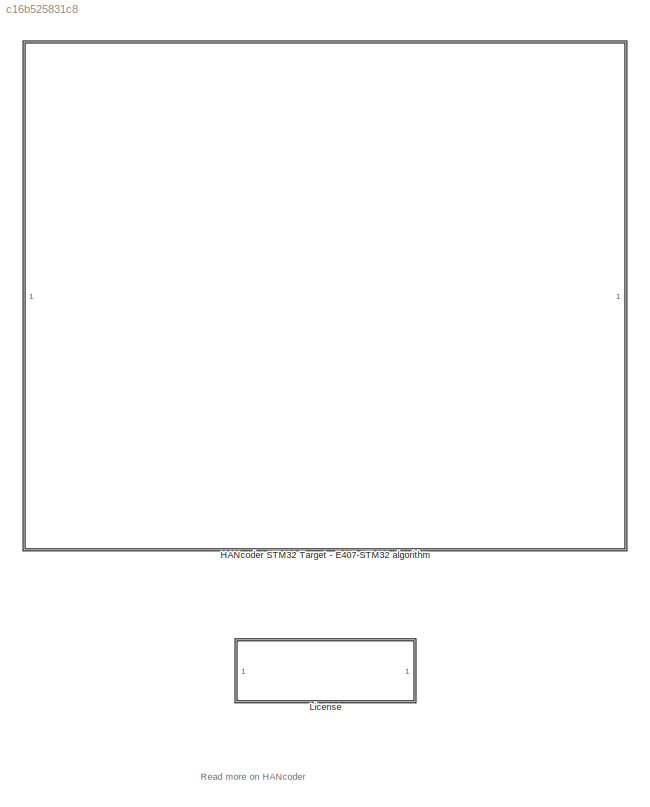
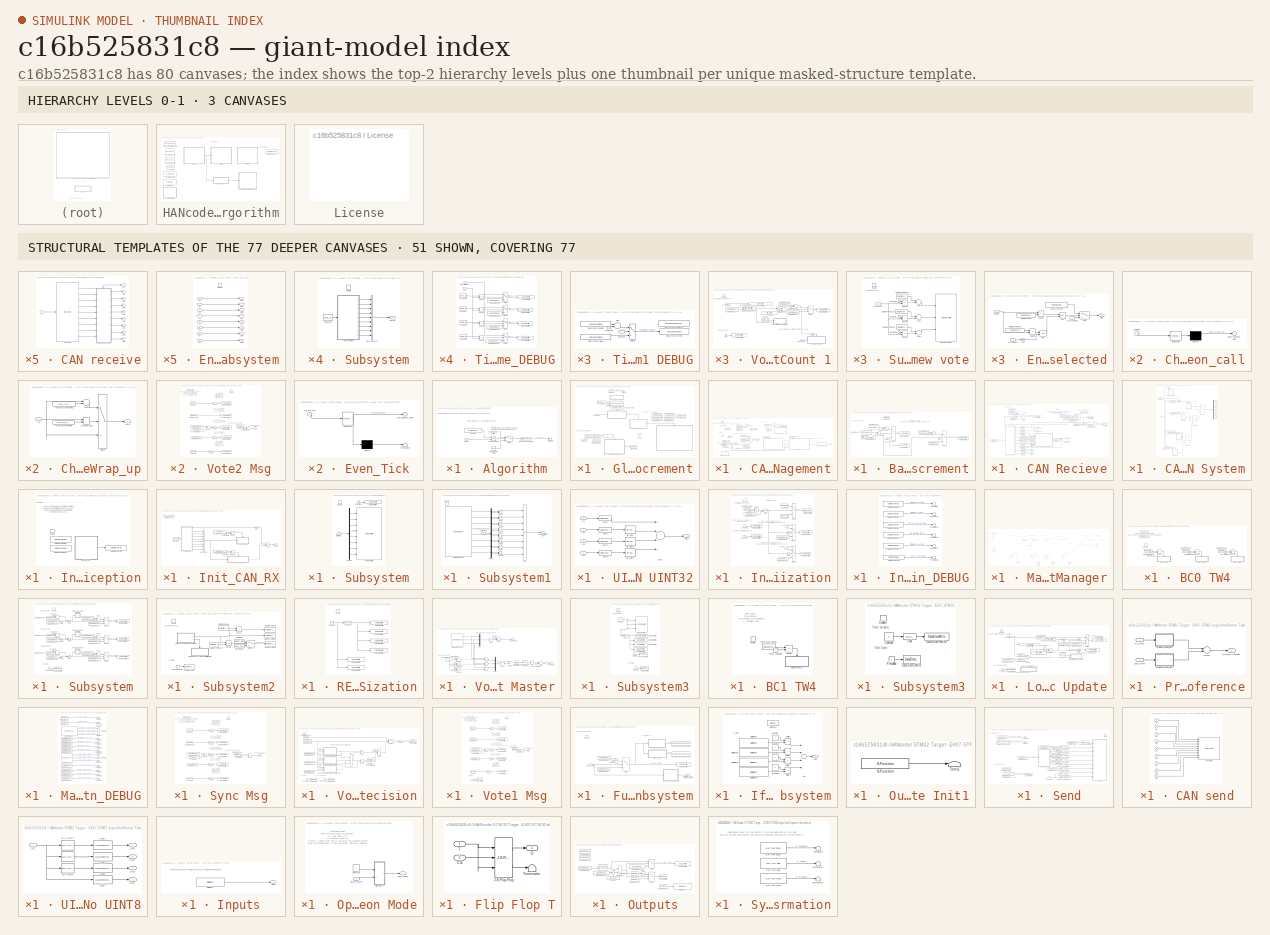
[diagram: thumbnail index - top-2 hierarchy levels (3 canvases) + 51 structural-template representatives of the remaining 77 canvases]
MODEL slx_c16b525831c8
KIND model
CONFIG AbsTol = auto
CONFIG EnableMultiTasking = off
CONFIG FixedStep = 0.01
CONFIG MaxStep = auto
CONFIG MinStep = auto
CONFIG PreLoadFcn = librarySetup\neval([bdroot,'_startup']) %Calling [modelName]_startup.m
CONFIG RelTol = 1e-3
CONFIG SampleTimeConstraint = Unconstrained
CONFIG Solver = FixedStepDiscrete
CONFIG SolverName = FixedStepDiscrete
CONFIG StartTime = 0.0
CONFIG StopTime = 1
BLOCK [SubSystem] HANcoder STM32 Target - E407-STM32 algorithm
  CopyFcn = HANcoderChecks('Copy');
  MoveFcn = HANcoderChecks('MoveE407');
  NameChangeFcn = HANcoderChecks('NameChangeE407');
  Ports = []
  RequestExecContextInheritance = off
BLOCK [SubSystem] HANcoder STM32 Target - E407-STM32 algorithm/Algorithm
  Ports = [1]
  RequestExecContextInheritance = off
BLOCK [Reference] HANcoder STM32 Target - E407-STM32 algorithm/Algorithm/10Hz Counter Limiter  REF=simulink/Sources/Counter
Limited
  Ports = [0, 1]
  SourceBlock = simulink/Sources/Counter\nLimited
  SourceProductBaseCode = SL
  SourceProductName = Simulink
  SourceType = Counter Limited
BLOCK [Reference] HANcoder STM32 Target - E407-STM32 algorithm/Algorithm/5Hz Counter Limited  REF=simulink/Sources/Counter
Limited
  Ports = [0, 1]
  SourceBlock = simulink/Sources/Counter\nLimited
  SourceProductBaseCode = SL
  SourceProductName = Simulink
  SourceType = Counter Limited
BLOCK [Inport] HANcoder STM32 Target - E407-STM32 algorithm/Algorithm/Button
  IconDisplay = Port number
BLOCK [Constant] HANcoder STM32 Target - E407-STM32 algorithm/Algorithm/Constant
  OutDataTypeStr = boolean
  Value = HANtuneOverride
BLOCK [DataTypeConversion] HANcoder STM32 Target - E407-STM32 algorithm/Algorithm/Data Type Conversion
  OutDataTypeStr = boolean
  RndMeth = Floor
  SaturateOnIntegerOverflow = off
BLOCK [Logic] HANcoder STM32 Target - E407-STM32 algorithm/Algorithm/Logical Operator
  AllPortsSameDT = off
  Operator = OR
  OutDataTypeStr = boolean
  Ports = [2, 1]
BLOCK [Switch] HANcoder STM32 Target - E407-STM32 algorithm/Algorithm/Switch
  Criteria = u2 > Threshold
  InputSameDT = off
  SaturateOnIntegerOverflow = off
BLOCK [Terminator] HANcoder STM32 Target - E407-STM32 algorithm/Algorithm/Terminator
BLOCK [Reference] HANcoder STM32 Target - E407-STM32 algorithm/Base Sample Time config  REF=HANcoder_STM32_Target/STM32-E407/System Config/Base Sample Time config
  Description = HANcoder Target STM32-E407 blockset version 0.5
  Ports = []
  SourceBlock = HANcoder_STM32_Target/STM32-E407/System Config/Base Sample Time config
  SourceProductName = HANcoder STM32 Target
  SourceType = Base Sample Time config
  Tag = HANcoder_TARGET_STM32_E407
  UserDataPersistent = on
BLOCK [Reference] HANcoder STM32 Target - E407-STM32 algorithm/Build settings  REF=HANcoder_STM32_Target/STM32-E407/System Config/Build settings
  Ports = []
  SourceBlock = HANcoder_STM32_Target/STM32-E407/System Config/Build settings
  SourceProductName = HANcoder STM32 Target
  SourceType = Build Settings
  Tag = HANcoder_TARGET_STM32_E407
  UserDataPersistent = on
BLOCK [Reference] HANcoder STM32 Target - E407-STM32 algorithm/CAN config  REF=HANcoder_STM32_Target/STM32-E407/System Config/CAN config
  Ports = []
  SourceBlock = HANcoder_STM32_Target/STM32-E407/System Config/CAN config
  SourceProductName = HANcoder STM32 Target
  SourceType = CAN config
  Tag = HANcoder_TARGET_STM32_E407
  UserDataPersistent = on
BLOCK [Reference] HANcoder STM32 Target - E407-STM32 algorithm/Custom ID config  REF=HANcoder_STM32_Target/STM32-E407/System Config/Custom ID config
  Ports = []
  SourceBlock = HANcoder_STM32_Target/STM32-E407/System Config/Custom ID config
  SourceProductName = HANcoder STM32 Target
  SourceType = Custom ID config
  Tag = HANcoder_TARGET_STM32_E407
  UserDataPersistent = on
BLOCK [DataStoreMemory] HANcoder STM32 Target - E407-STM32 algorithm/Data Store Memory2
  DataStoreName = local_ticks_mem_IRQ
  OutDataTypeStr = uint32
  ReadBeforeWriteMsg = warning
  ShowAdditionalParam = off
  WriteAfterReadMsg = warning
  WriteAfterWriteMsg = warning
BLOCK [SubSystem] HANcoder STM32 Target - E407-STM32 algorithm/Global Ticks Increment
  Ports = [1]
  RequestExecContextInheritance = off
BLOCK [SubSystem] HANcoder STM32 Target - E407-STM32 algorithm/Global Ticks Increment/CAN Management
  Ports = [0, 1, 0, 1]
  RequestExecContextInheritance = off
BLOCK [Logic] HANcoder STM32 Target - E407-STM32 algorithm/Global Ticks Increment/CAN Management/AND
  AllPortsSameDT = off
  IconShape = distinctive
  OutDataTypeStr = boolean
  Ports = [2, 1]
BLOCK [Logic] HANcoder STM32 Target - E407-STM32 algorithm/Global Ticks Increment/CAN Management/AND1
  AllPortsSameDT = off
  IconShape = distinctive
  OutDataTypeStr = boolean
  Ports = [2, 1]
BLOCK [SubSystem] HANcoder STM32 Target - E407-STM32 algorithm/Global Ticks Increment/CAN Management/Basic Cycle Increment
  Ports = [0, 0, 0, 0, 0, 0, 0, 1]
  RequestExecContextInheritance = off
  TreatAsAtomicUnit = on
BLOCK [ActionPort] HANcoder STM32 Target - E407-STM32 algorithm/Global Ticks Increment/CAN Management/Basic Cycle Increment/Action Port
  ActionType = then
BLOCK [Sum] HANcoder STM32 Target - E407-STM32 algorithm/Global Ticks Increment/CAN Management/Basic Cycle Increment/Add
  InputSameDT = off
  OutDataTypeStr = Inherit: Inherit via internal rule
  Ports = [2, 1]
  SaturateOnIntegerOverflow = off
BLOCK [Sum] HANcoder STM32 Target - E407-STM32 algorithm/Global Ticks Increment/CAN Management/Basic Cycle Increment/Add1
  InputSameDT = off
  Inputs = +-
  OutDataTypeStr = Inherit: Inherit via internal rule
  Ports = [2, 1]
  SaturateOnIntegerOverflow = off
BLOCK [Sum] HANcoder STM32 Target - E407-STM32 algorithm/Global Ticks Increment/CAN Management/Basic Cycle Increment/Add2
  InputSameDT = off
  OutDataTypeStr = Inherit: Inherit via internal rule
  Ports = [2, 1]
  SaturateOnIntegerOverflow = off
BLOCK [Constant] HANcoder STM32 Target - E407-STM32 algorithm/Global Ticks Increment/CAN Management/Basic Cycle Increment/Constant
  Value = matrix_rows
BLOCK [DataStoreRead] HANcoder STM32 Target - E407-STM32 algorithm/Global Ticks Increment/CAN Management/Basic Cycle Increment/Data Store Read
  DataStoreName = Initialization_Counter
  Ports = [0, 1]
BLOCK [DataStoreRead] HANcoder STM32 Target - E407-STM32 algorithm/Global Ticks Increment/CAN Management/Basic Cycle Increment/Data Store Read1
  DataStoreName = Initialization_Counter
  Ports = [0, 1]
BLOCK [DataStoreRead] HANcoder STM32 Target - E407-STM32 algorithm/Global Ticks Increment/CAN Management/Basic Cycle Increment/Data Store Read4
  DataStoreName = basic_cycle_count
  Ports = [0, 1]
BLOCK [DataStoreRead] HANcoder STM32 Target - E407-STM32 algorithm/Global Ticks Increment/CAN Management/Basic Cycle Increment/Data Store Read5
  DataStoreName = basic_cycle_count
  Ports = [0, 1]
BLOCK [DataStoreWrite] HANcoder STM32 Target - E407-STM32 algorithm/Global Ticks Increment/CAN Management/Basic Cycle Increment/Data Store Write
  DataStoreName = local_ticks_mem_IRQ
  Ports = [1]
BLOCK [DataStoreWrite] HANcoder STM32 Target - E407-STM32 algorithm/Global Ticks Increment/CAN Management/Basic Cycle Increment/Data Store Write1
  DataStoreName = Initialization_Counter
  Ports = [1]
BLOCK [DataStoreWrite] HANcoder STM32 Target - E407-STM32 algorithm/Global Ticks Increment/CAN Management/Basic Cycle Increment/Data Store Write3
  DataStoreName = basic_cycle_count
  Ports = [1]
BLOCK [Constant] HANcoder STM32 Target - E407-STM32 algorithm/Global Ticks Increment/CAN Management/Basic Cycle Increment/Decrement
  OutDataTypeStr = uint8
BLOCK [Constant] HANcoder STM32 Target - E407-STM32 algorithm/Global Ticks Increment/CAN Management/Basic Cycle Increment/Increment
  OutDataTypeStr = uint8
BLOCK [Constant] HANcoder STM32 Target - E407-STM32 algorithm/Global Ticks Increment/CAN Management/Basic Cycle Increment/Increment1
  OutDataTypeStr = uint8
BLOCK [RelationalOperator] HANcoder STM32 Target - E407-STM32 algorithm/Global Ticks Increment/CAN Management/Basic Cycle Increment/LessThanOrEqual
  InputSameDT = off
  Operator = <
  OutDataTypeStr = boolean
  Ports = [2, 1]
  RndMeth = Simplest
BLOCK [Logic] HANcoder STM32 Target - E407-STM32 algorithm/Global Ticks Increment/CAN Management/Basic Cycle Increment/NOT
  AllPortsSameDT = off
  IconShape = distinctive
  Operator = NOT
  OutDataTypeStr = boolean
  Ports = [1, 1]
BLOCK [Constant] HANcoder STM32 Target - E407-STM32 algorithm/Global Ticks Increment/CAN Management/Basic Cycle Increment/Reset
  OutDataTypeStr = uint32
  Value = 0
BLOCK [Switch] HANcoder STM32 Target - E407-STM32 algorithm/Global Ticks Increment/CAN Management/Basic Cycle Increment/Switch
  Criteria = u2 > Threshold
  InputSameDT = off
  SaturateOnIntegerOverflow = off
BLOCK [Switch] HANcoder STM32 Target - E407-STM32 algorithm/Global Ticks Increment/CAN Management/Basic Cycle Increment/Switch1
  Criteria = u2 > Threshold
  InputSameDT = off
  SaturateOnIntegerOverflow = off
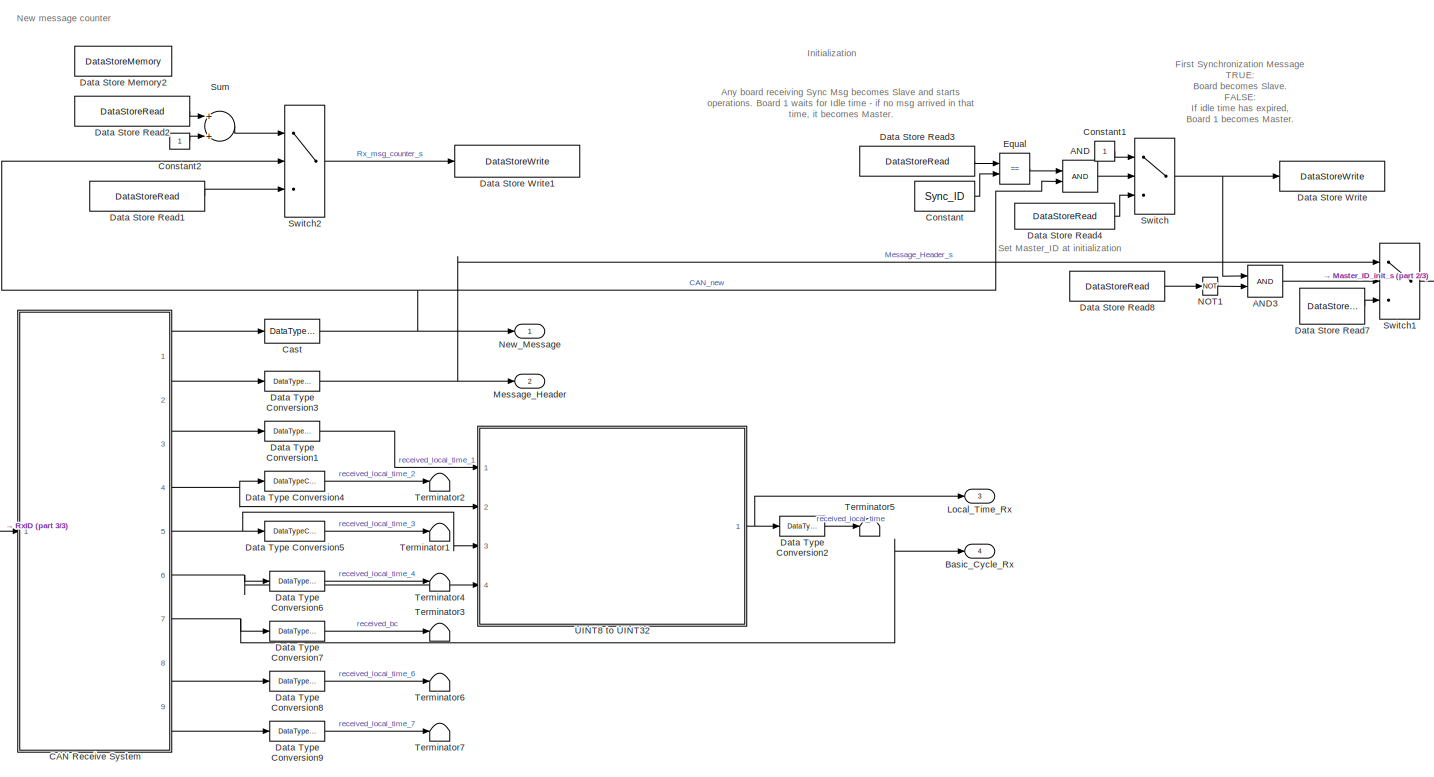
[diagram: HANcoder STM32 Target - E407-STM32 algorithm/Global Ticks Increment/CAN Management/CAN Recieve - part 1/3, most of the canvas]
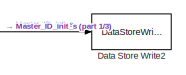
[diagram: HANcoder STM32 Target - E407-STM32 algorithm/Global Ticks Increment/CAN Management/CAN Recieve - part 2/3, middle right region]
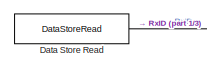
[diagram: HANcoder STM32 Target - E407-STM32 algorithm/Global Ticks Increment/CAN Management/CAN Recieve - part 3/3, bottom left region]
BLOCK [SubSystem] HANcoder STM32 Target - E407-STM32 algorithm/Global Ticks Increment/CAN Management/CAN Recieve
  Ports = [0, 4]
  RequestExecContextInheritance = off
BLOCK [Logic] HANcoder STM32 Target - E407-STM32 algorithm/Global Ticks Increment/CAN Management/CAN Recieve/AND
  AllPortsSameDT = off
  IconShape = distinctive
  OutDataTypeStr = boolean
  Ports = [2, 1]
BLOCK [Logic] HANcoder STM32 Target - E407-STM32 algorithm/Global Ticks Increment/CAN Management/CAN Recieve/AND3
  AllPortsSameDT = off
  IconShape = distinctive
  OutDataTypeStr = boolean
  Ports = [2, 1]
BLOCK [Outport] HANcoder STM32 Target - E407-STM32 algorithm/Global Ticks Increment/CAN Management/CAN Recieve/Basic_Cycle_Rx
  IconDisplay = Port number
  Port = 4
BLOCK [SubSystem] HANcoder STM32 Target - E407-STM32 algorithm/Global Ticks Increment/CAN Management/CAN Recieve/CAN Receive System
  Ports = [1, 9]
  RequestExecContextInheritance = off
BLOCK [Logic] HANcoder STM32 Target - E407-STM32 algorithm/Global Ticks Increment/CAN Management/CAN Recieve/CAN Receive System/AND
  AllPortsSameDT = off
  IconShape = distinctive
  OutDataTypeStr = boolean
  Ports = [2, 1]
BLOCK [Logic] HANcoder STM32 Target - E407-STM32 algorithm/Global Ticks Increment/CAN Management/CAN Recieve/CAN Receive System/AND1
  AllPortsSameDT = off
  IconShape = distinctive
  OutDataTypeStr = boolean
  Ports = [2, 1]
BLOCK [Logic] HANcoder STM32 Target - E407-STM32 algorithm/Global Ticks Increment/CAN Management/CAN Recieve/CAN Receive System/AND2
  AllPortsSameDT = off
  IconShape = distinctive
  OutDataTypeStr = boolean
  Ports = [2, 1]
BLOCK [Logic] HANcoder STM32 Target - E407-STM32 algorithm/Global Ticks Increment/CAN Management/CAN Recieve/CAN Receive System/AND3
  AllPortsSameDT = off
  IconShape = distinctive
  OutDataTypeStr = boolean
  Ports = [2, 1]
BLOCK [Constant] HANcoder STM32 Target - E407-STM32 algorithm/Global Ticks Increment/CAN Management/CAN Recieve/CAN Receive System/Constant
  OutDataTypeStr = uint32
  Value = Sync_ID
BLOCK [Constant] HANcoder STM32 Target - E407-STM32 algorithm/Global Ticks Increment/CAN Management/CAN Recieve/CAN Receive System/Constant1
  OutDataTypeStr = uint32
  Value = Vote1_ID
BLOCK [Constant] HANcoder STM32 Target - E407-STM32 algorithm/Global Ticks Increment/CAN Management/CAN Recieve/CAN Receive System/Constant3
  OutDataTypeStr = uint32
  Value = Vote2_ID
BLOCK [Constant] HANcoder STM32 Target - E407-STM32 algorithm/Global Ticks Increment/CAN Management/CAN Recieve/CAN Receive System/Constant4
  OutDataTypeStr = uint32
  Value = Vote3_ID
BLOCK [DataStoreRead] HANcoder STM32 Target - E407-STM32 algorithm/Global Ticks Increment/CAN Management/CAN Recieve/CAN Receive System/Data Store Read
  DataStoreName = Initialization_CAN_flag
  Ports = [0, 1]
BLOCK [Demux] HANcoder STM32 Target - E407-STM32 algorithm/Global Ticks Increment/CAN Management/CAN Recieve/CAN Receive System/Demux
  DisplayOption = bar
  Outputs = 9
  Ports = [1, 9]
BLOCK [RelationalOperator] HANcoder STM32 Target - E407-STM32 algorithm/Global Ticks Increment/CAN Management/CAN Recieve/CAN Receive System/Equal
  InputSameDT = off
  Operator = ==
  OutDataTypeStr = boolean
  Ports = [2, 1]
  RndMeth = Simplest
BLOCK [RelationalOperator] HANcoder STM32 Target - E407-STM32 algorithm/Global Ticks Increment/CAN Management/CAN Recieve/CAN Receive System/Equal1
  InputSameDT = off
  Operator = ==
  OutDataTypeStr = boolean
  Ports = [2, 1]
  RndMeth = Simplest
BLOCK [RelationalOperator] HANcoder STM32 Target - E407-STM32 algorithm/Global Ticks Increment/CAN Management/CAN Recieve/CAN Receive System/Equal2
  InputSameDT = off
  Operator = ==
  OutDataTypeStr = boolean
  Ports = [2, 1]
  RndMeth = Simplest
BLOCK [RelationalOperator] HANcoder STM32 Target - E407-STM32 algorithm/Global Ticks Increment/CAN Management/CAN Recieve/CAN Receive System/Equal3
  InputSameDT = off
  Operator = ==
  OutDataTypeStr = boolean
  Ports = [2, 1]
  RndMeth = Simplest
BLOCK [Inport] HANcoder STM32 Target - E407-STM32 algorithm/Global Ticks Increment/CAN Management/CAN Recieve/CAN Receive System/In1
  IconDisplay = Port number
BLOCK [SubSystem] HANcoder STM32 Target - E407-STM32 algorithm/Global Ticks Increment/CAN Management/CAN Recieve/CAN Receive System/Initialize message reception
  Ports = [0, 0, 1]
  RequestExecContextInheritance = off
BLOCK [DataStoreMemory] HANcoder STM32 Target - E407-STM32 algorithm/Global Ticks Increment/CAN Management/CAN Recieve/CAN Receive System/Initialize message reception/Data Store Memory
  DataStoreName = Init_CAN_RX_State
  InitialValue = 1
  ReadBeforeWriteMsg = warning
  ShowAdditionalParam = off
  WriteAfterReadMsg = warning
  WriteAfterWriteMsg = warning
BLOCK [DataStoreMemory] HANcoder STM32 Target - E407-STM32 algorithm/Global Ticks Increment/CAN Management/CAN Recieve/CAN Receive System/Initialize message reception/Data Store Memory1
  DataStoreName = Local_Msg_Buffer
  OutDataTypeStr = Bus: msg_buffer_type
  ReadBeforeWriteMsg = warning
  ShowAdditionalParam = off
  WriteAfterReadMsg = warning
  WriteAfterWriteMsg = warning
BLOCK [DataStoreWrite] HANcoder STM32 Target - E407-STM32 algorithm/Global Ticks Increment/CAN Management/CAN Recieve/CAN Receive System/Initialize message reception/Data Store Write
  DataStoreName = Initialization_CAN_flag
  Ports = [1]
BLOCK [EnablePort] HANcoder STM32 Target - E407-STM32 algorithm/Global Ticks Increment/CAN Management/CAN Recieve/CAN Receive System/Initialize message reception/Enable
  Ports = []
BLOCK [SubSystem] HANcoder STM32 Target - E407-STM32 algorithm/Global Ticks Increment/CAN Management/CAN Recieve/CAN Receive System/Initialize message reception/Init_CAN_RX
  Ports = [0, 1]
  RequestExecContextInheritance = off
BLOCK [BusCreator] HANcoder STM32 Target - E407-STM32 algorithm/Global Ticks Increment/CAN Management/CAN Recieve/CAN Receive System/Initialize message reception/Init_CAN_RX/Bus Creator
  DisplayOption = bar
  InheritFromInputs = on
  Inputs = 8
  OutDataTypeStr = Bus: msg_buffer_type
  Ports = [8, 1]
BLOCK [SubSystem] HANcoder STM32 Target - E407-STM32 algorithm/Global Ticks Increment/CAN Management/CAN Recieve/CAN Receive System/Initialize message reception/Init_CAN_RX/CAN receive
  AncestorBlock = HANcoder_STM32_Target/STM32-E407/CAN/CAN/CAN receive
  MoveFcn = drawLogos
  Ports = [1, 9]
  RequestExecContextInheritance = off
  Tag = HANcoder_TARGET_STM32_E407
  UserDataPersistent = on
BLOCK [SubSystem] HANcoder STM32 Target - E407-STM32 algorithm/Global Ticks Increment/CAN Management/CAN Recieve/CAN Receive System/Initialize message reception/Init_CAN_RX/CAN receive/Enabled Subsystem
  Ports = [8, 8, 1]
  RequestExecContextInheritance = off
  TreatAsAtomicUnit = on
BLOCK [EnablePort] HANcoder STM32 Target - E407-STM32 algorithm/Global Ticks Increment/CAN Management/CAN Recieve/CAN Receive System/Initialize message reception/Init_CAN_RX/CAN receive/Enabled Subsystem/Enable
  Ports = []
BLOCK [Inport] HANcoder STM32 Target - E407-STM32 algorithm/Global Ticks Increment/CAN Management/CAN Recieve/CAN Receive System/Initialize message reception/Init_CAN_RX/CAN receive/Enabled Subsystem/In1
  IconDisplay = Port number
BLOCK [Inport] HANcoder STM32 Target - E407-STM32 algorithm/Global Ticks Increment/CAN Management/CAN Recieve/CAN Receive System/Initialize message reception/Init_CAN_RX/CAN receive/Enabled Subsystem/In2
  IconDisplay = Port number
  Port = 2
BLOCK [Inport] HANcoder STM32 Target - E407-STM32 algorithm/Global Ticks Increment/CAN Management/CAN Recieve/CAN Receive System/Initialize message reception/Init_CAN_RX/CAN receive/Enabled Subsystem/In3
  IconDisplay = Port number
  Port = 3
BLOCK [Inport] HANcoder STM32 Target - E407-STM32 algorithm/Global Ticks Increment/CAN Management/CAN Recieve/CAN Receive System/Initialize message reception/Init_CAN_RX/CAN receive/Enabled Subsystem/In4
  IconDisplay = Port number
  Port = 4
BLOCK [Inport] HANcoder STM32 Target - E407-STM32 algorithm/Global Ticks Increment/CAN Management/CAN Recieve/CAN Receive System/Initialize message reception/Init_CAN_RX/CAN receive/Enabled Subsystem/In5
  IconDisplay = Port number
  Port = 5
BLOCK [Inport] HANcoder STM32 Target - E407-STM32 algorithm/Global Ticks Increment/CAN Management/CAN Recieve/CAN Receive System/Initialize message reception/Init_CAN_RX/CAN receive/Enabled Subsystem/In6
  IconDisplay = Port number
  Port = 6
BLOCK [Inport] HANcoder STM32 Target - E407-STM32 algorithm/Global Ticks Increment/CAN Management/CAN Recieve/CAN Receive System/Initialize message reception/Init_CAN_RX/CAN receive/Enabled Subsystem/In7
  IconDisplay = Port number
  Port = 7
BLOCK [Inport] HANcoder STM32 Target - E407-STM32 algorithm/Global Ticks Increment/CAN Management/CAN Recieve/CAN Receive System/Initialize message reception/Init_CAN_RX/CAN receive/Enabled Subsystem/In8
  IconDisplay = Port number
  Port = 8
BLOCK [Outport] HANcoder STM32 Target - E407-STM32 algorithm/Global Ticks Increment/CAN Management/CAN Recieve/CAN Receive System/Initialize message reception/Init_CAN_RX/CAN receive/Enabled Subsystem/Out1
  IconDisplay = Port number
BLOCK [Outport] HANcoder STM32 Target - E407-STM32 algorithm/Global Ticks Increment/CAN Management/CAN Recieve/CAN Receive System/Initialize message reception/Init_CAN_RX/CAN receive/Enabled Subsystem/Out2
  IconDisplay = Port number
  Port = 2
BLOCK [Outport] HANcoder STM32 Target - E407-STM32 algorithm/Global Ticks Increment/CAN Management/CAN Recieve/CAN Receive System/Initialize message reception/Init_CAN_RX/CAN receive/Enabled Subsystem/Out3
  IconDisplay = Port number
  Port = 3
BLOCK [Outport] HANcoder STM32 Target - E407-STM32 algorithm/Global Ticks Increment/CAN Management/CAN Recieve/CAN Receive System/Initialize message reception/Init_CAN_RX/CAN receive/Enabled Subsystem/Out4
  IconDisplay = Port number
  Port = 4
BLOCK [Outport] HANcoder STM32 Target - E407-STM32 algorithm/Global Ticks Increment/CAN Management/CAN Recieve/CAN Receive System/Initialize message reception/Init_CAN_RX/CAN receive/Enabled Subsystem/Out5
  IconDisplay = Port number
  Port = 5
BLOCK [Outport] HANcoder STM32 Target - E407-STM32 algorithm/Global Ticks Increment/CAN Management/CAN Recieve/CAN Receive System/Initialize message reception/Init_CAN_RX/CAN receive/Enabled Subsystem/Out6
  IconDisplay = Port number
  Port = 6
BLOCK [Outport] HANcoder STM32 Target - E407-STM32 algorithm/Global Ticks Increment/CAN Management/CAN Recieve/CAN Receive System/Initialize message reception/Init_CAN_RX/CAN receive/Enabled Subsystem/Out7
  IconDisplay = Port number
  Port = 7
BLOCK [Outport] HANcoder STM32 Target - E407-STM32 algorithm/Global Ticks Increment/CAN Management/CAN Recieve/CAN Receive System/Initialize message reception/Init_CAN_RX/CAN receive/Enabled Subsystem/Out8
  IconDisplay = Port number
  Port = 8
BLOCK [Inport] HANcoder STM32 Target - E407-STM32 algorithm/Global Ticks Increment/CAN Management/CAN Recieve/CAN Receive System/Initialize message reception/Init_CAN_RX/CAN receive/In1
  IconDisplay = Port number
BLOCK [Outport] HANcoder STM32 Target - E407-STM32 algorithm/Global Ticks Increment/CAN Management/CAN Recieve/CAN Receive System/Initialize message reception/Init_CAN_RX/CAN receive/Out1
  IconDisplay = Port number
BLOCK [Outport] HANcoder STM32 Target - E407-STM32 algorithm/Global Ticks Increment/CAN Management/CAN Recieve/CAN Receive System/Initialize message reception/Init_CAN_RX/CAN receive/Out2
  IconDisplay = Port number
  Port = 2
BLOCK [Outport] HANcoder STM32 Target - E407-STM32 algorithm/Global Ticks Increment/CAN Management/CAN Recieve/CAN Receive System/Initialize message reception/Init_CAN_RX/CAN receive/Out3
  IconDisplay = Port number
  Port = 3
BLOCK [Outport] HANcoder STM32 Target - E407-STM32 algorithm/Global Ticks Increment/CAN Management/CAN Recieve/CAN Receive System/Initialize message reception/Init_CAN_RX/CAN receive/Out4
  IconDisplay = Port number
  Port = 4
BLOCK [Outport] HANcoder STM32 Target - E407-STM32 algorithm/Global Ticks Increment/CAN Management/CAN Recieve/CAN Receive System/Initialize message reception/Init_CAN_RX/CAN receive/Out5
  IconDisplay = Port number
  Port = 5
BLOCK [Outport] HANcoder STM32 Target - E407-STM32 algorithm/Global Ticks Increment/CAN Management/CAN Recieve/CAN Receive System/Initialize message reception/Init_CAN_RX/CAN receive/Out6
  IconDisplay = Port number
  Port = 6
BLOCK [Outport] HANcoder STM32 Target - E407-STM32 algorithm/Global Ticks Increment/CAN Management/CAN Recieve/CAN Receive System/Initialize message reception/Init_CAN_RX/CAN receive/Out7
  IconDisplay = Port number
  Port = 7
BLOCK [Outport] HANcoder STM32 Target - E407-STM32 algorithm/Global Ticks Increment/CAN Management/CAN Recieve/CAN Receive System/Initialize message reception/Init_CAN_RX/CAN receive/Out8
  IconDisplay = Port number
  Port = 8
BLOCK [Outport] HANcoder STM32 Target - E407-STM32 algorithm/Global Ticks Increment/CAN Management/CAN Recieve/CAN Receive System/Initialize message reception/Init_CAN_RX/CAN receive/Out9
  IconDisplay = Port number
  Port = 9
BLOCK [M-S-Function] HANcoder STM32 Target - E407-STM32 algorithm/Global Ticks Increment/CAN Management/CAN Recieve/CAN Receive System/Initialize message reception/Init_CAN_RX/CAN receive/S-Function
  FunctionName = sfcn_can_receive
  Parameters = tsamp, canBus, outputNumber, dataType, byteOrder
  Ports = [1, 9]
BLOCK [Constant] HANcoder STM32 Target - E407-STM32 algorithm/Global Ticks Increment/CAN Management/CAN Recieve/CAN Receive System/Initialize message reception/Init_CAN_RX/Constant
  OutDataTypeStr = uint32
  Value = Sync_ID
BLOCK [Constant] HANcoder STM32 Target - E407-STM32 algorithm/Global Ticks Increment/CAN Management/CAN Recieve/CAN Receive System/Initialize message reception/Init_CAN_RX/Constant1
BLOCK [Constant] HANcoder STM32 Target - E407-STM32 algorithm/Global Ticks Increment/CAN Management/CAN Recieve/CAN Receive System/Initialize message reception/Init_CAN_RX/Constant2
  Value = 2
BLOCK [DataStoreRead] HANcoder STM32 Target - E407-STM32 algorithm/Global Ticks Increment/CAN Management/CAN Recieve/CAN Receive System/Initialize message reception/Init_CAN_RX/Data Store Read1
  DataStoreName = Init_CAN_RX_State
  Ports = [0, 1]
BLOCK [DataStoreRead] HANcoder STM32 Target - E407-STM32 algorithm/Global Ticks Increment/CAN Management/CAN Recieve/CAN Receive System/Initialize message reception/Init_CAN_RX/Data Store Read2
  DataStoreName = Init_CAN_RX_State
  Ports = [0, 1]
BLOCK [RelationalOperator] HANcoder STM32 Target - E407-STM32 algorithm/Global Ticks Increment/CAN Management/CAN Recieve/CAN Receive System/Initialize message reception/Init_CAN_RX/Equal
  InputSameDT = off
  Operator = ==
  OutDataTypeStr = boolean
  Ports = [2, 1]
  RndMeth = Simplest
BLOCK [RelationalOperator] HANcoder STM32 Target - E407-STM32 algorithm/Global Ticks Increment/CAN Management/CAN Recieve/CAN Receive System/Initialize message reception/Init_CAN_RX/Equal1
  InputSameDT = off
  Operator = ==
  OutDataTypeStr = boolean
  Ports = [2, 1]
  RndMeth = Simplest
BLOCK [Outport] HANcoder STM32 Target - E407-STM32 algorithm/Global Ticks Increment/CAN Management/CAN Recieve/CAN Receive System/Initialize message reception/Init_CAN_RX/Init CAN
  IconDisplay = Port number
BLOCK [Logic] HANcoder STM32 Target - E407-STM32 algorithm/Global Ticks Increment/CAN Management/CAN Recieve/CAN Receive System/Initialize message reception/Init_CAN_RX/NOT
  AllPortsSameDT = off
  IconShape = distinctive
  Operator = NOT
  OutDataTypeStr = boolean
  Ports = [1, 1]
BLOCK [Logic] HANcoder STM32 Target - E407-STM32 algorithm/Global Ticks Increment/CAN Management/CAN Recieve/CAN Receive System/Initialize message reception/Init_CAN_RX/OR
  AllPortsSameDT = off
  IconShape = distinctive
  Operator = OR
  OutDataTypeStr = boolean
  Ports = [2, 1]
BLOCK [SubSystem] HANcoder STM32 Target - E407-STM32 algorithm/Global Ticks Increment/CAN Management/CAN Recieve/CAN Receive System/Initialize message reception/Init_CAN_RX/Subsystem
  Ports = [1, 0, 1]
  RequestExecContextInheritance = off
BLOCK [Constant] HANcoder STM32 Target - E407-STM32 algorithm/Global Ticks Increment/CAN Management/CAN Recieve/CAN Receive System/Initialize message reception/Init_CAN_RX/Subsystem/Constant
  Value = 2
BLOCK [DataStoreWrite] HANcoder STM32 Target - E407-STM32 algorithm/Global Ticks Increment/CAN Management/CAN Recieve/CAN Receive System/Initialize message reception/Init_CAN_RX/Subsystem/Data Store Write
  DataStoreElements = Local_Msg_Buffer.Buffer_1#Local_Msg_Buffer.Buffer_2#Local_Msg_Buffer.Buffer_3#Local_Msg_Buffer.Buffer_4#Local_Msg_Buffer.Buffer_5#Local_Msg_Buffer.Buffer_6#Local_Msg_Buffer.Buffer_7#Local_Msg_Buffer.Buffer_8
  DataStoreName = Local_Msg_Buffer
  Ports = [8]
BLOCK [DataStoreWrite] HANcoder STM32 Target - E407-STM32 algorithm/Global Ticks Increment/CAN Management/CAN Recieve/CAN Receive System/Initialize message reception/Init_CAN_RX/Subsystem/Data Store Write1
  DataStoreName = Init_CAN_RX_State
  Ports = [1]
BLOCK [Demux] HANcoder STM32 Target - E407-STM32 algorithm/Global Ticks Increment/CAN Management/CAN Recieve/CAN Receive System/Initialize message reception/Init_CAN_RX/Subsystem/Demux
  DisplayOption = bar
  Outputs = 8
  Ports = [1, 8]
BLOCK [EnablePort] HANcoder STM32 Target - E407-STM32 algorithm/Global Ticks Increment/CAN Management/CAN Recieve/CAN Receive System/Initialize message reception/Init_CAN_RX/Subsystem/Enable
  Ports = []
BLOCK [Inport] HANcoder STM32 Target - E407-STM32 algorithm/Global Ticks Increment/CAN Management/CAN Recieve/CAN Receive System/Initialize message reception/Init_CAN_RX/Subsystem/Initial Msg
  IconDisplay = Port number
BLOCK [SubSystem] HANcoder STM32 Target - E407-STM32 algorithm/Global Ticks Increment/CAN Management/CAN Recieve/CAN Receive System/Initialize message reception/Init_CAN_RX/Subsystem1
  Ports = [1, 1, 1]
  RequestExecContextInheritance = off
BLOCK [Inport] HANcoder STM32 Target - E407-STM32 algorithm/Global Ticks Increment/CAN Management/CAN Recieve/CAN Receive System/Initialize message reception/Init_CAN_RX/Subsystem1/Current Msg
  IconDisplay = Port number
BLOCK [DataStoreRead] HANcoder STM32 Target - E407-STM32 algorithm/Global Ticks Increment/CAN Management/CAN Recieve/CAN Receive System/Initialize message reception/Init_CAN_RX/Subsystem1/Data Store Read2
  DataStoreElements = Local_Msg_Buffer.Buffer_1#Local_Msg_Buffer.Buffer_2#Local_Msg_Buffer.Buffer_3#Local_Msg_Buffer.Buffer_4#Local_Msg_Buffer.Buffer_5#Local_Msg_Buffer.Buffer_6#Local_Msg_Buffer.Buffer_7#Local_Msg_Buffer.Buffer_8
  DataStoreName = Local_Msg_Buffer
  Ports = [0, 8]
BLOCK [Demux] HANcoder STM32 Target - E407-STM32 algorithm/Global Ticks Increment/CAN Management/CAN Recieve/CAN Receive System/Initialize message reception/Init_CAN_RX/Subsystem1/Demux
  DisplayOption = bar
  Outputs = 8
  Ports = [1, 8]
BLOCK [EnablePort] HANcoder STM32 Target - E407-STM32 algorithm/Global Ticks Increment/CAN Management/CAN Recieve/CAN Receive System/Initialize message reception/Init_CAN_RX/Subsystem1/Enable
  Ports = []
BLOCK [RelationalOperator] HANcoder STM32 Target - E407-STM32 algorithm/Global Ticks Increment/CAN Management/CAN Recieve/CAN Receive System/Initialize message reception/Init_CAN_RX/Subsystem1/Equal1
  InputSameDT = off
  Operator = ~=
  OutDataTypeStr = boolean
  Ports = [2, 1]
  RndMeth = Simplest
BLOCK [RelationalOperator] HANcoder STM32 Target - E407-STM32 algorithm/Global Ticks Increment/CAN Management/CAN Recieve/CAN Receive System/Initialize message reception/Init_CAN_RX/Subsystem1/Equal2
  InputSameDT = off
  Operator = ~=
  OutDataTypeStr = boolean
  Ports = [2, 1]
  RndMeth = Simplest
BLOCK [RelationalOperator] HANcoder STM32 Target - E407-STM32 algorithm/Global Ticks Increment/CAN Management/CAN Recieve/CAN Receive System/Initialize message reception/Init_CAN_RX/Subsystem1/Equal3
  InputSameDT = off
  Operator = ~=
  OutDataTypeStr = boolean
  Ports = [2, 1]
  RndMeth = Simplest
BLOCK [RelationalOperator] HANcoder STM32 Target - E407-STM32 algorithm/Global Ticks Increment/CAN Management/CAN Recieve/CAN Receive System/Initialize message reception/Init_CAN_RX/Subsystem1/Equal4
  InputSameDT = off
  Operator = ~=
  OutDataTypeStr = boolean
  Ports = [2, 1]
  RndMeth = Simplest
BLOCK [RelationalOperator] HANcoder STM32 Target - E407-STM32 algorithm/Global Ticks Increment/CAN Management/CAN Recieve/CAN Receive System/Initialize message reception/Init_CAN_RX/Subsystem1/Equal5
  InputSameDT = off
  Operator = ~=
  OutDataTypeStr = boolean
  Ports = [2, 1]
  RndMeth = Simplest
BLOCK [RelationalOperator] HANcoder STM32 Target - E407-STM32 algorithm/Global Ticks Increment/CAN Management/CAN Recieve/CAN Receive System/Initialize message reception/Init_CAN_RX/Subsystem1/Equal6
  InputSameDT = off
  Operator = ~=
  OutDataTypeStr = boolean
  Ports = [2, 1]
  RndMeth = Simplest
BLOCK [RelationalOperator] HANcoder STM32 Target - E407-STM32 algorithm/Global Ticks Increment/CAN Management/CAN Recieve/CAN Receive System/Initialize message reception/Init_CAN_RX/Subsystem1/Equal7
  InputSameDT = off
  Operator = ~=
  OutDataTypeStr = boolean
  Ports = [2, 1]
  RndMeth = Simplest
BLOCK [RelationalOperator] HANcoder STM32 Target - E407-STM32 algorithm/Global Ticks Increment/CAN Management/CAN Recieve/CAN Receive System/Initialize message reception/Init_CAN_RX/Subsystem1/Equal8
  InputSameDT = off
  Operator = ~=
  OutDataTypeStr = boolean
  Ports = [2, 1]
  RndMeth = Simplest
BLOCK [Outport] HANcoder STM32 Target - E407-STM32 algorithm/Global Ticks Increment/CAN Management/CAN Recieve/CAN Receive System/Initialize message reception/Init_CAN_RX/Subsystem1/New and Different Msg
  IconDisplay = Port number
BLOCK [Logic] HANcoder STM32 Target - E407-STM32 algorithm/Global Ticks Increment/CAN Management/CAN Recieve/CAN Receive System/Initialize message reception/Init_CAN_RX/Subsystem1/OR
  AllPortsSameDT = off
  IconShape = distinctive
  Inputs = 8
  Operator = OR
  OutDataTypeStr = boolean
  Ports = [8, 1]
BLOCK [Logic] HANcoder STM32 Target - E407-STM32 algorithm/Global Ticks Increment/CAN Management/CAN Recieve/CAN Receive System/NOT
  AllPortsSameDT = off
  IconShape = distinctive
  Operator = NOT
  OutDataTypeStr = boolean
  Ports = [1, 1]
BLOCK [Outport] HANcoder STM32 Target - E407-STM32 algorithm/Global Ticks Increment/CAN Management/CAN Recieve/CAN Receive System/Out1
  IconDisplay = Port number
BLOCK [Outport] HANcoder STM32 Target - E407-STM32 algorithm/Global Ticks Increment/CAN Management/CAN Recieve/CAN Receive System/Out2
  IconDisplay = Port number
  Port = 2
BLOCK [Outport] HANcoder STM32 Target - E407-STM32 algorithm/Global Ticks Increment/CAN Management/CAN Recieve/CAN Receive System/Out3
  IconDisplay = Port number
  Port = 3
BLOCK [Outport] HANcoder STM32 Target - E407-STM32 algorithm/Global Ticks Increment/CAN Management/CAN Recieve/CAN Receive System/Out4
  IconDisplay = Port number
  Port = 4
BLOCK [Outport] HANcoder STM32 Target - E407-STM32 algorithm/Global Ticks Increment/CAN Management/CAN Recieve/CAN Receive System/Out5
  IconDisplay = Port number
  Port = 5
BLOCK [Outport] HANcoder STM32 Target - E407-STM32 algorithm/Global Ticks Increment/CAN Management/CAN Recieve/CAN Receive System/Out6
  IconDisplay = Port number
  Port = 6
BLOCK [Outport] HANcoder STM32 Target - E407-STM32 algorithm/Global Ticks Increment/CAN Management/CAN Recieve/CAN Receive System/Out7
  IconDisplay = Port number
  Port = 7
BLOCK [Outport] HANcoder STM32 Target - E407-STM32 algorithm/Global Ticks Increment/CAN Management/CAN Recieve/CAN Receive System/Out8
  IconDisplay = Port number
  Port = 8
BLOCK [Outport] HANcoder STM32 Target - E407-STM32 algorithm/Global Ticks Increment/CAN Management/CAN Recieve/CAN Receive System/Out9
  IconDisplay = Port number
  Port = 9
BLOCK [SubSystem] HANcoder STM32 Target - E407-STM32 algorithm/Global Ticks Increment/CAN Management/CAN Recieve/CAN Receive System/Subsystem
  Ports = [0, 1, 1]
  RequestExecContextInheritance = off
BLOCK [BusCreator] HANcoder STM32 Target - E407-STM32 algorithm/Global Ticks Increment/CAN Management/CAN Recieve/CAN Receive System/Subsystem/Bus Creator
  DisplayOption = bar
  InheritFromInputs = on
  Inputs = 9
  Ports = [9, 1]
BLOCK [SubSystem] HANcoder STM32 Target - E407-STM32 algorithm/Global Ticks Increment/CAN Management/CAN Recieve/CAN Receive System/Subsystem/CAN receive
  AncestorBlock = HANcoder_STM32_Target/STM32-E407/CAN/CAN/CAN receive
  MoveFcn = drawLogos
  Ports = [1, 9]
  RequestExecContextInheritance = off
  Tag = HANcoder_TARGET_STM32_E407
  UserDataPersistent = on
BLOCK [SubSystem] HANcoder STM32 Target - E407-STM32 algorithm/Global Ticks Increment/CAN Management/CAN Recieve/CAN Receive System/Subsystem/CAN receive/Enabled Subsystem
  Ports = [8, 8, 1]
  RequestExecContextInheritance = off
  TreatAsAtomicUnit = on
BLOCK [EnablePort] HANcoder STM32 Target - E407-STM32 algorithm/Global Ticks Increment/CAN Management/CAN Recieve/CAN Receive System/Subsystem/CAN receive/Enabled Subsystem/Enable
  Ports = []
BLOCK [Inport] HANcoder STM32 Target - E407-STM32 algorithm/Global Ticks Increment/CAN Management/CAN Recieve/CAN Receive System/Subsystem/CAN receive/Enabled Subsystem/In1
  IconDisplay = Port number
BLOCK [Inport] HANcoder STM32 Target - E407-STM32 algorithm/Global Ticks Increment/CAN Management/CAN Recieve/CAN Receive System/Subsystem/CAN receive/Enabled Subsystem/In2
  IconDisplay = Port number
  Port = 2
BLOCK [Inport] HANcoder STM32 Target - E407-STM32 algorithm/Global Ticks Increment/CAN Management/CAN Recieve/CAN Receive System/Subsystem/CAN receive/Enabled Subsystem/In3
  IconDisplay = Port number
  Port = 3
BLOCK [Inport] HANcoder STM32 Target - E407-STM32 algorithm/Global Ticks Increment/CAN Management/CAN Recieve/CAN Receive System/Subsystem/CAN receive/Enabled Subsystem/In4
  IconDisplay = Port number
  Port = 4
BLOCK [Inport] HANcoder STM32 Target - E407-STM32 algorithm/Global Ticks Increment/CAN Management/CAN Recieve/CAN Receive System/Subsystem/CAN receive/Enabled Subsystem/In5
  IconDisplay = Port number
  Port = 5
BLOCK [Inport] HANcoder STM32 Target - E407-STM32 algorithm/Global Ticks Increment/CAN Management/CAN Recieve/CAN Receive System/Subsystem/CAN receive/Enabled Subsystem/In6
  IconDisplay = Port number
  Port = 6
BLOCK [Inport] HANcoder STM32 Target - E407-STM32 algorithm/Global Ticks Increment/CAN Management/CAN Recieve/CAN Receive System/Subsystem/CAN receive/Enabled Subsystem/In7
  IconDisplay = Port number
  Port = 7
BLOCK [Inport] HANcoder STM32 Target - E407-STM32 algorithm/Global Ticks Increment/CAN Management/CAN Recieve/CAN Receive System/Subsystem/CAN receive/Enabled Subsystem/In8
  IconDisplay = Port number
  Port = 8
BLOCK [Outport] HANcoder STM32 Target - E407-STM32 algorithm/Global Ticks Increment/CAN Management/CAN Recieve/CAN Receive System/Subsystem/CAN receive/Enabled Subsystem/Out1
  IconDisplay = Port number
BLOCK [Outport] HANcoder STM32 Target - E407-STM32 algorithm/Global Ticks Increment/CAN Management/CAN Recieve/CAN Receive System/Subsystem/CAN receive/Enabled Subsystem/Out2
  IconDisplay = Port number
  Port = 2
BLOCK [Outport] HANcoder STM32 Target - E407-STM32 algorithm/Global Ticks Increment/CAN Management/CAN Recieve/CAN Receive System/Subsystem/CAN receive/Enabled Subsystem/Out3
  IconDisplay = Port number
  Port = 3
BLOCK [Outport] HANcoder STM32 Target - E407-STM32 algorithm/Global Ticks Increment/CAN Management/CAN Recieve/CAN Receive System/Subsystem/CAN receive/Enabled Subsystem/Out4
  IconDisplay = Port number
  Port = 4
BLOCK [Outport] HANcoder STM32 Target - E407-STM32 algorithm/Global Ticks Increment/CAN Management/CAN Recieve/CAN Receive System/Subsystem/CAN receive/Enabled Subsystem/Out5
  IconDisplay = Port number
  Port = 5
BLOCK [Outport] HANcoder STM32 Target - E407-STM32 algorithm/Global Ticks Increment/CAN Management/CAN Recieve/CAN Receive System/Subsystem/CAN receive/Enabled Subsystem/Out6
  IconDisplay = Port number
  Port = 6
BLOCK [Outport] HANcoder STM32 Target - E407-STM32 algorithm/Global Ticks Increment/CAN Management/CAN Recieve/CAN Receive System/Subsystem/CAN receive/Enabled Subsystem/Out7
  IconDisplay = Port number
  Port = 7
BLOCK [Outport] HANcoder STM32 Target - E407-STM32 algorithm/Global Ticks Increment/CAN Management/CAN Recieve/CAN Receive System/Subsystem/CAN receive/Enabled Subsystem/Out8
  IconDisplay = Port number
  Port = 8
BLOCK [Inport] HANcoder STM32 Target - E407-STM32 algorithm/Global Ticks Increment/CAN Management/CAN Recieve/CAN Receive System/Subsystem/CAN receive/In1
  IconDisplay = Port number
BLOCK [Outport] HANcoder STM32 Target - E407-STM32 algorithm/Global Ticks Increment/CAN Management/CAN Recieve/CAN Receive System/Subsystem/CAN receive/Out1
  IconDisplay = Port number
BLOCK [Outport] HANcoder STM32 Target - E407-STM32 algorithm/Global Ticks Increment/CAN Management/CAN Recieve/CAN Receive System/Subsystem/CAN receive/Out2
  IconDisplay = Port number
  Port = 2
BLOCK [Outport] HANcoder STM32 Target - E407-STM32 algorithm/Global Ticks Increment/CAN Management/CAN Recieve/CAN Receive System/Subsystem/CAN receive/Out3
  IconDisplay = Port number
  Port = 3
BLOCK [Outport] HANcoder STM32 Target - E407-STM32 algorithm/Global Ticks Increment/CAN Management/CAN Recieve/CAN Receive System/Subsystem/CAN receive/Out4
  IconDisplay = Port number
  Port = 4
BLOCK [Outport] HANcoder STM32 Target - E407-STM32 algorithm/Global Ticks Increment/CAN Management/CAN Recieve/CAN Receive System/Subsystem/CAN receive/Out5
  IconDisplay = Port number
  Port = 5
BLOCK [Outport] HANcoder STM32 Target - E407-STM32 algorithm/Global Ticks Increment/CAN Management/CAN Recieve/CAN Receive System/Subsystem/CAN receive/Out6
  IconDisplay = Port number
  Port = 6
BLOCK [Outport] HANcoder STM32 Target - E407-STM32 algorithm/Global Ticks Increment/CAN Management/CAN Recieve/CAN Receive System/Subsystem/CAN receive/Out7
  IconDisplay = Port number
  Port = 7
BLOCK [Outport] HANcoder STM32 Target - E407-STM32 algorithm/Global Ticks Increment/CAN Management/CAN Recieve/CAN Receive System/Subsystem/CAN receive/Out8
  IconDisplay = Port number
  Port = 8
BLOCK [Outport] HANcoder STM32 Target - E407-STM32 algorithm/Global Ticks Increment/CAN Management/CAN Recieve/CAN Receive System/Subsystem/CAN receive/Out9
  IconDisplay = Port number
  Port = 9
BLOCK [M-S-Function] HANcoder STM32 Target - E407-STM32 algorithm/Global Ticks Increment/CAN Management/CAN Recieve/CAN Receive System/Subsystem/CAN receive/S-Function
  FunctionName = sfcn_can_receive
  Parameters = tsamp, canBus, outputNumber, dataType, byteOrder
  Ports = [1, 9]
BLOCK [Constant] HANcoder STM32 Target - E407-STM32 algorithm/Global Ticks Increment/CAN Management/CAN Recieve/CAN Receive System/Subsystem/Constant
  OutDataTypeStr = uint32
  Value = Sync_ID
BLOCK [EnablePort] HANcoder STM32 Target - E407-STM32 algorithm/Global Ticks Increment/CAN Management/CAN Recieve/CAN Receive System/Subsystem/Enable
  Ports = []
BLOCK [Outport] HANcoder STM32 Target - E407-STM32 algorithm/Global Ticks Increment/CAN Management/CAN Recieve/CAN Receive System/Subsystem/Output
  IconDisplay = Port number
BLOCK [SubSystem] HANcoder STM32 Target - E407-STM32 algorithm/Global Ticks Increment/CAN Management/CAN Recieve/CAN Receive System/Subsystem1
  Ports = [0, 1, 1]
  RequestExecContextInheritance = off
BLOCK [BusCreator] HANcoder STM32 Target - E407-STM32 algorithm/Global Ticks Increment/CAN Management/CAN Recieve/CAN Receive System/Subsystem1/Bus Creator
  DisplayOption = bar
  InheritFromInputs = on
  Inputs = 9
  Ports = [9, 1]
BLOCK [SubSystem] HANcoder STM32 Target - E407-STM32 algorithm/Global Ticks Increment/CAN Management/CAN Recieve/CAN Receive System/Subsystem1/CAN receive
  AncestorBlock = HANcoder_STM32_Target/STM32-E407/CAN/CAN/CAN receive
  MoveFcn = drawLogos
  Ports = [1, 9]
  RequestExecContextInheritance = off
  Tag = HANcoder_TARGET_STM32_E407
  UserDataPersistent = on
BLOCK [SubSystem] HANcoder STM32 Target - E407-STM32 algorithm/Global Ticks Increment/CAN Management/CAN Recieve/CAN Receive System/Subsystem1/CAN receive/Enabled Subsystem
  Ports = [8, 8, 1]
  RequestExecContextInheritance = off
  TreatAsAtomicUnit = on
BLOCK [EnablePort] HANcoder STM32 Target - E407-STM32 algorithm/Global Ticks Increment/CAN Management/CAN Recieve/CAN Receive System/Subsystem1/CAN receive/Enabled Subsystem/Enable
  Ports = []
BLOCK [Inport] HANcoder STM32 Target - E407-STM32 algorithm/Global Ticks Increment/CAN Management/CAN Recieve/CAN Receive System/Subsystem1/CAN receive/Enabled Subsystem/In1
  IconDisplay = Port number
BLOCK [Inport] HANcoder STM32 Target - E407-STM32 algorithm/Global Ticks Increment/CAN Management/CAN Recieve/CAN Receive System/Subsystem1/CAN receive/Enabled Subsystem/In2
  IconDisplay = Port number
  Port = 2
BLOCK [Inport] HANcoder STM32 Target - E407-STM32 algorithm/Global Ticks Increment/CAN Management/CAN Recieve/CAN Receive System/Subsystem1/CAN receive/Enabled Subsystem/In3
  IconDisplay = Port number
  Port = 3
BLOCK [Inport] HANcoder STM32 Target - E407-STM32 algorithm/Global Ticks Increment/CAN Management/CAN Recieve/CAN Receive System/Subsystem1/CAN receive/Enabled Subsystem/In4
  IconDisplay = Port number
  Port = 4
BLOCK [Inport] HANcoder STM32 Target - E407-STM32 algorithm/Global Ticks Increment/CAN Management/CAN Recieve/CAN Receive System/Subsystem1/CAN receive/Enabled Subsystem/In5
  IconDisplay = Port number
  Port = 5
BLOCK [Inport] HANcoder STM32 Target - E407-STM32 algorithm/Global Ticks Increment/CAN Management/CAN Recieve/CAN Receive System/Subsystem1/CAN receive/Enabled Subsystem/In6
  IconDisplay = Port number
  Port = 6
BLOCK [Inport] HANcoder STM32 Target - E407-STM32 algorithm/Global Ticks Increment/CAN Management/CAN Recieve/CAN Receive System/Subsystem1/CAN receive/Enabled Subsystem/In7
  IconDisplay = Port number
  Port = 7
BLOCK [Inport] HANcoder STM32 Target - E407-STM32 algorithm/Global Ticks Increment/CAN Management/CAN Recieve/CAN Receive System/Subsystem1/CAN receive/Enabled Subsystem/In8
  IconDisplay = Port number
  Port = 8
BLOCK [Outport] HANcoder STM32 Target - E407-STM32 algorithm/Global Ticks Increment/CAN Management/CAN Recieve/CAN Receive System/Subsystem1/CAN receive/Enabled Subsystem/Out1
  IconDisplay = Port number
BLOCK [Outport] HANcoder STM32 Target - E407-STM32 algorithm/Global Ticks Increment/CAN Management/CAN Recieve/CAN Receive System/Subsystem1/CAN receive/Enabled Subsystem/Out2
  IconDisplay = Port number
  Port = 2
BLOCK [Outport] HANcoder STM32 Target - E407-STM32 algorithm/Global Ticks Increment/CAN Management/CAN Recieve/CAN Receive System/Subsystem1/CAN receive/Enabled Subsystem/Out3
  IconDisplay = Port number
  Port = 3
BLOCK [Outport] HANcoder STM32 Target - E407-STM32 algorithm/Global Ticks Increment/CAN Management/CAN Recieve/CAN Receive System/Subsystem1/CAN receive/Enabled Subsystem/Out4
  IconDisplay = Port number
  Port = 4
BLOCK [Outport] HANcoder STM32 Target - E407-STM32 algorithm/Global Ticks Increment/CAN Management/CAN Recieve/CAN Receive System/Subsystem1/CAN receive/Enabled Subsystem/Out5
  IconDisplay = Port number
  Port = 5
BLOCK [Outport] HANcoder STM32 Target - E407-STM32 algorithm/Global Ticks Increment/CAN Management/CAN Recieve/CAN Receive System/Subsystem1/CAN receive/Enabled Subsystem/Out6
  IconDisplay = Port number
  Port = 6
BLOCK [Outport] HANcoder STM32 Target - E407-STM32 algorithm/Global Ticks Increment/CAN Management/CAN Recieve/CAN Receive System/Subsystem1/CAN receive/Enabled Subsystem/Out7
  IconDisplay = Port number
  Port = 7
BLOCK [Outport] HANcoder STM32 Target - E407-STM32 algorithm/Global Ticks Increment/CAN Management/CAN Recieve/CAN Receive System/Subsystem1/CAN receive/Enabled Subsystem/Out8
  IconDisplay = Port number
  Port = 8
BLOCK [Inport] HANcoder STM32 Target - E407-STM32 algorithm/Global Ticks Increment/CAN Management/CAN Recieve/CAN Receive System/Subsystem1/CAN receive/In1
  IconDisplay = Port number
BLOCK [Outport] HANcoder STM32 Target - E407-STM32 algorithm/Global Ticks Increment/CAN Management/CAN Recieve/CAN Receive System/Subsystem1/CAN receive/Out1
  IconDisplay = Port number
BLOCK [Outport] HANcoder STM32 Target - E407-STM32 algorithm/Global Ticks Increment/CAN Management/CAN Recieve/CAN Receive System/Subsystem1/CAN receive/Out2
  IconDisplay = Port number
  Port = 2
BLOCK [Outport] HANcoder STM32 Target - E407-STM32 algorithm/Global Ticks Increment/CAN Management/CAN Recieve/CAN Receive System/Subsystem1/CAN receive/Out3
  IconDisplay = Port number
  Port = 3
BLOCK [Outport] HANcoder STM32 Target - E407-STM32 algorithm/Global Ticks Increment/CAN Management/CAN Recieve/CAN Receive System/Subsystem1/CAN receive/Out4
  IconDisplay = Port number
  Port = 4
BLOCK [Outport] HANcoder STM32 Target - E407-STM32 algorithm/Global Ticks Increment/CAN Management/CAN Recieve/CAN Receive System/Subsystem1/CAN receive/Out5
  IconDisplay = Port number
  Port = 5
BLOCK [Outport] HANcoder STM32 Target - E407-STM32 algorithm/Global Ticks Increment/CAN Management/CAN Recieve/CAN Receive System/Subsystem1/CAN receive/Out6
  IconDisplay = Port number
  Port = 6
BLOCK [Outport] HANcoder STM32 Target - E407-STM32 algorithm/Global Ticks Increment/CAN Management/CAN Recieve/CAN Receive System/Subsystem1/CAN receive/Out7
  IconDisplay = Port number
  Port = 7
BLOCK [Outport] HANcoder STM32 Target - E407-STM32 algorithm/Global Ticks Increment/CAN Management/CAN Recieve/CAN Receive System/Subsystem1/CAN receive/Out8
  IconDisplay = Port number
  Port = 8
BLOCK [Outport] HANcoder STM32 Target - E407-STM32 algorithm/Global Ticks Increment/CAN Management/CAN Recieve/CAN Receive System/Subsystem1/CAN receive/Out9
  IconDisplay = Port number
  Port = 9
BLOCK [M-S-Function] HANcoder STM32 Target - E407-STM32 algorithm/Global Ticks Increment/CAN Management/CAN Recieve/CAN Receive System/Subsystem1/CAN receive/S-Function
  FunctionName = sfcn_can_receive
  Parameters = tsamp, canBus, outputNumber, dataType, byteOrder
  Ports = [1, 9]
BLOCK [Constant] HANcoder STM32 Target - E407-STM32 algorithm/Global Ticks Increment/CAN Management/CAN Recieve/CAN Receive System/Subsystem1/Constant1
  OutDataTypeStr = uint32
  Value = Vote1_ID
BLOCK [EnablePort] HANcoder STM32 Target - E407-STM32 algorithm/Global Ticks Increment/CAN Management/CAN Recieve/CAN Receive System/Subsystem1/Enable
  Ports = []
BLOCK [Outport] HANcoder STM32 Target - E407-STM32 algorithm/Global Ticks Increment/CAN Management/CAN Recieve/CAN Receive System/Subsystem1/Output
  IconDisplay = Port number
BLOCK [SubSystem] HANcoder STM32 Target - E407-STM32 algorithm/Global Ticks Increment/CAN Management/CAN Recieve/CAN Receive System/Subsystem2
  Ports = [0, 1, 1]
  RequestExecContextInheritance = off
BLOCK [BusCreator] HANcoder STM32 Target - E407-STM32 algorithm/Global Ticks Increment/CAN Management/CAN Recieve/CAN Receive System/Subsystem2/Bus Creator
  DisplayOption = bar
  InheritFromInputs = on
  Inputs = 9
  Ports = [9, 1]
BLOCK [SubSystem] HANcoder STM32 Target - E407-STM32 algorithm/Global Ticks Increment/CAN Management/CAN Recieve/CAN Receive System/Subsystem2/CAN receive
  AncestorBlock = HANcoder_STM32_Target/STM32-E407/CAN/CAN/CAN receive
  MoveFcn = drawLogos
  Ports = [1, 9]
  RequestExecContextInheritance = off
  Tag = HANcoder_TARGET_STM32_E407
  UserDataPersistent = on
BLOCK [SubSystem] HANcoder STM32 Target - E407-STM32 algorithm/Global Ticks Increment/CAN Management/CAN Recieve/CAN Receive System/Subsystem2/CAN receive/Enabled Subsystem
  Ports = [8, 8, 1]
  RequestExecContextInheritance = off
  TreatAsAtomicUnit = on
BLOCK [EnablePort] HANcoder STM32 Target - E407-STM32 algorithm/Global Ticks Increment/CAN Management/CAN Recieve/CAN Receive System/Subsystem2/CAN receive/Enabled Subsystem/Enable
  Ports = []
BLOCK [Inport] HANcoder STM32 Target - E407-STM32 algorithm/Global Ticks Increment/CAN Management/CAN Recieve/CAN Receive System/Subsystem2/CAN receive/Enabled Subsystem/In1
  IconDisplay = Port number
BLOCK [Inport] HANcoder STM32 Target - E407-STM32 algorithm/Global Ticks Increment/CAN Management/CAN Recieve/CAN Receive System/Subsystem2/CAN receive/Enabled Subsystem/In2
  IconDisplay = Port number
  Port = 2
BLOCK [Inport] HANcoder STM32 Target - E407-STM32 algorithm/Global Ticks Increment/CAN Management/CAN Recieve/CAN Receive System/Subsystem2/CAN receive/Enabled Subsystem/In3
  IconDisplay = Port number
  Port = 3
BLOCK [Inport] HANcoder STM32 Target - E407-STM32 algorithm/Global Ticks Increment/CAN Management/CAN Recieve/CAN Receive System/Subsystem2/CAN receive/Enabled Subsystem/In4
  IconDisplay = Port number
  Port = 4
BLOCK [Inport] HANcoder STM32 Target - E407-STM32 algorithm/Global Ticks Increment/CAN Management/CAN Recieve/CAN Receive System/Subsystem2/CAN receive/Enabled Subsystem/In5
  IconDisplay = Port number
  Port = 5
BLOCK [Inport] HANcoder STM32 Target - E407-STM32 algorithm/Global Ticks Increment/CAN Management/CAN Recieve/CAN Receive System/Subsystem2/CAN receive/Enabled Subsystem/In6
  IconDisplay = Port number
  Port = 6
BLOCK [Inport] HANcoder STM32 Target - E407-STM32 algorithm/Global Ticks Increment/CAN Management/CAN Recieve/CAN Receive System/Subsystem2/CAN receive/Enabled Subsystem/In7
  IconDisplay = Port number
  Port = 7
BLOCK [Inport] HANcoder STM32 Target - E407-STM32 algorithm/Global Ticks Increment/CAN Management/CAN Recieve/CAN Receive System/Subsystem2/CAN receive/Enabled Subsystem/In8
  IconDisplay = Port number
  Port = 8
BLOCK [Outport] HANcoder STM32 Target - E407-STM32 algorithm/Global Ticks Increment/CAN Management/CAN Recieve/CAN Receive System/Subsystem2/CAN receive/Enabled Subsystem/Out1
  IconDisplay = Port number
BLOCK [Outport] HANcoder STM32 Target - E407-STM32 algorithm/Global Ticks Increment/CAN Management/CAN Recieve/CAN Receive System/Subsystem2/CAN receive/Enabled Subsystem/Out2
  IconDisplay = Port number
  Port = 2
BLOCK [Outport] HANcoder STM32 Target - E407-STM32 algorithm/Global Ticks Increment/CAN Management/CAN Recieve/CAN Receive System/Subsystem2/CAN receive/Enabled Subsystem/Out3
  IconDisplay = Port number
  Port = 3
BLOCK [Outport] HANcoder STM32 Target - E407-STM32 algorithm/Global Ticks Increment/CAN Management/CAN Recieve/CAN Receive System/Subsystem2/CAN receive/Enabled Subsystem/Out4
  IconDisplay = Port number
  Port = 4
BLOCK [Outport] HANcoder STM32 Target - E407-STM32 algorithm/Global Ticks Increment/CAN Management/CAN Recieve/CAN Receive System/Subsystem2/CAN receive/Enabled Subsystem/Out5
  IconDisplay = Port number
  Port = 5
BLOCK [Outport] HANcoder STM32 Target - E407-STM32 algorithm/Global Ticks Increment/CAN Management/CAN Recieve/CAN Receive System/Subsystem2/CAN receive/Enabled Subsystem/Out6
  IconDisplay = Port number
  Port = 6
BLOCK [Outport] HANcoder STM32 Target - E407-STM32 algorithm/Global Ticks Increment/CAN Management/CAN Recieve/CAN Receive System/Subsystem2/CAN receive/Enabled Subsystem/Out7
  IconDisplay = Port number
  Port = 7
BLOCK [Outport] HANcoder STM32 Target - E407-STM32 algorithm/Global Ticks Increment/CAN Management/CAN Recieve/CAN Receive System/Subsystem2/CAN receive/Enabled Subsystem/Out8
  IconDisplay = Port number
  Port = 8
BLOCK [Inport] HANcoder STM32 Target - E407-STM32 algorithm/Global Ticks Increment/CAN Management/CAN Recieve/CAN Receive System/Subsystem2/CAN receive/In1
  IconDisplay = Port number
BLOCK [Outport] HANcoder STM32 Target - E407-STM32 algorithm/Global Ticks Increment/CAN Management/CAN Recieve/CAN Receive System/Subsystem2/CAN receive/Out1
  IconDisplay = Port number
BLOCK [Outport] HANcoder STM32 Target - E407-STM32 algorithm/Global Ticks Increment/CAN Management/CAN Recieve/CAN Receive System/Subsystem2/CAN receive/Out2
  IconDisplay = Port number
  Port = 2
BLOCK [Outport] HANcoder STM32 Target - E407-STM32 algorithm/Global Ticks Increment/CAN Management/CAN Recieve/CAN Receive System/Subsystem2/CAN receive/Out3
  IconDisplay = Port number
  Port = 3
BLOCK [Outport] HANcoder STM32 Target - E407-STM32 algorithm/Global Ticks Increment/CAN Management/CAN Recieve/CAN Receive System/Subsystem2/CAN receive/Out4
  IconDisplay = Port number
  Port = 4
BLOCK [Outport] HANcoder STM32 Target - E407-STM32 algorithm/Global Ticks Increment/CAN Management/CAN Recieve/CAN Receive System/Subsystem2/CAN receive/Out5
  IconDisplay = Port number
  Port = 5
BLOCK [Outport] HANcoder STM32 Target - E407-STM32 algorithm/Global Ticks Increment/CAN Management/CAN Recieve/CAN Receive System/Subsystem2/CAN receive/Out6
  IconDisplay = Port number
  Port = 6
BLOCK [Outport] HANcoder STM32 Target - E407-STM32 algorithm/Global Ticks Increment/CAN Management/CAN Recieve/CAN Receive System/Subsystem2/CAN receive/Out7
  IconDisplay = Port number
  Port = 7
BLOCK [Outport] HANcoder STM32 Target - E407-STM32 algorithm/Global Ticks Increment/CAN Management/CAN Recieve/CAN Receive System/Subsystem2/CAN receive/Out8
  IconDisplay = Port number
  Port = 8
BLOCK [Outport] HANcoder STM32 Target - E407-STM32 algorithm/Global Ticks Increment/CAN Management/CAN Recieve/CAN Receive System/Subsystem2/CAN receive/Out9
  IconDisplay = Port number
  Port = 9
BLOCK [M-S-Function] HANcoder STM32 Target - E407-STM32 algorithm/Global Ticks Increment/CAN Management/CAN Recieve/CAN Receive System/Subsystem2/CAN receive/S-Function
  FunctionName = sfcn_can_receive
  Parameters = tsamp, canBus, outputNumber, dataType, byteOrder
  Ports = [1, 9]
BLOCK [Constant] HANcoder STM32 Target - E407-STM32 algorithm/Global Ticks Increment/CAN Management/CAN Recieve/CAN Receive System/Subsystem2/Constant3
  OutDataTypeStr = uint32
  Value = Vote2_ID
BLOCK [EnablePort] HANcoder STM32 Target - E407-STM32 algorithm/Global Ticks Increment/CAN Management/CAN Recieve/CAN Receive System/Subsystem2/Enable
  Ports = []
BLOCK [Outport] HANcoder STM32 Target - E407-STM32 algorithm/Global Ticks Increment/CAN Management/CAN Recieve/CAN Receive System/Subsystem2/Output
  IconDisplay = Port number
BLOCK [SubSystem] HANcoder STM32 Target - E407-STM32 algorithm/Global Ticks Increment/CAN Management/CAN Recieve/CAN Receive System/Subsystem3
  Ports = [0, 1, 1]
  RequestExecContextInheritance = off
BLOCK [BusCreator] HANcoder STM32 Target - E407-STM32 algorithm/Global Ticks Increment/CAN Management/CAN Recieve/CAN Receive System/Subsystem3/Bus Creator
  DisplayOption = bar
  InheritFromInputs = on
  Inputs = 9
  Ports = [9, 1]
BLOCK [SubSystem] HANcoder STM32 Target - E407-STM32 algorithm/Global Ticks Increment/CAN Management/CAN Recieve/CAN Receive System/Subsystem3/CAN receive
  AncestorBlock = HANcoder_STM32_Target/STM32-E407/CAN/CAN/CAN receive
  MoveFcn = drawLogos
  Ports = [1, 9]
  RequestExecContextInheritance = off
  Tag = HANcoder_TARGET_STM32_E407
  UserDataPersistent = on
BLOCK [SubSystem] HANcoder STM32 Target - E407-STM32 algorithm/Global Ticks Increment/CAN Management/CAN Recieve/CAN Receive System/Subsystem3/CAN receive/Enabled Subsystem
  Ports = [8, 8, 1]
  RequestExecContextInheritance = off
  TreatAsAtomicUnit = on
BLOCK [EnablePort] HANcoder STM32 Target - E407-STM32 algorithm/Global Ticks Increment/CAN Management/CAN Recieve/CAN Receive System/Subsystem3/CAN receive/Enabled Subsystem/Enable
  Ports = []
BLOCK [Inport] HANcoder STM32 Target - E407-STM32 algorithm/Global Ticks Increment/CAN Management/CAN Recieve/CAN Receive System/Subsystem3/CAN receive/Enabled Subsystem/In1
  IconDisplay = Port number
BLOCK [Inport] HANcoder STM32 Target - E407-STM32 algorithm/Global Ticks Increment/CAN Management/CAN Recieve/CAN Receive System/Subsystem3/CAN receive/Enabled Subsystem/In2
  IconDisplay = Port number
  Port = 2
BLOCK [Inport] HANcoder STM32 Target - E407-STM32 algorithm/Global Ticks Increment/CAN Management/CAN Recieve/CAN Receive System/Subsystem3/CAN receive/Enabled Subsystem/In3
  IconDisplay = Port number
  Port = 3
BLOCK [Inport] HANcoder STM32 Target - E407-STM32 algorithm/Global Ticks Increment/CAN Management/CAN Recieve/CAN Receive System/Subsystem3/CAN receive/Enabled Subsystem/In4
  IconDisplay = Port number
  Port = 4
BLOCK [Inport] HANcoder STM32 Target - E407-STM32 algorithm/Global Ticks Increment/CAN Management/CAN Recieve/CAN Receive System/Subsystem3/CAN receive/Enabled Subsystem/In5
  IconDisplay = Port number
  Port = 5
BLOCK [Inport] HANcoder STM32 Target - E407-STM32 algorithm/Global Ticks Increment/CAN Management/CAN Recieve/CAN Receive System/Subsystem3/CAN receive/Enabled Subsystem/In6
  IconDisplay = Port number
  Port = 6
BLOCK [Inport] HANcoder STM32 Target - E407-STM32 algorithm/Global Ticks Increment/CAN Management/CAN Recieve/CAN Receive System/Subsystem3/CAN receive/Enabled Subsystem/In7
  IconDisplay = Port number
  Port = 7
BLOCK [Inport] HANcoder STM32 Target - E407-STM32 algorithm/Global Ticks Increment/CAN Management/CAN Recieve/CAN Receive System/Subsystem3/CAN receive/Enabled Subsystem/In8
  IconDisplay = Port number
  Port = 8
BLOCK [Outport] HANcoder STM32 Target - E407-STM32 algorithm/Global Ticks Increment/CAN Management/CAN Recieve/CAN Receive System/Subsystem3/CAN receive/Enabled Subsystem/Out1
  IconDisplay = Port number
BLOCK [Outport] HANcoder STM32 Target - E407-STM32 algorithm/Global Ticks Increment/CAN Management/CAN Recieve/CAN Receive System/Subsystem3/CAN receive/Enabled Subsystem/Out2
  IconDisplay = Port number
  Port = 2
BLOCK [Outport] HANcoder STM32 Target - E407-STM32 algorithm/Global Ticks Increment/CAN Management/CAN Recieve/CAN Receive System/Subsystem3/CAN receive/Enabled Subsystem/Out3
  IconDisplay = Port number
  Port = 3
BLOCK [Outport] HANcoder STM32 Target - E407-STM32 algorithm/Global Ticks Increment/CAN Management/CAN Recieve/CAN Receive System/Subsystem3/CAN receive/Enabled Subsystem/Out4
  IconDisplay = Port number
  Port = 4
BLOCK [Outport] HANcoder STM32 Target - E407-STM32 algorithm/Global Ticks Increment/CAN Management/CAN Recieve/CAN Receive System/Subsystem3/CAN receive/Enabled Subsystem/Out5
  IconDisplay = Port number
  Port = 5
BLOCK [Outport] HANcoder STM32 Target - E407-STM32 algorithm/Global Ticks Increment/CAN Management/CAN Recieve/CAN Receive System/Subsystem3/CAN receive/Enabled Subsystem/Out6
  IconDisplay = Port number
  Port = 6
BLOCK [Outport] HANcoder STM32 Target - E407-STM32 algorithm/Global Ticks Increment/CAN Management/CAN Recieve/CAN Receive System/Subsystem3/CAN receive/Enabled Subsystem/Out7
  IconDisplay = Port number
  Port = 7
BLOCK [Outport] HANcoder STM32 Target - E407-STM32 algorithm/Global Ticks Increment/CAN Management/CAN Recieve/CAN Receive System/Subsystem3/CAN receive/Enabled Subsystem/Out8
  IconDisplay = Port number
  Port = 8
BLOCK [Inport] HANcoder STM32 Target - E407-STM32 algorithm/Global Ticks Increment/CAN Management/CAN Recieve/CAN Receive System/Subsystem3/CAN receive/In1
  IconDisplay = Port number
BLOCK [Outport] HANcoder STM32 Target - E407-STM32 algorithm/Global Ticks Increment/CAN Management/CAN Recieve/CAN Receive System/Subsystem3/CAN receive/Out1
  IconDisplay = Port number
BLOCK [Outport] HANcoder STM32 Target - E407-STM32 algorithm/Global Ticks Increment/CAN Management/CAN Recieve/CAN Receive System/Subsystem3/CAN receive/Out2
  IconDisplay = Port number
  Port = 2
BLOCK [Outport] HANcoder STM32 Target - E407-STM32 algorithm/Global Ticks Increment/CAN Management/CAN Recieve/CAN Receive System/Subsystem3/CAN receive/Out3
  IconDisplay = Port number
  Port = 3
BLOCK [Outport] HANcoder STM32 Target - E407-STM32 algorithm/Global Ticks Increment/CAN Management/CAN Recieve/CAN Receive System/Subsystem3/CAN receive/Out4
  IconDisplay = Port number
  Port = 4
BLOCK [Outport] HANcoder STM32 Target - E407-STM32 algorithm/Global Ticks Increment/CAN Management/CAN Recieve/CAN Receive System/Subsystem3/CAN receive/Out5
  IconDisplay = Port number
  Port = 5
BLOCK [Outport] HANcoder STM32 Target - E407-STM32 algorithm/Global Ticks Increment/CAN Management/CAN Recieve/CAN Receive System/Subsystem3/CAN receive/Out6
  IconDisplay = Port number
  Port = 6
BLOCK [Outport] HANcoder STM32 Target - E407-STM32 algorithm/Global Ticks Increment/CAN Management/CAN Recieve/CAN Receive System/Subsystem3/CAN receive/Out7
  IconDisplay = Port number
  Port = 7
BLOCK [Outport] HANcoder STM32 Target - E407-STM32 algorithm/Global Ticks Increment/CAN Management/CAN Recieve/CAN Receive System/Subsystem3/CAN receive/Out8
  IconDisplay = Port number
  Port = 8
BLOCK [Outport] HANcoder STM32 Target - E407-STM32 algorithm/Global Ticks Increment/CAN Management/CAN Recieve/CAN Receive System/Subsystem3/CAN receive/Out9
  IconDisplay = Port number
  Port = 9
BLOCK [M-S-Function] HANcoder STM32 Target - E407-STM32 algorithm/Global Ticks Increment/CAN Management/CAN Recieve/CAN Receive System/Subsystem3/CAN receive/S-Function
  FunctionName = sfcn_can_receive
  Parameters = tsamp, canBus, outputNumber, dataType, byteOrder
  Ports = [1, 9]
BLOCK [Constant] HANcoder STM32 Target - E407-STM32 algorithm/Global Ticks Increment/CAN Management/CAN Recieve/CAN Receive System/Subsystem3/Constant4
  OutDataTypeStr = uint32
  Value = Vote3_ID
BLOCK [EnablePort] HANcoder STM32 Target - E407-STM32 algorithm/Global Ticks Increment/CAN Management/CAN Recieve/CAN Receive System/Subsystem3/Enable
  Ports = []
BLOCK [Outport] HANcoder STM32 Target - E407-STM32 algorithm/Global Ticks Increment/CAN Management/CAN Recieve/CAN Receive System/Subsystem3/Output
  IconDisplay = Port number
BLOCK [Switch] HANcoder STM32 Target - E407-STM32 algorithm/Global Ticks Increment/CAN Management/CAN Recieve/CAN Receive System/Switch
  Criteria = u2 > Threshold
  InputSameDT = off
  SaturateOnIntegerOverflow = off
BLOCK [Switch] HANcoder STM32 Target - E407-STM32 algorithm/Global Ticks Increment/CAN Management/CAN Recieve/CAN Receive System/Switch1
  Criteria = u2 > Threshold
  InputSameDT = off
  SaturateOnIntegerOverflow = off
BLOCK [Switch] HANcoder STM32 Target - E407-STM32 algorithm/Global Ticks Increment/CAN Management/CAN Recieve/CAN Receive System/Switch2
  Criteria = u2 > Threshold
  InputSameDT = off
  SaturateOnIntegerOverflow = off
BLOCK [DataTypeConversion] HANcoder STM32 Target - E407-STM32 algorithm/Global Ticks Increment/CAN Management/CAN Recieve/Cast
  OutDataTypeStr = boolean
  RndMeth = Floor
  SaturateOnIntegerOverflow = off
BLOCK [Constant] HANcoder STM32 Target - E407-STM32 algorithm/Global Ticks Increment/CAN Management/CAN Recieve/Constant
  Value = Sync_ID
BLOCK [Constant] HANcoder STM32 Target - E407-STM32 algorithm/Global Ticks Increment/CAN Management/CAN Recieve/Constant1
  OutDataTypeStr = boolean
BLOCK [Constant] HANcoder STM32 Target - E407-STM32 algorithm/Global Ticks Increment/CAN Management/CAN Recieve/Constant2
  OutDataTypeStr = uint32
BLOCK [DataStoreMemory] HANcoder STM32 Target - E407-STM32 algorithm/Global Ticks Increment/CAN Management/CAN Recieve/Data Store Memory2
  DataStoreName = new_msg_counter
  OutDataTypeStr = uint32
  ReadBeforeWriteMsg = warning
  ShowAdditionalParam = off
  WriteAfterReadMsg = warning
  WriteAfterWriteMsg = warning
BLOCK [DataStoreRead] HANcoder STM32 Target - E407-STM32 algorithm/Global Ticks Increment/CAN Management/CAN Recieve/Data Store Read
  DataStoreName = RxID_message_buffer
  Ports = [0, 1]
BLOCK [DataStoreRead] HANcoder STM32 Target - E407-STM32 algorithm/Global Ticks Increment/CAN Management/CAN Recieve/Data Store Read1
  DataStoreName = new_msg_counter
  Ports = [0, 1]
BLOCK [DataStoreRead] HANcoder STM32 Target - E407-STM32 algorithm/Global Ticks Increment/CAN Management/CAN Recieve/Data Store Read2
  DataStoreName = new_msg_counter
  Ports = [0, 1]
BLOCK [DataStoreRead] HANcoder STM32 Target - E407-STM32 algorithm/Global Ticks Increment/CAN Management/CAN Recieve/Data Store Read3
  DataStoreName = RxID_message_buffer
  Ports = [0, 1]
BLOCK [DataStoreRead] HANcoder STM32 Target - E407-STM32 algorithm/Global Ticks Increment/CAN Management/CAN Recieve/Data Store Read4
  DataStoreName = first_sync_msg_flag
  Ports = [0, 1]
BLOCK [DataStoreRead] HANcoder STM32 Target - E407-STM32 algorithm/Global Ticks Increment/CAN Management/CAN Recieve/Data Store Read7
  DataStoreName = Master_ID
  Ports = [0, 1]
BLOCK [DataStoreRead] HANcoder STM32 Target - E407-STM32 algorithm/Global Ticks Increment/CAN Management/CAN Recieve/Data Store Read8
  DataStoreName = Initialization_flag
  Ports = [0, 1]
BLOCK [DataStoreWrite] HANcoder STM32 Target - E407-STM32 algorithm/Global Ticks Increment/CAN Management/CAN Recieve/Data Store Write
  DataStoreName = first_sync_msg_flag
  Ports = [1]
BLOCK [DataStoreWrite] HANcoder STM32 Target - E407-STM32 algorithm/Global Ticks Increment/CAN Management/CAN Recieve/Data Store Write1
  DataStoreName = new_msg_counter
  Ports = [1]
BLOCK [DataStoreWrite] HANcoder STM32 Target - E407-STM32 algorithm/Global Ticks Increment/CAN Management/CAN Recieve/Data Store Write2
  DataStoreName = Master_ID
  Ports = [1]
BLOCK [DataTypeConversion] HANcoder STM32 Target - E407-STM32 algorithm/Global Ticks Increment/CAN Management/CAN Recieve/Data Type Conversion1
  OutDataTypeStr = double
  RndMeth = Floor
  SaturateOnIntegerOverflow = off
BLOCK [DataTypeConversion] HANcoder STM32 Target - E407-STM32 algorithm/Global Ticks Increment/CAN Management/CAN Recieve/Data Type Conversion2
  OutDataTypeStr = double
  RndMeth = Floor
  SaturateOnIntegerOverflow = off
BLOCK [DataTypeConversion] HANcoder STM32 Target - E407-STM32 algorithm/Global Ticks Increment/CAN Management/CAN Recieve/Data Type Conversion3
  OutDataTypeStr = double
  RndMeth = Floor
  SaturateOnIntegerOverflow = off
BLOCK [DataTypeConversion] HANcoder STM32 Target - E407-STM32 algorithm/Global Ticks Increment/CAN Management/CAN Recieve/Data Type Conversion4
  OutDataTypeStr = double
  RndMeth = Floor
  SaturateOnIntegerOverflow = off
BLOCK [DataTypeConversion] HANcoder STM32 Target - E407-STM32 algorithm/Global Ticks Increment/CAN Management/CAN Recieve/Data Type Conversion5
  OutDataTypeStr = double
  RndMeth = Floor
  SaturateOnIntegerOverflow = off
BLOCK [DataTypeConversion] HANcoder STM32 Target - E407-STM32 algorithm/Global Ticks Increment/CAN Management/CAN Recieve/Data Type Conversion6
  OutDataTypeStr = double
  RndMeth = Floor
  SaturateOnIntegerOverflow = off
BLOCK [DataTypeConversion] HANcoder STM32 Target - E407-STM32 algorithm/Global Ticks Increment/CAN Management/CAN Recieve/Data Type Conversion7
  OutDataTypeStr = double
  RndMeth = Floor
  SaturateOnIntegerOverflow = off
BLOCK [DataTypeConversion] HANcoder STM32 Target - E407-STM32 algorithm/Global Ticks Increment/CAN Management/CAN Recieve/Data Type Conversion8
  OutDataTypeStr = double
  RndMeth = Floor
  SaturateOnIntegerOverflow = off
BLOCK [DataTypeConversion] HANcoder STM32 Target - E407-STM32 algorithm/Global Ticks Increment/CAN Management/CAN Recieve/Data Type Conversion9
  OutDataTypeStr = double
  RndMeth = Floor
  SaturateOnIntegerOverflow = off
BLOCK [RelationalOperator] HANcoder STM32 Target - E407-STM32 algorithm/Global Ticks Increment/CAN Management/CAN Recieve/Equal
  InputSameDT = off
  Operator = ==
  OutDataTypeStr = boolean
  Ports = [2, 1]
  RndMeth = Simplest
BLOCK [Outport] HANcoder STM32 Target - E407-STM32 algorithm/Global Ticks Increment/CAN Management/CAN Recieve/Local_Time_Rx
  IconDisplay = Port number
  Port = 3
BLOCK [Outport] HANcoder STM32 Target - E407-STM32 algorithm/Global Ticks Increment/CAN Management/CAN Recieve/Message_Header
  IconDisplay = Port number
  Port = 2
BLOCK [Logic] HANcoder STM32 Target - E407-STM32 algorithm/Global Ticks Increment/CAN Management/CAN Recieve/NOT1
  AllPortsSameDT = off
  IconShape = distinctive
  Operator = NOT
  OutDataTypeStr = boolean
  Ports = [1, 1]
BLOCK [Outport] HANcoder STM32 Target - E407-STM32 algorithm/Global Ticks Increment/CAN Management/CAN Recieve/New_Message
  IconDisplay = Port number
BLOCK [Sum] HANcoder STM32 Target - E407-STM32 algorithm/Global Ticks Increment/CAN Management/CAN Recieve/Sum
  InputSameDT = off
  OutDataTypeStr = Inherit: Inherit via internal rule
  Ports = [2, 1]
  SaturateOnIntegerOverflow = off
BLOCK [Switch] HANcoder STM32 Target - E407-STM32 algorithm/Global Ticks Increment/CAN Management/CAN Recieve/Switch
  Criteria = u2 > Threshold
  InputSameDT = off
  SaturateOnIntegerOverflow = off
BLOCK [Switch] HANcoder STM32 Target - E407-STM32 algorithm/Global Ticks Increment/CAN Management/CAN Recieve/Switch1
  Criteria = u2 > Threshold
  InputSameDT = off
  SaturateOnIntegerOverflow = off
BLOCK [Switch] HANcoder STM32 Target - E407-STM32 algorithm/Global Ticks Increment/CAN Management/CAN Recieve/Switch2
  Criteria = u2 > Threshold
  InputSameDT = off
  SaturateOnIntegerOverflow = off
BLOCK [Terminator] HANcoder STM32 Target - E407-STM32 algorithm/Global Ticks Increment/CAN Management/CAN Recieve/Terminator1
BLOCK [Terminator] HANcoder STM32 Target - E407-STM32 algorithm/Global Ticks Increment/CAN Management/CAN Recieve/Terminator2
BLOCK [Terminator] HANcoder STM32 Target - E407-STM32 algorithm/Global Ticks Increment/CAN Management/CAN Recieve/Terminator3
BLOCK [Terminator] HANcoder STM32 Target - E407-STM32 algorithm/Global Ticks Increment/CAN Management/CAN Recieve/Terminator4
BLOCK [Terminator] HANcoder STM32 Target - E407-STM32 algorithm/Global Ticks Increment/CAN Management/CAN Recieve/Terminator5
BLOCK [Terminator] HANcoder STM32 Target - E407-STM32 algorithm/Global Ticks Increment/CAN Management/CAN Recieve/Terminator6
BLOCK [Terminator] HANcoder STM32 Target - E407-STM32 algorithm/Global Ticks Increment/CAN Management/CAN Recieve/Terminator7
BLOCK [SubSystem] HANcoder STM32 Target - E407-STM32 algorithm/Global Ticks Increment/CAN Management/CAN Recieve/UINT8 to UINT32
  Ports = [4, 1]
  RequestExecContextInheritance = off
BLOCK [Reference] HANcoder STM32 Target - E407-STM32 algorithm/Global Ticks Increment/CAN Management/CAN Recieve/UINT8 to UINT32/Bit Shift  REF=hdlsllib/Logic and Bit
Operations/Bit Shift
  Ports = [1, 1]
  SourceBlock = hdlsllib/Logic and Bit\nOperations/Bit Shift
  SourceProductBaseCode = HD
  SourceProductName = HDL Coder
  SourceType = Bit Shift
BLOCK [Reference] HANcoder STM32 Target - E407-STM32 algorithm/Global Ticks Increment/CAN Management/CAN Recieve/UINT8 to UINT32/Bit Shift1  REF=hdlsllib/Logic and Bit
Operations/Bit Shift
  Ports = [1, 1]
  SourceBlock = hdlsllib/Logic and Bit\nOperations/Bit Shift
  SourceProductBaseCode = HD
  SourceProductName = HDL Coder
  SourceType = Bit Shift
BLOCK [Reference] HANcoder STM32 Target - E407-STM32 algorithm/Global Ticks Increment/CAN Management/CAN Recieve/UINT8 to UINT32/Bit Shift2  REF=hdlsllib/Logic and Bit
Operations/Bit Shift
  Ports = [1, 1]
  SourceBlock = hdlsllib/Logic and Bit\nOperations/Bit Shift
  SourceProductBaseCode = HD
  SourceProductName = HDL Coder
  SourceType = Bit Shift
BLOCK [DataTypeConversion] HANcoder STM32 Target - E407-STM32 algorithm/Global Ticks Increment/CAN Management/CAN Recieve/UINT8 to UINT32/Cast1
  OutDataTypeStr = uint32
  RndMeth = Floor
  SaturateOnIntegerOverflow = off
BLOCK [DataTypeConversion] HANcoder STM32 Target - E407-STM32 algorithm/Global Ticks Increment/CAN Management/CAN Recieve/UINT8 to UINT32/Cast2
  OutDataTypeStr = uint32
  RndMeth = Floor
  SaturateOnIntegerOverflow = off
BLOCK [DataTypeConversion] HANcoder STM32 Target - E407-STM32 algorithm/Global Ticks Increment/CAN Management/CAN Recieve/UINT8 to UINT32/Cast3
  OutDataTypeStr = uint32
  RndMeth = Floor
  SaturateOnIntegerOverflow = off
BLOCK [DataTypeConversion] HANcoder STM32 Target - E407-STM32 algorithm/Global Ticks Increment/CAN Management/CAN Recieve/UINT8 to UINT32/Cast4
  OutDataTypeStr = uint32
  RndMeth = Floor
  SaturateOnIntegerOverflow = off
BLOCK [Inport] HANcoder STM32 Target - E407-STM32 algorithm/Global Ticks Increment/CAN Management/CAN Recieve/UINT8 to UINT32/In1
  IconDisplay = Port number
BLOCK [Inport] HANcoder STM32 Target - E407-STM32 algorithm/Global Ticks Increment/CAN Management/CAN Recieve/UINT8 to UINT32/In2
  IconDisplay = Port number
  Port = 2
BLOCK [Inport] HANcoder STM32 Target - E407-STM32 algorithm/Global Ticks Increment/CAN Management/CAN Recieve/UINT8 to UINT32/In3
  IconDisplay = Port number
  Port = 3
BLOCK [Inport] HANcoder STM32 Target - E407-STM32 algorithm/Global Ticks Increment/CAN Management/CAN Recieve/UINT8 to UINT32/In4
  IconDisplay = Port number
  Port = 4
BLOCK [Outport] HANcoder STM32 Target - E407-STM32 algorithm/Global Ticks Increment/CAN Management/CAN Recieve/UINT8 to UINT32/Out1
  IconDisplay = Port number
BLOCK [Sum] HANcoder STM32 Target - E407-STM32 algorithm/Global Ticks Increment/CAN Management/CAN Recieve/UINT8 to UINT32/Sum1
  InputSameDT = off
  Inputs = ++++
  OutDataTypeStr = Inherit: Inherit via internal rule
  Ports = [4, 1]
  SaturateOnIntegerOverflow = off
BLOCK [SubSystem] HANcoder STM32 Target - E407-STM32 algorithm/Global Ticks Increment/CAN Management/Check_condition_for_function_call
  ErrorFcn = Stateflow.Translate.translate
  PermitHierarchicalResolution = ExplicitOnly
  Ports = [1, 1]
  RequestExecContextInheritance = off
  SFBlockType = Chart
  TreatAsAtomicUnit = on
BLOCK [Demux] HANcoder STM32 Target - E407-STM32 algorithm/Global Ticks Increment/CAN Management/Check_condition_for_function_call/ Demux 
  Outputs = 1
  Ports = [1, 1]
BLOCK [S-Function] HANcoder STM32 Target - E407-STM32 algorithm/Global Ticks Increment/CAN Management/Check_condition_for_function_call/ SFunction 
  EnableBusSupport = on
  FunctionName = sf_sfun
  PortCounts = [1 1]
  Ports = [1, 1]
  SFcnIsStateOwnerBlock = off
  SFunctionDeploymentMode = off
  Tag = Stateflow S-Function HANcoder_E407_GTSync_v3_clean 5
BLOCK [Inport] HANcoder STM32 Target - E407-STM32 algorithm/Global Ticks Increment/CAN Management/Check_condition_for_function_call/condition
  IconDisplay = Port number
BLOCK [Outport] HANcoder STM32 Target - E407-STM32 algorithm/Global Ticks Increment/CAN Management/Check_condition_for_function_call/send_function_call()
  IconDisplay = Port number
BLOCK [Constant] HANcoder STM32 Target - E407-STM32 algorithm/Global Ticks Increment/CAN Management/Constant1
  OutDataTypeStr = boolean
BLOCK [Constant] HANcoder STM32 Target - E407-STM32 algorithm/Global Ticks Increment/CAN Management/Constant2
BLOCK [Constant] HANcoder STM32 Target - E407-STM32 algorithm/Global Ticks Increment/CAN Management/Constant3
BLOCK [DataStoreMemory] HANcoder STM32 Target - E407-STM32 algorithm/Global Ticks Increment/CAN Management/Data Store Memory
  DataStoreName = first_sync_msg_flag
  OutDataTypeStr = boolean
  ReadBeforeWriteMsg = warning
  ShowAdditionalParam = off
  WriteAfterReadMsg = warning
  WriteAfterWriteMsg = warning
BLOCK [DataStoreMemory] HANcoder STM32 Target - E407-STM32 algorithm/Global Ticks Increment/CAN Management/Data Store Memory1
  DataStoreName = Idle_Time_Finish_Flag
  OutDataTypeStr = boolean
  ReadBeforeWriteMsg = warning
  ShowAdditionalParam = off
  WriteAfterReadMsg = warning
  WriteAfterWriteMsg = warning
BLOCK [DataStoreMemory] HANcoder STM32 Target - E407-STM32 algorithm/Global Ticks Increment/CAN Management/Data Store Memory10
  DataStoreName = sync_processed
  OutDataTypeStr = boolean
  ReadBeforeWriteMsg = warning
  ShowAdditionalParam = off
  WriteAfterReadMsg = warning
  WriteAfterWriteMsg = warning
BLOCK [DataStoreMemory] HANcoder STM32 Target - E407-STM32 algorithm/Global Ticks Increment/CAN Management/Data Store Memory11
  DataStoreName = basic_cycle_count
  ReadBeforeWriteMsg = warning
  ShowAdditionalParam = off
  WriteAfterReadMsg = warning
  WriteAfterWriteMsg = warning
BLOCK [DataStoreMemory] HANcoder STM32 Target - E407-STM32 algorithm/Global Ticks Increment/CAN Management/Data Store Memory12
  DataStoreName = Vote
  OutDataTypeStr = uint8
  ReadBeforeWriteMsg = warning
  ShowAdditionalParam = off
  WriteAfterReadMsg = warning
  WriteAfterWriteMsg = warning
BLOCK [DataStoreMemory] HANcoder STM32 Target - E407-STM32 algorithm/Global Ticks Increment/CAN Management/Data Store Memory13
  DataStoreName = Initialization_flag
  OutDataTypeStr = boolean
  ReadBeforeWriteMsg = warning
  ShowAdditionalParam = off
  WriteAfterReadMsg = warning
  WriteAfterWriteMsg = warning
BLOCK [DataStoreMemory] HANcoder STM32 Target - E407-STM32 algorithm/Global Ticks Increment/CAN Management/Data Store Memory14
  DataStoreName = Initialization_Counter
  ReadBeforeWriteMsg = warning
  ShowAdditionalParam = off
  WriteAfterReadMsg = warning
  WriteAfterWriteMsg = warning
BLOCK [DataStoreMemory] HANcoder STM32 Target - E407-STM32 algorithm/Global Ticks Increment/CAN Management/Data Store Memory2
  DataStoreName = Role_ID
  ReadBeforeWriteMsg = warning
  ShowAdditionalParam = off
  WriteAfterReadMsg = warning
  WriteAfterWriteMsg = warning
BLOCK [DataStoreMemory] HANcoder STM32 Target - E407-STM32 algorithm/Global Ticks Increment/CAN Management/Data Store Memory3
  DataStoreName = Initialization_CAN_flag
  OutDataTypeStr = boolean
  ReadBeforeWriteMsg = warning
  ShowAdditionalParam = off
  WriteAfterReadMsg = warning
  WriteAfterWriteMsg = warning
BLOCK [DataStoreMemory] HANcoder STM32 Target - E407-STM32 algorithm/Global Ticks Increment/CAN Management/Data Store Memory6
  DataStoreName = BC0_TM1_processed
  OutDataTypeStr = boolean
  ReadBeforeWriteMsg = warning
  ShowAdditionalParam = off
  WriteAfterReadMsg = warning
  WriteAfterWriteMsg = warning
BLOCK [DataStoreMemory] HANcoder STM32 Target - E407-STM32 algorithm/Global Ticks Increment/CAN Management/Data Store Memory7
  DataStoreName = BC0_TM2_processed
  OutDataTypeStr = boolean
  ReadBeforeWriteMsg = warning
  ShowAdditionalParam = off
  WriteAfterReadMsg = warning
  WriteAfterWriteMsg = warning
BLOCK [DataStoreMemory] HANcoder STM32 Target - E407-STM32 algorithm/Global Ticks Increment/CAN Management/Data Store Memory8
  DataStoreName = BC0_TM3_processed
  OutDataTypeStr = boolean
  ReadBeforeWriteMsg = warning
  ShowAdditionalParam = off
  WriteAfterReadMsg = warning
  WriteAfterWriteMsg = warning
BLOCK [DataStoreMemory] HANcoder STM32 Target - E407-STM32 algorithm/Global Ticks Increment/CAN Management/Data Store Memory9
  DataStoreName = votes
  OutDataTypeStr = Bus: vote_array
  ReadBeforeWriteMsg = warning
  ShowAdditionalParam = off
  WriteAfterReadMsg = warning
  WriteAfterWriteMsg = warning
BLOCK [DataStoreRead] HANcoder STM32 Target - E407-STM32 algorithm/Global Ticks Increment/CAN Management/Data Store Read
  DataStoreName = first_sync_msg_flag
  Ports = [0, 1]
BLOCK [DataStoreRead] HANcoder STM32 Target - E407-STM32 algorithm/Global Ticks Increment/CAN Management/Data Store Read1
  DataStoreName = Idle_Time_Finish_Flag
  Ports = [0, 1]
BLOCK [DataStoreRead] HANcoder STM32 Target - E407-STM32 algorithm/Global Ticks Increment/CAN Management/Data Store Read2
  DataStoreName = Initialization_Counter
  Ports = [0, 1]
BLOCK [DataStoreRead] HANcoder STM32 Target - E407-STM32 algorithm/Global Ticks Increment/CAN Management/Data Store Read3
  DataStoreName = Idle_Time_Finish_Flag
  Ports = [0, 1]
BLOCK [DataStoreRead] HANcoder STM32 Target - E407-STM32 algorithm/Global Ticks Increment/CAN Management/Data Store Read4
  DataStoreName = local_ticks_mem_IRQ
  Ports = [0, 1]
BLOCK [DataStoreRead] HANcoder STM32 Target - E407-STM32 algorithm/Global Ticks Increment/CAN Management/Data Store Read5
  DataStoreName = Initialization_flag
  Ports = [0, 1]
BLOCK [DataStoreRead] HANcoder STM32 Target - E407-STM32 algorithm/Global Ticks Increment/CAN Management/Data Store Read6
  DataStoreName = first_sync_msg_flag
  Ports = [0, 1]
BLOCK [DataStoreRead] HANcoder STM32 Target - E407-STM32 algorithm/Global Ticks Increment/CAN Management/Data Store Read7
  DataStoreName = Board_ID
  Ports = [0, 1]
BLOCK [DataStoreWrite] HANcoder STM32 Target - E407-STM32 algorithm/Global Ticks Increment/CAN Management/Data Store Write
  DataStoreName = Idle_Time_Finish_Flag
  Ports = [1]
BLOCK [RelationalOperator] HANcoder STM32 Target - E407-STM32 algorithm/Global Ticks Increment/CAN Management/Equal
  InputSameDT = off
  Operator = ==
  OutDataTypeStr = boolean
  Ports = [2, 1]
  RndMeth = Simplest
BLOCK [RelationalOperator] HANcoder STM32 Target - E407-STM32 algorithm/Global Ticks Increment/CAN Management/GreaterThan
  InputSameDT = off
  OutDataTypeStr = boolean
  Ports = [2, 1]
  RndMeth = Simplest
BLOCK [SubSystem] HANcoder STM32 Target - E407-STM32 algorithm/Global Ticks Increment/CAN Management/Initialization
  Ports = [2, 0, 1]
  RequestExecContextInheritance = off
BLOCK [Logic] HANcoder STM32 Target - E407-STM32 algorithm/Global Ticks Increment/CAN Management/Initialization/AND
  AllPortsSameDT = off
  IconShape = distinctive
  OutDataTypeStr = boolean
  Ports = [2, 1]
BLOCK [Inport] HANcoder STM32 Target - E407-STM32 algorithm/Global Ticks Increment/CAN Management/Initialization/Basic_Cycle_Rx
  IconDisplay = Port number
  Port = 2
BLOCK [Constant] HANcoder STM32 Target - E407-STM32 algorithm/Global Ticks Increment/CAN Management/Initialization/Constant
BLOCK [Constant] HANcoder STM32 Target - E407-STM32 algorithm/Global Ticks Increment/CAN Management/Initialization/Constant1
  OutDataTypeStr = boolean
BLOCK [Constant] HANcoder STM32 Target - E407-STM32 algorithm/Global Ticks Increment/CAN Management/Initialization/Constant2
  OutDataTypeStr = boolean
BLOCK [Constant] HANcoder STM32 Target - E407-STM32 algorithm/Global Ticks Increment/CAN Management/Initialization/Constant3
  Value = Master_Role
BLOCK [Constant] HANcoder STM32 Target - E407-STM32 algorithm/Global Ticks Increment/CAN Management/Initialization/Constant4
  Value = Slave_Role
BLOCK [DataStoreRead] HANcoder STM32 Target - E407-STM32 algorithm/Global Ticks Increment/CAN Management/Initialization/Data Store Read
  DataStoreName = local_ticks_mem_IRQ
  Ports = [0, 1]
BLOCK [DataStoreRead] HANcoder STM32 Target - E407-STM32 algorithm/Global Ticks Increment/CAN Management/Initialization/Data Store Read1
  DataStoreName = basic_cycle_count
  Ports = [0, 1]
BLOCK [DataStoreRead] HANcoder STM32 Target - E407-STM32 algorithm/Global Ticks Increment/CAN Management/Initialization/Data Store Read2
  DataStoreName = Idle_Time_Finish_Flag
  Ports = [0, 1]
BLOCK [DataStoreRead] HANcoder STM32 Target - E407-STM32 algorithm/Global Ticks Increment/CAN Management/Initialization/Data Store Read5
  DataStoreName = Board_ID
  Ports = [0, 1]
BLOCK [DataStoreWrite] HANcoder STM32 Target - E407-STM32 algorithm/Global Ticks Increment/CAN Management/Initialization/Data Store Write
  DataStoreName = local_ticks_mem_IRQ
  Ports = [1]
BLOCK [DataStoreWrite] HANcoder STM32 Target - E407-STM32 algorithm/Global Ticks Increment/CAN Management/Initialization/Data Store Write1
  DataStoreName = Role_ID
  Ports = [1]
BLOCK [DataStoreWrite] HANcoder STM32 Target - E407-STM32 algorithm/Global Ticks Increment/CAN Management/Initialization/Data Store Write2
  DataStoreName = Initialization_flag
  Ports = [1]
BLOCK [DataStoreWrite] HANcoder STM32 Target - E407-STM32 algorithm/Global Ticks Increment/CAN Management/Initialization/Data Store Write3
  DataStoreName = basic_cycle_count
  Ports = [1]
BLOCK [DataStoreWrite] HANcoder STM32 Target - E407-STM32 algorithm/Global Ticks Increment/CAN Management/Initialization/Data Store Write4
  DataStoreName = first_sync_msg_flag
  Ports = [1]
BLOCK [EnablePort] HANcoder STM32 Target - E407-STM32 algorithm/Global Ticks Increment/CAN Management/Initialization/Enable
  Ports = []
BLOCK [RelationalOperator] HANcoder STM32 Target - E407-STM32 algorithm/Global Ticks Increment/CAN Management/Initialization/Equal
  InputSameDT = off
  Operator = ==
  OutDataTypeStr = boolean
  Ports = [2, 1]
  RndMeth = Simplest
BLOCK [Inport] HANcoder STM32 Target - E407-STM32 algorithm/Global Ticks Increment/CAN Management/Initialization/Local_Time_Rx
  IconDisplay = Port number
BLOCK [Logic] HANcoder STM32 Target - E407-STM32 algorithm/Global Ticks Increment/CAN Management/Initialization/NOT1
  AllPortsSameDT = off
  IconShape = distinctive
  Operator = NOT
  OutDataTypeStr = boolean
  Ports = [1, 1]
BLOCK [Logic] HANcoder STM32 Target - E407-STM32 algorithm/Global Ticks Increment/CAN Management/Initialization/NOT2
  AllPortsSameDT = off
  IconShape = distinctive
  Operator = NOT
  OutDataTypeStr = boolean
  Ports = [1, 1]
BLOCK [Switch] HANcoder STM32 Target - E407-STM32 algorithm/Global Ticks Increment/CAN Management/Initialization/Switch
  Criteria = u2 > Threshold
  InputSameDT = off
  SaturateOnIntegerOverflow = off
BLOCK [Switch] HANcoder STM32 Target - E407-STM32 algorithm/Global Ticks Increment/CAN Management/Initialization/Switch1
  Criteria = u2 > Threshold
  InputSameDT = off
  SaturateOnIntegerOverflow = off
BLOCK [Switch] HANcoder STM32 Target - E407-STM32 algorithm/Global Ticks Increment/CAN Management/Initialization/Switch2
  Criteria = u2 > Threshold
  InputSameDT = off
  SaturateOnIntegerOverflow = off
BLOCK [SubSystem] HANcoder STM32 Target - E407-STM32 algorithm/Global Ticks Increment/CAN Management/Initializaton_Observation_DEBUG
  Ports = []
  RequestExecContextInheritance = off
BLOCK [DataStoreRead] HANcoder STM32 Target - E407-STM32 algorithm/Global Ticks Increment/CAN Management/Initializaton_Observation_DEBUG/Data Store Read
  DataStoreName = Initialization_flag
  Ports = [0, 1]
BLOCK [DataStoreRead] HANcoder STM32 Target - E407-STM32 algorithm/Global Ticks Increment/CAN Management/Initializaton_Observation_DEBUG/Data Store Read1
  DataStoreName = Initialization_Counter
  Ports = [0, 1]
BLOCK [DataStoreRead] HANcoder STM32 Target - E407-STM32 algorithm/Global Ticks Increment/CAN Management/Initializaton_Observation_DEBUG/Data Store Read2
  DataStoreName = first_sync_msg_flag
  Ports = [0, 1]
BLOCK [DataStoreRead] HANcoder STM32 Target - E407-STM32 algorithm/Global Ticks Increment/CAN Management/Initializaton_Observation_DEBUG/Data Store Read3
  DataStoreName = Idle_Time_Finish_Flag
  Ports = [0, 1]
BLOCK [DataStoreRead] HANcoder STM32 Target - E407-STM32 algorithm/Global Ticks Increment/CAN Management/Initializaton_Observation_DEBUG/Data Store Read4
  DataStoreName = Initialization_CAN_flag
  Ports = [0, 1]
BLOCK [DataStoreRead] HANcoder STM32 Target - E407-STM32 algorithm/Global Ticks Increment/CAN Management/Initializaton_Observation_DEBUG/Data Store Read5
  DataStoreName = basic_cycle_count
  Ports = [0, 1]
BLOCK [Terminator] HANcoder STM32 Target - E407-STM32 algorithm/Global Ticks Increment/CAN Management/Initializaton_Observation_DEBUG/Terminator
BLOCK [Terminator] HANcoder STM32 Target - E407-STM32 algorithm/Global Ticks Increment/CAN Management/Initializaton_Observation_DEBUG/Terminator1
BLOCK [Terminator] HANcoder STM32 Target - E407-STM32 algorithm/Global Ticks Increment/CAN Management/Initializaton_Observation_DEBUG/Terminator2
BLOCK [Terminator] HANcoder STM32 Target - E407-STM32 algorithm/Global Ticks Increment/CAN Management/Initializaton_Observation_DEBUG/Terminator3
BLOCK [Terminator] HANcoder STM32 Target - E407-STM32 algorithm/Global Ticks Increment/CAN Management/Initializaton_Observation_DEBUG/Terminator4
BLOCK [Terminator] HANcoder STM32 Target - E407-STM32 algorithm/Global Ticks Increment/CAN Management/Initializaton_Observation_DEBUG/Terminator5
BLOCK [If] HANcoder STM32 Target - E407-STM32 algorithm/Global Ticks Increment/CAN Management/Local_Ticks > Basic_Cycle_Duration
  IfExpression = u1 > basic_cycle_duration
  Ports = [1, 1]
  ShowElse = off
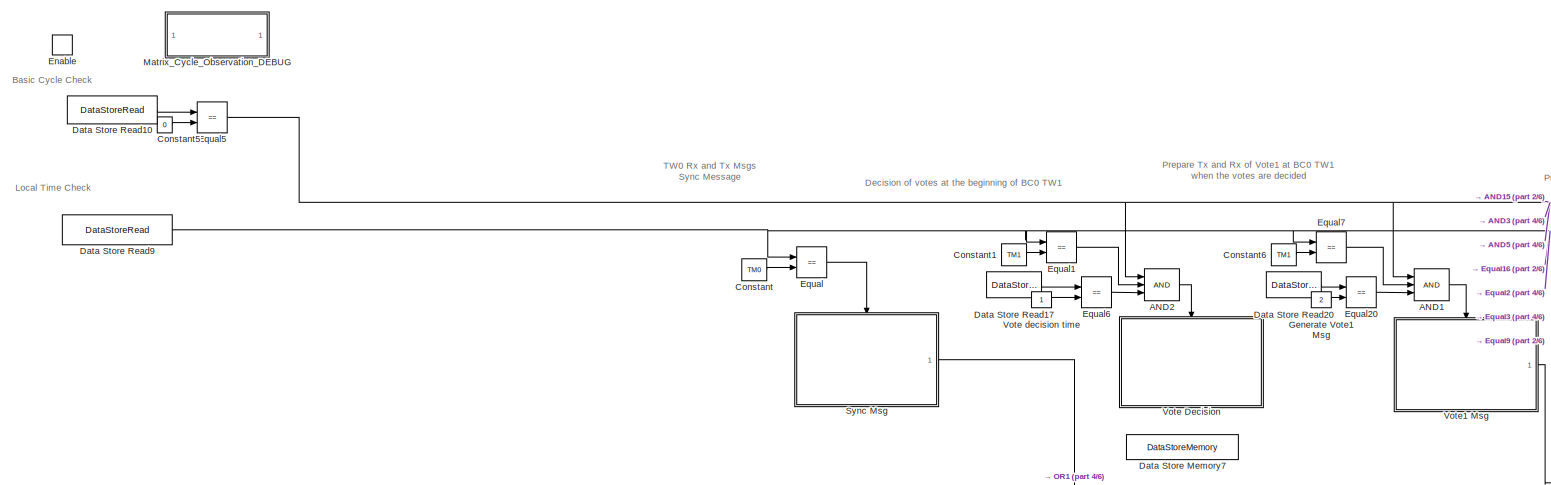
[diagram: HANcoder STM32 Target - E407-STM32 algorithm/Global Ticks Increment/CAN Management/Matrix Cycle Manager - part 1/6, top left region]
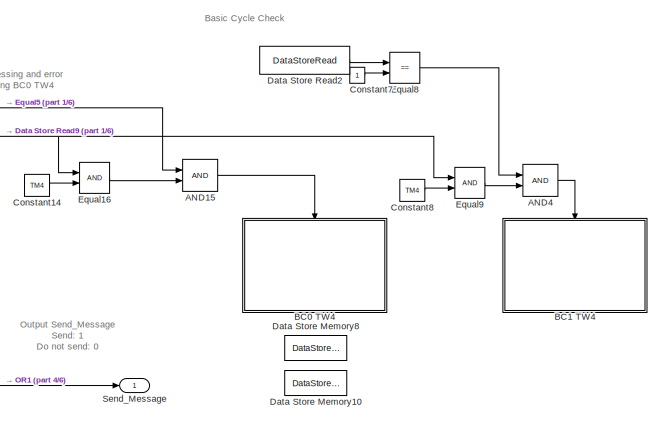
[diagram: HANcoder STM32 Target - E407-STM32 algorithm/Global Ticks Increment/CAN Management/Matrix Cycle Manager - part 2/6, top right region]
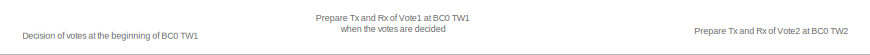
[diagram: HANcoder STM32 Target - E407-STM32 algorithm/Global Ticks Increment/CAN Management/Matrix Cycle Manager - part 3/6, top center region]
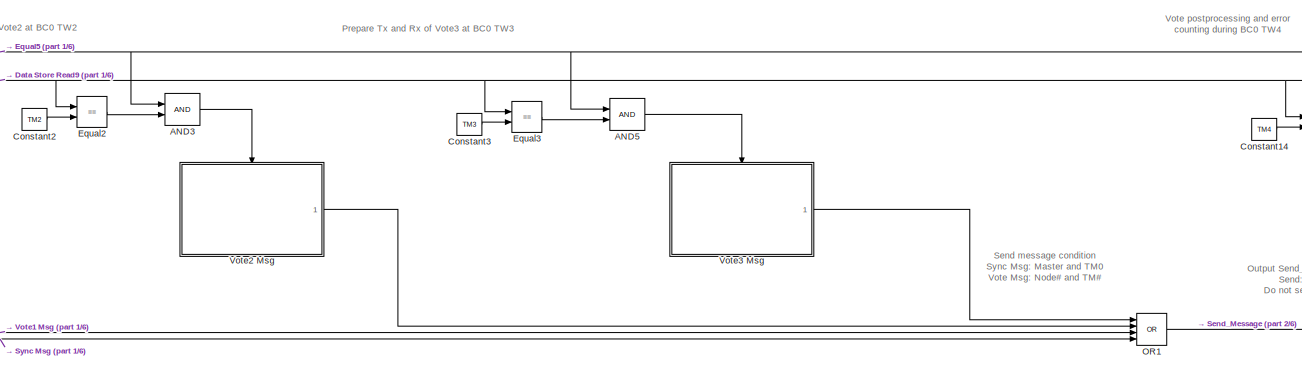
[diagram: HANcoder STM32 Target - E407-STM32 algorithm/Global Ticks Increment/CAN Management/Matrix Cycle Manager - part 4/6, top center region]
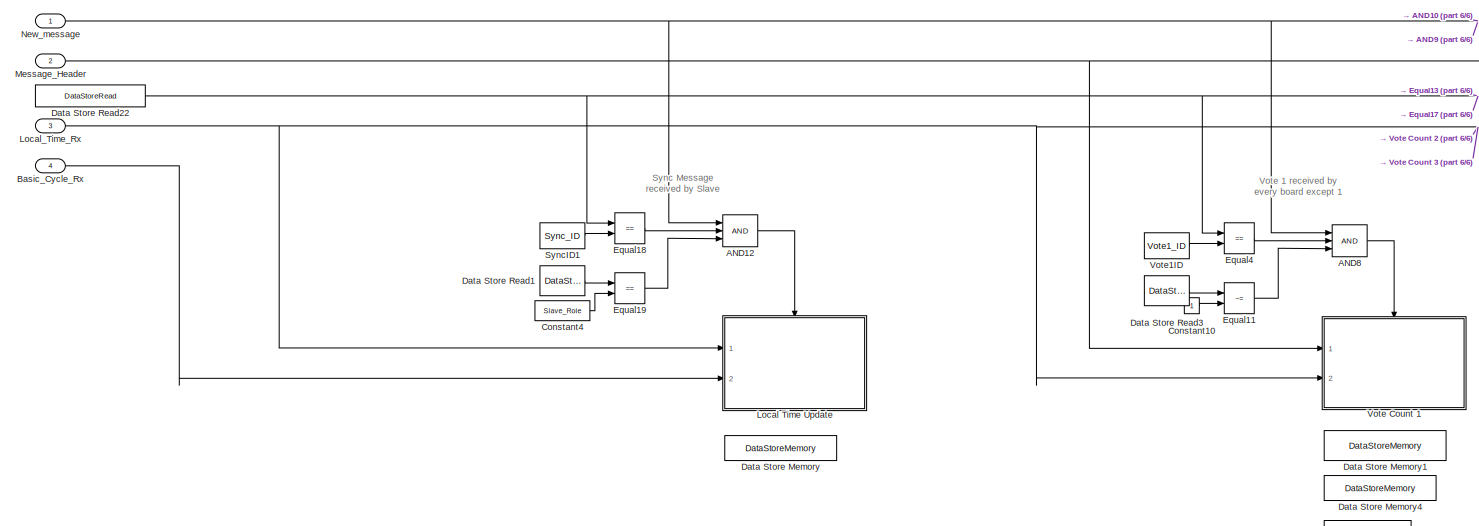
[diagram: HANcoder STM32 Target - E407-STM32 algorithm/Global Ticks Increment/CAN Management/Matrix Cycle Manager - part 5/6, bottom left region]
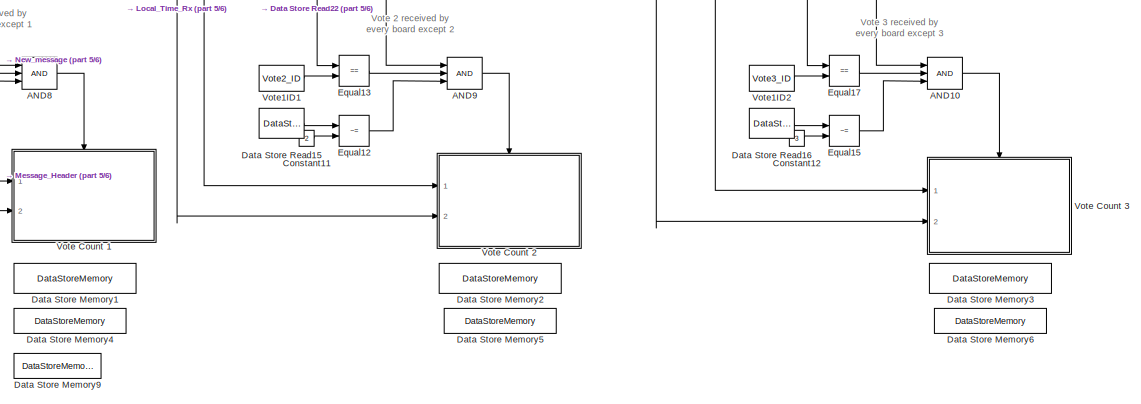
[diagram: HANcoder STM32 Target - E407-STM32 algorithm/Global Ticks Increment/CAN Management/Matrix Cycle Manager - part 6/6, bottom center region]
BLOCK [SubSystem] HANcoder STM32 Target - E407-STM32 algorithm/Global Ticks Increment/CAN Management/Matrix Cycle Manager
  Ports = [4, 1, 1]
  RequestExecContextInheritance = off
BLOCK [Logic] HANcoder STM32 Target - E407-STM32 algorithm/Global Ticks Increment/CAN Management/Matrix Cycle Manager/AND1
  AllPortsSameDT = off
  IconShape = distinctive
  Inputs = 3
  OutDataTypeStr = boolean
  Ports = [3, 1]
BLOCK [Logic] HANcoder STM32 Target - E407-STM32 algorithm/Global Ticks Increment/CAN Management/Matrix Cycle Manager/AND10
  AllPortsSameDT = off
  IconShape = distinctive
  Inputs = 3
  OutDataTypeStr = boolean
  Ports = [3, 1]
BLOCK [Logic] HANcoder STM32 Target - E407-STM32 algorithm/Global Ticks Increment/CAN Management/Matrix Cycle Manager/AND12
  AllPortsSameDT = off
  IconShape = distinctive
  Inputs = 3
  OutDataTypeStr = boolean
  Ports = [3, 1]
BLOCK [Logic] HANcoder STM32 Target - E407-STM32 algorithm/Global Ticks Increment/CAN Management/Matrix Cycle Manager/AND15
  AllPortsSameDT = off
  IconShape = distinctive
  OutDataTypeStr = boolean
  Ports = [2, 1]
BLOCK [Logic] HANcoder STM32 Target - E407-STM32 algorithm/Global Ticks Increment/CAN Management/Matrix Cycle Manager/AND2
  AllPortsSameDT = off
  IconShape = distinctive
  Inputs = 3
  OutDataTypeStr = boolean
  Ports = [3, 1]
BLOCK [Logic] HANcoder STM32 Target - E407-STM32 algorithm/Global Ticks Increment/CAN Management/Matrix Cycle Manager/AND3
  AllPortsSameDT = off
  IconShape = distinctive
  OutDataTypeStr = boolean
  Ports = [2, 1]
BLOCK [Logic] HANcoder STM32 Target - E407-STM32 algorithm/Global Ticks Increment/CAN Management/Matrix Cycle Manager/AND4
  AllPortsSameDT = off
  IconShape = distinctive
  OutDataTypeStr = boolean
  Ports = [2, 1]
BLOCK [Logic] HANcoder STM32 Target - E407-STM32 algorithm/Global Ticks Increment/CAN Management/Matrix Cycle Manager/AND5
  AllPortsSameDT = off
  IconShape = distinctive
  OutDataTypeStr = boolean
  Ports = [2, 1]
BLOCK [Logic] HANcoder STM32 Target - E407-STM32 algorithm/Global Ticks Increment/CAN Management/Matrix Cycle Manager/AND8
  AllPortsSameDT = off
  IconShape = distinctive
  Inputs = 3
  OutDataTypeStr = boolean
  Ports = [3, 1]
BLOCK [Logic] HANcoder STM32 Target - E407-STM32 algorithm/Global Ticks Increment/CAN Management/Matrix Cycle Manager/AND9
  AllPortsSameDT = off
  IconShape = distinctive
  Inputs = 3
  OutDataTypeStr = boolean
  Ports = [3, 1]
BLOCK [SubSystem] HANcoder STM32 Target - E407-STM32 algorithm/Global Ticks Increment/CAN Management/Matrix Cycle Manager/BC0 TW4
  Ports = [0, 0, 1]
  RequestExecContextInheritance = off
BLOCK [DataStoreRead] HANcoder STM32 Target - E407-STM32 algorithm/Global Ticks Increment/CAN Management/Matrix Cycle Manager/BC0 TW4/Data Store Read
  DataStoreName = TW4_State
  Ports = [0, 1]
BLOCK [DataStoreRead] HANcoder STM32 Target - E407-STM32 algorithm/Global Ticks Increment/CAN Management/Matrix Cycle Manager/BC0 TW4/Data Store Read2
  DataStoreName = TW4_State
  Ports = [0, 1]
BLOCK [DataStoreRead] HANcoder STM32 Target - E407-STM32 algorithm/Global Ticks Increment/CAN Management/Matrix Cycle Manager/BC0 TW4/Data Store Read3
  DataStoreName = TW4_State
  Ports = [0, 1]
BLOCK [EnablePort] HANcoder STM32 Target - E407-STM32 algorithm/Global Ticks Increment/CAN Management/Matrix Cycle Manager/BC0 TW4/Enable
  Ports = []
  PropagateVarSize = During execution
BLOCK [RelationalOperator] HANcoder STM32 Target - E407-STM32 algorithm/Global Ticks Increment/CAN Management/Matrix Cycle Manager/BC0 TW4/Equal
  InputSameDT = off
  Operator = ==
  OutDataTypeStr = boolean
  Ports = [2, 1]
  RndMeth = Simplest
BLOCK [RelationalOperator] HANcoder STM32 Target - E407-STM32 algorithm/Global Ticks Increment/CAN Management/Matrix Cycle Manager/BC0 TW4/Equal2
  InputSameDT = off
  Operator = ==
  OutDataTypeStr = boolean
  Ports = [2, 1]
  RndMeth = Simplest
BLOCK [RelationalOperator] HANcoder STM32 Target - E407-STM32 algorithm/Global Ticks Increment/CAN Management/Matrix Cycle Manager/BC0 TW4/Equal3
  InputSameDT = off
  Operator = ==
  OutDataTypeStr = boolean
  Ports = [2, 1]
  RndMeth = Simplest
BLOCK [Constant] HANcoder STM32 Target - E407-STM32 algorithm/Global Ticks Increment/CAN Management/Matrix Cycle Manager/BC0 TW4/Master ID decision
  Value = 2
BLOCK [Constant] HANcoder STM32 Target - E407-STM32 algorithm/Global Ticks Increment/CAN Management/Matrix Cycle Manager/BC0 TW4/Reset variables
  Value = 3
BLOCK [SubSystem] HANcoder STM32 Target - E407-STM32 algorithm/Global Ticks Increment/CAN Management/Matrix Cycle Manager/BC0 TW4/Subsystem
  Ports = [0, 0, 1]
  RequestExecContextInheritance = off
BLOCK [Logic] HANcoder STM32 Target - E407-STM32 algorithm/Global Ticks Increment/CAN Management/Matrix Cycle Manager/BC0 TW4/Subsystem/AND
  AllPortsSameDT = off
  IconShape = distinctive
  OutDataTypeStr = boolean
  Ports = [2, 1]
BLOCK [Logic] HANcoder STM32 Target - E407-STM32 algorithm/Global Ticks Increment/CAN Management/Matrix Cycle Manager/BC0 TW4/Subsystem/AND1
  AllPortsSameDT = off
  IconShape = distinctive
  OutDataTypeStr = boolean
  Ports = [2, 1]
BLOCK [Logic] HANcoder STM32 Target - E407-STM32 algorithm/Global Ticks Increment/CAN Management/Matrix Cycle Manager/BC0 TW4/Subsystem/AND2
  AllPortsSameDT = off
  IconShape = distinctive
  OutDataTypeStr = boolean
  Ports = [2, 1]
BLOCK [Constant] HANcoder STM32 Target - E407-STM32 algorithm/Global Ticks Increment/CAN Management/Matrix Cycle Manager/BC0 TW4/Subsystem/Constant
BLOCK [Constant] HANcoder STM32 Target - E407-STM32 algorithm/Global Ticks Increment/CAN Management/Matrix Cycle Manager/BC0 TW4/Subsystem/Constant1
BLOCK [Constant] HANcoder STM32 Target - E407-STM32 algorithm/Global Ticks Increment/CAN Management/Matrix Cycle Manager/BC0 TW4/Subsystem/Constant2
BLOCK [Constant] HANcoder STM32 Target - E407-STM32 algorithm/Global Ticks Increment/CAN Management/Matrix Cycle Manager/BC0 TW4/Subsystem/Constant3
  Value = 2
BLOCK [Constant] HANcoder STM32 Target - E407-STM32 algorithm/Global Ticks Increment/CAN Management/Matrix Cycle Manager/BC0 TW4/Subsystem/Constant4
  Value = 3
BLOCK [Constant] HANcoder STM32 Target - E407-STM32 algorithm/Global Ticks Increment/CAN Management/Matrix Cycle Manager/BC0 TW4/Subsystem/Constant6
BLOCK [DataStoreRead] HANcoder STM32 Target - E407-STM32 algorithm/Global Ticks Increment/CAN Management/Matrix Cycle Manager/BC0 TW4/Subsystem/Data Store Read
  DataStoreName = Board1_error_counter
  Ports = [0, 1]
BLOCK [DataStoreRead] HANcoder STM32 Target - E407-STM32 algorithm/Global Ticks Increment/CAN Management/Matrix Cycle Manager/BC0 TW4/Subsystem/Data Store Read1
  DataStoreName = BC0_TM1_processed
  Ports = [0, 1]
BLOCK [DataStoreRead] HANcoder STM32 Target - E407-STM32 algorithm/Global Ticks Increment/CAN Management/Matrix Cycle Manager/BC0 TW4/Subsystem/Data Store Read10
  DataStoreName = Board_ID
  Ports = [0, 1]
BLOCK [DataStoreRead] HANcoder STM32 Target - E407-STM32 algorithm/Global Ticks Increment/CAN Management/Matrix Cycle Manager/BC0 TW4/Subsystem/Data Store Read11
  DataStoreName = Board_ID
  Ports = [0, 1]
BLOCK [DataStoreRead] HANcoder STM32 Target - E407-STM32 algorithm/Global Ticks Increment/CAN Management/Matrix Cycle Manager/BC0 TW4/Subsystem/Data Store Read2
  DataStoreName = BC0_TM2_processed
  Ports = [0, 1]
BLOCK [DataStoreRead] HANcoder STM32 Target - E407-STM32 algorithm/Global Ticks Increment/CAN Management/Matrix Cycle Manager/BC0 TW4/Subsystem/Data Store Read3
  DataStoreName = BC0_TM3_processed
  Ports = [0, 1]
BLOCK [DataStoreRead] HANcoder STM32 Target - E407-STM32 algorithm/Global Ticks Increment/CAN Management/Matrix Cycle Manager/BC0 TW4/Subsystem/Data Store Read4
  DataStoreName = Board2_error_counter
  Ports = [0, 1]
BLOCK [DataStoreRead] HANcoder STM32 Target - E407-STM32 algorithm/Global Ticks Increment/CAN Management/Matrix Cycle Manager/BC0 TW4/Subsystem/Data Store Read5
  DataStoreName = Board1_error_counter
  Ports = [0, 1]
BLOCK [DataStoreRead] HANcoder STM32 Target - E407-STM32 algorithm/Global Ticks Increment/CAN Management/Matrix Cycle Manager/BC0 TW4/Subsystem/Data Store Read6
  DataStoreName = Board2_error_counter
  Ports = [0, 1]
BLOCK [DataStoreRead] HANcoder STM32 Target - E407-STM32 algorithm/Global Ticks Increment/CAN Management/Matrix Cycle Manager/BC0 TW4/Subsystem/Data Store Read7
  DataStoreName = Board3_error_counter
  Ports = [0, 1]
BLOCK [DataStoreRead] HANcoder STM32 Target - E407-STM32 algorithm/Global Ticks Increment/CAN Management/Matrix Cycle Manager/BC0 TW4/Subsystem/Data Store Read8
  DataStoreName = Board3_error_counter
  Ports = [0, 1]
BLOCK [DataStoreRead] HANcoder STM32 Target - E407-STM32 algorithm/Global Ticks Increment/CAN Management/Matrix Cycle Manager/BC0 TW4/Subsystem/Data Store Read9
  DataStoreName = Board_ID
  Ports = [0, 1]
BLOCK [DataStoreWrite] HANcoder STM32 Target - E407-STM32 algorithm/Global Ticks Increment/CAN Management/Matrix Cycle Manager/BC0 TW4/Subsystem/Data Store Write
  DataStoreName = TW4_State
  Ports = [1]
BLOCK [DataStoreWrite] HANcoder STM32 Target - E407-STM32 algorithm/Global Ticks Increment/CAN Management/Matrix Cycle Manager/BC0 TW4/Subsystem/Data Store Write1
  DataStoreName = Board1_error_counter
  Ports = [1]
BLOCK [DataStoreWrite] HANcoder STM32 Target - E407-STM32 algorithm/Global Ticks Increment/CAN Management/Matrix Cycle Manager/BC0 TW4/Subsystem/Data Store Write2
  DataStoreName = Board2_error_counter
  Ports = [1]
BLOCK [DataStoreWrite] HANcoder STM32 Target - E407-STM32 algorithm/Global Ticks Increment/CAN Management/Matrix Cycle Manager/BC0 TW4/Subsystem/Data Store Write3
  DataStoreName = Board3_error_counter
  Ports = [1]
BLOCK [EnablePort] HANcoder STM32 Target - E407-STM32 algorithm/Global Ticks Increment/CAN Management/Matrix Cycle Manager/BC0 TW4/Subsystem/Enable
  Ports = []
BLOCK [RelationalOperator] HANcoder STM32 Target - E407-STM32 algorithm/Global Ticks Increment/CAN Management/Matrix Cycle Manager/BC0 TW4/Subsystem/Equal
  InputSameDT = off
  Operator = ~=
  OutDataTypeStr = boolean
  Ports = [2, 1]
  RndMeth = Simplest
BLOCK [RelationalOperator] HANcoder STM32 Target - E407-STM32 algorithm/Global Ticks Increment/CAN Management/Matrix Cycle Manager/BC0 TW4/Subsystem/Equal1
  InputSameDT = off
  Operator = ~=
  OutDataTypeStr = boolean
  Ports = [2, 1]
  RndMeth = Simplest
BLOCK [RelationalOperator] HANcoder STM32 Target - E407-STM32 algorithm/Global Ticks Increment/CAN Management/Matrix Cycle Manager/BC0 TW4/Subsystem/Equal2
  InputSameDT = off
  Operator = ~=
  OutDataTypeStr = boolean
  Ports = [2, 1]
  RndMeth = Simplest
BLOCK [Logic] HANcoder STM32 Target - E407-STM32 algorithm/Global Ticks Increment/CAN Management/Matrix Cycle Manager/BC0 TW4/Subsystem/NOT
  AllPortsSameDT = off
  IconShape = distinctive
  Operator = NOT
  OutDataTypeStr = boolean
  Ports = [1, 1]
BLOCK [Logic] HANcoder STM32 Target - E407-STM32 algorithm/Global Ticks Increment/CAN Management/Matrix Cycle Manager/BC0 TW4/Subsystem/NOT1
  AllPortsSameDT = off
  IconShape = distinctive
  Operator = NOT
  OutDataTypeStr = boolean
  Ports = [1, 1]
BLOCK [Logic] HANcoder STM32 Target - E407-STM32 algorithm/Global Ticks Increment/CAN Management/Matrix Cycle Manager/BC0 TW4/Subsystem/NOT2
  AllPortsSameDT = off
  IconShape = distinctive
  Operator = NOT
  OutDataTypeStr = boolean
  Ports = [1, 1]
BLOCK [Sum] HANcoder STM32 Target - E407-STM32 algorithm/Global Ticks Increment/CAN Management/Matrix Cycle Manager/BC0 TW4/Subsystem/Plus
  InputSameDT = off
  OutDataTypeStr = Inherit: Inherit via internal rule
  Ports = [2, 1]
  SaturateOnIntegerOverflow = off
BLOCK [Sum] HANcoder STM32 Target - E407-STM32 algorithm/Global Ticks Increment/CAN Management/Matrix Cycle Manager/BC0 TW4/Subsystem/Plus1
  InputSameDT = off
  OutDataTypeStr = Inherit: Inherit via internal rule
  Ports = [2, 1]
  SaturateOnIntegerOverflow = off
BLOCK [Sum] HANcoder STM32 Target - E407-STM32 algorithm/Global Ticks Increment/CAN Management/Matrix Cycle Manager/BC0 TW4/Subsystem/Plus2
  InputSameDT = off
  OutDataTypeStr = Inherit: Inherit via internal rule
  Ports = [2, 1]
  SaturateOnIntegerOverflow = off
BLOCK [Switch] HANcoder STM32 Target - E407-STM32 algorithm/Global Ticks Increment/CAN Management/Matrix Cycle Manager/BC0 TW4/Subsystem/Switch1
  Criteria = u2 > Threshold
  InputSameDT = off
  SaturateOnIntegerOverflow = off
BLOCK [Switch] HANcoder STM32 Target - E407-STM32 algorithm/Global Ticks Increment/CAN Management/Matrix Cycle Manager/BC0 TW4/Subsystem/Switch2
  Criteria = u2 > Threshold
  InputSameDT = off
  SaturateOnIntegerOverflow = off
BLOCK [Switch] HANcoder STM32 Target - E407-STM32 algorithm/Global Ticks Increment/CAN Management/Matrix Cycle Manager/BC0 TW4/Subsystem/Switch3
  Criteria = u2 > Threshold
  InputSameDT = off
  SaturateOnIntegerOverflow = off
BLOCK [SubSystem] HANcoder STM32 Target - E407-STM32 algorithm/Global Ticks Increment/CAN Management/Matrix Cycle Manager/BC0 TW4/Subsystem/Timeout Counter 1 DEBUG
  Ports = [1]
  RequestExecContextInheritance = off
BLOCK [Constant] HANcoder STM32 Target - E407-STM32 algorithm/Global Ticks Increment/CAN Management/Matrix Cycle Manager/BC0 TW4/Subsystem/Timeout Counter 1 DEBUG/Constant
BLOCK [DataStoreMemory] HANcoder STM32 Target - E407-STM32 algorithm/Global Ticks Increment/CAN Management/Matrix Cycle Manager/BC0 TW4/Subsystem/Timeout Counter 1 DEBUG/Data Store Memory
  DataStoreName = BC0_TM1_timeout_counter
  ReadBeforeWriteMsg = warning
  ShowAdditionalParam = off
  WriteAfterReadMsg = warning
  WriteAfterWriteMsg = warning
BLOCK [DataStoreRead] HANcoder STM32 Target - E407-STM32 algorithm/Global Ticks Increment/CAN Management/Matrix Cycle Manager/BC0 TW4/Subsystem/Timeout Counter 1 DEBUG/Data Store Read
  DataStoreName = BC0_TM1_timeout_counter
  Ports = [0, 1]
BLOCK [DataStoreRead] HANcoder STM32 Target - E407-STM32 algorithm/Global Ticks Increment/CAN Management/Matrix Cycle Manager/BC0 TW4/Subsystem/Timeout Counter 1 DEBUG/Data Store Read1
  DataStoreName = BC0_TM1_timeout_counter
  Ports = [0, 1]
BLOCK [DataStoreWrite] HANcoder STM32 Target - E407-STM32 algorithm/Global Ticks Increment/CAN Management/Matrix Cycle Manager/BC0 TW4/Subsystem/Timeout Counter 1 DEBUG/Data Store Write
  DataStoreName = BC0_TM1_timeout_counter
  Ports = [1]
BLOCK [Sum] HANcoder STM32 Target - E407-STM32 algorithm/Global Ticks Increment/CAN Management/Matrix Cycle Manager/BC0 TW4/Subsystem/Timeout Counter 1 DEBUG/Plus
  InputSameDT = off
  OutDataTypeStr = Inherit: Inherit via internal rule
  Ports = [2, 1]
  SaturateOnIntegerOverflow = off
BLOCK [Switch] HANcoder STM32 Target - E407-STM32 algorithm/Global Ticks Increment/CAN Management/Matrix Cycle Manager/BC0 TW4/Subsystem/Timeout Counter 1 DEBUG/Switch
  Criteria = u2 > Threshold
  InputSameDT = off
  SaturateOnIntegerOverflow = off
BLOCK [Inport] HANcoder STM32 Target - E407-STM32 algorithm/Global Ticks Increment/CAN Management/Matrix Cycle Manager/BC0 TW4/Subsystem/Timeout Counter 1 DEBUG/Timeout
  IconDisplay = Port number
BLOCK [SubSystem] HANcoder STM32 Target - E407-STM32 algorithm/Global Ticks Increment/CAN Management/Matrix Cycle Manager/BC0 TW4/Subsystem/Timeout Counter 2 DEBUG
  Ports = [1]
  RequestExecContextInheritance = off
BLOCK [Constant] HANcoder STM32 Target - E407-STM32 algorithm/Global Ticks Increment/CAN Management/Matrix Cycle Manager/BC0 TW4/Subsystem/Timeout Counter 2 DEBUG/Constant
BLOCK [DataStoreMemory] HANcoder STM32 Target - E407-STM32 algorithm/Global Ticks Increment/CAN Management/Matrix Cycle Manager/BC0 TW4/Subsystem/Timeout Counter 2 DEBUG/Data Store Memory
  DataStoreName = BC0_TM2_timeout_counter
  ReadBeforeWriteMsg = warning
  ShowAdditionalParam = off
  WriteAfterReadMsg = warning
  WriteAfterWriteMsg = warning
BLOCK [DataStoreRead] HANcoder STM32 Target - E407-STM32 algorithm/Global Ticks Increment/CAN Management/Matrix Cycle Manager/BC0 TW4/Subsystem/Timeout Counter 2 DEBUG/Data Store Read
  DataStoreName = BC0_TM2_timeout_counter
  Ports = [0, 1]
BLOCK [DataStoreRead] HANcoder STM32 Target - E407-STM32 algorithm/Global Ticks Increment/CAN Management/Matrix Cycle Manager/BC0 TW4/Subsystem/Timeout Counter 2 DEBUG/Data Store Read1
  DataStoreName = BC0_TM2_timeout_counter
  Ports = [0, 1]
BLOCK [DataStoreWrite] HANcoder STM32 Target - E407-STM32 algorithm/Global Ticks Increment/CAN Management/Matrix Cycle Manager/BC0 TW4/Subsystem/Timeout Counter 2 DEBUG/Data Store Write
  DataStoreName = BC0_TM2_timeout_counter
  Ports = [1]
BLOCK [Sum] HANcoder STM32 Target - E407-STM32 algorithm/Global Ticks Increment/CAN Management/Matrix Cycle Manager/BC0 TW4/Subsystem/Timeout Counter 2 DEBUG/Plus
  InputSameDT = off
  OutDataTypeStr = Inherit: Inherit via internal rule
  Ports = [2, 1]
  SaturateOnIntegerOverflow = off
BLOCK [Switch] HANcoder STM32 Target - E407-STM32 algorithm/Global Ticks Increment/CAN Management/Matrix Cycle Manager/BC0 TW4/Subsystem/Timeout Counter 2 DEBUG/Switch
  Criteria = u2 > Threshold
  InputSameDT = off
  SaturateOnIntegerOverflow = off
BLOCK [Inport] HANcoder STM32 Target - E407-STM32 algorithm/Global Ticks Increment/CAN Management/Matrix Cycle Manager/BC0 TW4/Subsystem/Timeout Counter 2 DEBUG/Timeout
  IconDisplay = Port number
BLOCK [SubSystem] HANcoder STM32 Target - E407-STM32 algorithm/Global Ticks Increment/CAN Management/Matrix Cycle Manager/BC0 TW4/Subsystem/Timeout Counter 3 DEBUG
  Ports = [1]
  RequestExecContextInheritance = off
BLOCK [Constant] HANcoder STM32 Target - E407-STM32 algorithm/Global Ticks Increment/CAN Management/Matrix Cycle Manager/BC0 TW4/Subsystem/Timeout Counter 3 DEBUG/Constant
BLOCK [DataStoreMemory] HANcoder STM32 Target - E407-STM32 algorithm/Global Ticks Increment/CAN Management/Matrix Cycle Manager/BC0 TW4/Subsystem/Timeout Counter 3 DEBUG/Data Store Memory
  DataStoreName = BC0_TM3_timeout_counter
  ReadBeforeWriteMsg = warning
  ShowAdditionalParam = off
  WriteAfterReadMsg = warning
  WriteAfterWriteMsg = warning
BLOCK [DataStoreRead] HANcoder STM32 Target - E407-STM32 algorithm/Global Ticks Increment/CAN Management/Matrix Cycle Manager/BC0 TW4/Subsystem/Timeout Counter 3 DEBUG/Data Store Read
  DataStoreName = BC0_TM3_timeout_counter
  Ports = [0, 1]
BLOCK [DataStoreRead] HANcoder STM32 Target - E407-STM32 algorithm/Global Ticks Increment/CAN Management/Matrix Cycle Manager/BC0 TW4/Subsystem/Timeout Counter 3 DEBUG/Data Store Read1
  DataStoreName = BC0_TM3_timeout_counter
  Ports = [0, 1]
BLOCK [DataStoreWrite] HANcoder STM32 Target - E407-STM32 algorithm/Global Ticks Increment/CAN Management/Matrix Cycle Manager/BC0 TW4/Subsystem/Timeout Counter 3 DEBUG/Data Store Write
  DataStoreName = BC0_TM3_timeout_counter
  Ports = [1]
BLOCK [Sum] HANcoder STM32 Target - E407-STM32 algorithm/Global Ticks Increment/CAN Management/Matrix Cycle Manager/BC0 TW4/Subsystem/Timeout Counter 3 DEBUG/Plus
  InputSameDT = off
  OutDataTypeStr = Inherit: Inherit via internal rule
  Ports = [2, 1]
  SaturateOnIntegerOverflow = off
BLOCK [Switch] HANcoder STM32 Target - E407-STM32 algorithm/Global Ticks Increment/CAN Management/Matrix Cycle Manager/BC0 TW4/Subsystem/Timeout Counter 3 DEBUG/Switch
  Criteria = u2 > Threshold
  InputSameDT = off
  SaturateOnIntegerOverflow = off
BLOCK [Inport] HANcoder STM32 Target - E407-STM32 algorithm/Global Ticks Increment/CAN Management/Matrix Cycle Manager/BC0 TW4/Subsystem/Timeout Counter 3 DEBUG/Timeout
  IconDisplay = Port number
BLOCK [Constant] HANcoder STM32 Target - E407-STM32 algorithm/Global Ticks Increment/CAN Management/Matrix Cycle Manager/BC0 TW4/Subsystem/Vote Counting
  Value = 2
BLOCK [SubSystem] HANcoder STM32 Target - E407-STM32 algorithm/Global Ticks Increment/CAN Management/Matrix Cycle Manager/BC0 TW4/Subsystem2
  Ports = [0, 0, 1]
  RequestExecContextInheritance = off
BLOCK [Constant] HANcoder STM32 Target - E407-STM32 algorithm/Global Ticks Increment/CAN Management/Matrix Cycle Manager/BC0 TW4/Subsystem2/Constant10
  Value = Slave_Role
BLOCK [Constant] HANcoder STM32 Target - E407-STM32 algorithm/Global Ticks Increment/CAN Management/Matrix Cycle Manager/BC0 TW4/Subsystem2/Constant9
  Value = Master_Role
BLOCK [DataStoreRead] HANcoder STM32 Target - E407-STM32 algorithm/Global Ticks Increment/CAN Management/Matrix Cycle Manager/BC0 TW4/Subsystem2/Data Store Read
  DataStoreName = Master_ID
  Ports = [0, 1]
BLOCK [DataStoreRead] HANcoder STM32 Target - E407-STM32 algorithm/Global Ticks Increment/CAN Management/Matrix Cycle Manager/BC0 TW4/Subsystem2/Data Store Read27
  DataStoreName = Board_ID
  Ports = [0, 1]
BLOCK [DataStoreWrite] HANcoder STM32 Target - E407-STM32 algorithm/Global Ticks Increment/CAN Management/Matrix Cycle Manager/BC0 TW4/Subsystem2/Data Store Write
  DataStoreName = TW4_State
  Ports = [1]
BLOCK [DataStoreWrite] HANcoder STM32 Target - E407-STM32 algorithm/Global Ticks Increment/CAN Management/Matrix Cycle Manager/BC0 TW4/Subsystem2/Data Store Write1
  DataStoreName = New_Master
  Ports = [1]
BLOCK [DataStoreWrite] HANcoder STM32 Target - E407-STM32 algorithm/Global Ticks Increment/CAN Management/Matrix Cycle Manager/BC0 TW4/Subsystem2/Data Store Write13
  DataStoreName = Master_ID
  Ports = [1]
BLOCK [DataStoreWrite] HANcoder STM32 Target - E407-STM32 algorithm/Global Ticks Increment/CAN Management/Matrix Cycle Manager/BC0 TW4/Subsystem2/Data Store Write15
  DataStoreName = Role_ID
  Ports = [1]
BLOCK [EnablePort] HANcoder STM32 Target - E407-STM32 algorithm/Global Ticks Increment/CAN Management/Matrix Cycle Manager/BC0 TW4/Subsystem2/Enable
  Ports = []
  PropagateVarSize = During execution
BLOCK [RelationalOperator] HANcoder STM32 Target - E407-STM32 algorithm/Global Ticks Increment/CAN Management/Matrix Cycle Manager/BC0 TW4/Subsystem2/Equal
  InputSameDT = off
  Operator = ~=
  OutDataTypeStr = boolean
  Ports = [2, 1]
  RndMeth = Simplest
BLOCK [RelationalOperator] HANcoder STM32 Target - E407-STM32 algorithm/Global Ticks Increment/CAN Management/Matrix Cycle Manager/BC0 TW4/Subsystem2/Equal6
  InputSameDT = off
  Operator = ==
  OutDataTypeStr = boolean
  Ports = [2, 1]
  RndMeth = Simplest
BLOCK [SubSystem] HANcoder STM32 Target - E407-STM32 algorithm/Global Ticks Increment/CAN Management/Matrix Cycle Manager/BC0 TW4/Subsystem2/RESET Board - Return to initialization
  Ports = [0, 0, 1]
  RequestExecContextInheritance = off
  TreatAsAtomicUnit = on
BLOCK [DataTypeConversion] HANcoder STM32 Target - E407-STM32 algorithm/Global Ticks Increment/CAN Management/Matrix Cycle Manager/BC0 TW4/Subsystem2/RESET Board - Return to initialization/Cast
  OutDataTypeStr = boolean
  RndMeth = Floor
  SaturateOnIntegerOverflow = off
BLOCK [Constant] HANcoder STM32 Target - E407-STM32 algorithm/Global Ticks Increment/CAN Management/Matrix Cycle Manager/BC0 TW4/Subsystem2/RESET Board - Return to initialization/Constant
  Value = 0
BLOCK [DataStoreWrite] HANcoder STM32 Target - E407-STM32 algorithm/Global Ticks Increment/CAN Management/Matrix Cycle Manager/BC0 TW4/Subsystem2/RESET Board - Return to initialization/Data Store Write
  DataStoreName = first_sync_msg_flag
  Ports = [1]
BLOCK [DataStoreWrite] HANcoder STM32 Target - E407-STM32 algorithm/Global Ticks Increment/CAN Management/Matrix Cycle Manager/BC0 TW4/Subsystem2/RESET Board - Return to initialization/Data Store Write1
  DataStoreName = Initialization_CAN_flag
  Ports = [1]
BLOCK [DataStoreWrite] HANcoder STM32 Target - E407-STM32 algorithm/Global Ticks Increment/CAN Management/Matrix Cycle Manager/BC0 TW4/Subsystem2/RESET Board - Return to initialization/Data Store Write2
  DataStoreName = Initialization_flag
  Ports = [1]
BLOCK [DataStoreWrite] HANcoder STM32 Target - E407-STM32 algorithm/Global Ticks Increment/CAN Management/Matrix Cycle Manager/BC0 TW4/Subsystem2/RESET Board - Return to initialization/Data Store Write3
  DataStoreName = Initialization_Counter
  Ports = [1]
BLOCK [DataStoreWrite] HANcoder STM32 Target - E407-STM32 algorithm/Global Ticks Increment/CAN Management/Matrix Cycle Manager/BC0 TW4/Subsystem2/RESET Board - Return to initialization/Data Store Write4
  DataStoreName = Role_ID
  Ports = [1]
BLOCK [DataStoreWrite] HANcoder STM32 Target - E407-STM32 algorithm/Global Ticks Increment/CAN Management/Matrix Cycle Manager/BC0 TW4/Subsystem2/RESET Board - Return to initialization/Data Store Write5
  DataStoreName = Idle_Time_Finish_Flag
  Ports = [1]
BLOCK [EnablePort] HANcoder STM32 Target - E407-STM32 algorithm/Global Ticks Increment/CAN Management/Matrix Cycle Manager/BC0 TW4/Subsystem2/RESET Board - Return to initialization/Enable
  Ports = []
BLOCK [Constant] HANcoder STM32 Target - E407-STM32 algorithm/Global Ticks Increment/CAN Management/Matrix Cycle Manager/BC0 TW4/Subsystem2/Reset Variables
  Value = 3
BLOCK [Switch] HANcoder STM32 Target - E407-STM32 algorithm/Global Ticks Increment/CAN Management/Matrix Cycle Manager/BC0 TW4/Subsystem2/Switch16
  Criteria = u2 > Threshold
  InputSameDT = off
  SaturateOnIntegerOverflow = off
BLOCK [SubSystem] HANcoder STM32 Target - E407-STM32 algorithm/Global Ticks Increment/CAN Management/Matrix Cycle Manager/BC0 TW4/Subsystem2/Votes recount to choose Master
  Ports = [0, 2]
  RequestExecContextInheritance = off
BLOCK [Reference] HANcoder STM32 Target - E407-STM32 algorithm/Global Ticks Increment/CAN Management/Matrix Cycle Manager/BC0 TW4/Subsystem2/Votes recount to choose Master/Compare To Constant  REF=simulink/Logic and Bit
Operations/Compare
To Constant
  Ports = [1, 1]
  SourceBlock = simulink/Logic and Bit\nOperations/Compare\nTo Constant
  SourceProductBaseCode = SL
  SourceProductName = Simulink
  SourceType = Compare To Constant
BLOCK [Constant] HANcoder STM32 Target - E407-STM32 algorithm/Global Ticks Increment/CAN Management/Matrix Cycle Manager/BC0 TW4/Subsystem2/Votes recount to choose Master/Constant
  Value = 0
BLOCK [Constant] HANcoder STM32 Target - E407-STM32 algorithm/Global Ticks Increment/CAN Management/Matrix Cycle Manager/BC0 TW4/Subsystem2/Votes recount to choose Master/Constant15
BLOCK [Constant] HANcoder STM32 Target - E407-STM32 algorithm/Global Ticks Increment/CAN Management/Matrix Cycle Manager/BC0 TW4/Subsystem2/Votes recount to choose Master/Constant16
  Value = 2
BLOCK [Constant] HANcoder STM32 Target - E407-STM32 algorithm/Global Ticks Increment/CAN Management/Matrix Cycle Manager/BC0 TW4/Subsystem2/Votes recount to choose Master/Constant17
  Value = 3
BLOCK [DataStoreRead] HANcoder STM32 Target - E407-STM32 algorithm/Global Ticks Increment/CAN Management/Matrix Cycle Manager/BC0 TW4/Subsystem2/Votes recount to choose Master/Data Store Read25
  DataStoreElements = votes.First_Board#votes.Second_Board#votes.Third_Board
  DataStoreName = votes
  Ports = [0, 3]
BLOCK [DataStoreRead] HANcoder STM32 Target - E407-STM32 algorithm/Global Ticks Increment/CAN Management/Matrix Cycle Manager/BC0 TW4/Subsystem2/Votes recount to choose Master/Data Store Read29
  DataStoreName = Vote
  Ports = [0, 1]
BLOCK [RelationalOperator] HANcoder STM32 Target - E407-STM32 algorithm/Global Ticks Increment/CAN Management/Matrix Cycle Manager/BC0 TW4/Subsystem2/Votes recount to choose Master/Equal
  InputSameDT = off
  Operator = ==
  OutDataTypeStr = boolean
  Ports = [2, 1]
  RndMeth = Simplest
BLOCK [RelationalOperator] HANcoder STM32 Target - E407-STM32 algorithm/Global Ticks Increment/CAN Management/Matrix Cycle Manager/BC0 TW4/Subsystem2/Votes recount to choose Master/Equal17
  InputSameDT = off
  Operator = ==
  OutDataTypeStr = boolean
  Ports = [2, 1]
  RndMeth = Simplest
BLOCK [RelationalOperator] HANcoder STM32 Target - E407-STM32 algorithm/Global Ticks Increment/CAN Management/Matrix Cycle Manager/BC0 TW4/Subsystem2/Votes recount to choose Master/Equal18
  InputSameDT = off
  Operator = ==
  OutDataTypeStr = boolean
  Ports = [2, 1]
  RndMeth = Simplest
BLOCK [RelationalOperator] HANcoder STM32 Target - E407-STM32 algorithm/Global Ticks Increment/CAN Management/Matrix Cycle Manager/BC0 TW4/Subsystem2/Votes recount to choose Master/Equal19
  InputSameDT = off
  Operator = ==
  OutDataTypeStr = boolean
  Ports = [2, 1]
  RndMeth = Simplest
BLOCK [Find] HANcoder STM32 Target - E407-STM32 algorithm/Global Ticks Increment/CAN Management/Matrix Cycle Manager/BC0 TW4/Subsystem2/Votes recount to choose Master/Find Nonzero Elements
  IndexMode = Zero-based
  NumberOfInputDimensions = 3
  Ports = [1, 1]
BLOCK [Constant] HANcoder STM32 Target - E407-STM32 algorithm/Global Ticks Increment/CAN Management/Matrix Cycle Manager/BC0 TW4/Subsystem2/Votes recount to choose Master/Index Corrector
BLOCK [Outport] HANcoder STM32 Target - E407-STM32 algorithm/Global Ticks Increment/CAN Management/Matrix Cycle Manager/BC0 TW4/Subsystem2/Votes recount to choose Master/Master_ID_s
  IconDisplay = Port number
BLOCK [MinMax] HANcoder STM32 Target - E407-STM32 algorithm/Global Ticks Increment/CAN Management/Matrix Cycle Manager/BC0 TW4/Subsystem2/Votes recount to choose Master/Max
  Function = max
  InputSameDT = off
  Ports = [1, 1]
  SaturateOnIntegerOverflow = off
BLOCK [MinMax] HANcoder STM32 Target - E407-STM32 algorithm/Global Ticks Increment/CAN Management/Matrix Cycle Manager/BC0 TW4/Subsystem2/Votes recount to choose Master/Max1
  Function = max
  InputSameDT = off
  Ports = [1, 1]
  SaturateOnIntegerOverflow = off
BLOCK [MinMax] HANcoder STM32 Target - E407-STM32 algorithm/Global Ticks Increment/CAN Management/Matrix Cycle Manager/BC0 TW4/Subsystem2/Votes recount to choose Master/Min
  InputSameDT = off
  Ports = [1, 1]
  SaturateOnIntegerOverflow = off
BLOCK [Sum] HANcoder STM32 Target - E407-STM32 algorithm/Global Ticks Increment/CAN Management/Matrix Cycle Manager/BC0 TW4/Subsystem2/Votes recount to choose Master/Minus
  InputSameDT = off
  OutDataTypeStr = Inherit: Inherit via internal rule
  Ports = [2, 1]
  SaturateOnIntegerOverflow = off
BLOCK [Mux] HANcoder STM32 Target - E407-STM32 algorithm/Global Ticks Increment/CAN Management/Matrix Cycle Manager/BC0 TW4/Subsystem2/Votes recount to choose Master/Mux
  DisplayOption = bar
  Inputs = 3
  Ports = [3, 1]
BLOCK [Mux] HANcoder STM32 Target - E407-STM32 algorithm/Global Ticks Increment/CAN Management/Matrix Cycle Manager/BC0 TW4/Subsystem2/Votes recount to choose Master/Mux1
  DisplayOption = bar
  Inputs = 3
  Ports = [3, 1]
BLOCK [Sum] HANcoder STM32 Target - E407-STM32 algorithm/Global Ticks Increment/CAN Management/Matrix Cycle Manager/BC0 TW4/Subsystem2/Votes recount to choose Master/Plus
  InputSameDT = off
  OutDataTypeStr = Inherit: Inherit via internal rule
  Ports = [2, 1]
  SaturateOnIntegerOverflow = off
BLOCK [Sum] HANcoder STM32 Target - E407-STM32 algorithm/Global Ticks Increment/CAN Management/Matrix Cycle Manager/BC0 TW4/Subsystem2/Votes recount to choose Master/Plus1
  InputSameDT = off
  OutDataTypeStr = Inherit: Inherit via internal rule
  Ports = [2, 1]
  SaturateOnIntegerOverflow = off
BLOCK [Sum] HANcoder STM32 Target - E407-STM32 algorithm/Global Ticks Increment/CAN Management/Matrix Cycle Manager/BC0 TW4/Subsystem2/Votes recount to choose Master/Plus2
  InputSameDT = off
  OutDataTypeStr = Inherit: Inherit via internal rule
  Ports = [2, 1]
  SaturateOnIntegerOverflow = off
BLOCK [Outport] HANcoder STM32 Target - E407-STM32 algorithm/Global Ticks Increment/CAN Management/Matrix Cycle Manager/BC0 TW4/Subsystem2/Votes recount to choose Master/Reset Board
  IconDisplay = Port number
  Port = 2
BLOCK [Sum] HANcoder STM32 Target - E407-STM32 algorithm/Global Ticks Increment/CAN Management/Matrix Cycle Manager/BC0 TW4/Subsystem2/Votes recount to choose Master/Subtract
  InputSameDT = off
  Inputs = +-
  OutDataTypeStr = Inherit: Inherit via internal rule
  Ports = [2, 1]
  SaturateOnIntegerOverflow = off
BLOCK [SubSystem] HANcoder STM32 Target - E407-STM32 algorithm/Global Ticks Increment/CAN Management/Matrix Cycle Manager/BC0 TW4/Subsystem3
  Ports = [0, 0, 1]
  RequestExecContextInheritance = off
BLOCK [DataTypeConversion] HANcoder STM32 Target - E407-STM32 algorithm/Global Ticks Increment/CAN Management/Matrix Cycle Manager/BC0 TW4/Subsystem3/Cast
  OutDataTypeStr = boolean
  RndMeth = Floor
  SaturateOnIntegerOverflow = off
BLOCK [Constant] HANcoder STM32 Target - E407-STM32 algorithm/Global Ticks Increment/CAN Management/Matrix Cycle Manager/BC0 TW4/Subsystem3/Constant
  Value = 0
BLOCK [DataStoreWrite] HANcoder STM32 Target - E407-STM32 algorithm/Global Ticks Increment/CAN Management/Matrix Cycle Manager/BC0 TW4/Subsystem3/Data Store Write
  DataStoreName = TW4_State
  Ports = [1]
BLOCK [DataStoreWrite] HANcoder STM32 Target - E407-STM32 algorithm/Global Ticks Increment/CAN Management/Matrix Cycle Manager/BC0 TW4/Subsystem3/Data Store Write1
  DataStoreName = sync_processed
  Ports = [1]
BLOCK [DataStoreWrite] HANcoder STM32 Target - E407-STM32 algorithm/Global Ticks Increment/CAN Management/Matrix Cycle Manager/BC0 TW4/Subsystem3/Data Store Write16
  DataStoreElements = votes.First_Board#votes.Second_Board#votes.Third_Board
  DataStoreName = votes
  Ports = [3]
BLOCK [DataStoreWrite] HANcoder STM32 Target - E407-STM32 algorithm/Global Ticks Increment/CAN Management/Matrix Cycle Manager/BC0 TW4/Subsystem3/Data Store Write2
  DataStoreName = BC0_TM1_processed
  Ports = [1]
BLOCK [DataStoreWrite] HANcoder STM32 Target - E407-STM32 algorithm/Global Ticks Increment/CAN Management/Matrix Cycle Manager/BC0 TW4/Subsystem3/Data Store Write3
  DataStoreName = BC0_TM2_processed
  Ports = [1]
BLOCK [DataStoreWrite] HANcoder STM32 Target - E407-STM32 algorithm/Global Ticks Increment/CAN Management/Matrix Cycle Manager/BC0 TW4/Subsystem3/Data Store Write4
  DataStoreName = BC0_TM3_processed
  Ports = [1]
BLOCK [EnablePort] HANcoder STM32 Target - E407-STM32 algorithm/Global Ticks Increment/CAN Management/Matrix Cycle Manager/BC0 TW4/Subsystem3/Enable
  Ports = []
BLOCK [Constant] HANcoder STM32 Target - E407-STM32 algorithm/Global Ticks Increment/CAN Management/Matrix Cycle Manager/BC0 TW4/Subsystem3/Finished
  Value = 4
BLOCK [DataStoreWrite] HANcoder STM32 Target - E407-STM32 algorithm/Global Ticks Increment/CAN Management/Matrix Cycle Manager/BC0 TW4/Subsystem3/Reset TW1 State
  DataStoreName = TW1_State
  Ports = [1]
BLOCK [Constant] HANcoder STM32 Target - E407-STM32 algorithm/Global Ticks Increment/CAN Management/Matrix Cycle Manager/BC0 TW4/Subsystem3/Vote time
BLOCK [Constant] HANcoder STM32 Target - E407-STM32 algorithm/Global Ticks Increment/CAN Management/Matrix Cycle Manager/BC0 TW4/Timeouts Check
BLOCK [SubSystem] HANcoder STM32 Target - E407-STM32 algorithm/Global Ticks Increment/CAN Management/Matrix Cycle Manager/BC1 TW4
  Ports = [0, 0, 1]
  RequestExecContextInheritance = off
BLOCK [DataStoreRead] HANcoder STM32 Target - E407-STM32 algorithm/Global Ticks Increment/CAN Management/Matrix Cycle Manager/BC1 TW4/Data Store Read3
  DataStoreName = TW4_State
  Ports = [0, 1]
BLOCK [EnablePort] HANcoder STM32 Target - E407-STM32 algorithm/Global Ticks Increment/CAN Management/Matrix Cycle Manager/BC1 TW4/Enable
  Ports = []
  PropagateVarSize = During execution
BLOCK [RelationalOperator] HANcoder STM32 Target - E407-STM32 algorithm/Global Ticks Increment/CAN Management/Matrix Cycle Manager/BC1 TW4/Equal3
  InputSameDT = off
  Operator = ==
  OutDataTypeStr = boolean
  Ports = [2, 1]
  RndMeth = Simplest
BLOCK [Constant] HANcoder STM32 Target - E407-STM32 algorithm/Global Ticks Increment/CAN Management/Matrix Cycle Manager/BC1 TW4/Reset variables
  Value = 4
BLOCK [SubSystem] HANcoder STM32 Target - E407-STM32 algorithm/Global Ticks Increment/CAN Management/Matrix Cycle Manager/BC1 TW4/Subsystem3
  Ports = [0, 0, 1]
  RequestExecContextInheritance = off
BLOCK [DataTypeConversion] HANcoder STM32 Target - E407-STM32 algorithm/Global Ticks Increment/CAN Management/Matrix Cycle Manager/BC1 TW4/Subsystem3/Cast
  OutDataTypeStr = boolean
  RndMeth = Floor
  SaturateOnIntegerOverflow = off
BLOCK [Constant] HANcoder STM32 Target - E407-STM32 algorithm/Global Ticks Increment/CAN Management/Matrix Cycle Manager/BC1 TW4/Subsystem3/Constant
  Value = 0
BLOCK [DataStoreWrite] HANcoder STM32 Target - E407-STM32 algorithm/Global Ticks Increment/CAN Management/Matrix Cycle Manager/BC1 TW4/Subsystem3/Data Store Write
  DataStoreName = TW4_State
  Ports = [1]
BLOCK [DataStoreWrite] HANcoder STM32 Target - E407-STM32 algorithm/Global Ticks Increment/CAN Management/Matrix Cycle Manager/BC1 TW4/Subsystem3/Data Store Write1
  DataStoreName = sync_processed
  Ports = [1]
BLOCK [EnablePort] HANcoder STM32 Target - E407-STM32 algorithm/Global Ticks Increment/CAN Management/Matrix Cycle Manager/BC1 TW4/Subsystem3/Enable
  Ports = []
BLOCK [Constant] HANcoder STM32 Target - E407-STM32 algorithm/Global Ticks Increment/CAN Management/Matrix Cycle Manager/BC1 TW4/Subsystem3/Finished
BLOCK [Inport] HANcoder STM32 Target - E407-STM32 algorithm/Global Ticks Increment/CAN Management/Matrix Cycle Manager/Basic_Cycle_Rx
  IconDisplay = Port number
  Port = 4
BLOCK [Constant] HANcoder STM32 Target - E407-STM32 algorithm/Global Ticks Increment/CAN Management/Matrix Cycle Manager/Constant
  Value = TM0
BLOCK [Constant] HANcoder STM32 Target - E407-STM32 algorithm/Global Ticks Increment/CAN Management/Matrix Cycle Manager/Constant1
  Value = TM1
BLOCK [Constant] HANcoder STM32 Target - E407-STM32 algorithm/Global Ticks Increment/CAN Management/Matrix Cycle Manager/Constant10
BLOCK [Constant] HANcoder STM32 Target - E407-STM32 algorithm/Global Ticks Increment/CAN Management/Matrix Cycle Manager/Constant11
  Value = 2
BLOCK [Constant] HANcoder STM32 Target - E407-STM32 algorithm/Global Ticks Increment/CAN Management/Matrix Cycle Manager/Constant12
  Value = 3
BLOCK [Constant] HANcoder STM32 Target - E407-STM32 algorithm/Global Ticks Increment/CAN Management/Matrix Cycle Manager/Constant14
  Value = TM4
BLOCK [Constant] HANcoder STM32 Target - E407-STM32 algorithm/Global Ticks Increment/CAN Management/Matrix Cycle Manager/Constant2
  Value = TM2
BLOCK [Constant] HANcoder STM32 Target - E407-STM32 algorithm/Global Ticks Increment/CAN Management/Matrix Cycle Manager/Constant3
  Value = TM3
BLOCK [Constant] HANcoder STM32 Target - E407-STM32 algorithm/Global Ticks Increment/CAN Management/Matrix Cycle Manager/Constant4
  Value = Slave_Role
BLOCK [Constant] HANcoder STM32 Target - E407-STM32 algorithm/Global Ticks Increment/CAN Management/Matrix Cycle Manager/Constant5
  Value = 0
BLOCK [Constant] HANcoder STM32 Target - E407-STM32 algorithm/Global Ticks Increment/CAN Management/Matrix Cycle Manager/Constant6
  Value = TM1
BLOCK [Constant] HANcoder STM32 Target - E407-STM32 algorithm/Global Ticks Increment/CAN Management/Matrix Cycle Manager/Constant7
BLOCK [Constant] HANcoder STM32 Target - E407-STM32 algorithm/Global Ticks Increment/CAN Management/Matrix Cycle Manager/Constant8
  Value = TM4
BLOCK [DataStoreMemory] HANcoder STM32 Target - E407-STM32 algorithm/Global Ticks Increment/CAN Management/Matrix Cycle Manager/Data Store Memory
  DataStoreName = time_difference_sync
  ReadBeforeWriteMsg = warning
  ShowAdditionalParam = off
  WriteAfterReadMsg = warning
  WriteAfterWriteMsg = warning
BLOCK [DataStoreMemory] HANcoder STM32 Target - E407-STM32 algorithm/Global Ticks Increment/CAN Management/Matrix Cycle Manager/Data Store Memory1
  DataStoreName = Board1_error_counter
  OutDataTypeStr = double
  OutMax = 4294967294
  OutMin = 0
  ReadBeforeWriteMsg = warning
  ShowAdditionalParam = off
  WriteAfterReadMsg = warning
  WriteAfterWriteMsg = warning
BLOCK [DataStoreMemory] HANcoder STM32 Target - E407-STM32 algorithm/Global Ticks Increment/CAN Management/Matrix Cycle Manager/Data Store Memory10
  DataStoreName = New_Master
  OutDataTypeStr = boolean
  ReadBeforeWriteMsg = warning
  ShowAdditionalParam = off
  WriteAfterReadMsg = warning
  WriteAfterWriteMsg = warning
BLOCK [DataStoreMemory] HANcoder STM32 Target - E407-STM32 algorithm/Global Ticks Increment/CAN Management/Matrix Cycle Manager/Data Store Memory2
  DataStoreName = Board2_error_counter
  OutDataTypeStr = double
  OutMax = 4294967294
  OutMin = 0
  ReadBeforeWriteMsg = warning
  ShowAdditionalParam = off
  WriteAfterReadMsg = warning
  WriteAfterWriteMsg = warning
BLOCK [DataStoreMemory] HANcoder STM32 Target - E407-STM32 algorithm/Global Ticks Increment/CAN Management/Matrix Cycle Manager/Data Store Memory3
  DataStoreName = Board3_error_counter
  OutDataTypeStr = double
  OutMax = 4294967294
  OutMin = 0
  ReadBeforeWriteMsg = warning
  ShowAdditionalParam = off
  WriteAfterReadMsg = warning
  WriteAfterWriteMsg = warning
BLOCK [DataStoreMemory] HANcoder STM32 Target - E407-STM32 algorithm/Global Ticks Increment/CAN Management/Matrix Cycle Manager/Data Store Memory4
  DataStoreName = time_difference_vote1
  ReadBeforeWriteMsg = warning
  ShowAdditionalParam = off
  WriteAfterReadMsg = warning
  WriteAfterWriteMsg = warning
BLOCK [DataStoreMemory] HANcoder STM32 Target - E407-STM32 algorithm/Global Ticks Increment/CAN Management/Matrix Cycle Manager/Data Store Memory5
  DataStoreName = time_difference_vote2
  ReadBeforeWriteMsg = warning
  ShowAdditionalParam = off
  WriteAfterReadMsg = warning
  WriteAfterWriteMsg = warning
BLOCK [DataStoreMemory] HANcoder STM32 Target - E407-STM32 algorithm/Global Ticks Increment/CAN Management/Matrix Cycle Manager/Data Store Memory6
  DataStoreName = time_difference_vote3
  ReadBeforeWriteMsg = warning
  ShowAdditionalParam = off
  WriteAfterReadMsg = warning
  WriteAfterWriteMsg = warning
BLOCK [DataStoreMemory] HANcoder STM32 Target - E407-STM32 algorithm/Global Ticks Increment/CAN Management/Matrix Cycle Manager/Data Store Memory7
  DataStoreName = TW1_State
  InitialValue = 1
  ReadBeforeWriteMsg = warning
  ShowAdditionalParam = off
  WriteAfterReadMsg = warning
  WriteAfterWriteMsg = warning
BLOCK [DataStoreMemory] HANcoder STM32 Target - E407-STM32 algorithm/Global Ticks Increment/CAN Management/Matrix Cycle Manager/Data Store Memory8
  DataStoreName = TW4_State
  InitialValue = 1
  ReadBeforeWriteMsg = warning
  ShowAdditionalParam = off
  WriteAfterReadMsg = warning
  WriteAfterWriteMsg = warning
BLOCK [DataStoreMemory] HANcoder STM32 Target - E407-STM32 algorithm/Global Ticks Increment/CAN Management/Matrix Cycle Manager/Data Store Memory9
  DataStoreName = received_LT
  OutDataTypeStr = Bus: received_vote_local_time
  ReadBeforeWriteMsg = warning
  ShowAdditionalParam = off
  WriteAfterReadMsg = warning
  WriteAfterWriteMsg = warning
BLOCK [DataStoreRead] HANcoder STM32 Target - E407-STM32 algorithm/Global Ticks Increment/CAN Management/Matrix Cycle Manager/Data Store Read1
  DataStoreName = Role_ID
  Ports = [0, 1]
BLOCK [DataStoreRead] HANcoder STM32 Target - E407-STM32 algorithm/Global Ticks Increment/CAN Management/Matrix Cycle Manager/Data Store Read10
  DataStoreName = basic_cycle_count
  Ports = [0, 1]
BLOCK [DataStoreRead] HANcoder STM32 Target - E407-STM32 algorithm/Global Ticks Increment/CAN Management/Matrix Cycle Manager/Data Store Read15
  DataStoreName = Board_ID
  Ports = [0, 1]
BLOCK [DataStoreRead] HANcoder STM32 Target - E407-STM32 algorithm/Global Ticks Increment/CAN Management/Matrix Cycle Manager/Data Store Read16
  DataStoreName = Board_ID
  Ports = [0, 1]
BLOCK [DataStoreRead] HANcoder STM32 Target - E407-STM32 algorithm/Global Ticks Increment/CAN Management/Matrix Cycle Manager/Data Store Read17
  DataStoreName = TW1_State
  Ports = [0, 1]
BLOCK [DataStoreRead] HANcoder STM32 Target - E407-STM32 algorithm/Global Ticks Increment/CAN Management/Matrix Cycle Manager/Data Store Read2
  DataStoreName = basic_cycle_count
  Ports = [0, 1]
BLOCK [DataStoreRead] HANcoder STM32 Target - E407-STM32 algorithm/Global Ticks Increment/CAN Management/Matrix Cycle Manager/Data Store Read20
  DataStoreName = TW1_State
  Ports = [0, 1]
BLOCK [DataStoreRead] HANcoder STM32 Target - E407-STM32 algorithm/Global Ticks Increment/CAN Management/Matrix Cycle Manager/Data Store Read22
  DataStoreName = RxID_message_buffer
  Ports = [0, 1]
BLOCK [DataStoreRead] HANcoder STM32 Target - E407-STM32 algorithm/Global Ticks Increment/CAN Management/Matrix Cycle Manager/Data Store Read3
  DataStoreName = Board_ID
  Ports = [0, 1]
BLOCK [DataStoreRead] HANcoder STM32 Target - E407-STM32 algorithm/Global Ticks Increment/CAN Management/Matrix Cycle Manager/Data Store Read9
  DataStoreName = local_ticks_mem_IRQ
  Ports = [0, 1]
BLOCK [EnablePort] HANcoder STM32 Target - E407-STM32 algorithm/Global Ticks Increment/CAN Management/Matrix Cycle Manager/Enable
  Ports = []
  PropagateVarSize = During execution
BLOCK [RelationalOperator] HANcoder STM32 Target - E407-STM32 algorithm/Global Ticks Increment/CAN Management/Matrix Cycle Manager/Equal
  InputSameDT = off
  Operator = ==
  OutDataTypeStr = boolean
  Ports = [2, 1]
  RndMeth = Simplest
BLOCK [RelationalOperator] HANcoder STM32 Target - E407-STM32 algorithm/Global Ticks Increment/CAN Management/Matrix Cycle Manager/Equal1
  InputSameDT = off
  Operator = ==
  OutDataTypeStr = boolean
  Ports = [2, 1]
  RndMeth = Simplest
BLOCK [RelationalOperator] HANcoder STM32 Target - E407-STM32 algorithm/Global Ticks Increment/CAN Management/Matrix Cycle Manager/Equal11
  InputSameDT = off
  Operator = ~=
  OutDataTypeStr = boolean
  Ports = [2, 1]
  RndMeth = Simplest
BLOCK [RelationalOperator] HANcoder STM32 Target - E407-STM32 algorithm/Global Ticks Increment/CAN Management/Matrix Cycle Manager/Equal12
  InputSameDT = off
  Operator = ~=
  OutDataTypeStr = boolean
  Ports = [2, 1]
  RndMeth = Simplest
BLOCK [RelationalOperator] HANcoder STM32 Target - E407-STM32 algorithm/Global Ticks Increment/CAN Management/Matrix Cycle Manager/Equal13
  InputSameDT = off
  Operator = ==
  OutDataTypeStr = boolean
  Ports = [2, 1]
  RndMeth = Simplest
BLOCK [RelationalOperator] HANcoder STM32 Target - E407-STM32 algorithm/Global Ticks Increment/CAN Management/Matrix Cycle Manager/Equal15
  InputSameDT = off
  Operator = ~=
  OutDataTypeStr = boolean
  Ports = [2, 1]
  RndMeth = Simplest
BLOCK [RelationalOperator] HANcoder STM32 Target - E407-STM32 algorithm/Global Ticks Increment/CAN Management/Matrix Cycle Manager/Equal16
  InputSameDT = off
  OutDataTypeStr = boolean
  Ports = [2, 1]
  RndMeth = Simplest
BLOCK [RelationalOperator] HANcoder STM32 Target - E407-STM32 algorithm/Global Ticks Increment/CAN Management/Matrix Cycle Manager/Equal17
  InputSameDT = off
  Operator = ==
  OutDataTypeStr = boolean
  Ports = [2, 1]
  RndMeth = Simplest
BLOCK [RelationalOperator] HANcoder STM32 Target - E407-STM32 algorithm/Global Ticks Increment/CAN Management/Matrix Cycle Manager/Equal18
  InputSameDT = off
  Operator = ==
  OutDataTypeStr = boolean
  Ports = [2, 1]
  RndMeth = Simplest
BLOCK [RelationalOperator] HANcoder STM32 Target - E407-STM32 algorithm/Global Ticks Increment/CAN Management/Matrix Cycle Manager/Equal19
  InputSameDT = off
  Operator = ==
  OutDataTypeStr = boolean
  Ports = [2, 1]
  RndMeth = Simplest
BLOCK [RelationalOperator] HANcoder STM32 Target - E407-STM32 algorithm/Global Ticks Increment/CAN Management/Matrix Cycle Manager/Equal2
  InputSameDT = off
  Operator = ==
  OutDataTypeStr = boolean
  Ports = [2, 1]
  RndMeth = Simplest
BLOCK [RelationalOperator] HANcoder STM32 Target - E407-STM32 algorithm/Global Ticks Increment/CAN Management/Matrix Cycle Manager/Equal20
  InputSameDT = off
  Operator = ==
  OutDataTypeStr = boolean
  Ports = [2, 1]
  RndMeth = Simplest
BLOCK [RelationalOperator] HANcoder STM32 Target - E407-STM32 algorithm/Global Ticks Increment/CAN Management/Matrix Cycle Manager/Equal3
  InputSameDT = off
  Operator = ==
  OutDataTypeStr = boolean
  Ports = [2, 1]
  RndMeth = Simplest
BLOCK [RelationalOperator] HANcoder STM32 Target - E407-STM32 algorithm/Global Ticks Increment/CAN Management/Matrix Cycle Manager/Equal4
  InputSameDT = off
  Operator = ==
  OutDataTypeStr = boolean
  Ports = [2, 1]
  RndMeth = Simplest
BLOCK [RelationalOperator] HANcoder STM32 Target - E407-STM32 algorithm/Global Ticks Increment/CAN Management/Matrix Cycle Manager/Equal5
  InputSameDT = off
  Operator = ==
  OutDataTypeStr = boolean
  Ports = [2, 1]
  RndMeth = Simplest
BLOCK [RelationalOperator] HANcoder STM32 Target - E407-STM32 algorithm/Global Ticks Increment/CAN Management/Matrix Cycle Manager/Equal6
  InputSameDT = off
  Operator = ==
  OutDataTypeStr = boolean
  Ports = [2, 1]
  RndMeth = Simplest
BLOCK [RelationalOperator] HANcoder STM32 Target - E407-STM32 algorithm/Global Ticks Increment/CAN Management/Matrix Cycle Manager/Equal7
  InputSameDT = off
  Operator = ==
  OutDataTypeStr = boolean
  Ports = [2, 1]
  RndMeth = Simplest
BLOCK [RelationalOperator] HANcoder STM32 Target - E407-STM32 algorithm/Global Ticks Increment/CAN Management/Matrix Cycle Manager/Equal8
  InputSameDT = off
  Operator = ==
  OutDataTypeStr = boolean
  Ports = [2, 1]
  RndMeth = Simplest
BLOCK [RelationalOperator] HANcoder STM32 Target - E407-STM32 algorithm/Global Ticks Increment/CAN Management/Matrix Cycle Manager/Equal9
  InputSameDT = off
  OutDataTypeStr = boolean
  Ports = [2, 1]
  RndMeth = Simplest
BLOCK [Constant] HANcoder STM32 Target - E407-STM32 algorithm/Global Ticks Increment/CAN Management/Matrix Cycle Manager/Generate Vote1 Msg
  Value = 2
BLOCK [SubSystem] HANcoder STM32 Target - E407-STM32 algorithm/Global Ticks Increment/CAN Management/Matrix Cycle Manager/Local Time Update
  Ports = [2, 0, 1]
  RequestExecContextInheritance = off
BLOCK [Logic] HANcoder STM32 Target - E407-STM32 algorithm/Global Ticks Increment/CAN Management/Matrix Cycle Manager/Local Time Update/AND
  AllPortsSameDT = off
  IconShape = distinctive
  OutDataTypeStr = boolean
  Ports = [2, 1]
BLOCK [Abs] HANcoder STM32 Target - E407-STM32 algorithm/Global Ticks Increment/CAN Management/Matrix Cycle Manager/Local Time Update/Abs
  SaturateOnIntegerOverflow = off
BLOCK [Inport] HANcoder STM32 Target - E407-STM32 algorithm/Global Ticks Increment/CAN Management/Matrix Cycle Manager/Local Time Update/Basic_Cycle_Rx
  IconDisplay = Port number
  Port = 2
BLOCK [DataTypeConversion] HANcoder STM32 Target - E407-STM32 algorithm/Global Ticks Increment/CAN Management/Matrix Cycle Manager/Local Time Update/Cast To Double
  OutDataTypeStr = double
  RndMeth = Floor
  SaturateOnIntegerOverflow = off
BLOCK [DataTypeConversion] HANcoder STM32 Target - E407-STM32 algorithm/Global Ticks Increment/CAN Management/Matrix Cycle Manager/Local Time Update/Cast To Double1
  OutDataTypeStr = double
  RndMeth = Floor
  SaturateOnIntegerOverflow = off
BLOCK [Constant] HANcoder STM32 Target - E407-STM32 algorithm/Global Ticks Increment/CAN Management/Matrix Cycle Manager/Local Time Update/Constant
  OutDataTypeStr = boolean
  Value = 0
BLOCK [Constant] HANcoder STM32 Target - E407-STM32 algorithm/Global Ticks Increment/CAN Management/Matrix Cycle Manager/Local Time Update/Constant3
  Value = Sync_ID
BLOCK [Constant] HANcoder STM32 Target - E407-STM32 algorithm/Global Ticks Increment/CAN Management/Matrix Cycle Manager/Local Time Update/Constant4
  Value = time_difference_threshold
BLOCK [DataStoreRead] HANcoder STM32 Target - E407-STM32 algorithm/Global Ticks Increment/CAN Management/Matrix Cycle Manager/Local Time Update/Data Store Read
  DataStoreName = basic_cycle_count
  Ports = [0, 1]
BLOCK [DataStoreRead] HANcoder STM32 Target - E407-STM32 algorithm/Global Ticks Increment/CAN Management/Matrix Cycle Manager/Local Time Update/Data Store Read1
  DataStoreName = local_ticks_mem_IRQ
  Ports = [0, 1]
BLOCK [DataStoreRead] HANcoder STM32 Target - E407-STM32 algorithm/Global Ticks Increment/CAN Management/Matrix Cycle Manager/Local Time Update/Data Store Read2
  DataStoreName = local_ticks_mem_IRQ
  Ports = [0, 1]
BLOCK [DataStoreRead] HANcoder STM32 Target - E407-STM32 algorithm/Global Ticks Increment/CAN Management/Matrix Cycle Manager/Local Time Update/Data Store Read3
  DataStoreName = New_Master
  Ports = [0, 1]
BLOCK [DataStoreWrite] HANcoder STM32 Target - E407-STM32 algorithm/Global Ticks Increment/CAN Management/Matrix Cycle Manager/Local Time Update/Data Store Write
  DataStoreElements = received_LT.Local_Time_Master
  DataStoreName = received_LT
  Ports = [1]
BLOCK [DataStoreWrite] HANcoder STM32 Target - E407-STM32 algorithm/Global Ticks Increment/CAN Management/Matrix Cycle Manager/Local Time Update/Data Store Write1
  DataStoreName = local_ticks_mem_IRQ
  Ports = [1]
BLOCK [DataStoreWrite] HANcoder STM32 Target - E407-STM32 algorithm/Global Ticks Increment/CAN Management/Matrix Cycle Manager/Local Time Update/Data Store Write13
  DataStoreName = sync_processed
  Ports = [1]
BLOCK [DataStoreWrite] HANcoder STM32 Target - E407-STM32 algorithm/Global Ticks Increment/CAN Management/Matrix Cycle Manager/Local Time Update/Data Store Write2
  DataStoreName = New_Master
  Ports = [1]
BLOCK [EnablePort] HANcoder STM32 Target - E407-STM32 algorithm/Global Ticks Increment/CAN Management/Matrix Cycle Manager/Local Time Update/Enable
  Ports = []
BLOCK [RelationalOperator] HANcoder STM32 Target - E407-STM32 algorithm/Global Ticks Increment/CAN Management/Matrix Cycle Manager/Local Time Update/Equal
  InputSameDT = off
  Operator = ==
  OutDataTypeStr = boolean
  Ports = [2, 1]
  RndMeth = Simplest
BLOCK [RelationalOperator] HANcoder STM32 Target - E407-STM32 algorithm/Global Ticks Increment/CAN Management/Matrix Cycle Manager/Local Time Update/GreaterThan
  InputSameDT = off
  Operator = <
  OutDataTypeStr = boolean
  Ports = [2, 1]
  RndMeth = Simplest
BLOCK [Inport] HANcoder STM32 Target - E407-STM32 algorithm/Global Ticks Increment/CAN Management/Matrix Cycle Manager/Local Time Update/Local Time Rx
  IconDisplay = Port number
BLOCK [Sum] HANcoder STM32 Target - E407-STM32 algorithm/Global Ticks Increment/CAN Management/Matrix Cycle Manager/Local Time Update/Minus
  InputSameDT = off
  Inputs = +-
  OutDataTypeStr = Inherit: Inherit via internal rule
  Ports = [2, 1]
  SaturateOnIntegerOverflow = off
BLOCK [Logic] HANcoder STM32 Target - E407-STM32 algorithm/Global Ticks Increment/CAN Management/Matrix Cycle Manager/Local Time Update/OR
  AllPortsSameDT = off
  IconShape = distinctive
  Operator = OR
  OutDataTypeStr = boolean
  Ports = [2, 1]
BLOCK [Logic] HANcoder STM32 Target - E407-STM32 algorithm/Global Ticks Increment/CAN Management/Matrix Cycle Manager/Local Time Update/OR1
  AllPortsSameDT = off
  IconShape = distinctive
  Operator = OR
  OutDataTypeStr = boolean
  Ports = [2, 1]
BLOCK [SubSystem] HANcoder STM32 Target - E407-STM32 algorithm/Global Ticks Increment/CAN Management/Matrix Cycle Manager/Local Time Update/Process Time Difference
  Commented = on
  Ports = [2, 1]
  RequestExecContextInheritance = off
BLOCK [SubSystem] HANcoder STM32 Target - E407-STM32 algorithm/Global Ticks Increment/CAN Management/Matrix Cycle Manager/Local Time Update/Process Time Difference/Check_Wrap_up
  Ports = [1, 1]
  RequestExecContextInheritance = off
BLOCK [RelationalOperator] HANcoder STM32 Target - E407-STM32 algorithm/Global Ticks Increment/CAN Management/Matrix Cycle Manager/Local Time Update/Process Time Difference/Check_Wrap_up/GreaterThan
  InputSameDT = off
  Operator = >
  OutDataTypeStr = boolean
  Ports = [2, 1]
  RndMeth = Simplest
BLOCK [Inport] HANcoder STM32 Target - E407-STM32 algorithm/Global Ticks Increment/CAN Management/Matrix Cycle Manager/Local Time Update/Process Time Difference/Check_Wrap_up/In1
  IconDisplay = Port number
BLOCK [Sum] HANcoder STM32 Target - E407-STM32 algorithm/Global Ticks Increment/CAN Management/Matrix Cycle Manager/Local Time Update/Process Time Difference/Check_Wrap_up/Minus
  InputSameDT = off
  Inputs = +-
  OutDataTypeStr = Inherit: Inherit via internal rule
  Ports = [2, 1]
  SaturateOnIntegerOverflow = off
BLOCK [Outport] HANcoder STM32 Target - E407-STM32 algorithm/Global Ticks Increment/CAN Management/Matrix Cycle Manager/Local Time Update/Process Time Difference/Check_Wrap_up/Out1
  IconDisplay = Port number
BLOCK [Switch] HANcoder STM32 Target - E407-STM32 algorithm/Global Ticks Increment/CAN Management/Matrix Cycle Manager/Local Time Update/Process Time Difference/Check_Wrap_up/Switch
  Criteria = u2 > Threshold
  InputSameDT = off
  SaturateOnIntegerOverflow = off
BLOCK [Constant] HANcoder STM32 Target - E407-STM32 algorithm/Global Ticks Increment/CAN Management/Matrix Cycle Manager/Local Time Update/Process Time Difference/Check_Wrap_up/Wrap-up_Threshold
  Value = wrap_up_threshold
BLOCK [Constant] HANcoder STM32 Target - E407-STM32 algorithm/Global Ticks Increment/CAN Management/Matrix Cycle Manager/Local Time Update/Process Time Difference/Check_Wrap_up/Wrap-up_Threshold1
  Value = basic_cycle_duration
BLOCK [SubSystem] HANcoder STM32 Target - E407-STM32 algorithm/Global Ticks Increment/CAN Management/Matrix Cycle Manager/Local Time Update/Process Time Difference/Check_Wrap_up1
  Ports = [1, 1]
  RequestExecContextInheritance = off
BLOCK [RelationalOperator] HANcoder STM32 Target - E407-STM32 algorithm/Global Ticks Increment/CAN Management/Matrix Cycle Manager/Local Time Update/Process Time Difference/Check_Wrap_up1/GreaterThan
  InputSameDT = off
  Operator = >
  OutDataTypeStr = boolean
  Ports = [2, 1]
  RndMeth = Simplest
BLOCK [Inport] HANcoder STM32 Target - E407-STM32 algorithm/Global Ticks Increment/CAN Management/Matrix Cycle Manager/Local Time Update/Process Time Difference/Check_Wrap_up1/In1
  IconDisplay = Port number
BLOCK [Sum] HANcoder STM32 Target - E407-STM32 algorithm/Global Ticks Increment/CAN Management/Matrix Cycle Manager/Local Time Update/Process Time Difference/Check_Wrap_up1/Minus
  InputSameDT = off
  Inputs = +-
  OutDataTypeStr = Inherit: Inherit via internal rule
  Ports = [2, 1]
  SaturateOnIntegerOverflow = off
BLOCK [Outport] HANcoder STM32 Target - E407-STM32 algorithm/Global Ticks Increment/CAN Management/Matrix Cycle Manager/Local Time Update/Process Time Difference/Check_Wrap_up1/Out1
  IconDisplay = Port number
BLOCK [Switch] HANcoder STM32 Target - E407-STM32 algorithm/Global Ticks Increment/CAN Management/Matrix Cycle Manager/Local Time Update/Process Time Difference/Check_Wrap_up1/Switch
  Criteria = u2 > Threshold
  InputSameDT = off
  SaturateOnIntegerOverflow = off
BLOCK [Constant] HANcoder STM32 Target - E407-STM32 algorithm/Global Ticks Increment/CAN Management/Matrix Cycle Manager/Local Time Update/Process Time Difference/Check_Wrap_up1/Wrap-up_Threshold
  Value = wrap_up_threshold
BLOCK [Constant] HANcoder STM32 Target - E407-STM32 algorithm/Global Ticks Increment/CAN Management/Matrix Cycle Manager/Local Time Update/Process Time Difference/Check_Wrap_up1/Wrap-up_Threshold1
  Value = basic_cycle_duration
BLOCK [Inport] HANcoder STM32 Target - E407-STM32 algorithm/Global Ticks Increment/CAN Management/Matrix Cycle Manager/Local Time Update/Process Time Difference/Local_Time
  IconDisplay = Port number
  Port = 2
BLOCK [Sum] HANcoder STM32 Target - E407-STM32 algorithm/Global Ticks Increment/CAN Management/Matrix Cycle Manager/Local Time Update/Process Time Difference/Minus
  InputSameDT = off
  Inputs = +-
  OutDataTypeStr = Inherit: Inherit via internal rule
  Ports = [2, 1]
  SaturateOnIntegerOverflow = off
BLOCK [Inport] HANcoder STM32 Target - E407-STM32 algorithm/Global Ticks Increment/CAN Management/Matrix Cycle Manager/Local Time Update/Process Time Difference/Rx_Time
  IconDisplay = Port number
BLOCK [Outport] HANcoder STM32 Target - E407-STM32 algorithm/Global Ticks Increment/CAN Management/Matrix Cycle Manager/Local Time Update/Process Time Difference/Time_Difference
  IconDisplay = Port number
BLOCK [Switch] HANcoder STM32 Target - E407-STM32 algorithm/Global Ticks Increment/CAN Management/Matrix Cycle Manager/Local Time Update/Switch
  Criteria = u2 > Threshold
  InputSameDT = off
  SaturateOnIntegerOverflow = off
BLOCK [SubSystem] HANcoder STM32 Target - E407-STM32 algorithm/Global Ticks Increment/CAN Management/Matrix Cycle Manager/Local Time Update/Time_Difference_DEBUG
  Ports = [2]
  RequestExecContextInheritance = off
BLOCK [Constant] HANcoder STM32 Target - E407-STM32 algorithm/Global Ticks Increment/CAN Management/Matrix Cycle Manager/Local Time Update/Time_Difference_DEBUG/Constant
  Value = Vote1_ID
BLOCK [Constant] HANcoder STM32 Target - E407-STM32 algorithm/Global Ticks Increment/CAN Management/Matrix Cycle Manager/Local Time Update/Time_Difference_DEBUG/Constant1
  Value = Vote2_ID
BLOCK [Constant] HANcoder STM32 Target - E407-STM32 algorithm/Global Ticks Increment/CAN Management/Matrix Cycle Manager/Local Time Update/Time_Difference_DEBUG/Constant2
  Value = Vote3_ID
BLOCK [Constant] HANcoder STM32 Target - E407-STM32 algorithm/Global Ticks Increment/CAN Management/Matrix Cycle Manager/Local Time Update/Time_Difference_DEBUG/Constant3
  Value = Sync_ID
BLOCK [DataStoreRead] HANcoder STM32 Target - E407-STM32 algorithm/Global Ticks Increment/CAN Management/Matrix Cycle Manager/Local Time Update/Time_Difference_DEBUG/Data Store Read
  DataStoreName = time_difference_sync
  Ports = [0, 1]
BLOCK [DataStoreRead] HANcoder STM32 Target - E407-STM32 algorithm/Global Ticks Increment/CAN Management/Matrix Cycle Manager/Local Time Update/Time_Difference_DEBUG/Data Store Read1
  DataStoreName = time_difference_vote1
  Ports = [0, 1]
BLOCK [DataStoreRead] HANcoder STM32 Target - E407-STM32 algorithm/Global Ticks Increment/CAN Management/Matrix Cycle Manager/Local Time Update/Time_Difference_DEBUG/Data Store Read2
  DataStoreName = time_difference_vote2
  Ports = [0, 1]
BLOCK [DataStoreRead] HANcoder STM32 Target - E407-STM32 algorithm/Global Ticks Increment/CAN Management/Matrix Cycle Manager/Local Time Update/Time_Difference_DEBUG/Data Store Read3
  DataStoreName = time_difference_vote3
  Ports = [0, 1]
BLOCK [DataStoreWrite] HANcoder STM32 Target - E407-STM32 algorithm/Global Ticks Increment/CAN Management/Matrix Cycle Manager/Local Time Update/Time_Difference_DEBUG/Data Store Write
  DataStoreName = time_difference_sync
  Ports = [1]
BLOCK [DataStoreWrite] HANcoder STM32 Target - E407-STM32 algorithm/Global Ticks Increment/CAN Management/Matrix Cycle Manager/Local Time Update/Time_Difference_DEBUG/Data Store Write1
  DataStoreName = time_difference_vote1
  Ports = [1]
BLOCK [DataStoreWrite] HANcoder STM32 Target - E407-STM32 algorithm/Global Ticks Increment/CAN Management/Matrix Cycle Manager/Local Time Update/Time_Difference_DEBUG/Data Store Write2
  DataStoreName = time_difference_vote2
  Ports = [1]
BLOCK [DataStoreWrite] HANcoder STM32 Target - E407-STM32 algorithm/Global Ticks Increment/CAN Management/Matrix Cycle Manager/Local Time Update/Time_Difference_DEBUG/Data Store Write3
  DataStoreName = time_difference_vote3
  Ports = [1]
BLOCK [RelationalOperator] HANcoder STM32 Target - E407-STM32 algorithm/Global Ticks Increment/CAN Management/Matrix Cycle Manager/Local Time Update/Time_Difference_DEBUG/Equal
  InputSameDT = off
  Operator = ==
  OutDataTypeStr = boolean
  Ports = [2, 1]
  RndMeth = Simplest
BLOCK [RelationalOperator] HANcoder STM32 Target - E407-STM32 algorithm/Global Ticks Increment/CAN Management/Matrix Cycle Manager/Local Time Update/Time_Difference_DEBUG/Equal1
  InputSameDT = off
  Operator = ==
  OutDataTypeStr = boolean
  Ports = [2, 1]
  RndMeth = Simplest
BLOCK [RelationalOperator] HANcoder STM32 Target - E407-STM32 algorithm/Global Ticks Increment/CAN Management/Matrix Cycle Manager/Local Time Update/Time_Difference_DEBUG/Equal2
  InputSameDT = off
  Operator = ==
  OutDataTypeStr = boolean
  Ports = [2, 1]
  RndMeth = Simplest
BLOCK [RelationalOperator] HANcoder STM32 Target - E407-STM32 algorithm/Global Ticks Increment/CAN Management/Matrix Cycle Manager/Local Time Update/Time_Difference_DEBUG/Equal3
  InputSameDT = off
  Operator = ==
  OutDataTypeStr = boolean
  Ports = [2, 1]
  RndMeth = Simplest
BLOCK [Inport] HANcoder STM32 Target - E407-STM32 algorithm/Global Ticks Increment/CAN Management/Matrix Cycle Manager/Local Time Update/Time_Difference_DEBUG/RXID
  IconDisplay = Port number
BLOCK [Switch] HANcoder STM32 Target - E407-STM32 algorithm/Global Ticks Increment/CAN Management/Matrix Cycle Manager/Local Time Update/Time_Difference_DEBUG/Switch
  Criteria = u2 > Threshold
  InputSameDT = off
  SaturateOnIntegerOverflow = off
BLOCK [Switch] HANcoder STM32 Target - E407-STM32 algorithm/Global Ticks Increment/CAN Management/Matrix Cycle Manager/Local Time Update/Time_Difference_DEBUG/Switch1
  Criteria = u2 > Threshold
  InputSameDT = off
  SaturateOnIntegerOverflow = off
BLOCK [Switch] HANcoder STM32 Target - E407-STM32 algorithm/Global Ticks Increment/CAN Management/Matrix Cycle Manager/Local Time Update/Time_Difference_DEBUG/Switch2
  Criteria = u2 > Threshold
  InputSameDT = off
  SaturateOnIntegerOverflow = off
BLOCK [Switch] HANcoder STM32 Target - E407-STM32 algorithm/Global Ticks Increment/CAN Management/Matrix Cycle Manager/Local Time Update/Time_Difference_DEBUG/Switch3
  Criteria = u2 > Threshold
  InputSameDT = off
  SaturateOnIntegerOverflow = off
BLOCK [Inport] HANcoder STM32 Target - E407-STM32 algorithm/Global Ticks Increment/CAN Management/Matrix Cycle Manager/Local Time Update/Time_Difference_DEBUG/Time_Difference
  IconDisplay = Port number
  Port = 2
BLOCK [Inport] HANcoder STM32 Target - E407-STM32 algorithm/Global Ticks Increment/CAN Management/Matrix Cycle Manager/Local_Time_Rx
  IconDisplay = Port number
  Port = 3
BLOCK [SubSystem] HANcoder STM32 Target - E407-STM32 algorithm/Global Ticks Increment/CAN Management/Matrix Cycle Manager/Matrix_Cycle_Observation_DEBUG
  Ports = []
  RequestExecContextInheritance = off
BLOCK [DataStoreRead] HANcoder STM32 Target - E407-STM32 algorithm/Global Ticks Increment/CAN Management/Matrix Cycle Manager/Matrix_Cycle_Observation_DEBUG/Data Store Read
  DataStoreName = Master_ID
  Ports = [0, 1]
BLOCK [DataStoreRead] HANcoder STM32 Target - E407-STM32 algorithm/Global Ticks Increment/CAN Management/Matrix Cycle Manager/Matrix_Cycle_Observation_DEBUG/Data Store Read1
  DataStoreName = Role_ID
  Ports = [0, 1]
BLOCK [DataStoreRead] HANcoder STM32 Target - E407-STM32 algorithm/Global Ticks Increment/CAN Management/Matrix Cycle Manager/Matrix_Cycle_Observation_DEBUG/Data Store Read10
  DataStoreName = time_difference_vote3
  Ports = [0, 1]
BLOCK [DataStoreRead] HANcoder STM32 Target - E407-STM32 algorithm/Global Ticks Increment/CAN Management/Matrix Cycle Manager/Matrix_Cycle_Observation_DEBUG/Data Store Read11
  DataStoreName = sync_processed
  Ports = [0, 1]
BLOCK [DataStoreRead] HANcoder STM32 Target - E407-STM32 algorithm/Global Ticks Increment/CAN Management/Matrix Cycle Manager/Matrix_Cycle_Observation_DEBUG/Data Store Read2
  DataStoreElements = received_LT.Local_Time_Board_1#received_LT.Local_Time_Board_2#received_LT.Local_Time_Board_3
  DataStoreName = received_LT
  Ports = [0, 3]
BLOCK [DataStoreRead] HANcoder STM32 Target - E407-STM32 algorithm/Global Ticks Increment/CAN Management/Matrix Cycle Manager/Matrix_Cycle_Observation_DEBUG/Data Store Read3
  DataStoreElements = votes.First_Board#votes.Second_Board#votes.Third_Board
  DataStoreName = votes
  Ports = [0, 3]
BLOCK [DataStoreRead] HANcoder STM32 Target - E407-STM32 algorithm/Global Ticks Increment/CAN Management/Matrix Cycle Manager/Matrix_Cycle_Observation_DEBUG/Data Store Read4
  DataStoreName = Board1_error_counter
  Ports = [0, 1]
BLOCK [DataStoreRead] HANcoder STM32 Target - E407-STM32 algorithm/Global Ticks Increment/CAN Management/Matrix Cycle Manager/Matrix_Cycle_Observation_DEBUG/Data Store Read5
  DataStoreName = Board2_error_counter
  Ports = [0, 1]
BLOCK [DataStoreRead] HANcoder STM32 Target - E407-STM32 algorithm/Global Ticks Increment/CAN Management/Matrix Cycle Manager/Matrix_Cycle_Observation_DEBUG/Data Store Read6
  DataStoreName = Board3_error_counter
  Ports = [0, 1]
BLOCK [DataStoreRead] HANcoder STM32 Target - E407-STM32 algorithm/Global Ticks Increment/CAN Management/Matrix Cycle Manager/Matrix_Cycle_Observation_DEBUG/Data Store Read7
  DataStoreName = time_difference_sync
  Ports = [0, 1]
BLOCK [DataStoreRead] HANcoder STM32 Target - E407-STM32 algorithm/Global Ticks Increment/CAN Management/Matrix Cycle Manager/Matrix_Cycle_Observation_DEBUG/Data Store Read8
  DataStoreName = time_difference_vote1
  Ports = [0, 1]
BLOCK [DataStoreRead] HANcoder STM32 Target - E407-STM32 algorithm/Global Ticks Increment/CAN Management/Matrix Cycle Manager/Matrix_Cycle_Observation_DEBUG/Data Store Read9
  DataStoreName = time_difference_vote2
  Ports = [0, 1]
BLOCK [Terminator] HANcoder STM32 Target - E407-STM32 algorithm/Global Ticks Increment/CAN Management/Matrix Cycle Manager/Matrix_Cycle_Observation_DEBUG/Terminator
BLOCK [Terminator] HANcoder STM32 Target - E407-STM32 algorithm/Global Ticks Increment/CAN Management/Matrix Cycle Manager/Matrix_Cycle_Observation_DEBUG/Terminator1
BLOCK [Terminator] HANcoder STM32 Target - E407-STM32 algorithm/Global Ticks Increment/CAN Management/Matrix Cycle Manager/Matrix_Cycle_Observation_DEBUG/Terminator10
BLOCK [Terminator] HANcoder STM32 Target - E407-STM32 algorithm/Global Ticks Increment/CAN Management/Matrix Cycle Manager/Matrix_Cycle_Observation_DEBUG/Terminator11
BLOCK [Terminator] HANcoder STM32 Target - E407-STM32 algorithm/Global Ticks Increment/CAN Management/Matrix Cycle Manager/Matrix_Cycle_Observation_DEBUG/Terminator12
BLOCK [Terminator] HANcoder STM32 Target - E407-STM32 algorithm/Global Ticks Increment/CAN Management/Matrix Cycle Manager/Matrix_Cycle_Observation_DEBUG/Terminator13
BLOCK [Terminator] HANcoder STM32 Target - E407-STM32 algorithm/Global Ticks Increment/CAN Management/Matrix Cycle Manager/Matrix_Cycle_Observation_DEBUG/Terminator14
BLOCK [Terminator] HANcoder STM32 Target - E407-STM32 algorithm/Global Ticks Increment/CAN Management/Matrix Cycle Manager/Matrix_Cycle_Observation_DEBUG/Terminator15
BLOCK [Terminator] HANcoder STM32 Target - E407-STM32 algorithm/Global Ticks Increment/CAN Management/Matrix Cycle Manager/Matrix_Cycle_Observation_DEBUG/Terminator2
BLOCK [Terminator] HANcoder STM32 Target - E407-STM32 algorithm/Global Ticks Increment/CAN Management/Matrix Cycle Manager/Matrix_Cycle_Observation_DEBUG/Terminator3
BLOCK [Terminator] HANcoder STM32 Target - E407-STM32 algorithm/Global Ticks Increment/CAN Management/Matrix Cycle Manager/Matrix_Cycle_Observation_DEBUG/Terminator4
BLOCK [Terminator] HANcoder STM32 Target - E407-STM32 algorithm/Global Ticks Increment/CAN Management/Matrix Cycle Manager/Matrix_Cycle_Observation_DEBUG/Terminator5
BLOCK [Terminator] HANcoder STM32 Target - E407-STM32 algorithm/Global Ticks Increment/CAN Management/Matrix Cycle Manager/Matrix_Cycle_Observation_DEBUG/Terminator6
BLOCK [Terminator] HANcoder STM32 Target - E407-STM32 algorithm/Global Ticks Increment/CAN Management/Matrix Cycle Manager/Matrix_Cycle_Observation_DEBUG/Terminator7
BLOCK [Terminator] HANcoder STM32 Target - E407-STM32 algorithm/Global Ticks Increment/CAN Management/Matrix Cycle Manager/Matrix_Cycle_Observation_DEBUG/Terminator8
BLOCK [Terminator] HANcoder STM32 Target - E407-STM32 algorithm/Global Ticks Increment/CAN Management/Matrix Cycle Manager/Matrix_Cycle_Observation_DEBUG/Terminator9
BLOCK [Inport] HANcoder STM32 Target - E407-STM32 algorithm/Global Ticks Increment/CAN Management/Matrix Cycle Manager/Message_Header
  IconDisplay = Port number
  Port = 2
BLOCK [Inport] HANcoder STM32 Target - E407-STM32 algorithm/Global Ticks Increment/CAN Management/Matrix Cycle Manager/New_message
  IconDisplay = Port number
BLOCK [Logic] HANcoder STM32 Target - E407-STM32 algorithm/Global Ticks Increment/CAN Management/Matrix Cycle Manager/OR1
  AllPortsSameDT = off
  IconShape = distinctive
  Inputs = 4
  Operator = OR
  OutDataTypeStr = boolean
  Ports = [4, 1]
BLOCK [Outport] HANcoder STM32 Target - E407-STM32 algorithm/Global Ticks Increment/CAN Management/Matrix Cycle Manager/Send_Message
  IconDisplay = Port number
BLOCK [SubSystem] HANcoder STM32 Target - E407-STM32 algorithm/Global Ticks Increment/CAN Management/Matrix Cycle Manager/Sync Msg
  Ports = [0, 1, 1]
  RequestExecContextInheritance = off
BLOCK [DataTypeConversion] HANcoder STM32 Target - E407-STM32 algorithm/Global Ticks Increment/CAN Management/Matrix Cycle Manager/Sync Msg/Cast
  OutDataTypeStr = uint32
  RndMeth = Floor
  SaturateOnIntegerOverflow = off
BLOCK [DataTypeConversion] HANcoder STM32 Target - E407-STM32 algorithm/Global Ticks Increment/CAN Management/Matrix Cycle Manager/Sync Msg/Cast1
  OutDataTypeStr = uint32
  RndMeth = Floor
  SaturateOnIntegerOverflow = off
BLOCK [DataTypeConversion] HANcoder STM32 Target - E407-STM32 algorithm/Global Ticks Increment/CAN Management/Matrix Cycle Manager/Sync Msg/Cast2
  OutDataTypeStr = uint8
  RndMeth = Floor
  SaturateOnIntegerOverflow = off
BLOCK [DataTypeConversion] HANcoder STM32 Target - E407-STM32 algorithm/Global Ticks Increment/CAN Management/Matrix Cycle Manager/Sync Msg/Cast3
  OutDataTypeStr = uint32
  RndMeth = Floor
  SaturateOnIntegerOverflow = off
BLOCK [DataTypeConversion] HANcoder STM32 Target - E407-STM32 algorithm/Global Ticks Increment/CAN Management/Matrix Cycle Manager/Sync Msg/Cast4
  OutDataTypeStr = uint8
  RndMeth = Floor
  SaturateOnIntegerOverflow = off
BLOCK [Constant] HANcoder STM32 Target - E407-STM32 algorithm/Global Ticks Increment/CAN Management/Matrix Cycle Manager/Sync Msg/Constant
  Value = Sync_ID
BLOCK [Constant] HANcoder STM32 Target - E407-STM32 algorithm/Global Ticks Increment/CAN Management/Matrix Cycle Manager/Sync Msg/Constant1
  Value = Master_Role
BLOCK [Constant] HANcoder STM32 Target - E407-STM32 algorithm/Global Ticks Increment/CAN Management/Matrix Cycle Manager/Sync Msg/Constant18
  Value = comm_delay_estimation
BLOCK [Constant] HANcoder STM32 Target - E407-STM32 algorithm/Global Ticks Increment/CAN Management/Matrix Cycle Manager/Sync Msg/Constant2
  Value = Sync_ID
BLOCK [DataStoreRead] HANcoder STM32 Target - E407-STM32 algorithm/Global Ticks Increment/CAN Management/Matrix Cycle Manager/Sync Msg/Data Store Read
  DataStoreName = local_ticks_mem_IRQ
  Ports = [0, 1]
BLOCK [DataStoreRead] HANcoder STM32 Target - E407-STM32 algorithm/Global Ticks Increment/CAN Management/Matrix Cycle Manager/Sync Msg/Data Store Read1
  DataStoreName = Role_ID
  Ports = [0, 1]
BLOCK [DataStoreRead] HANcoder STM32 Target - E407-STM32 algorithm/Global Ticks Increment/CAN Management/Matrix Cycle Manager/Sync Msg/Data Store Read2
  DataStoreName = Board_ID
  Ports = [0, 1]
BLOCK [DataStoreRead] HANcoder STM32 Target - E407-STM32 algorithm/Global Ticks Increment/CAN Management/Matrix Cycle Manager/Sync Msg/Data Store Read3
  DataStoreName = basic_cycle_count
  Ports = [0, 1]
BLOCK [DataStoreWrite] HANcoder STM32 Target - E407-STM32 algorithm/Global Ticks Increment/CAN Management/Matrix Cycle Manager/Sync Msg/Data Store Write1
  DataStoreName = message_buffer_2
  Ports = [1]
BLOCK [DataStoreWrite] HANcoder STM32 Target - E407-STM32 algorithm/Global Ticks Increment/CAN Management/Matrix Cycle Manager/Sync Msg/Data Store Write5
  DataStoreName = message_header_buffer
  Ports = [1]
BLOCK [DataStoreWrite] HANcoder STM32 Target - E407-STM32 algorithm/Global Ticks Increment/CAN Management/Matrix Cycle Manager/Sync Msg/Data Store Write6
  DataStoreName = RxID_message_buffer
  Ports = [1]
BLOCK [DataStoreWrite] HANcoder STM32 Target - E407-STM32 algorithm/Global Ticks Increment/CAN Management/Matrix Cycle Manager/Sync Msg/Data Store Write8
  DataStoreName = TxID_message_buffer
  Ports = [1]
BLOCK [DataStoreWrite] HANcoder STM32 Target - E407-STM32 algorithm/Global Ticks Increment/CAN Management/Matrix Cycle Manager/Sync Msg/Data Store Write9
  DataStoreName = message_buffer
  Ports = [1]
BLOCK [EnablePort] HANcoder STM32 Target - E407-STM32 algorithm/Global Ticks Increment/CAN Management/Matrix Cycle Manager/Sync Msg/Enable
  Ports = []
BLOCK [RelationalOperator] HANcoder STM32 Target - E407-STM32 algorithm/Global Ticks Increment/CAN Management/Matrix Cycle Manager/Sync Msg/Equal
  InputSameDT = off
  Operator = ==
  OutDataTypeStr = boolean
  Ports = [2, 1]
  RndMeth = Simplest
BLOCK [Sum] HANcoder STM32 Target - E407-STM32 algorithm/Global Ticks Increment/CAN Management/Matrix Cycle Manager/Sync Msg/Minus1
  InputSameDT = off
  OutDataTypeStr = Inherit: Inherit via internal rule
  Ports = [2, 1]
  SaturateOnIntegerOverflow = off
BLOCK [Outport] HANcoder STM32 Target - E407-STM32 algorithm/Global Ticks Increment/CAN Management/Matrix Cycle Manager/Sync Msg/Send_Message_Flag
  IconDisplay = Port number
  InitialOutput = 0
  OutputWhenDisabled = reset
BLOCK [Constant] HANcoder STM32 Target - E407-STM32 algorithm/Global Ticks Increment/CAN Management/Matrix Cycle Manager/SyncID1
  Value = Sync_ID
BLOCK [SubSystem] HANcoder STM32 Target - E407-STM32 algorithm/Global Ticks Increment/CAN Management/Matrix Cycle Manager/Vote Count 1
  Ports = [2, 0, 1]
  RequestExecContextInheritance = off
BLOCK [Abs] HANcoder STM32 Target - E407-STM32 algorithm/Global Ticks Increment/CAN Management/Matrix Cycle Manager/Vote Count 1/Abs
  SaturateOnIntegerOverflow = off
BLOCK [DataTypeConversion] HANcoder STM32 Target - E407-STM32 algorithm/Global Ticks Increment/CAN Management/Matrix Cycle Manager/Vote Count 1/Cast To Double
  OutDataTypeStr = double
  RndMeth = Floor
  SaturateOnIntegerOverflow = off
BLOCK [DataTypeConversion] HANcoder STM32 Target - E407-STM32 algorithm/Global Ticks Increment/CAN Management/Matrix Cycle Manager/Vote Count 1/Cast To Double1
  OutDataTypeStr = double
  RndMeth = Floor
  SaturateOnIntegerOverflow = off
BLOCK [Constant] HANcoder STM32 Target - E407-STM32 algorithm/Global Ticks Increment/CAN Management/Matrix Cycle Manager/Vote Count 1/Constant3
  Value = Vote1_ID
BLOCK [Constant] HANcoder STM32 Target - E407-STM32 algorithm/Global Ticks Increment/CAN Management/Matrix Cycle Manager/Vote Count 1/Constant4
  Value = time_difference_threshold
BLOCK [Constant] HANcoder STM32 Target - E407-STM32 algorithm/Global Ticks Increment/CAN Management/Matrix Cycle Manager/Vote Count 1/Constant6
BLOCK [DataStoreRead] HANcoder STM32 Target - E407-STM32 algorithm/Global Ticks Increment/CAN Management/Matrix Cycle Manager/Vote Count 1/Data Store Read
  DataStoreName = Board1_error_counter
  Ports = [0, 1]
BLOCK [DataStoreRead] HANcoder STM32 Target - E407-STM32 algorithm/Global Ticks Increment/CAN Management/Matrix Cycle Manager/Vote Count 1/Data Store Read1
  DataStoreName = local_ticks_mem_IRQ
  Ports = [0, 1]
BLOCK [DataStoreRead] HANcoder STM32 Target - E407-STM32 algorithm/Global Ticks Increment/CAN Management/Matrix Cycle Manager/Vote Count 1/Data Store Read5
  DataStoreName = Board1_error_counter
  Ports = [0, 1]
BLOCK [DataStoreWrite] HANcoder STM32 Target - E407-STM32 algorithm/Global Ticks Increment/CAN Management/Matrix Cycle Manager/Vote Count 1/Data Store Write
  DataStoreName = BC0_TM1_processed
  Ports = [1]
BLOCK [DataStoreWrite] HANcoder STM32 Target - E407-STM32 algorithm/Global Ticks Increment/CAN Management/Matrix Cycle Manager/Vote Count 1/Data Store Write1
  DataStoreName = Board1_error_counter
  Ports = [1]
BLOCK [DataStoreWrite] HANcoder STM32 Target - E407-STM32 algorithm/Global Ticks Increment/CAN Management/Matrix Cycle Manager/Vote Count 1/Data Store Write2
  DataStoreElements = received_LT.Local_Time_Board_1
  DataStoreName = received_LT
  Ports = [1]
BLOCK [EnablePort] HANcoder STM32 Target - E407-STM32 algorithm/Global Ticks Increment/CAN Management/Matrix Cycle Manager/Vote Count 1/Enable
  Ports = []
BLOCK [RelationalOperator] HANcoder STM32 Target - E407-STM32 algorithm/Global Ticks Increment/CAN Management/Matrix Cycle Manager/Vote Count 1/GreaterThan
  InputSameDT = off
  Operator = >
  OutDataTypeStr = boolean
  Ports = [2, 1]
  RndMeth = Simplest
BLOCK [Constant] HANcoder STM32 Target - E407-STM32 algorithm/Global Ticks Increment/CAN Management/Matrix Cycle Manager/Vote Count 1/HIGH
  OutDataTypeStr = boolean
BLOCK [Inport] HANcoder STM32 Target - E407-STM32 algorithm/Global Ticks Increment/CAN Management/Matrix Cycle Manager/Vote Count 1/Local Time Rx
  IconDisplay = Port number
  Port = 2
BLOCK [Sum] HANcoder STM32 Target - E407-STM32 algorithm/Global Ticks Increment/CAN Management/Matrix Cycle Manager/Vote Count 1/Minus
  InputSameDT = off
  Inputs = +-
  OutDataTypeStr = Inherit: Inherit via internal rule
  Ports = [2, 1]
  SaturateOnIntegerOverflow = off
BLOCK [Inport] HANcoder STM32 Target - E407-STM32 algorithm/Global Ticks Increment/CAN Management/Matrix Cycle Manager/Vote Count 1/Msg Header
  IconDisplay = Port number
BLOCK [Logic] HANcoder STM32 Target - E407-STM32 algorithm/Global Ticks Increment/CAN Management/Matrix Cycle Manager/Vote Count 1/NOT
  AllPortsSameDT = off
  IconShape = distinctive
  Operator = NOT
  OutDataTypeStr = boolean
  Ports = [1, 1]
BLOCK [Sum] HANcoder STM32 Target - E407-STM32 algorithm/Global Ticks Increment/CAN Management/Matrix Cycle Manager/Vote Count 1/Plus
  InputSameDT = off
  OutDataTypeStr = Inherit: Inherit via internal rule
  Ports = [2, 1]
  SaturateOnIntegerOverflow = off
BLOCK [SubSystem] HANcoder STM32 Target - E407-STM32 algorithm/Global Ticks Increment/CAN Management/Matrix Cycle Manager/Vote Count 1/Sum up new vote
  Ports = [1, 0, 1]
  RequestExecContextInheritance = off
BLOCK [Sum] HANcoder STM32 Target - E407-STM32 algorithm/Global Ticks Increment/CAN Management/Matrix Cycle Manager/Vote Count 1/Sum up new vote/Add
  InputSameDT = off
  OutDataTypeStr = Inherit: Inherit via internal rule
  Ports = [2, 1]
  SaturateOnIntegerOverflow = off
BLOCK [Sum] HANcoder STM32 Target - E407-STM32 algorithm/Global Ticks Increment/CAN Management/Matrix Cycle Manager/Vote Count 1/Sum up new vote/Add1
  InputSameDT = off
  OutDataTypeStr = Inherit: Inherit via internal rule
  Ports = [2, 1]
  SaturateOnIntegerOverflow = off
BLOCK [Sum] HANcoder STM32 Target - E407-STM32 algorithm/Global Ticks Increment/CAN Management/Matrix Cycle Manager/Vote Count 1/Sum up new vote/Add2
  InputSameDT = off
  OutDataTypeStr = Inherit: Inherit via internal rule
  Ports = [2, 1]
  SaturateOnIntegerOverflow = off
BLOCK [Constant] HANcoder STM32 Target - E407-STM32 algorithm/Global Ticks Increment/CAN Management/Matrix Cycle Manager/Vote Count 1/Sum up new vote/Constant10
BLOCK [Constant] HANcoder STM32 Target - E407-STM32 algorithm/Global Ticks Increment/CAN Management/Matrix Cycle Manager/Vote Count 1/Sum up new vote/Constant11
  Value = 2
BLOCK [Constant] HANcoder STM32 Target - E407-STM32 algorithm/Global Ticks Increment/CAN Management/Matrix Cycle Manager/Vote Count 1/Sum up new vote/Constant12
  Value = 3
BLOCK [DataStoreRead] HANcoder STM32 Target - E407-STM32 algorithm/Global Ticks Increment/CAN Management/Matrix Cycle Manager/Vote Count 1/Sum up new vote/Data Store Read15
  DataStoreElements = votes.First_Board
  DataStoreName = votes
  Ports = [0, 1]
BLOCK [DataStoreRead] HANcoder STM32 Target - E407-STM32 algorithm/Global Ticks Increment/CAN Management/Matrix Cycle Manager/Vote Count 1/Sum up new vote/Data Store Read16
  DataStoreElements = votes.Second_Board
  DataStoreName = votes
  Ports = [0, 1]
BLOCK [DataStoreRead] HANcoder STM32 Target - E407-STM32 algorithm/Global Ticks Increment/CAN Management/Matrix Cycle Manager/Vote Count 1/Sum up new vote/Data Store Read17
  DataStoreElements = votes.Third_Board
  DataStoreName = votes
  Ports = [0, 1]
BLOCK [DataStoreWrite] HANcoder STM32 Target - E407-STM32 algorithm/Global Ticks Increment/CAN Management/Matrix Cycle Manager/Vote Count 1/Sum up new vote/Data Store Write12
  DataStoreElements = votes.First_Board#votes.Second_Board#votes.Third_Board
  DataStoreName = votes
  Ports = [3]
BLOCK [EnablePort] HANcoder STM32 Target - E407-STM32 algorithm/Global Ticks Increment/CAN Management/Matrix Cycle Manager/Vote Count 1/Sum up new vote/Enable
  Ports = []
BLOCK [RelationalOperator] HANcoder STM32 Target - E407-STM32 algorithm/Global Ticks Increment/CAN Management/Matrix Cycle Manager/Vote Count 1/Sum up new vote/Equal13
  InputSameDT = off
  Operator = ==
  OutDataTypeStr = boolean
  Ports = [2, 1]
  RndMeth = Simplest
BLOCK [RelationalOperator] HANcoder STM32 Target - E407-STM32 algorithm/Global Ticks Increment/CAN Management/Matrix Cycle Manager/Vote Count 1/Sum up new vote/Equal15
  InputSameDT = off
  Operator = ==
  OutDataTypeStr = boolean
  Ports = [2, 1]
  RndMeth = Simplest
BLOCK [RelationalOperator] HANcoder STM32 Target - E407-STM32 algorithm/Global Ticks Increment/CAN Management/Matrix Cycle Manager/Vote Count 1/Sum up new vote/Equal17
  InputSameDT = off
  Operator = ==
  OutDataTypeStr = boolean
  Ports = [2, 1]
  RndMeth = Simplest
BLOCK [Inport] HANcoder STM32 Target - E407-STM32 algorithm/Global Ticks Increment/CAN Management/Matrix Cycle Manager/Vote Count 1/Sum up new vote/Msg Header
  IconDisplay = Port number
BLOCK [Switch] HANcoder STM32 Target - E407-STM32 algorithm/Global Ticks Increment/CAN Management/Matrix Cycle Manager/Vote Count 1/Switch2
  Criteria = u2 > Threshold
  InputSameDT = off
  SaturateOnIntegerOverflow = off
BLOCK [SubSystem] HANcoder STM32 Target - E407-STM32 algorithm/Global Ticks Increment/CAN Management/Matrix Cycle Manager/Vote Count 1/Time_Difference_DEBUG
  Ports = [2]
  RequestExecContextInheritance = off
BLOCK [Constant] HANcoder STM32 Target - E407-STM32 algorithm/Global Ticks Increment/CAN Management/Matrix Cycle Manager/Vote Count 1/Time_Difference_DEBUG/Constant
  Value = Vote1_ID
BLOCK [Constant] HANcoder STM32 Target - E407-STM32 algorithm/Global Ticks Increment/CAN Management/Matrix Cycle Manager/Vote Count 1/Time_Difference_DEBUG/Constant1
  Value = Vote2_ID
BLOCK [Constant] HANcoder STM32 Target - E407-STM32 algorithm/Global Ticks Increment/CAN Management/Matrix Cycle Manager/Vote Count 1/Time_Difference_DEBUG/Constant2
  Value = Vote3_ID
BLOCK [Constant] HANcoder STM32 Target - E407-STM32 algorithm/Global Ticks Increment/CAN Management/Matrix Cycle Manager/Vote Count 1/Time_Difference_DEBUG/Constant3
  Value = Sync_ID
BLOCK [DataStoreRead] HANcoder STM32 Target - E407-STM32 algorithm/Global Ticks Increment/CAN Management/Matrix Cycle Manager/Vote Count 1/Time_Difference_DEBUG/Data Store Read
  DataStoreName = time_difference_sync
  Ports = [0, 1]
BLOCK [DataStoreRead] HANcoder STM32 Target - E407-STM32 algorithm/Global Ticks Increment/CAN Management/Matrix Cycle Manager/Vote Count 1/Time_Difference_DEBUG/Data Store Read1
  DataStoreName = time_difference_vote1
  Ports = [0, 1]
BLOCK [DataStoreRead] HANcoder STM32 Target - E407-STM32 algorithm/Global Ticks Increment/CAN Management/Matrix Cycle Manager/Vote Count 1/Time_Difference_DEBUG/Data Store Read2
  DataStoreName = time_difference_vote2
  Ports = [0, 1]
BLOCK [DataStoreRead] HANcoder STM32 Target - E407-STM32 algorithm/Global Ticks Increment/CAN Management/Matrix Cycle Manager/Vote Count 1/Time_Difference_DEBUG/Data Store Read3
  DataStoreName = time_difference_vote3
  Ports = [0, 1]
BLOCK [DataStoreWrite] HANcoder STM32 Target - E407-STM32 algorithm/Global Ticks Increment/CAN Management/Matrix Cycle Manager/Vote Count 1/Time_Difference_DEBUG/Data Store Write
  DataStoreName = time_difference_sync
  Ports = [1]
BLOCK [DataStoreWrite] HANcoder STM32 Target - E407-STM32 algorithm/Global Ticks Increment/CAN Management/Matrix Cycle Manager/Vote Count 1/Time_Difference_DEBUG/Data Store Write1
  DataStoreName = time_difference_vote1
  Ports = [1]
BLOCK [DataStoreWrite] HANcoder STM32 Target - E407-STM32 algorithm/Global Ticks Increment/CAN Management/Matrix Cycle Manager/Vote Count 1/Time_Difference_DEBUG/Data Store Write2
  DataStoreName = time_difference_vote2
  Ports = [1]
BLOCK [DataStoreWrite] HANcoder STM32 Target - E407-STM32 algorithm/Global Ticks Increment/CAN Management/Matrix Cycle Manager/Vote Count 1/Time_Difference_DEBUG/Data Store Write3
  DataStoreName = time_difference_vote3
  Ports = [1]
BLOCK [RelationalOperator] HANcoder STM32 Target - E407-STM32 algorithm/Global Ticks Increment/CAN Management/Matrix Cycle Manager/Vote Count 1/Time_Difference_DEBUG/Equal
  InputSameDT = off
  Operator = ==
  OutDataTypeStr = boolean
  Ports = [2, 1]
  RndMeth = Simplest
BLOCK [RelationalOperator] HANcoder STM32 Target - E407-STM32 algorithm/Global Ticks Increment/CAN Management/Matrix Cycle Manager/Vote Count 1/Time_Difference_DEBUG/Equal1
  InputSameDT = off
  Operator = ==
  OutDataTypeStr = boolean
  Ports = [2, 1]
  RndMeth = Simplest
BLOCK [RelationalOperator] HANcoder STM32 Target - E407-STM32 algorithm/Global Ticks Increment/CAN Management/Matrix Cycle Manager/Vote Count 1/Time_Difference_DEBUG/Equal2
  InputSameDT = off
  Operator = ==
  OutDataTypeStr = boolean
  Ports = [2, 1]
  RndMeth = Simplest
BLOCK [RelationalOperator] HANcoder STM32 Target - E407-STM32 algorithm/Global Ticks Increment/CAN Management/Matrix Cycle Manager/Vote Count 1/Time_Difference_DEBUG/Equal3
  InputSameDT = off
  Operator = ==
  OutDataTypeStr = boolean
  Ports = [2, 1]
  RndMeth = Simplest
BLOCK [Inport] HANcoder STM32 Target - E407-STM32 algorithm/Global Ticks Increment/CAN Management/Matrix Cycle Manager/Vote Count 1/Time_Difference_DEBUG/RXID
  IconDisplay = Port number
BLOCK [Switch] HANcoder STM32 Target - E407-STM32 algorithm/Global Ticks Increment/CAN Management/Matrix Cycle Manager/Vote Count 1/Time_Difference_DEBUG/Switch
  Criteria = u2 > Threshold
  InputSameDT = off
  SaturateOnIntegerOverflow = off
BLOCK [Switch] HANcoder STM32 Target - E407-STM32 algorithm/Global Ticks Increment/CAN Management/Matrix Cycle Manager/Vote Count 1/Time_Difference_DEBUG/Switch1
  Criteria = u2 > Threshold
  InputSameDT = off
  SaturateOnIntegerOverflow = off
BLOCK [Switch] HANcoder STM32 Target - E407-STM32 algorithm/Global Ticks Increment/CAN Management/Matrix Cycle Manager/Vote Count 1/Time_Difference_DEBUG/Switch2
  Criteria = u2 > Threshold
  InputSameDT = off
  SaturateOnIntegerOverflow = off
BLOCK [Switch] HANcoder STM32 Target - E407-STM32 algorithm/Global Ticks Increment/CAN Management/Matrix Cycle Manager/Vote Count 1/Time_Difference_DEBUG/Switch3
  Criteria = u2 > Threshold
  InputSameDT = off
  SaturateOnIntegerOverflow = off
BLOCK [Inport] HANcoder STM32 Target - E407-STM32 algorithm/Global Ticks Increment/CAN Management/Matrix Cycle Manager/Vote Count 1/Time_Difference_DEBUG/Time_Difference
  IconDisplay = Port number
  Port = 2
BLOCK [SubSystem] HANcoder STM32 Target - E407-STM32 algorithm/Global Ticks Increment/CAN Management/Matrix Cycle Manager/Vote Count 2
  Ports = [2, 0, 1]
  RequestExecContextInheritance = off
BLOCK [Abs] HANcoder STM32 Target - E407-STM32 algorithm/Global Ticks Increment/CAN Management/Matrix Cycle Manager/Vote Count 2/Abs
  SaturateOnIntegerOverflow = off
BLOCK [DataTypeConversion] HANcoder STM32 Target - E407-STM32 algorithm/Global Ticks Increment/CAN Management/Matrix Cycle Manager/Vote Count 2/Cast To Double
  OutDataTypeStr = double
  RndMeth = Floor
  SaturateOnIntegerOverflow = off
BLOCK [DataTypeConversion] HANcoder STM32 Target - E407-STM32 algorithm/Global Ticks Increment/CAN Management/Matrix Cycle Manager/Vote Count 2/Cast To Double1
  OutDataTypeStr = double
  RndMeth = Floor
  SaturateOnIntegerOverflow = off
BLOCK [Constant] HANcoder STM32 Target - E407-STM32 algorithm/Global Ticks Increment/CAN Management/Matrix Cycle Manager/Vote Count 2/Constant3
  Value = Vote2_ID
BLOCK [Constant] HANcoder STM32 Target - E407-STM32 algorithm/Global Ticks Increment/CAN Management/Matrix Cycle Manager/Vote Count 2/Constant4
  Value = time_difference_threshold
BLOCK [Constant] HANcoder STM32 Target - E407-STM32 algorithm/Global Ticks Increment/CAN Management/Matrix Cycle Manager/Vote Count 2/Constant6
BLOCK [DataStoreRead] HANcoder STM32 Target - E407-STM32 algorithm/Global Ticks Increment/CAN Management/Matrix Cycle Manager/Vote Count 2/Data Store Read
  DataStoreName = Board2_error_counter
  Ports = [0, 1]
BLOCK [DataStoreRead] HANcoder STM32 Target - E407-STM32 algorithm/Global Ticks Increment/CAN Management/Matrix Cycle Manager/Vote Count 2/Data Store Read1
  DataStoreName = local_ticks_mem_IRQ
  Ports = [0, 1]
BLOCK [DataStoreRead] HANcoder STM32 Target - E407-STM32 algorithm/Global Ticks Increment/CAN Management/Matrix Cycle Manager/Vote Count 2/Data Store Read5
  DataStoreName = Board2_error_counter
  Ports = [0, 1]
BLOCK [DataStoreWrite] HANcoder STM32 Target - E407-STM32 algorithm/Global Ticks Increment/CAN Management/Matrix Cycle Manager/Vote Count 2/Data Store Write
  DataStoreName = BC0_TM2_processed
  Ports = [1]
BLOCK [DataStoreWrite] HANcoder STM32 Target - E407-STM32 algorithm/Global Ticks Increment/CAN Management/Matrix Cycle Manager/Vote Count 2/Data Store Write1
  DataStoreName = Board2_error_counter
  Ports = [1]
BLOCK [DataStoreWrite] HANcoder STM32 Target - E407-STM32 algorithm/Global Ticks Increment/CAN Management/Matrix Cycle Manager/Vote Count 2/Data Store Write2
  DataStoreElements = received_LT.Local_Time_Board_2
  DataStoreName = received_LT
  Ports = [1]
BLOCK [EnablePort] HANcoder STM32 Target - E407-STM32 algorithm/Global Ticks Increment/CAN Management/Matrix Cycle Manager/Vote Count 2/Enable
  Ports = []
BLOCK [RelationalOperator] HANcoder STM32 Target - E407-STM32 algorithm/Global Ticks Increment/CAN Management/Matrix Cycle Manager/Vote Count 2/GreaterThan
  InputSameDT = off
  Operator = >
  OutDataTypeStr = boolean
  Ports = [2, 1]
  RndMeth = Simplest
BLOCK [Constant] HANcoder STM32 Target - E407-STM32 algorithm/Global Ticks Increment/CAN Management/Matrix Cycle Manager/Vote Count 2/HIGH
  OutDataTypeStr = boolean
BLOCK [Inport] HANcoder STM32 Target - E407-STM32 algorithm/Global Ticks Increment/CAN Management/Matrix Cycle Manager/Vote Count 2/Local Time Rx
  IconDisplay = Port number
  Port = 2
BLOCK [Sum] HANcoder STM32 Target - E407-STM32 algorithm/Global Ticks Increment/CAN Management/Matrix Cycle Manager/Vote Count 2/Minus
  InputSameDT = off
  Inputs = +-
  OutDataTypeStr = Inherit: Inherit via internal rule
  Ports = [2, 1]
  SaturateOnIntegerOverflow = off
BLOCK [Inport] HANcoder STM32 Target - E407-STM32 algorithm/Global Ticks Increment/CAN Management/Matrix Cycle Manager/Vote Count 2/Msg Header1
  IconDisplay = Port number
BLOCK [Logic] HANcoder STM32 Target - E407-STM32 algorithm/Global Ticks Increment/CAN Management/Matrix Cycle Manager/Vote Count 2/NOT
  AllPortsSameDT = off
  IconShape = distinctive
  Operator = NOT
  OutDataTypeStr = boolean
  Ports = [1, 1]
BLOCK [Sum] HANcoder STM32 Target - E407-STM32 algorithm/Global Ticks Increment/CAN Management/Matrix Cycle Manager/Vote Count 2/Plus
  InputSameDT = off
  OutDataTypeStr = Inherit: Inherit via internal rule
  Ports = [2, 1]
  SaturateOnIntegerOverflow = off
BLOCK [SubSystem] HANcoder STM32 Target - E407-STM32 algorithm/Global Ticks Increment/CAN Management/Matrix Cycle Manager/Vote Count 2/Sum up new vote
  Ports = [1, 0, 1]
  RequestExecContextInheritance = off
BLOCK [Sum] HANcoder STM32 Target - E407-STM32 algorithm/Global Ticks Increment/CAN Management/Matrix Cycle Manager/Vote Count 2/Sum up new vote/Add
  InputSameDT = off
  OutDataTypeStr = Inherit: Inherit via internal rule
  Ports = [2, 1]
  SaturateOnIntegerOverflow = off
BLOCK [Sum] HANcoder STM32 Target - E407-STM32 algorithm/Global Ticks Increment/CAN Management/Matrix Cycle Manager/Vote Count 2/Sum up new vote/Add1
  InputSameDT = off
  OutDataTypeStr = Inherit: Inherit via internal rule
  Ports = [2, 1]
  SaturateOnIntegerOverflow = off
BLOCK [Sum] HANcoder STM32 Target - E407-STM32 algorithm/Global Ticks Increment/CAN Management/Matrix Cycle Manager/Vote Count 2/Sum up new vote/Add2
  InputSameDT = off
  OutDataTypeStr = Inherit: Inherit via internal rule
  Ports = [2, 1]
  SaturateOnIntegerOverflow = off
BLOCK [Constant] HANcoder STM32 Target - E407-STM32 algorithm/Global Ticks Increment/CAN Management/Matrix Cycle Manager/Vote Count 2/Sum up new vote/Constant10
BLOCK [Constant] HANcoder STM32 Target - E407-STM32 algorithm/Global Ticks Increment/CAN Management/Matrix Cycle Manager/Vote Count 2/Sum up new vote/Constant11
  Value = 2
BLOCK [Constant] HANcoder STM32 Target - E407-STM32 algorithm/Global Ticks Increment/CAN Management/Matrix Cycle Manager/Vote Count 2/Sum up new vote/Constant12
  Value = 3
BLOCK [DataStoreRead] HANcoder STM32 Target - E407-STM32 algorithm/Global Ticks Increment/CAN Management/Matrix Cycle Manager/Vote Count 2/Sum up new vote/Data Store Read15
  DataStoreElements = votes.First_Board
  DataStoreName = votes
  Ports = [0, 1]
BLOCK [DataStoreRead] HANcoder STM32 Target - E407-STM32 algorithm/Global Ticks Increment/CAN Management/Matrix Cycle Manager/Vote Count 2/Sum up new vote/Data Store Read16
  DataStoreElements = votes.Second_Board
  DataStoreName = votes
  Ports = [0, 1]
BLOCK [DataStoreRead] HANcoder STM32 Target - E407-STM32 algorithm/Global Ticks Increment/CAN Management/Matrix Cycle Manager/Vote Count 2/Sum up new vote/Data Store Read17
  DataStoreElements = votes.Third_Board
  DataStoreName = votes
  Ports = [0, 1]
BLOCK [DataStoreWrite] HANcoder STM32 Target - E407-STM32 algorithm/Global Ticks Increment/CAN Management/Matrix Cycle Manager/Vote Count 2/Sum up new vote/Data Store Write12
  DataStoreElements = votes.First_Board#votes.Second_Board#votes.Third_Board
  DataStoreName = votes
  Ports = [3]
BLOCK [EnablePort] HANcoder STM32 Target - E407-STM32 algorithm/Global Ticks Increment/CAN Management/Matrix Cycle Manager/Vote Count 2/Sum up new vote/Enable
  Ports = []
BLOCK [RelationalOperator] HANcoder STM32 Target - E407-STM32 algorithm/Global Ticks Increment/CAN Management/Matrix Cycle Manager/Vote Count 2/Sum up new vote/Equal13
  InputSameDT = off
  Operator = ==
  OutDataTypeStr = boolean
  Ports = [2, 1]
  RndMeth = Simplest
BLOCK [RelationalOperator] HANcoder STM32 Target - E407-STM32 algorithm/Global Ticks Increment/CAN Management/Matrix Cycle Manager/Vote Count 2/Sum up new vote/Equal15
  InputSameDT = off
  Operator = ==
  OutDataTypeStr = boolean
  Ports = [2, 1]
  RndMeth = Simplest
BLOCK [RelationalOperator] HANcoder STM32 Target - E407-STM32 algorithm/Global Ticks Increment/CAN Management/Matrix Cycle Manager/Vote Count 2/Sum up new vote/Equal17
  InputSameDT = off
  Operator = ==
  OutDataTypeStr = boolean
  Ports = [2, 1]
  RndMeth = Simplest
BLOCK [Inport] HANcoder STM32 Target - E407-STM32 algorithm/Global Ticks Increment/CAN Management/Matrix Cycle Manager/Vote Count 2/Sum up new vote/Msg Header
  IconDisplay = Port number
BLOCK [Switch] HANcoder STM32 Target - E407-STM32 algorithm/Global Ticks Increment/CAN Management/Matrix Cycle Manager/Vote Count 2/Switch2
  Criteria = u2 > Threshold
  InputSameDT = off
  SaturateOnIntegerOverflow = off
BLOCK [SubSystem] HANcoder STM32 Target - E407-STM32 algorithm/Global Ticks Increment/CAN Management/Matrix Cycle Manager/Vote Count 2/Time_Difference_DEBUG
  Ports = [2]
  RequestExecContextInheritance = off
BLOCK [Constant] HANcoder STM32 Target - E407-STM32 algorithm/Global Ticks Increment/CAN Management/Matrix Cycle Manager/Vote Count 2/Time_Difference_DEBUG/Constant
  Value = Vote1_ID
BLOCK [Constant] HANcoder STM32 Target - E407-STM32 algorithm/Global Ticks Increment/CAN Management/Matrix Cycle Manager/Vote Count 2/Time_Difference_DEBUG/Constant1
  Value = Vote2_ID
BLOCK [Constant] HANcoder STM32 Target - E407-STM32 algorithm/Global Ticks Increment/CAN Management/Matrix Cycle Manager/Vote Count 2/Time_Difference_DEBUG/Constant2
  Value = Vote3_ID
BLOCK [Constant] HANcoder STM32 Target - E407-STM32 algorithm/Global Ticks Increment/CAN Management/Matrix Cycle Manager/Vote Count 2/Time_Difference_DEBUG/Constant3
  Value = Sync_ID
BLOCK [DataStoreRead] HANcoder STM32 Target - E407-STM32 algorithm/Global Ticks Increment/CAN Management/Matrix Cycle Manager/Vote Count 2/Time_Difference_DEBUG/Data Store Read
  DataStoreName = time_difference_sync
  Ports = [0, 1]
BLOCK [DataStoreRead] HANcoder STM32 Target - E407-STM32 algorithm/Global Ticks Increment/CAN Management/Matrix Cycle Manager/Vote Count 2/Time_Difference_DEBUG/Data Store Read1
  DataStoreName = time_difference_vote1
  Ports = [0, 1]
BLOCK [DataStoreRead] HANcoder STM32 Target - E407-STM32 algorithm/Global Ticks Increment/CAN Management/Matrix Cycle Manager/Vote Count 2/Time_Difference_DEBUG/Data Store Read2
  DataStoreName = time_difference_vote2
  Ports = [0, 1]
BLOCK [DataStoreRead] HANcoder STM32 Target - E407-STM32 algorithm/Global Ticks Increment/CAN Management/Matrix Cycle Manager/Vote Count 2/Time_Difference_DEBUG/Data Store Read3
  DataStoreName = time_difference_vote3
  Ports = [0, 1]
BLOCK [DataStoreWrite] HANcoder STM32 Target - E407-STM32 algorithm/Global Ticks Increment/CAN Management/Matrix Cycle Manager/Vote Count 2/Time_Difference_DEBUG/Data Store Write
  DataStoreName = time_difference_sync
  Ports = [1]
BLOCK [DataStoreWrite] HANcoder STM32 Target - E407-STM32 algorithm/Global Ticks Increment/CAN Management/Matrix Cycle Manager/Vote Count 2/Time_Difference_DEBUG/Data Store Write1
  DataStoreName = time_difference_vote1
  Ports = [1]
BLOCK [DataStoreWrite] HANcoder STM32 Target - E407-STM32 algorithm/Global Ticks Increment/CAN Management/Matrix Cycle Manager/Vote Count 2/Time_Difference_DEBUG/Data Store Write2
  DataStoreName = time_difference_vote2
  Ports = [1]
BLOCK [DataStoreWrite] HANcoder STM32 Target - E407-STM32 algorithm/Global Ticks Increment/CAN Management/Matrix Cycle Manager/Vote Count 2/Time_Difference_DEBUG/Data Store Write3
  DataStoreName = time_difference_vote3
  Ports = [1]
BLOCK [RelationalOperator] HANcoder STM32 Target - E407-STM32 algorithm/Global Ticks Increment/CAN Management/Matrix Cycle Manager/Vote Count 2/Time_Difference_DEBUG/Equal
  InputSameDT = off
  Operator = ==
  OutDataTypeStr = boolean
  Ports = [2, 1]
  RndMeth = Simplest
BLOCK [RelationalOperator] HANcoder STM32 Target - E407-STM32 algorithm/Global Ticks Increment/CAN Management/Matrix Cycle Manager/Vote Count 2/Time_Difference_DEBUG/Equal1
  InputSameDT = off
  Operator = ==
  OutDataTypeStr = boolean
  Ports = [2, 1]
  RndMeth = Simplest
BLOCK [RelationalOperator] HANcoder STM32 Target - E407-STM32 algorithm/Global Ticks Increment/CAN Management/Matrix Cycle Manager/Vote Count 2/Time_Difference_DEBUG/Equal2
  InputSameDT = off
  Operator = ==
  OutDataTypeStr = boolean
  Ports = [2, 1]
  RndMeth = Simplest
BLOCK [RelationalOperator] HANcoder STM32 Target - E407-STM32 algorithm/Global Ticks Increment/CAN Management/Matrix Cycle Manager/Vote Count 2/Time_Difference_DEBUG/Equal3
  InputSameDT = off
  Operator = ==
  OutDataTypeStr = boolean
  Ports = [2, 1]
  RndMeth = Simplest
BLOCK [Inport] HANcoder STM32 Target - E407-STM32 algorithm/Global Ticks Increment/CAN Management/Matrix Cycle Manager/Vote Count 2/Time_Difference_DEBUG/RXID
  IconDisplay = Port number
BLOCK [Switch] HANcoder STM32 Target - E407-STM32 algorithm/Global Ticks Increment/CAN Management/Matrix Cycle Manager/Vote Count 2/Time_Difference_DEBUG/Switch
  Criteria = u2 > Threshold
  InputSameDT = off
  SaturateOnIntegerOverflow = off
BLOCK [Switch] HANcoder STM32 Target - E407-STM32 algorithm/Global Ticks Increment/CAN Management/Matrix Cycle Manager/Vote Count 2/Time_Difference_DEBUG/Switch1
  Criteria = u2 > Threshold
  InputSameDT = off
  SaturateOnIntegerOverflow = off
BLOCK [Switch] HANcoder STM32 Target - E407-STM32 algorithm/Global Ticks Increment/CAN Management/Matrix Cycle Manager/Vote Count 2/Time_Difference_DEBUG/Switch2
  Criteria = u2 > Threshold
  InputSameDT = off
  SaturateOnIntegerOverflow = off
BLOCK [Switch] HANcoder STM32 Target - E407-STM32 algorithm/Global Ticks Increment/CAN Management/Matrix Cycle Manager/Vote Count 2/Time_Difference_DEBUG/Switch3
  Criteria = u2 > Threshold
  InputSameDT = off
  SaturateOnIntegerOverflow = off
BLOCK [Inport] HANcoder STM32 Target - E407-STM32 algorithm/Global Ticks Increment/CAN Management/Matrix Cycle Manager/Vote Count 2/Time_Difference_DEBUG/Time_Difference
  IconDisplay = Port number
  Port = 2
BLOCK [SubSystem] HANcoder STM32 Target - E407-STM32 algorithm/Global Ticks Increment/CAN Management/Matrix Cycle Manager/Vote Count 3
  Ports = [2, 0, 1]
  RequestExecContextInheritance = off
BLOCK [Abs] HANcoder STM32 Target - E407-STM32 algorithm/Global Ticks Increment/CAN Management/Matrix Cycle Manager/Vote Count 3/Abs
  SaturateOnIntegerOverflow = off
BLOCK [DataTypeConversion] HANcoder STM32 Target - E407-STM32 algorithm/Global Ticks Increment/CAN Management/Matrix Cycle Manager/Vote Count 3/Cast To Double
  OutDataTypeStr = double
  RndMeth = Floor
  SaturateOnIntegerOverflow = off
BLOCK [DataTypeConversion] HANcoder STM32 Target - E407-STM32 algorithm/Global Ticks Increment/CAN Management/Matrix Cycle Manager/Vote Count 3/Cast To Double1
  OutDataTypeStr = double
  RndMeth = Floor
  SaturateOnIntegerOverflow = off
BLOCK [Constant] HANcoder STM32 Target - E407-STM32 algorithm/Global Ticks Increment/CAN Management/Matrix Cycle Manager/Vote Count 3/Constant3
  Value = Vote3_ID
BLOCK [Constant] HANcoder STM32 Target - E407-STM32 algorithm/Global Ticks Increment/CAN Management/Matrix Cycle Manager/Vote Count 3/Constant4
  Value = time_difference_threshold
BLOCK [Constant] HANcoder STM32 Target - E407-STM32 algorithm/Global Ticks Increment/CAN Management/Matrix Cycle Manager/Vote Count 3/Constant6
BLOCK [DataStoreRead] HANcoder STM32 Target - E407-STM32 algorithm/Global Ticks Increment/CAN Management/Matrix Cycle Manager/Vote Count 3/Data Store Read
  DataStoreName = Board3_error_counter
  Ports = [0, 1]
BLOCK [DataStoreRead] HANcoder STM32 Target - E407-STM32 algorithm/Global Ticks Increment/CAN Management/Matrix Cycle Manager/Vote Count 3/Data Store Read1
  DataStoreName = local_ticks_mem_IRQ
  Ports = [0, 1]
BLOCK [DataStoreRead] HANcoder STM32 Target - E407-STM32 algorithm/Global Ticks Increment/CAN Management/Matrix Cycle Manager/Vote Count 3/Data Store Read5
  DataStoreName = Board3_error_counter
  Ports = [0, 1]
BLOCK [DataStoreWrite] HANcoder STM32 Target - E407-STM32 algorithm/Global Ticks Increment/CAN Management/Matrix Cycle Manager/Vote Count 3/Data Store Write
  DataStoreName = BC0_TM3_processed
  Ports = [1]
BLOCK [DataStoreWrite] HANcoder STM32 Target - E407-STM32 algorithm/Global Ticks Increment/CAN Management/Matrix Cycle Manager/Vote Count 3/Data Store Write1
  DataStoreName = Board3_error_counter
  Ports = [1]
BLOCK [DataStoreWrite] HANcoder STM32 Target - E407-STM32 algorithm/Global Ticks Increment/CAN Management/Matrix Cycle Manager/Vote Count 3/Data Store Write2
  DataStoreElements = received_LT.Local_Time_Board_3
  DataStoreName = received_LT
  Ports = [1]
BLOCK [EnablePort] HANcoder STM32 Target - E407-STM32 algorithm/Global Ticks Increment/CAN Management/Matrix Cycle Manager/Vote Count 3/Enable
  Ports = []
BLOCK [RelationalOperator] HANcoder STM32 Target - E407-STM32 algorithm/Global Ticks Increment/CAN Management/Matrix Cycle Manager/Vote Count 3/GreaterThan
  InputSameDT = off
  Operator = >
  OutDataTypeStr = boolean
  Ports = [2, 1]
  RndMeth = Simplest
BLOCK [Constant] HANcoder STM32 Target - E407-STM32 algorithm/Global Ticks Increment/CAN Management/Matrix Cycle Manager/Vote Count 3/HIGH
  OutDataTypeStr = boolean
BLOCK [Inport] HANcoder STM32 Target - E407-STM32 algorithm/Global Ticks Increment/CAN Management/Matrix Cycle Manager/Vote Count 3/Local Time Rx
  IconDisplay = Port number
  Port = 2
BLOCK [Sum] HANcoder STM32 Target - E407-STM32 algorithm/Global Ticks Increment/CAN Management/Matrix Cycle Manager/Vote Count 3/Minus
  InputSameDT = off
  Inputs = +-
  OutDataTypeStr = Inherit: Inherit via internal rule
  Ports = [2, 1]
  SaturateOnIntegerOverflow = off
BLOCK [Inport] HANcoder STM32 Target - E407-STM32 algorithm/Global Ticks Increment/CAN Management/Matrix Cycle Manager/Vote Count 3/Msg Header1
  IconDisplay = Port number
BLOCK [Logic] HANcoder STM32 Target - E407-STM32 algorithm/Global Ticks Increment/CAN Management/Matrix Cycle Manager/Vote Count 3/NOT
  AllPortsSameDT = off
  IconShape = distinctive
  Operator = NOT
  OutDataTypeStr = boolean
  Ports = [1, 1]
BLOCK [Sum] HANcoder STM32 Target - E407-STM32 algorithm/Global Ticks Increment/CAN Management/Matrix Cycle Manager/Vote Count 3/Plus
  InputSameDT = off
  OutDataTypeStr = Inherit: Inherit via internal rule
  Ports = [2, 1]
  SaturateOnIntegerOverflow = off
BLOCK [SubSystem] HANcoder STM32 Target - E407-STM32 algorithm/Global Ticks Increment/CAN Management/Matrix Cycle Manager/Vote Count 3/Sum up new vote
  Ports = [1, 0, 1]
  RequestExecContextInheritance = off
BLOCK [Sum] HANcoder STM32 Target - E407-STM32 algorithm/Global Ticks Increment/CAN Management/Matrix Cycle Manager/Vote Count 3/Sum up new vote/Add
  InputSameDT = off
  OutDataTypeStr = Inherit: Inherit via internal rule
  Ports = [2, 1]
  SaturateOnIntegerOverflow = off
BLOCK [Sum] HANcoder STM32 Target - E407-STM32 algorithm/Global Ticks Increment/CAN Management/Matrix Cycle Manager/Vote Count 3/Sum up new vote/Add1
  InputSameDT = off
  OutDataTypeStr = Inherit: Inherit via internal rule
  Ports = [2, 1]
  SaturateOnIntegerOverflow = off
BLOCK [Sum] HANcoder STM32 Target - E407-STM32 algorithm/Global Ticks Increment/CAN Management/Matrix Cycle Manager/Vote Count 3/Sum up new vote/Add2
  InputSameDT = off
  OutDataTypeStr = Inherit: Inherit via internal rule
  Ports = [2, 1]
  SaturateOnIntegerOverflow = off
BLOCK [Constant] HANcoder STM32 Target - E407-STM32 algorithm/Global Ticks Increment/CAN Management/Matrix Cycle Manager/Vote Count 3/Sum up new vote/Constant10
BLOCK [Constant] HANcoder STM32 Target - E407-STM32 algorithm/Global Ticks Increment/CAN Management/Matrix Cycle Manager/Vote Count 3/Sum up new vote/Constant11
  Value = 2
BLOCK [Constant] HANcoder STM32 Target - E407-STM32 algorithm/Global Ticks Increment/CAN Management/Matrix Cycle Manager/Vote Count 3/Sum up new vote/Constant12
  Value = 3
BLOCK [DataStoreRead] HANcoder STM32 Target - E407-STM32 algorithm/Global Ticks Increment/CAN Management/Matrix Cycle Manager/Vote Count 3/Sum up new vote/Data Store Read15
  DataStoreElements = votes.First_Board
  DataStoreName = votes
  Ports = [0, 1]
BLOCK [DataStoreRead] HANcoder STM32 Target - E407-STM32 algorithm/Global Ticks Increment/CAN Management/Matrix Cycle Manager/Vote Count 3/Sum up new vote/Data Store Read16
  DataStoreElements = votes.Second_Board
  DataStoreName = votes
  Ports = [0, 1]
BLOCK [DataStoreRead] HANcoder STM32 Target - E407-STM32 algorithm/Global Ticks Increment/CAN Management/Matrix Cycle Manager/Vote Count 3/Sum up new vote/Data Store Read17
  DataStoreElements = votes.Third_Board
  DataStoreName = votes
  Ports = [0, 1]
BLOCK [DataStoreWrite] HANcoder STM32 Target - E407-STM32 algorithm/Global Ticks Increment/CAN Management/Matrix Cycle Manager/Vote Count 3/Sum up new vote/Data Store Write12
  DataStoreElements = votes.First_Board#votes.Second_Board#votes.Third_Board
  DataStoreName = votes
  Ports = [3]
BLOCK [EnablePort] HANcoder STM32 Target - E407-STM32 algorithm/Global Ticks Increment/CAN Management/Matrix Cycle Manager/Vote Count 3/Sum up new vote/Enable
  Ports = []
BLOCK [RelationalOperator] HANcoder STM32 Target - E407-STM32 algorithm/Global Ticks Increment/CAN Management/Matrix Cycle Manager/Vote Count 3/Sum up new vote/Equal13
  InputSameDT = off
  Operator = ==
  OutDataTypeStr = boolean
  Ports = [2, 1]
  RndMeth = Simplest
BLOCK [RelationalOperator] HANcoder STM32 Target - E407-STM32 algorithm/Global Ticks Increment/CAN Management/Matrix Cycle Manager/Vote Count 3/Sum up new vote/Equal15
  InputSameDT = off
  Operator = ==
  OutDataTypeStr = boolean
  Ports = [2, 1]
  RndMeth = Simplest
BLOCK [RelationalOperator] HANcoder STM32 Target - E407-STM32 algorithm/Global Ticks Increment/CAN Management/Matrix Cycle Manager/Vote Count 3/Sum up new vote/Equal17
  InputSameDT = off
  Operator = ==
  OutDataTypeStr = boolean
  Ports = [2, 1]
  RndMeth = Simplest
BLOCK [Inport] HANcoder STM32 Target - E407-STM32 algorithm/Global Ticks Increment/CAN Management/Matrix Cycle Manager/Vote Count 3/Sum up new vote/Msg Header
  IconDisplay = Port number
BLOCK [Switch] HANcoder STM32 Target - E407-STM32 algorithm/Global Ticks Increment/CAN Management/Matrix Cycle Manager/Vote Count 3/Switch2
  Criteria = u2 > Threshold
  InputSameDT = off
  SaturateOnIntegerOverflow = off
BLOCK [SubSystem] HANcoder STM32 Target - E407-STM32 algorithm/Global Ticks Increment/CAN Management/Matrix Cycle Manager/Vote Count 3/Time_Difference_DEBUG
  Ports = [2]
  RequestExecContextInheritance = off
BLOCK [Constant] HANcoder STM32 Target - E407-STM32 algorithm/Global Ticks Increment/CAN Management/Matrix Cycle Manager/Vote Count 3/Time_Difference_DEBUG/Constant
  Value = Vote1_ID
BLOCK [Constant] HANcoder STM32 Target - E407-STM32 algorithm/Global Ticks Increment/CAN Management/Matrix Cycle Manager/Vote Count 3/Time_Difference_DEBUG/Constant1
  Value = Vote2_ID
BLOCK [Constant] HANcoder STM32 Target - E407-STM32 algorithm/Global Ticks Increment/CAN Management/Matrix Cycle Manager/Vote Count 3/Time_Difference_DEBUG/Constant2
  Value = Vote3_ID
BLOCK [Constant] HANcoder STM32 Target - E407-STM32 algorithm/Global Ticks Increment/CAN Management/Matrix Cycle Manager/Vote Count 3/Time_Difference_DEBUG/Constant3
  Value = Sync_ID
BLOCK [DataStoreRead] HANcoder STM32 Target - E407-STM32 algorithm/Global Ticks Increment/CAN Management/Matrix Cycle Manager/Vote Count 3/Time_Difference_DEBUG/Data Store Read
  DataStoreName = time_difference_sync
  Ports = [0, 1]
BLOCK [DataStoreRead] HANcoder STM32 Target - E407-STM32 algorithm/Global Ticks Increment/CAN Management/Matrix Cycle Manager/Vote Count 3/Time_Difference_DEBUG/Data Store Read1
  DataStoreName = time_difference_vote1
  Ports = [0, 1]
BLOCK [DataStoreRead] HANcoder STM32 Target - E407-STM32 algorithm/Global Ticks Increment/CAN Management/Matrix Cycle Manager/Vote Count 3/Time_Difference_DEBUG/Data Store Read2
  DataStoreName = time_difference_vote2
  Ports = [0, 1]
BLOCK [DataStoreRead] HANcoder STM32 Target - E407-STM32 algorithm/Global Ticks Increment/CAN Management/Matrix Cycle Manager/Vote Count 3/Time_Difference_DEBUG/Data Store Read3
  DataStoreName = time_difference_vote3
  Ports = [0, 1]
BLOCK [DataStoreWrite] HANcoder STM32 Target - E407-STM32 algorithm/Global Ticks Increment/CAN Management/Matrix Cycle Manager/Vote Count 3/Time_Difference_DEBUG/Data Store Write
  DataStoreName = time_difference_sync
  Ports = [1]
BLOCK [DataStoreWrite] HANcoder STM32 Target - E407-STM32 algorithm/Global Ticks Increment/CAN Management/Matrix Cycle Manager/Vote Count 3/Time_Difference_DEBUG/Data Store Write1
  DataStoreName = time_difference_vote1
  Ports = [1]
BLOCK [DataStoreWrite] HANcoder STM32 Target - E407-STM32 algorithm/Global Ticks Increment/CAN Management/Matrix Cycle Manager/Vote Count 3/Time_Difference_DEBUG/Data Store Write2
  DataStoreName = time_difference_vote2
  Ports = [1]
BLOCK [DataStoreWrite] HANcoder STM32 Target - E407-STM32 algorithm/Global Ticks Increment/CAN Management/Matrix Cycle Manager/Vote Count 3/Time_Difference_DEBUG/Data Store Write3
  DataStoreName = time_difference_vote3
  Ports = [1]
BLOCK [RelationalOperator] HANcoder STM32 Target - E407-STM32 algorithm/Global Ticks Increment/CAN Management/Matrix Cycle Manager/Vote Count 3/Time_Difference_DEBUG/Equal
  InputSameDT = off
  Operator = ==
  OutDataTypeStr = boolean
  Ports = [2, 1]
  RndMeth = Simplest
BLOCK [RelationalOperator] HANcoder STM32 Target - E407-STM32 algorithm/Global Ticks Increment/CAN Management/Matrix Cycle Manager/Vote Count 3/Time_Difference_DEBUG/Equal1
  InputSameDT = off
  Operator = ==
  OutDataTypeStr = boolean
  Ports = [2, 1]
  RndMeth = Simplest
BLOCK [RelationalOperator] HANcoder STM32 Target - E407-STM32 algorithm/Global Ticks Increment/CAN Management/Matrix Cycle Manager/Vote Count 3/Time_Difference_DEBUG/Equal2
  InputSameDT = off
  Operator = ==
  OutDataTypeStr = boolean
  Ports = [2, 1]
  RndMeth = Simplest
BLOCK [RelationalOperator] HANcoder STM32 Target - E407-STM32 algorithm/Global Ticks Increment/CAN Management/Matrix Cycle Manager/Vote Count 3/Time_Difference_DEBUG/Equal3
  InputSameDT = off
  Operator = ==
  OutDataTypeStr = boolean
  Ports = [2, 1]
  RndMeth = Simplest
BLOCK [Inport] HANcoder STM32 Target - E407-STM32 algorithm/Global Ticks Increment/CAN Management/Matrix Cycle Manager/Vote Count 3/Time_Difference_DEBUG/RXID
  IconDisplay = Port number
BLOCK [Switch] HANcoder STM32 Target - E407-STM32 algorithm/Global Ticks Increment/CAN Management/Matrix Cycle Manager/Vote Count 3/Time_Difference_DEBUG/Switch
  Criteria = u2 > Threshold
  InputSameDT = off
  SaturateOnIntegerOverflow = off
BLOCK [Switch] HANcoder STM32 Target - E407-STM32 algorithm/Global Ticks Increment/CAN Management/Matrix Cycle Manager/Vote Count 3/Time_Difference_DEBUG/Switch1
  Criteria = u2 > Threshold
  InputSameDT = off
  SaturateOnIntegerOverflow = off
BLOCK [Switch] HANcoder STM32 Target - E407-STM32 algorithm/Global Ticks Increment/CAN Management/Matrix Cycle Manager/Vote Count 3/Time_Difference_DEBUG/Switch2
  Criteria = u2 > Threshold
  InputSameDT = off
  SaturateOnIntegerOverflow = off
BLOCK [Switch] HANcoder STM32 Target - E407-STM32 algorithm/Global Ticks Increment/CAN Management/Matrix Cycle Manager/Vote Count 3/Time_Difference_DEBUG/Switch3
  Criteria = u2 > Threshold
  InputSameDT = off
  SaturateOnIntegerOverflow = off
BLOCK [Inport] HANcoder STM32 Target - E407-STM32 algorithm/Global Ticks Increment/CAN Management/Matrix Cycle Manager/Vote Count 3/Time_Difference_DEBUG/Time_Difference
  IconDisplay = Port number
  Port = 2
BLOCK [SubSystem] HANcoder STM32 Target - E407-STM32 algorithm/Global Ticks Increment/CAN Management/Matrix Cycle Manager/Vote Decision
  Ports = [0, 0, 1]
  RequestExecContextInheritance = off
BLOCK [DataTypeConversion] HANcoder STM32 Target - E407-STM32 algorithm/Global Ticks Increment/CAN Management/Matrix Cycle Manager/Vote Decision/Cast
  OutDataTypeStr = uint8
  RndMeth = Floor
  SaturateOnIntegerOverflow = off
BLOCK [Constant] HANcoder STM32 Target - E407-STM32 algorithm/Global Ticks Increment/CAN Management/Matrix Cycle Manager/Vote Decision/Constant
BLOCK [Constant] HANcoder STM32 Target - E407-STM32 algorithm/Global Ticks Increment/CAN Management/Matrix Cycle Manager/Vote Decision/Constant1
  Value = 2
BLOCK [Constant] HANcoder STM32 Target - E407-STM32 algorithm/Global Ticks Increment/CAN Management/Matrix Cycle Manager/Vote Decision/Constant2
  Value = 3
BLOCK [Constant] HANcoder STM32 Target - E407-STM32 algorithm/Global Ticks Increment/CAN Management/Matrix Cycle Manager/Vote Decision/Constant4
BLOCK [Constant] HANcoder STM32 Target - E407-STM32 algorithm/Global Ticks Increment/CAN Management/Matrix Cycle Manager/Vote Decision/Constant5
  Value = 2
BLOCK [Constant] HANcoder STM32 Target - E407-STM32 algorithm/Global Ticks Increment/CAN Management/Matrix Cycle Manager/Vote Decision/Constant6
  Value = 3
BLOCK [DataStoreRead] HANcoder STM32 Target - E407-STM32 algorithm/Global Ticks Increment/CAN Management/Matrix Cycle Manager/Vote Decision/Data Store Read
  DataStoreName = sync_processed
  Ports = [0, 1]
BLOCK [DataStoreRead] HANcoder STM32 Target - E407-STM32 algorithm/Global Ticks Increment/CAN Management/Matrix Cycle Manager/Vote Decision/Data Store Read1
  DataStoreName = Board1_error_counter
  Ports = [0, 1]
BLOCK [DataStoreRead] HANcoder STM32 Target - E407-STM32 algorithm/Global Ticks Increment/CAN Management/Matrix Cycle Manager/Vote Decision/Data Store Read2
  DataStoreName = Board2_error_counter
  Ports = [0, 1]
BLOCK [DataStoreRead] HANcoder STM32 Target - E407-STM32 algorithm/Global Ticks Increment/CAN Management/Matrix Cycle Manager/Vote Decision/Data Store Read21
  DataStoreName = Master_ID
  Ports = [0, 1]
BLOCK [DataStoreRead] HANcoder STM32 Target - E407-STM32 algorithm/Global Ticks Increment/CAN Management/Matrix Cycle Manager/Vote Decision/Data Store Read3
  DataStoreName = Board3_error_counter
  Ports = [0, 1]
BLOCK [DataStoreWrite] HANcoder STM32 Target - E407-STM32 algorithm/Global Ticks Increment/CAN Management/Matrix Cycle Manager/Vote Decision/Data Store Write
  DataStoreName = TW1_State
  Ports = [1]
BLOCK [DataStoreWrite] HANcoder STM32 Target - E407-STM32 algorithm/Global Ticks Increment/CAN Management/Matrix Cycle Manager/Vote Decision/Data Store Write1
  DataStoreName = TW4_State
  Ports = [1]
BLOCK [DataStoreWrite] HANcoder STM32 Target - E407-STM32 algorithm/Global Ticks Increment/CAN Management/Matrix Cycle Manager/Vote Decision/Data Store Write5
  DataStoreName = Vote
  Ports = [1]
BLOCK [EnablePort] HANcoder STM32 Target - E407-STM32 algorithm/Global Ticks Increment/CAN Management/Matrix Cycle Manager/Vote Decision/Enable
  Ports = []
BLOCK [SubSystem] HANcoder STM32 Target - E407-STM32 algorithm/Global Ticks Increment/CAN Management/Matrix Cycle Manager/Vote Decision/Ensure no self votes or failed master reelected
  Ports = [3, 1]
  RequestExecContextInheritance = off
BLOCK [Logic] HANcoder STM32 Target - E407-STM32 algorithm/Global Ticks Increment/CAN Management/Matrix Cycle Manager/Vote Decision/Ensure no self votes or failed master reelected/AND
  AllPortsSameDT = off
  IconShape = distinctive
  OutDataTypeStr = boolean
  Ports = [2, 1]
BLOCK [DataStoreRead] HANcoder STM32 Target - E407-STM32 algorithm/Global Ticks Increment/CAN Management/Matrix Cycle Manager/Vote Decision/Ensure no self votes or failed master reelected/Data Store Read
  DataStoreName = Board_ID
  Ports = [0, 1]
BLOCK [DataStoreRead] HANcoder STM32 Target - E407-STM32 algorithm/Global Ticks Increment/CAN Management/Matrix Cycle Manager/Vote Decision/Ensure no self votes or failed master reelected/Data Store Read2
  DataStoreName = Master_ID
  Ports = [0, 1]
BLOCK [RelationalOperator] HANcoder STM32 Target - E407-STM32 algorithm/Global Ticks Increment/CAN Management/Matrix Cycle Manager/Vote Decision/Ensure no self votes or failed master reelected/Equal1
  InputSameDT = off
  Operator = ==
  OutDataTypeStr = boolean
  Ports = [2, 1]
  RndMeth = Simplest
BLOCK [RelationalOperator] HANcoder STM32 Target - E407-STM32 algorithm/Global Ticks Increment/CAN Management/Matrix Cycle Manager/Vote Decision/Ensure no self votes or failed master reelected/Equal2
  InputSameDT = off
  Operator = ==
  OutDataTypeStr = boolean
  Ports = [2, 1]
  RndMeth = Simplest
BLOCK [Inport] HANcoder STM32 Target - E407-STM32 algorithm/Global Ticks Increment/CAN Management/Matrix Cycle Manager/Vote Decision/Ensure no self votes or failed master reelected/Error counter
  IconDisplay = Port number
  Port = 3
BLOCK [Constant] HANcoder STM32 Target - E407-STM32 algorithm/Global Ticks Increment/CAN Management/Matrix Cycle Manager/Vote Decision/Ensure no self votes or failed master reelected/MAX error count
  OutDataTypeStr = uint32
  Value = 4294967295
BLOCK [Logic] HANcoder STM32 Target - E407-STM32 algorithm/Global Ticks Increment/CAN Management/Matrix Cycle Manager/Vote Decision/Ensure no self votes or failed master reelected/NOT
  AllPortsSameDT = off
  IconShape = distinctive
  Operator = NOT
  OutDataTypeStr = boolean
  Ports = [1, 1]
BLOCK [Inport] HANcoder STM32 Target - E407-STM32 algorithm/Global Ticks Increment/CAN Management/Matrix Cycle Manager/Vote Decision/Ensure no self votes or failed master reelected/Node ID
  IconDisplay = Port number
BLOCK [Logic] HANcoder STM32 Target - E407-STM32 algorithm/Global Ticks Increment/CAN Management/Matrix Cycle Manager/Vote Decision/Ensure no self votes or failed master reelected/OR
  AllPortsSameDT = off
  IconShape = distinctive
  Operator = OR
  OutDataTypeStr = boolean
  Ports = [2, 1]
BLOCK [Outport] HANcoder STM32 Target - E407-STM32 algorithm/Global Ticks Increment/CAN Management/Matrix Cycle Manager/Vote Decision/Ensure no self votes or failed master reelected/Out1
  IconDisplay = Port number
BLOCK [Switch] HANcoder STM32 Target - E407-STM32 algorithm/Global Ticks Increment/CAN Management/Matrix Cycle Manager/Vote Decision/Ensure no self votes or failed master reelected/Switch
  Criteria = u2 > Threshold
  InputSameDT = off
  SaturateOnIntegerOverflow = off
BLOCK [Inport] HANcoder STM32 Target - E407-STM32 algorithm/Global Ticks Increment/CAN Management/Matrix Cycle Manager/Vote Decision/Ensure no self votes or failed master reelected/Sync Timeout
  IconDisplay = Port number
  Port = 2
BLOCK [SubSystem] HANcoder STM32 Target - E407-STM32 algorithm/Global Ticks Increment/CAN Management/Matrix Cycle Manager/Vote Decision/Ensure no self votes or failed master reelected1
  Ports = [3, 1]
  RequestExecContextInheritance = off
BLOCK [Logic] HANcoder STM32 Target - E407-STM32 algorithm/Global Ticks Increment/CAN Management/Matrix Cycle Manager/Vote Decision/Ensure no self votes or failed master reelected1/AND
  AllPortsSameDT = off
  IconShape = distinctive
  OutDataTypeStr = boolean
  Ports = [2, 1]
BLOCK [DataStoreRead] HANcoder STM32 Target - E407-STM32 algorithm/Global Ticks Increment/CAN Management/Matrix Cycle Manager/Vote Decision/Ensure no self votes or failed master reelected1/Data Store Read
  DataStoreName = Board_ID
  Ports = [0, 1]
BLOCK [DataStoreRead] HANcoder STM32 Target - E407-STM32 algorithm/Global Ticks Increment/CAN Management/Matrix Cycle Manager/Vote Decision/Ensure no self votes or failed master reelected1/Data Store Read2
  DataStoreName = Master_ID
  Ports = [0, 1]
BLOCK [RelationalOperator] HANcoder STM32 Target - E407-STM32 algorithm/Global Ticks Increment/CAN Management/Matrix Cycle Manager/Vote Decision/Ensure no self votes or failed master reelected1/Equal1
  InputSameDT = off
  Operator = ==
  OutDataTypeStr = boolean
  Ports = [2, 1]
  RndMeth = Simplest
BLOCK [RelationalOperator] HANcoder STM32 Target - E407-STM32 algorithm/Global Ticks Increment/CAN Management/Matrix Cycle Manager/Vote Decision/Ensure no self votes or failed master reelected1/Equal2
  InputSameDT = off
  Operator = ==
  OutDataTypeStr = boolean
  Ports = [2, 1]
  RndMeth = Simplest
BLOCK [Inport] HANcoder STM32 Target - E407-STM32 algorithm/Global Ticks Increment/CAN Management/Matrix Cycle Manager/Vote Decision/Ensure no self votes or failed master reelected1/Error counter
  IconDisplay = Port number
  Port = 3
BLOCK [Constant] HANcoder STM32 Target - E407-STM32 algorithm/Global Ticks Increment/CAN Management/Matrix Cycle Manager/Vote Decision/Ensure no self votes or failed master reelected1/MAX error count
  OutDataTypeStr = uint32
  Value = 4294967295
BLOCK [Logic] HANcoder STM32 Target - E407-STM32 algorithm/Global Ticks Increment/CAN Management/Matrix Cycle Manager/Vote Decision/Ensure no self votes or failed master reelected1/NOT
  AllPortsSameDT = off
  IconShape = distinctive
  Operator = NOT
  OutDataTypeStr = boolean
  Ports = [1, 1]
BLOCK [Inport] HANcoder STM32 Target - E407-STM32 algorithm/Global Ticks Increment/CAN Management/Matrix Cycle Manager/Vote Decision/Ensure no self votes or failed master reelected1/Node ID
  IconDisplay = Port number
BLOCK [Logic] HANcoder STM32 Target - E407-STM32 algorithm/Global Ticks Increment/CAN Management/Matrix Cycle Manager/Vote Decision/Ensure no self votes or failed master reelected1/OR
  AllPortsSameDT = off
  IconShape = distinctive
  Operator = OR
  OutDataTypeStr = boolean
  Ports = [2, 1]
BLOCK [Outport] HANcoder STM32 Target - E407-STM32 algorithm/Global Ticks Increment/CAN Management/Matrix Cycle Manager/Vote Decision/Ensure no self votes or failed master reelected1/Out1
  IconDisplay = Port number
BLOCK [Switch] HANcoder STM32 Target - E407-STM32 algorithm/Global Ticks Increment/CAN Management/Matrix Cycle Manager/Vote Decision/Ensure no self votes or failed master reelected1/Switch
  Criteria = u2 > Threshold
  InputSameDT = off
  SaturateOnIntegerOverflow = off
BLOCK [Inport] HANcoder STM32 Target - E407-STM32 algorithm/Global Ticks Increment/CAN Management/Matrix Cycle Manager/Vote Decision/Ensure no self votes or failed master reelected1/Sync Timeout
  IconDisplay = Port number
  Port = 2
BLOCK [SubSystem] HANcoder STM32 Target - E407-STM32 algorithm/Global Ticks Increment/CAN Management/Matrix Cycle Manager/Vote Decision/Ensure no self votes or failed master reelected2
  Ports = [3, 1]
  RequestExecContextInheritance = off
BLOCK [Logic] HANcoder STM32 Target - E407-STM32 algorithm/Global Ticks Increment/CAN Management/Matrix Cycle Manager/Vote Decision/Ensure no self votes or failed master reelected2/AND
  AllPortsSameDT = off
  IconShape = distinctive
  OutDataTypeStr = boolean
  Ports = [2, 1]
BLOCK [DataStoreRead] HANcoder STM32 Target - E407-STM32 algorithm/Global Ticks Increment/CAN Management/Matrix Cycle Manager/Vote Decision/Ensure no self votes or failed master reelected2/Data Store Read
  DataStoreName = Board_ID
  Ports = [0, 1]
BLOCK [DataStoreRead] HANcoder STM32 Target - E407-STM32 algorithm/Global Ticks Increment/CAN Management/Matrix Cycle Manager/Vote Decision/Ensure no self votes or failed master reelected2/Data Store Read2
  DataStoreName = Master_ID
  Ports = [0, 1]
BLOCK [RelationalOperator] HANcoder STM32 Target - E407-STM32 algorithm/Global Ticks Increment/CAN Management/Matrix Cycle Manager/Vote Decision/Ensure no self votes or failed master reelected2/Equal1
  InputSameDT = off
  Operator = ==
  OutDataTypeStr = boolean
  Ports = [2, 1]
  RndMeth = Simplest
BLOCK [RelationalOperator] HANcoder STM32 Target - E407-STM32 algorithm/Global Ticks Increment/CAN Management/Matrix Cycle Manager/Vote Decision/Ensure no self votes or failed master reelected2/Equal2
  InputSameDT = off
  Operator = ==
  OutDataTypeStr = boolean
  Ports = [2, 1]
  RndMeth = Simplest
BLOCK [Inport] HANcoder STM32 Target - E407-STM32 algorithm/Global Ticks Increment/CAN Management/Matrix Cycle Manager/Vote Decision/Ensure no self votes or failed master reelected2/Error counter
  IconDisplay = Port number
  Port = 3
BLOCK [Constant] HANcoder STM32 Target - E407-STM32 algorithm/Global Ticks Increment/CAN Management/Matrix Cycle Manager/Vote Decision/Ensure no self votes or failed master reelected2/MAX error count
  OutDataTypeStr = uint32
  Value = 4294967295
BLOCK [Logic] HANcoder STM32 Target - E407-STM32 algorithm/Global Ticks Increment/CAN Management/Matrix Cycle Manager/Vote Decision/Ensure no self votes or failed master reelected2/NOT
  AllPortsSameDT = off
  IconShape = distinctive
  Operator = NOT
  OutDataTypeStr = boolean
  Ports = [1, 1]
BLOCK [Inport] HANcoder STM32 Target - E407-STM32 algorithm/Global Ticks Increment/CAN Management/Matrix Cycle Manager/Vote Decision/Ensure no self votes or failed master reelected2/Node ID
  IconDisplay = Port number
BLOCK [Logic] HANcoder STM32 Target - E407-STM32 algorithm/Global Ticks Increment/CAN Management/Matrix Cycle Manager/Vote Decision/Ensure no self votes or failed master reelected2/OR
  AllPortsSameDT = off
  IconShape = distinctive
  Operator = OR
  OutDataTypeStr = boolean
  Ports = [2, 1]
BLOCK [Outport] HANcoder STM32 Target - E407-STM32 algorithm/Global Ticks Increment/CAN Management/Matrix Cycle Manager/Vote Decision/Ensure no self votes or failed master reelected2/Out1
  IconDisplay = Port number
BLOCK [Switch] HANcoder STM32 Target - E407-STM32 algorithm/Global Ticks Increment/CAN Management/Matrix Cycle Manager/Vote Decision/Ensure no self votes or failed master reelected2/Switch
  Criteria = u2 > Threshold
  InputSameDT = off
  SaturateOnIntegerOverflow = off
BLOCK [Inport] HANcoder STM32 Target - E407-STM32 algorithm/Global Ticks Increment/CAN Management/Matrix Cycle Manager/Vote Decision/Ensure no self votes or failed master reelected2/Sync Timeout
  IconDisplay = Port number
  Port = 2
BLOCK [RelationalOperator] HANcoder STM32 Target - E407-STM32 algorithm/Global Ticks Increment/CAN Management/Matrix Cycle Manager/Vote Decision/Equal
  InputSameDT = off
  Operator = ==
  OutDataTypeStr = boolean
  Ports = [2, 1]
  RndMeth = Simplest
BLOCK [RelationalOperator] HANcoder STM32 Target - E407-STM32 algorithm/Global Ticks Increment/CAN Management/Matrix Cycle Manager/Vote Decision/Equal5
  InputSameDT = off
  Operator = ==
  OutDataTypeStr = boolean
  Ports = [2, 1]
  RndMeth = Simplest
BLOCK [MinMax] HANcoder STM32 Target - E407-STM32 algorithm/Global Ticks Increment/CAN Management/Matrix Cycle Manager/Vote Decision/Max
  InputSameDT = off
  Inputs = 3
  Ports = [3, 1]
  SaturateOnIntegerOverflow = off
BLOCK [Constant] HANcoder STM32 Target - E407-STM32 algorithm/Global Ticks Increment/CAN Management/Matrix Cycle Manager/Vote Decision/RxMsg Process
  Value = 2
BLOCK [Switch] HANcoder STM32 Target - E407-STM32 algorithm/Global Ticks Increment/CAN Management/Matrix Cycle Manager/Vote Decision/Switch5
  Criteria = u2 > Threshold
  InputSameDT = off
  SaturateOnIntegerOverflow = off
BLOCK [Switch] HANcoder STM32 Target - E407-STM32 algorithm/Global Ticks Increment/CAN Management/Matrix Cycle Manager/Vote Decision/Switch6
  Criteria = u2 > Threshold
  InputSameDT = off
  SaturateOnIntegerOverflow = off
BLOCK [Switch] HANcoder STM32 Target - E407-STM32 algorithm/Global Ticks Increment/CAN Management/Matrix Cycle Manager/Vote Decision/Switch7
  Criteria = u2 > Threshold
  InputSameDT = off
  SaturateOnIntegerOverflow = off
BLOCK [Constant] HANcoder STM32 Target - E407-STM32 algorithm/Global Ticks Increment/CAN Management/Matrix Cycle Manager/Vote Decision/Timeouts Check
BLOCK [Constant] HANcoder STM32 Target - E407-STM32 algorithm/Global Ticks Increment/CAN Management/Matrix Cycle Manager/Vote decision time
BLOCK [SubSystem] HANcoder STM32 Target - E407-STM32 algorithm/Global Ticks Increment/CAN Management/Matrix Cycle Manager/Vote1 Msg
  Ports = [0, 1, 1]
  RequestExecContextInheritance = off
BLOCK [DataTypeConversion] HANcoder STM32 Target - E407-STM32 algorithm/Global Ticks Increment/CAN Management/Matrix Cycle Manager/Vote1 Msg/Cast
  OutDataTypeStr = uint32
  RndMeth = Floor
  SaturateOnIntegerOverflow = off
BLOCK [DataTypeConversion] HANcoder STM32 Target - E407-STM32 algorithm/Global Ticks Increment/CAN Management/Matrix Cycle Manager/Vote1 Msg/Cast1
  OutDataTypeStr = uint32
  RndMeth = Floor
  SaturateOnIntegerOverflow = off
BLOCK [DataTypeConversion] HANcoder STM32 Target - E407-STM32 algorithm/Global Ticks Increment/CAN Management/Matrix Cycle Manager/Vote1 Msg/Cast3
  OutDataTypeStr = uint32
  RndMeth = Floor
  SaturateOnIntegerOverflow = off
BLOCK [DataTypeConversion] HANcoder STM32 Target - E407-STM32 algorithm/Global Ticks Increment/CAN Management/Matrix Cycle Manager/Vote1 Msg/Cast4
  OutDataTypeStr = uint8
  RndMeth = Floor
  SaturateOnIntegerOverflow = off
BLOCK [Constant] HANcoder STM32 Target - E407-STM32 algorithm/Global Ticks Increment/CAN Management/Matrix Cycle Manager/Vote1 Msg/Constant
  Value = Vote1_ID
BLOCK [Constant] HANcoder STM32 Target - E407-STM32 algorithm/Global Ticks Increment/CAN Management/Matrix Cycle Manager/Vote1 Msg/Constant1
BLOCK [Constant] HANcoder STM32 Target - E407-STM32 algorithm/Global Ticks Increment/CAN Management/Matrix Cycle Manager/Vote1 Msg/Constant18
  Value = comm_delay_estimation
BLOCK [Constant] HANcoder STM32 Target - E407-STM32 algorithm/Global Ticks Increment/CAN Management/Matrix Cycle Manager/Vote1 Msg/Constant2
  Value = Vote1_ID
BLOCK [DataStoreRead] HANcoder STM32 Target - E407-STM32 algorithm/Global Ticks Increment/CAN Management/Matrix Cycle Manager/Vote1 Msg/Data Store Read
  DataStoreName = local_ticks_mem_IRQ
  Ports = [0, 1]
BLOCK [DataStoreRead] HANcoder STM32 Target - E407-STM32 algorithm/Global Ticks Increment/CAN Management/Matrix Cycle Manager/Vote1 Msg/Data Store Read1
  DataStoreName = Board_ID
  Ports = [0, 1]
BLOCK [DataStoreRead] HANcoder STM32 Target - E407-STM32 algorithm/Global Ticks Increment/CAN Management/Matrix Cycle Manager/Vote1 Msg/Data Store Read2
  DataStoreName = Vote
  Ports = [0, 1]
BLOCK [DataStoreRead] HANcoder STM32 Target - E407-STM32 algorithm/Global Ticks Increment/CAN Management/Matrix Cycle Manager/Vote1 Msg/Data Store Read3
  DataStoreName = basic_cycle_count
  Ports = [0, 1]
BLOCK [DataStoreWrite] HANcoder STM32 Target - E407-STM32 algorithm/Global Ticks Increment/CAN Management/Matrix Cycle Manager/Vote1 Msg/Data Store Write
  DataStoreName = TW1_State
  Ports = [1]
BLOCK [DataStoreWrite] HANcoder STM32 Target - E407-STM32 algorithm/Global Ticks Increment/CAN Management/Matrix Cycle Manager/Vote1 Msg/Data Store Write1
  DataStoreName = message_buffer_2
  Ports = [1]
BLOCK [DataStoreWrite] HANcoder STM32 Target - E407-STM32 algorithm/Global Ticks Increment/CAN Management/Matrix Cycle Manager/Vote1 Msg/Data Store Write5
  DataStoreName = message_header_buffer
  Ports = [1]
BLOCK [DataStoreWrite] HANcoder STM32 Target - E407-STM32 algorithm/Global Ticks Increment/CAN Management/Matrix Cycle Manager/Vote1 Msg/Data Store Write6
  DataStoreName = RxID_message_buffer
  Ports = [1]
BLOCK [DataStoreWrite] HANcoder STM32 Target - E407-STM32 algorithm/Global Ticks Increment/CAN Management/Matrix Cycle Manager/Vote1 Msg/Data Store Write8
  DataStoreName = TxID_message_buffer
  Ports = [1]
BLOCK [DataStoreWrite] HANcoder STM32 Target - E407-STM32 algorithm/Global Ticks Increment/CAN Management/Matrix Cycle Manager/Vote1 Msg/Data Store Write9
  DataStoreName = message_buffer
  Ports = [1]
BLOCK [EnablePort] HANcoder STM32 Target - E407-STM32 algorithm/Global Ticks Increment/CAN Management/Matrix Cycle Manager/Vote1 Msg/Enable
  Ports = []
BLOCK [RelationalOperator] HANcoder STM32 Target - E407-STM32 algorithm/Global Ticks Increment/CAN Management/Matrix Cycle Manager/Vote1 Msg/Equal
  InputSameDT = off
  Operator = ==
  OutDataTypeStr = boolean
  Ports = [2, 1]
  RndMeth = Simplest
BLOCK [Sum] HANcoder STM32 Target - E407-STM32 algorithm/Global Ticks Increment/CAN Management/Matrix Cycle Manager/Vote1 Msg/Minus1
  InputSameDT = off
  OutDataTypeStr = Inherit: Inherit via internal rule
  Ports = [2, 1]
  SaturateOnIntegerOverflow = off
BLOCK [Outport] HANcoder STM32 Target - E407-STM32 algorithm/Global Ticks Increment/CAN Management/Matrix Cycle Manager/Vote1 Msg/Send_Message_Flag
  IconDisplay = Port number
  InitialOutput = 0
  OutputWhenDisabled = reset
BLOCK [Constant] HANcoder STM32 Target - E407-STM32 algorithm/Global Ticks Increment/CAN Management/Matrix Cycle Manager/Vote1 Msg/TW1 Finished
  Value = 3
BLOCK [Constant] HANcoder STM32 Target - E407-STM32 algorithm/Global Ticks Increment/CAN Management/Matrix Cycle Manager/Vote1ID
  Value = Vote1_ID
BLOCK [Constant] HANcoder STM32 Target - E407-STM32 algorithm/Global Ticks Increment/CAN Management/Matrix Cycle Manager/Vote1ID1
  Value = Vote2_ID
BLOCK [Constant] HANcoder STM32 Target - E407-STM32 algorithm/Global Ticks Increment/CAN Management/Matrix Cycle Manager/Vote1ID2
  Value = Vote3_ID
BLOCK [SubSystem] HANcoder STM32 Target - E407-STM32 algorithm/Global Ticks Increment/CAN Management/Matrix Cycle Manager/Vote2 Msg
  Ports = [0, 1, 1]
  RequestExecContextInheritance = off
BLOCK [DataTypeConversion] HANcoder STM32 Target - E407-STM32 algorithm/Global Ticks Increment/CAN Management/Matrix Cycle Manager/Vote2 Msg/Cast
  OutDataTypeStr = uint32
  RndMeth = Floor
  SaturateOnIntegerOverflow = off
BLOCK [DataTypeConversion] HANcoder STM32 Target - E407-STM32 algorithm/Global Ticks Increment/CAN Management/Matrix Cycle Manager/Vote2 Msg/Cast1
  OutDataTypeStr = uint32
  RndMeth = Floor
  SaturateOnIntegerOverflow = off
BLOCK [DataTypeConversion] HANcoder STM32 Target - E407-STM32 algorithm/Global Ticks Increment/CAN Management/Matrix Cycle Manager/Vote2 Msg/Cast3
  OutDataTypeStr = uint32
  RndMeth = Floor
  SaturateOnIntegerOverflow = off
BLOCK [DataTypeConversion] HANcoder STM32 Target - E407-STM32 algorithm/Global Ticks Increment/CAN Management/Matrix Cycle Manager/Vote2 Msg/Cast4
  OutDataTypeStr = uint8
  RndMeth = Floor
  SaturateOnIntegerOverflow = off
BLOCK [Constant] HANcoder STM32 Target - E407-STM32 algorithm/Global Ticks Increment/CAN Management/Matrix Cycle Manager/Vote2 Msg/Constant
  Value = Vote2_ID
BLOCK [Constant] HANcoder STM32 Target - E407-STM32 algorithm/Global Ticks Increment/CAN Management/Matrix Cycle Manager/Vote2 Msg/Constant1
  Value = 2
BLOCK [Constant] HANcoder STM32 Target - E407-STM32 algorithm/Global Ticks Increment/CAN Management/Matrix Cycle Manager/Vote2 Msg/Constant18
  Value = comm_delay_estimation
BLOCK [Constant] HANcoder STM32 Target - E407-STM32 algorithm/Global Ticks Increment/CAN Management/Matrix Cycle Manager/Vote2 Msg/Constant2
  Value = Vote2_ID
BLOCK [DataStoreRead] HANcoder STM32 Target - E407-STM32 algorithm/Global Ticks Increment/CAN Management/Matrix Cycle Manager/Vote2 Msg/Data Store Read
  DataStoreName = local_ticks_mem_IRQ
  Ports = [0, 1]
BLOCK [DataStoreRead] HANcoder STM32 Target - E407-STM32 algorithm/Global Ticks Increment/CAN Management/Matrix Cycle Manager/Vote2 Msg/Data Store Read1
  DataStoreName = Board_ID
  Ports = [0, 1]
BLOCK [DataStoreRead] HANcoder STM32 Target - E407-STM32 algorithm/Global Ticks Increment/CAN Management/Matrix Cycle Manager/Vote2 Msg/Data Store Read2
  DataStoreName = Vote
  Ports = [0, 1]
BLOCK [DataStoreRead] HANcoder STM32 Target - E407-STM32 algorithm/Global Ticks Increment/CAN Management/Matrix Cycle Manager/Vote2 Msg/Data Store Read3
  DataStoreName = basic_cycle_count
  Ports = [0, 1]
BLOCK [DataStoreWrite] HANcoder STM32 Target - E407-STM32 algorithm/Global Ticks Increment/CAN Management/Matrix Cycle Manager/Vote2 Msg/Data Store Write1
  DataStoreName = message_buffer_2
  Ports = [1]
BLOCK [DataStoreWrite] HANcoder STM32 Target - E407-STM32 algorithm/Global Ticks Increment/CAN Management/Matrix Cycle Manager/Vote2 Msg/Data Store Write5
  DataStoreName = message_header_buffer
  Ports = [1]
BLOCK [DataStoreWrite] HANcoder STM32 Target - E407-STM32 algorithm/Global Ticks Increment/CAN Management/Matrix Cycle Manager/Vote2 Msg/Data Store Write6
  DataStoreName = RxID_message_buffer
  Ports = [1]
BLOCK [DataStoreWrite] HANcoder STM32 Target - E407-STM32 algorithm/Global Ticks Increment/CAN Management/Matrix Cycle Manager/Vote2 Msg/Data Store Write8
  DataStoreName = TxID_message_buffer
  Ports = [1]
BLOCK [DataStoreWrite] HANcoder STM32 Target - E407-STM32 algorithm/Global Ticks Increment/CAN Management/Matrix Cycle Manager/Vote2 Msg/Data Store Write9
  DataStoreName = message_buffer
  Ports = [1]
BLOCK [EnablePort] HANcoder STM32 Target - E407-STM32 algorithm/Global Ticks Increment/CAN Management/Matrix Cycle Manager/Vote2 Msg/Enable
  Ports = []
BLOCK [RelationalOperator] HANcoder STM32 Target - E407-STM32 algorithm/Global Ticks Increment/CAN Management/Matrix Cycle Manager/Vote2 Msg/Equal
  InputSameDT = off
  Operator = ==
  OutDataTypeStr = boolean
  Ports = [2, 1]
  RndMeth = Simplest
BLOCK [Sum] HANcoder STM32 Target - E407-STM32 algorithm/Global Ticks Increment/CAN Management/Matrix Cycle Manager/Vote2 Msg/Minus1
  InputSameDT = off
  OutDataTypeStr = Inherit: Inherit via internal rule
  Ports = [2, 1]
  SaturateOnIntegerOverflow = off
BLOCK [Outport] HANcoder STM32 Target - E407-STM32 algorithm/Global Ticks Increment/CAN Management/Matrix Cycle Manager/Vote2 Msg/Send_Message_Flag
  IconDisplay = Port number
  InitialOutput = 0
  OutputWhenDisabled = reset
BLOCK [SubSystem] HANcoder STM32 Target - E407-STM32 algorithm/Global Ticks Increment/CAN Management/Matrix Cycle Manager/Vote3 Msg
  Ports = [0, 1, 1]
  RequestExecContextInheritance = off
BLOCK [DataTypeConversion] HANcoder STM32 Target - E407-STM32 algorithm/Global Ticks Increment/CAN Management/Matrix Cycle Manager/Vote3 Msg/Cast
  OutDataTypeStr = uint32
  RndMeth = Floor
  SaturateOnIntegerOverflow = off
BLOCK [DataTypeConversion] HANcoder STM32 Target - E407-STM32 algorithm/Global Ticks Increment/CAN Management/Matrix Cycle Manager/Vote3 Msg/Cast1
  OutDataTypeStr = uint32
  RndMeth = Floor
  SaturateOnIntegerOverflow = off
BLOCK [DataTypeConversion] HANcoder STM32 Target - E407-STM32 algorithm/Global Ticks Increment/CAN Management/Matrix Cycle Manager/Vote3 Msg/Cast3
  OutDataTypeStr = uint32
  RndMeth = Floor
  SaturateOnIntegerOverflow = off
BLOCK [DataTypeConversion] HANcoder STM32 Target - E407-STM32 algorithm/Global Ticks Increment/CAN Management/Matrix Cycle Manager/Vote3 Msg/Cast4
  OutDataTypeStr = uint8
  RndMeth = Floor
  SaturateOnIntegerOverflow = off
BLOCK [Constant] HANcoder STM32 Target - E407-STM32 algorithm/Global Ticks Increment/CAN Management/Matrix Cycle Manager/Vote3 Msg/Constant
  Value = Vote3_ID
BLOCK [Constant] HANcoder STM32 Target - E407-STM32 algorithm/Global Ticks Increment/CAN Management/Matrix Cycle Manager/Vote3 Msg/Constant1
  Value = 3
BLOCK [Constant] HANcoder STM32 Target - E407-STM32 algorithm/Global Ticks Increment/CAN Management/Matrix Cycle Manager/Vote3 Msg/Constant18
  Value = comm_delay_estimation
BLOCK [Constant] HANcoder STM32 Target - E407-STM32 algorithm/Global Ticks Increment/CAN Management/Matrix Cycle Manager/Vote3 Msg/Constant2
  Value = Vote3_ID
BLOCK [DataStoreRead] HANcoder STM32 Target - E407-STM32 algorithm/Global Ticks Increment/CAN Management/Matrix Cycle Manager/Vote3 Msg/Data Store Read
  DataStoreName = local_ticks_mem_IRQ
  Ports = [0, 1]
BLOCK [DataStoreRead] HANcoder STM32 Target - E407-STM32 algorithm/Global Ticks Increment/CAN Management/Matrix Cycle Manager/Vote3 Msg/Data Store Read1
  DataStoreName = Board_ID
  Ports = [0, 1]
BLOCK [DataStoreRead] HANcoder STM32 Target - E407-STM32 algorithm/Global Ticks Increment/CAN Management/Matrix Cycle Manager/Vote3 Msg/Data Store Read2
  DataStoreName = Vote
  Ports = [0, 1]
BLOCK [DataStoreRead] HANcoder STM32 Target - E407-STM32 algorithm/Global Ticks Increment/CAN Management/Matrix Cycle Manager/Vote3 Msg/Data Store Read3
  DataStoreName = basic_cycle_count
  Ports = [0, 1]
BLOCK [DataStoreWrite] HANcoder STM32 Target - E407-STM32 algorithm/Global Ticks Increment/CAN Management/Matrix Cycle Manager/Vote3 Msg/Data Store Write1
  DataStoreName = message_buffer_2
  Ports = [1]
BLOCK [DataStoreWrite] HANcoder STM32 Target - E407-STM32 algorithm/Global Ticks Increment/CAN Management/Matrix Cycle Manager/Vote3 Msg/Data Store Write5
  DataStoreName = message_header_buffer
  Ports = [1]
BLOCK [DataStoreWrite] HANcoder STM32 Target - E407-STM32 algorithm/Global Ticks Increment/CAN Management/Matrix Cycle Manager/Vote3 Msg/Data Store Write6
  DataStoreName = RxID_message_buffer
  Ports = [1]
BLOCK [DataStoreWrite] HANcoder STM32 Target - E407-STM32 algorithm/Global Ticks Increment/CAN Management/Matrix Cycle Manager/Vote3 Msg/Data Store Write8
  DataStoreName = TxID_message_buffer
  Ports = [1]
BLOCK [DataStoreWrite] HANcoder STM32 Target - E407-STM32 algorithm/Global Ticks Increment/CAN Management/Matrix Cycle Manager/Vote3 Msg/Data Store Write9
  DataStoreName = message_buffer
  Ports = [1]
BLOCK [EnablePort] HANcoder STM32 Target - E407-STM32 algorithm/Global Ticks Increment/CAN Management/Matrix Cycle Manager/Vote3 Msg/Enable
  Ports = []
BLOCK [RelationalOperator] HANcoder STM32 Target - E407-STM32 algorithm/Global Ticks Increment/CAN Management/Matrix Cycle Manager/Vote3 Msg/Equal
  InputSameDT = off
  Operator = ==
  OutDataTypeStr = boolean
  Ports = [2, 1]
  RndMeth = Simplest
BLOCK [Sum] HANcoder STM32 Target - E407-STM32 algorithm/Global Ticks Increment/CAN Management/Matrix Cycle Manager/Vote3 Msg/Minus1
  InputSameDT = off
  OutDataTypeStr = Inherit: Inherit via internal rule
  Ports = [2, 1]
  SaturateOnIntegerOverflow = off
BLOCK [Outport] HANcoder STM32 Target - E407-STM32 algorithm/Global Ticks Increment/CAN Management/Matrix Cycle Manager/Vote3 Msg/Send_Message_Flag
  IconDisplay = Port number
  InitialOutput = 0
  OutputWhenDisabled = reset
BLOCK [Logic] HANcoder STM32 Target - E407-STM32 algorithm/Global Ticks Increment/CAN Management/NOT
  AllPortsSameDT = off
  IconShape = distinctive
  Operator = NOT
  OutDataTypeStr = boolean
  Ports = [1, 1]
BLOCK [Logic] HANcoder STM32 Target - E407-STM32 algorithm/Global Ticks Increment/CAN Management/OR
  AllPortsSameDT = off
  IconShape = distinctive
  Operator = OR
  OutDataTypeStr = boolean
  Ports = [2, 1]
BLOCK [Outport] HANcoder STM32 Target - E407-STM32 algorithm/Global Ticks Increment/CAN Management/Send New Msg
  IconDisplay = Port number
BLOCK [Switch] HANcoder STM32 Target - E407-STM32 algorithm/Global Ticks Increment/CAN Management/Switch1
  Criteria = u2 > Threshold
  InputSameDT = off
  SaturateOnIntegerOverflow = off
BLOCK [TriggerPort] HANcoder STM32 Target - E407-STM32 algorithm/Global Ticks Increment/CAN Management/Trigger
  PortDimensions = 1
  Ports = []
  StatesWhenEnabling = held
  TriggerType = function-call
  VariantControl = Variant
BLOCK [Inport] HANcoder STM32 Target - E407-STM32 algorithm/Global Ticks Increment/Clock_State
  IconDisplay = Port number
BLOCK [Reference] HANcoder STM32 Target - E407-STM32 algorithm/Global Ticks Increment/Compare Event IRQ  REF=HANcoder_STM32_Target/STM32-E407/Timer Outputs/Compare Event IRQ
  Ports = [0, 1]
  SourceBlock = HANcoder_STM32_Target/STM32-E407/Timer Outputs/Compare Event IRQ
  SourceProductName = HANcoder STM32 Target
  SourceType = Compare Event IRQ
  Tag = HANcoder_TARGET_STM32_E407
  UserDataPersistent = on
BLOCK [Constant] HANcoder STM32 Target - E407-STM32 algorithm/Global Ticks Increment/Constant1
  OutDataTypeStr = uint16
  Value = frequency_IRQ - 1
BLOCK [Constant] HANcoder STM32 Target - E407-STM32 algorithm/Global Ticks Increment/Constant2
  OutDataTypeStr = uint8
  Value = 3
BLOCK [DataStoreMemory] HANcoder STM32 Target - E407-STM32 algorithm/Global Ticks Increment/Data Store Memory1
  DataStoreName = message_header_buffer
  OutDataTypeStr = uint8
  ReadBeforeWriteMsg = warning
  ShowAdditionalParam = off
  WriteAfterReadMsg = warning
  WriteAfterWriteMsg = warning
BLOCK [DataStoreMemory] HANcoder STM32 Target - E407-STM32 algorithm/Global Ticks Increment/Data Store Memory13
  DataStoreName = Board_ID
  ReadBeforeWriteMsg = warning
  ShowAdditionalParam = off
  WriteAfterReadMsg = warning
  WriteAfterWriteMsg = warning
BLOCK [DataStoreMemory] HANcoder STM32 Target - E407-STM32 algorithm/Global Ticks Increment/Data Store Memory2
  DataStoreName = message_buffer
  OutDataTypeStr = uint32
  ReadBeforeWriteMsg = warning
  ShowAdditionalParam = off
  WriteAfterReadMsg = warning
  WriteAfterWriteMsg = warning
BLOCK [DataStoreMemory] HANcoder STM32 Target - E407-STM32 algorithm/Global Ticks Increment/Data Store Memory3
  DataStoreName = TxID_message_buffer
  OutDataTypeStr = uint32
  ReadBeforeWriteMsg = warning
  ShowAdditionalParam = off
  WriteAfterReadMsg = warning
  WriteAfterWriteMsg = warning
BLOCK [DataStoreMemory] HANcoder STM32 Target - E407-STM32 algorithm/Global Ticks Increment/Data Store Memory4
  DataStoreName = RxID_message_buffer
  InitialValue = Sync_ID
  OutDataTypeStr = uint32
  ReadBeforeWriteMsg = warning
  ShowAdditionalParam = off
  WriteAfterReadMsg = warning
  WriteAfterWriteMsg = warning
BLOCK [DataStoreMemory] HANcoder STM32 Target - E407-STM32 algorithm/Global Ticks Increment/Data Store Memory5
  DataStoreName = Master_ID
  InitialValue = 1
  ReadBeforeWriteMsg = warning
  ShowAdditionalParam = off
  WriteAfterReadMsg = warning
  WriteAfterWriteMsg = warning
BLOCK [DataStoreMemory] HANcoder STM32 Target - E407-STM32 algorithm/Global Ticks Increment/Data Store Memory6
  DataStoreName = message_buffer_2
  OutDataTypeStr = uint8
  ReadBeforeWriteMsg = warning
  ShowAdditionalParam = off
  WriteAfterReadMsg = warning
  WriteAfterWriteMsg = warning
BLOCK [DataStoreRead] HANcoder STM32 Target - E407-STM32 algorithm/Global Ticks Increment/Data Store Read1
  DataStoreName = Board_ID
  Ports = [0, 1]
BLOCK [DataStoreWrite] HANcoder STM32 Target - E407-STM32 algorithm/Global Ticks Increment/Data Store Write
  DataStoreName = Board_ID
  Ports = [1]
BLOCK [DigitalClock] HANcoder STM32 Target - E407-STM32 algorithm/Global Ticks Increment/Digital Clock
  SampleTime = 0.01
BLOCK [SubSystem] HANcoder STM32 Target - E407-STM32 algorithm/Global Ticks Increment/Function-Call Subsystem
  Ports = [1, 1, 0, 1]
  RequestExecContextInheritance = off
  TreatAsAtomicUnit = on
BLOCK [SubSystem] HANcoder STM32 Target - E407-STM32 algorithm/Global Ticks Increment/Function-Call Subsystem/Check_Reset_Idle_Time
  ErrorFcn = Stateflow.Translate.translate
  PermitHierarchicalResolution = ExplicitOnly
  Ports = [1, 1]
  RequestExecContextInheritance = off
  SFBlockType = Chart
  TreatAsAtomicUnit = on
BLOCK [Demux] HANcoder STM32 Target - E407-STM32 algorithm/Global Ticks Increment/Function-Call Subsystem/Check_Reset_Idle_Time/ Demux 
  Outputs = 1
  Ports = [1, 1]
BLOCK [S-Function] HANcoder STM32 Target - E407-STM32 algorithm/Global Ticks Increment/Function-Call Subsystem/Check_Reset_Idle_Time/ SFunction 
  EnableBusSupport = on
  FunctionName = sf_sfun
  PortCounts = [1 1]
  Ports = [1, 1]
  SFcnIsStateOwnerBlock = off
  SFunctionDeploymentMode = off
  Tag = Stateflow S-Function HANcoder_E407_GTSync_v3_clean 4
BLOCK [Outport] HANcoder STM32 Target - E407-STM32 algorithm/Global Ticks Increment/Function-Call Subsystem/Check_Reset_Idle_Time/WKUP_CAN()
  IconDisplay = Port number
BLOCK [Inport] HANcoder STM32 Target - E407-STM32 algorithm/Global Ticks Increment/Function-Call Subsystem/Check_Reset_Idle_Time/WKUP_state
  IconDisplay = Port number
BLOCK [Inport] HANcoder STM32 Target - E407-STM32 algorithm/Global Ticks Increment/Function-Call Subsystem/Clock_State
  IconDisplay = Port number
BLOCK [Constant] HANcoder STM32 Target - E407-STM32 algorithm/Global Ticks Increment/Function-Call Subsystem/Constant
  OutDataTypeStr = uint32
BLOCK [DataStoreRead] HANcoder STM32 Target - E407-STM32 algorithm/Global Ticks Increment/Function-Call Subsystem/Data Store Read
  DataStoreName = local_ticks_mem_IRQ
  Ports = [0, 1]
BLOCK [DataStoreRead] HANcoder STM32 Target - E407-STM32 algorithm/Global Ticks Increment/Function-Call Subsystem/Data Store Read1
  DataStoreName = local_ticks_mem_IRQ
  Ports = [0, 1]
BLOCK [DataStoreWrite] HANcoder STM32 Target - E407-STM32 algorithm/Global Ticks Increment/Function-Call Subsystem/Data Store Write
  DataStoreName = local_ticks_mem_IRQ
  Ports = [1]
BLOCK [SubSystem] HANcoder STM32 Target - E407-STM32 algorithm/Global Ticks Increment/Function-Call Subsystem/Even_Tick
  ErrorFcn = Stateflow.Translate.translate
  PermitHierarchicalResolution = ExplicitOnly
  Ports = [1, 1]
  RequestExecContextInheritance = off
  SFBlockType = Chart
  TreatAsAtomicUnit = on
BLOCK [Demux] HANcoder STM32 Target - E407-STM32 algorithm/Global Ticks Increment/Function-Call Subsystem/Even_Tick/ Demux 
  Outputs = 1
  Ports = [1, 1]
BLOCK [S-Function] HANcoder STM32 Target - E407-STM32 algorithm/Global Ticks Increment/Function-Call Subsystem/Even_Tick/ SFunction 
  EnableBusSupport = on
  FunctionName = sf_sfun
  PortCounts = [1 2]
  Ports = [1, 2]
  SFcnIsStateOwnerBlock = off
  SFunctionDeploymentMode = off
  Tag = Stateflow S-Function HANcoder_E407_GTSync_v3_clean 1
BLOCK [Terminator] HANcoder STM32 Target - E407-STM32 algorithm/Global Ticks Increment/Function-Call Subsystem/Even_Tick/ Terminator 
BLOCK [Inport] HANcoder STM32 Target - E407-STM32 algorithm/Global Ticks Increment/Function-Call Subsystem/Even_Tick/current_tick
  IconDisplay = Port number
BLOCK [Outport] HANcoder STM32 Target - E407-STM32 algorithm/Global Ticks Increment/Function-Call Subsystem/Even_Tick/rise_edge_at_even
  IconDisplay = Port number
BLOCK [SubSystem] HANcoder STM32 Target - E407-STM32 algorithm/Global Ticks Increment/Function-Call Subsystem/Odd_Tick
  ErrorFcn = Stateflow.Translate.translate
  PermitHierarchicalResolution = ExplicitOnly
  Ports = [1, 1]
  RequestExecContextInheritance = off
  SFBlockType = Chart
  TreatAsAtomicUnit = on
BLOCK [Demux] HANcoder STM32 Target - E407-STM32 algorithm/Global Ticks Increment/Function-Call Subsystem/Odd_Tick/ Demux 
  Outputs = 1
  Ports = [1, 1]
BLOCK [S-Function] HANcoder STM32 Target - E407-STM32 algorithm/Global Ticks Increment/Function-Call Subsystem/Odd_Tick/ SFunction 
  EnableBusSupport = on
  FunctionName = sf_sfun
  PortCounts = [1 2]
  Ports = [1, 2]
  SFcnIsStateOwnerBlock = off
  SFunctionDeploymentMode = off
  Tag = Stateflow S-Function HANcoder_E407_GTSync_v3_clean 3
BLOCK [Terminator] HANcoder STM32 Target - E407-STM32 algorithm/Global Ticks Increment/Function-Call Subsystem/Odd_Tick/ Terminator 
BLOCK [Inport] HANcoder STM32 Target - E407-STM32 algorithm/Global Ticks Increment/Function-Call Subsystem/Odd_Tick/current_tick
  IconDisplay = Port number
BLOCK [Outport] HANcoder STM32 Target - E407-STM32 algorithm/Global Ticks Increment/Function-Call Subsystem/Odd_Tick/rise_edge_at_odd
  IconDisplay = Port number
BLOCK [Reference] HANcoder STM32 Target - E407-STM32 algorithm/Global Ticks Increment/Function-Call Subsystem/Reset Free Running Counter1  REF=HANcoder_STM32_Target/STM32-E407/Timer Outputs/Reset Free Running Counter
  Ports = [0, 0, 0, 1]
  SourceBlock = HANcoder_STM32_Target/STM32-E407/Timer Outputs/Reset Free Running Counter
  SourceProductName = HANcoder STM32 Target
  SourceType = Reset Free Running Counter
  Tag = HANcoder_TARGET_STM32_E407
  UserDataPersistent = on
BLOCK [Reference] HANcoder STM32 Target - E407-STM32 algorithm/Global Ticks Increment/Function-Call Subsystem/Reset Free Running Counter2  REF=HANcoder_STM32_Target/STM32-E407/Timer Outputs/Reset Free Running Counter
  Ports = [0, 0, 0, 1]
  SourceBlock = HANcoder_STM32_Target/STM32-E407/Timer Outputs/Reset Free Running Counter
  SourceProductName = HANcoder STM32 Target
  SourceType = Reset Free Running Counter
  Tag = HANcoder_TARGET_STM32_E407
  UserDataPersistent = on
BLOCK [Sum] HANcoder STM32 Target - E407-STM32 algorithm/Global Ticks Increment/Function-Call Subsystem/Sum
  InputSameDT = off
  OutDataTypeStr = Inherit: Inherit via internal rule
  Ports = [2, 1]
  SaturateOnIntegerOverflow = off
BLOCK [Switch] HANcoder STM32 Target - E407-STM32 algorithm/Global Ticks Increment/Function-Call Subsystem/Switch
  Criteria = u2 > Threshold
  InputSameDT = off
  SaturateOnIntegerOverflow = off
BLOCK [Outport] HANcoder STM32 Target - E407-STM32 algorithm/Global Ticks Increment/Function-Call Subsystem/activate_CAN_management
  IconDisplay = Port number
BLOCK [TriggerPort] HANcoder STM32 Target - E407-STM32 algorithm/Global Ticks Increment/Function-Call Subsystem/function
  Ports = []
  StatesWhenEnabling = held
  TriggerType = function-call
  VariantControl = Variant
BLOCK [If] HANcoder STM32 Target - E407-STM32 algorithm/Global Ticks Increment/If
  IfExpression = u1 == 0
  Ports = [1, 1]
  ShowElse = off
BLOCK [SubSystem] HANcoder STM32 Target - E407-STM32 algorithm/Global Ticks Increment/If Action Subsystem
  Ports = [0, 1, 0, 0, 0, 0, 0, 1]
  RequestExecContextInheritance = off
  TreatAsAtomicUnit = on
BLOCK [ActionPort] HANcoder STM32 Target - E407-STM32 algorithm/Global Ticks Increment/If Action Subsystem/Action Port
  ActionType = then
BLOCK [Sum] HANcoder STM32 Target - E407-STM32 algorithm/Global Ticks Increment/If Action Subsystem/Add
  InputSameDT = off
  Inputs = ++++
  OutDataTypeStr = Inherit: Inherit via internal rule
  Ports = [4, 1]
  SaturateOnIntegerOverflow = off
BLOCK [Constant] HANcoder STM32 Target - E407-STM32 algorithm/Global Ticks Increment/If Action Subsystem/Constant
BLOCK [Constant] HANcoder STM32 Target - E407-STM32 algorithm/Global Ticks Increment/If Action Subsystem/Constant1
  Value = 2
BLOCK [Constant] HANcoder STM32 Target - E407-STM32 algorithm/Global Ticks Increment/If Action Subsystem/Constant2
  Value = 4
BLOCK [Constant] HANcoder STM32 Target - E407-STM32 algorithm/Global Ticks Increment/If Action Subsystem/Constant3
  Value = 8
BLOCK [Reference] HANcoder STM32 Target - E407-STM32 algorithm/Global Ticks Increment/If Action Subsystem/Digital Input  REF=HANcoder_STM32_Target/STM32-E407/Digital Inputs/Digital Input
  Ports = [0, 1]
  SourceBlock = HANcoder_STM32_Target/STM32-E407/Digital Inputs/Digital Input
  SourceProductName = HANcoder STM32 Target
  SourceType = Digital Input
  Tag = HANcoder_TARGET_STM32_E407
  UserDataPersistent = on
BLOCK [Reference] HANcoder STM32 Target - E407-STM32 algorithm/Global Ticks Increment/If Action Subsystem/Digital Input1  REF=HANcoder_STM32_Target/STM32-E407/Digital Inputs/Digital Input
  Ports = [0, 1]
  SourceBlock = HANcoder_STM32_Target/STM32-E407/Digital Inputs/Digital Input
  SourceProductName = HANcoder STM32 Target
  SourceType = Digital Input
  Tag = HANcoder_TARGET_STM32_E407
  UserDataPersistent = on
BLOCK [Reference] HANcoder STM32 Target - E407-STM32 algorithm/Global Ticks Increment/If Action Subsystem/Digital Input2  REF=HANcoder_STM32_Target/STM32-E407/Digital Inputs/Digital Input
  Ports = [0, 1]
  SourceBlock = HANcoder_STM32_Target/STM32-E407/Digital Inputs/Digital Input
  SourceProductName = HANcoder STM32 Target
  SourceType = Digital Input
  Tag = HANcoder_TARGET_STM32_E407
  UserDataPersistent = on
BLOCK [Reference] HANcoder STM32 Target - E407-STM32 algorithm/Global Ticks Increment/If Action Subsystem/Digital Input3  REF=HANcoder_STM32_Target/STM32-E407/Digital Inputs/Digital Input
  Ports = [0, 1]
  SourceBlock = HANcoder_STM32_Target/STM32-E407/Digital Inputs/Digital Input
  SourceProductName = HANcoder STM32 Target
  SourceType = Digital Input
  Tag = HANcoder_TARGET_STM32_E407
  UserDataPersistent = on
BLOCK [Product] HANcoder STM32 Target - E407-STM32 algorithm/Global Ticks Increment/If Action Subsystem/Multiply
  InputSameDT = off
  OutDataTypeStr = Inherit: Inherit via internal rule
  Ports = [2, 1]
  RndMeth = Floor
  SaturateOnIntegerOverflow = off
BLOCK [Product] HANcoder STM32 Target - E407-STM32 algorithm/Global Ticks Increment/If Action Subsystem/Multiply1
  InputSameDT = off
  OutDataTypeStr = Inherit: Inherit via internal rule
  Ports = [2, 1]
  RndMeth = Floor
  SaturateOnIntegerOverflow = off
BLOCK [Product] HANcoder STM32 Target - E407-STM32 algorithm/Global Ticks Increment/If Action Subsystem/Multiply2
  InputSameDT = off
  OutDataTypeStr = Inherit: Inherit via internal rule
  Ports = [2, 1]
  RndMeth = Floor
  SaturateOnIntegerOverflow = off
BLOCK [Product] HANcoder STM32 Target - E407-STM32 algorithm/Global Ticks Increment/If Action Subsystem/Multiply3
  InputSameDT = off
  OutDataTypeStr = Inherit: Inherit via internal rule
  Ports = [2, 1]
  RndMeth = Floor
  SaturateOnIntegerOverflow = off
BLOCK [Outport] HANcoder STM32 Target - E407-STM32 algorithm/Global Ticks Increment/If Action Subsystem/Out1
  IconDisplay = Port number
BLOCK [SubSystem] HANcoder STM32 Target - E407-STM32 algorithm/Global Ticks Increment/Output Compare Init1
  AncestorBlock = HANcoder_STM32_Target/STM32-E407/Timer Outputs/Output Compare Init
  CopyFcn = sfcn_timeout_init_chk();
  MoveFcn = drawLogos
  Ports = []
  RequestExecContextInheritance = off
  Tag = HANcoder_TARGET_STM32_E407
  UserDataPersistent = on
BLOCK [S-Function] HANcoder STM32 Target - E407-STM32 algorithm/Global Ticks Increment/Output Compare Init1/S-Function
  EnableBusSupport = off
  FunctionName = sfcn_timeout_init
  Ports = [0, 1]
  SFcnIsStateOwnerBlock = off
  SFunctionDeploymentMode = off
BLOCK [Terminator] HANcoder STM32 Target - E407-STM32 algorithm/Global Ticks Increment/Output Compare Init1/Term1
BLOCK [Reference] HANcoder STM32 Target - E407-STM32 algorithm/Global Ticks Increment/Schedule Compare Event1  REF=HANcoder_STM32_Target/STM32-E407/Timer Outputs/Schedule Compare Event
  Ports = [2]
  SourceBlock = HANcoder_STM32_Target/STM32-E407/Timer Outputs/Schedule Compare Event
  SourceProductName = HANcoder STM32 Target
  SourceType = Schedule Compare Event
  Tag = HANcoder_TARGET_STM32_E407
  UserDataPersistent = on
BLOCK [SubSystem] HANcoder STM32 Target - E407-STM32 algorithm/Global Ticks Increment/Send
  Ports = [0, 0, 0, 1]
  RequestExecContextInheritance = off
BLOCK [SubSystem] HANcoder STM32 Target - E407-STM32 algorithm/Global Ticks Increment/Send/CAN send
  AncestorBlock = HANcoder_STM32_Target/STM32-E407/CAN/CAN/CAN send
  MoveFcn = drawLogos
  Ports = [9]
  RequestExecContextInheritance = off
  Tag = HANcoder_TARGET_STM32_E407
  UserDataPersistent = on
BLOCK [Inport] HANcoder STM32 Target - E407-STM32 algorithm/Global Ticks Increment/Send/CAN send/In1
  IconDisplay = Port number
BLOCK [Inport] HANcoder STM32 Target - E407-STM32 algorithm/Global Ticks Increment/Send/CAN send/In2
  IconDisplay = Port number
  Port = 2
BLOCK [Inport] HANcoder STM32 Target - E407-STM32 algorithm/Global Ticks Increment/Send/CAN send/In3
  IconDisplay = Port number
  Port = 3
BLOCK [Inport] HANcoder STM32 Target - E407-STM32 algorithm/Global Ticks Increment/Send/CAN send/In4
  IconDisplay = Port number
  Port = 4
BLOCK [Inport] HANcoder STM32 Target - E407-STM32 algorithm/Global Ticks Increment/Send/CAN send/In5
  IconDisplay = Port number
  Port = 5
BLOCK [Inport] HANcoder STM32 Target - E407-STM32 algorithm/Global Ticks Increment/Send/CAN send/In6
  IconDisplay = Port number
  Port = 6
BLOCK [Inport] HANcoder STM32 Target - E407-STM32 algorithm/Global Ticks Increment/Send/CAN send/In7
  IconDisplay = Port number
  Port = 7
BLOCK [Inport] HANcoder STM32 Target - E407-STM32 algorithm/Global Ticks Increment/Send/CAN send/In8
  IconDisplay = Port number
  Port = 8
BLOCK [Inport] HANcoder STM32 Target - E407-STM32 algorithm/Global Ticks Increment/Send/CAN send/In9
  IconDisplay = Port number
  Port = 9
BLOCK [M-S-Function] HANcoder STM32 Target - E407-STM32 algorithm/Global Ticks Increment/Send/CAN send/S-Function
  FunctionName = sfcn_can_send
  Parameters = tsamp, canBus, frameType, inputNumber, dataType, byteOrder
  Ports = [9]
BLOCK [DataTypeConversion] HANcoder STM32 Target - E407-STM32 algorithm/Global Ticks Increment/Send/Cast To Double
  OutDataTypeStr = double
  RndMeth = Floor
  SaturateOnIntegerOverflow = off
BLOCK [DataTypeConversion] HANcoder STM32 Target - E407-STM32 algorithm/Global Ticks Increment/Send/Cast To Double1
  OutDataTypeStr = double
  RndMeth = Floor
  SaturateOnIntegerOverflow = off
BLOCK [DataTypeConversion] HANcoder STM32 Target - E407-STM32 algorithm/Global Ticks Increment/Send/Cast To Double2
  OutDataTypeStr = double
  RndMeth = Floor
  SaturateOnIntegerOverflow = off
BLOCK [DataTypeConversion] HANcoder STM32 Target - E407-STM32 algorithm/Global Ticks Increment/Send/Cast To Double3
  OutDataTypeStr = double
  RndMeth = Floor
  SaturateOnIntegerOverflow = off
BLOCK [Constant] HANcoder STM32 Target - E407-STM32 algorithm/Global Ticks Increment/Send/Constant1
  Value = 0
BLOCK [Constant] HANcoder STM32 Target - E407-STM32 algorithm/Global Ticks Increment/Send/Constant3
  OutDataTypeStr = uint32
BLOCK [DataStoreMemory] HANcoder STM32 Target - E407-STM32 algorithm/Global Ticks Increment/Send/Data Store Memory1
  DataStoreName = fcn_call_counter
  OutDataTypeStr = uint32
  ReadBeforeWriteMsg = warning
  ShowAdditionalParam = off
  WriteAfterReadMsg = warning
  WriteAfterWriteMsg = warning
BLOCK [DataStoreRead] HANcoder STM32 Target - E407-STM32 algorithm/Global Ticks Increment/Send/Data Store Read
  DataStoreName = fcn_call_counter
  Ports = [0, 1]
BLOCK [DataStoreRead] HANcoder STM32 Target - E407-STM32 algorithm/Global Ticks Increment/Send/Data Store Read1
  DataStoreName = local_ticks_mem_IRQ
  Ports = [0, 1]
BLOCK [DataStoreRead] HANcoder STM32 Target - E407-STM32 algorithm/Global Ticks Increment/Send/Data Store Read2
  DataStoreName = message_buffer
  Ports = [0, 1]
BLOCK [DataStoreRead] HANcoder STM32 Target - E407-STM32 algorithm/Global Ticks Increment/Send/Data Store Read3
  DataStoreName = TxID_message_buffer
  Ports = [0, 1]
BLOCK [DataStoreRead] HANcoder STM32 Target - E407-STM32 algorithm/Global Ticks Increment/Send/Data Store Read4
  DataStoreName = message_header_buffer
  Ports = [0, 1]
BLOCK [DataStoreRead] HANcoder STM32 Target - E407-STM32 algorithm/Global Ticks Increment/Send/Data Store Read5
  DataStoreName = message_buffer_2
  Ports = [0, 1]
BLOCK [DataStoreWrite] HANcoder STM32 Target - E407-STM32 algorithm/Global Ticks Increment/Send/Data Store Write
  DataStoreName = fcn_call_counter
  Ports = [1]
BLOCK [DataTypeConversion] HANcoder STM32 Target - E407-STM32 algorithm/Global Ticks Increment/Send/Data Type Conversion
  OutDataTypeStr = uint8
  RndMeth = Floor
  SaturateOnIntegerOverflow = off
BLOCK [DataTypeConversion] HANcoder STM32 Target - E407-STM32 algorithm/Global Ticks Increment/Send/Data Type Conversion1
  OutDataTypeStr = uint32
  RndMeth = Floor
  SaturateOnIntegerOverflow = off
BLOCK [DataTypeConversion] HANcoder STM32 Target - E407-STM32 algorithm/Global Ticks Increment/Send/Data Type Conversion10
  OutDataTypeStr = uint8
  RndMeth = Floor
  SaturateOnIntegerOverflow = off
BLOCK [DataTypeConversion] HANcoder STM32 Target - E407-STM32 algorithm/Global Ticks Increment/Send/Data Type Conversion4
  OutDataTypeStr = uint8
  RndMeth = Floor
  SaturateOnIntegerOverflow = off
BLOCK [DataTypeConversion] HANcoder STM32 Target - E407-STM32 algorithm/Global Ticks Increment/Send/Data Type Conversion5
  OutDataTypeStr = uint8
  RndMeth = Floor
  SaturateOnIntegerOverflow = off
BLOCK [DataTypeConversion] HANcoder STM32 Target - E407-STM32 algorithm/Global Ticks Increment/Send/Data Type Conversion6
  OutDataTypeStr = uint8
  RndMeth = Floor
  SaturateOnIntegerOverflow = off
BLOCK [DataTypeConversion] HANcoder STM32 Target - E407-STM32 algorithm/Global Ticks Increment/Send/Data Type Conversion7
  OutDataTypeStr = uint8
  RndMeth = Floor
  SaturateOnIntegerOverflow = off
BLOCK [DataTypeConversion] HANcoder STM32 Target - E407-STM32 algorithm/Global Ticks Increment/Send/Data Type Conversion8
  OutDataTypeStr = uint8
  RndMeth = Floor
  SaturateOnIntegerOverflow = off
BLOCK [DataTypeConversion] HANcoder STM32 Target - E407-STM32 algorithm/Global Ticks Increment/Send/Data Type Conversion9
  OutDataTypeStr = uint8
  RndMeth = Floor
  SaturateOnIntegerOverflow = off
BLOCK [Reference] HANcoder STM32 Target - E407-STM32 algorithm/Global Ticks Increment/Send/Get Free Running Counter  REF=HANcoder_STM32_Target/STM32-E407/Timer Outputs/Get Free Running Counter
  Ports = [0, 1]
  SourceBlock = HANcoder_STM32_Target/STM32-E407/Timer Outputs/Get Free Running Counter
  SourceProductName = HANcoder STM32 Target
  SourceType = Get Free Running Counter
  Tag = HANcoder_TARGET_STM32_E407
  UserDataPersistent = on
BLOCK [Sum] HANcoder STM32 Target - E407-STM32 algorithm/Global Ticks Increment/Send/Sum1
  InputSameDT = off
  OutDataTypeStr = Inherit: Inherit via internal rule
  Ports = [2, 1]
  SaturateOnIntegerOverflow = off
BLOCK [Terminator] HANcoder STM32 Target - E407-STM32 algorithm/Global Ticks Increment/Send/Terminator
BLOCK [Terminator] HANcoder STM32 Target - E407-STM32 algorithm/Global Ticks Increment/Send/Terminator1
BLOCK [Terminator] HANcoder STM32 Target - E407-STM32 algorithm/Global Ticks Increment/Send/Terminator2
BLOCK [Terminator] HANcoder STM32 Target - E407-STM32 algorithm/Global Ticks Increment/Send/Terminator3
BLOCK [Terminator] HANcoder STM32 Target - E407-STM32 algorithm/Global Ticks Increment/Send/Terminator4
BLOCK [Terminator] HANcoder STM32 Target - E407-STM32 algorithm/Global Ticks Increment/Send/Terminator5
BLOCK [TriggerPort] HANcoder STM32 Target - E407-STM32 algorithm/Global Ticks Increment/Send/Trigger
  PortDimensions = 1
  Ports = []
  StatesWhenEnabling = held
  TriggerType = function-call
  VariantControl = Variant
BLOCK [SubSystem] HANcoder STM32 Target - E407-STM32 algorithm/Global Ticks Increment/Send/UINT32 to UINT8
  Ports = [1, 4]
  RequestExecContextInheritance = off
BLOCK [Reference] HANcoder STM32 Target - E407-STM32 algorithm/Global Ticks Increment/Send/UINT32 to UINT8/Bit Shift  REF=hdlsllib/Logic and Bit
Operations/Bit Shift
  Ports = [1, 1]
  SourceBlock = hdlsllib/Logic and Bit\nOperations/Bit Shift
  SourceProductBaseCode = HD
  SourceProductName = HDL Coder
  SourceType = Bit Shift
BLOCK [Reference] HANcoder STM32 Target - E407-STM32 algorithm/Global Ticks Increment/Send/UINT32 to UINT8/Bit Shift1  REF=hdlsllib/Logic and Bit
Operations/Bit Shift
  Ports = [1, 1]
  SourceBlock = hdlsllib/Logic and Bit\nOperations/Bit Shift
  SourceProductBaseCode = HD
  SourceProductName = HDL Coder
  SourceType = Bit Shift
BLOCK [Reference] HANcoder STM32 Target - E407-STM32 algorithm/Global Ticks Increment/Send/UINT32 to UINT8/Bit Shift2  REF=hdlsllib/Logic and Bit
Operations/Bit Shift
  Ports = [1, 1]
  SourceBlock = hdlsllib/Logic and Bit\nOperations/Bit Shift
  SourceProductBaseCode = HD
  SourceProductName = HDL Coder
  SourceType = Bit Shift
BLOCK [DataTypeConversion] HANcoder STM32 Target - E407-STM32 algorithm/Global Ticks Increment/Send/UINT32 to UINT8/Cast4
  OutDataTypeStr = uint8
  RndMeth = Floor
  SaturateOnIntegerOverflow = off
BLOCK [DataTypeConversion] HANcoder STM32 Target - E407-STM32 algorithm/Global Ticks Increment/Send/UINT32 to UINT8/Cast5
  OutDataTypeStr = uint8
  RndMeth = Floor
  SaturateOnIntegerOverflow = off
BLOCK [DataTypeConversion] HANcoder STM32 Target - E407-STM32 algorithm/Global Ticks Increment/Send/UINT32 to UINT8/Cast6
  OutDataTypeStr = uint8
  RndMeth = Floor
  SaturateOnIntegerOverflow = off
BLOCK [DataTypeConversion] HANcoder STM32 Target - E407-STM32 algorithm/Global Ticks Increment/Send/UINT32 to UINT8/Cast7
  OutDataTypeStr = uint8
  RndMeth = Floor
  SaturateOnIntegerOverflow = off
BLOCK [Inport] HANcoder STM32 Target - E407-STM32 algorithm/Global Ticks Increment/Send/UINT32 to UINT8/In1
  IconDisplay = Port number
BLOCK [Outport] HANcoder STM32 Target - E407-STM32 algorithm/Global Ticks Increment/Send/UINT32 to UINT8/Out1
  IconDisplay = Port number
BLOCK [Outport] HANcoder STM32 Target - E407-STM32 algorithm/Global Ticks Increment/Send/UINT32 to UINT8/Out2
  IconDisplay = Port number
  Port = 2
BLOCK [Outport] HANcoder STM32 Target - E407-STM32 algorithm/Global Ticks Increment/Send/UINT32 to UINT8/Out3
  IconDisplay = Port number
  Port = 3
BLOCK [Outport] HANcoder STM32 Target - E407-STM32 algorithm/Global Ticks Increment/Send/UINT32 to UINT8/Out4
  IconDisplay = Port number
  Port = 4
BLOCK [Terminator] HANcoder STM32 Target - E407-STM32 algorithm/Global Ticks Increment/Terminator
BLOCK [SubSystem] HANcoder STM32 Target - E407-STM32 algorithm/Inputs
  Ports = [0, 1]
  RequestExecContextInheritance = off
BLOCK [Outport] HANcoder STM32 Target - E407-STM32 algorithm/Inputs/Button
  IconDisplay = Port number
BLOCK [Reference] HANcoder STM32 Target - E407-STM32 algorithm/Inputs/Digital Input  REF=HANcoder_STM32_Target/STM32-E407/Digital Inputs/Digital Input
  Ports = [0, 1]
  SourceBlock = HANcoder_STM32_Target/STM32-E407/Digital Inputs/Digital Input
  SourceProductName = HANcoder STM32 Target
  SourceType = Digital Input
  Tag = HANcoder_TARGET_STM32_E407
  UserDataPersistent = on
BLOCK [SubSystem] HANcoder STM32 Target - E407-STM32 algorithm/Operation Mode
  Ports = [1, 1]
  RequestExecContextInheritance = off
BLOCK [Inport] HANcoder STM32 Target - E407-STM32 algorithm/Operation Mode/Button_State
  IconDisplay = Port number
BLOCK [Outport] HANcoder STM32 Target - E407-STM32 algorithm/Operation Mode/Clock_State
  IconDisplay = Port number
BLOCK [Constant] HANcoder STM32 Target - E407-STM32 algorithm/Operation Mode/Constant
  OutDataTypeStr = boolean
BLOCK [SubSystem] HANcoder STM32 Target - E407-STM32 algorithm/Operation Mode/Flip Flop T
  Ports = [2, 1]
  RequestExecContextInheritance = off
BLOCK [Inport] HANcoder STM32 Target - E407-STM32 algorithm/Operation Mode/Flip Flop T/Clk
  IconDisplay = Port number
  OutDataTypeStr = boolean
  Port = 2
BLOCK [Reference] HANcoder STM32 Target - E407-STM32 algorithm/Operation Mode/Flip Flop T/J-K Flip-Flop  REF=simulink_extras/Flip Flops/J-K
Flip-Flop
  Ports = [3, 2]
  SourceBlock = simulink_extras/Flip Flops/J-K\nFlip-Flop
  SourceProductBaseCode = SL
  SourceProductName = Simulink
  SourceType = JKFlipFlop
BLOCK [Outport] HANcoder STM32 Target - E407-STM32 algorithm/Operation Mode/Flip Flop T/Q
  IconDisplay = Port number
  OutDataTypeStr = boolean
BLOCK [Inport] HANcoder STM32 Target - E407-STM32 algorithm/Operation Mode/Flip Flop T/T
  IconDisplay = Port number
  OutDataTypeStr = boolean
BLOCK [Terminator] HANcoder STM32 Target - E407-STM32 algorithm/Operation Mode/Flip Flop T/Terminator
BLOCK [SubSystem] HANcoder STM32 Target - E407-STM32 algorithm/Outputs
  Ports = []
  RequestExecContextInheritance = off
BLOCK [DataTypeConversion] HANcoder STM32 Target - E407-STM32 algorithm/Outputs/Cast To Double
  OutDataTypeStr = double
  RndMeth = Floor
  SaturateOnIntegerOverflow = off
BLOCK [Constant] HANcoder STM32 Target - E407-STM32 algorithm/Outputs/Constant
  Value = LED_ticks_toggle
BLOCK [DataStoreMemory] HANcoder STM32 Target - E407-STM32 algorithm/Outputs/Data Store Memory
  DataStoreName = LED_local_ticks
  ReadBeforeWriteMsg = warning
  ShowAdditionalParam = off
  WriteAfterReadMsg = warning
  WriteAfterWriteMsg = warning
BLOCK [DataStoreMemory] HANcoder STM32 Target - E407-STM32 algorithm/Outputs/Data Store Memory1
  DataStoreName = LED_State
  OutDataTypeStr = boolean
  ReadBeforeWriteMsg = warning
  ShowAdditionalParam = off
  WriteAfterReadMsg = warning
  WriteAfterWriteMsg = warning
BLOCK [DataStoreRead] HANcoder STM32 Target - E407-STM32 algorithm/Outputs/Data Store Read
  DataStoreName = local_ticks_mem_IRQ
  Ports = [0, 1]
BLOCK [DataStoreRead] HANcoder STM32 Target - E407-STM32 algorithm/Outputs/Data Store Read1
  DataStoreName = LED_local_ticks
  Ports = [0, 1]
BLOCK [DataStoreRead] HANcoder STM32 Target - E407-STM32 algorithm/Outputs/Data Store Read2
  DataStoreName = LED_State
  Ports = [0, 1]
BLOCK [DataStoreRead] HANcoder STM32 Target - E407-STM32 algorithm/Outputs/Data Store Read3
  DataStoreName = LED_local_ticks
  Ports = [0, 1]
BLOCK [DataStoreRead] HANcoder STM32 Target - E407-STM32 algorithm/Outputs/Data Store Read4
  DataStoreName = LED_State
  Ports = [0, 1]
BLOCK [DataStoreRead] HANcoder STM32 Target - E407-STM32 algorithm/Outputs/Data Store Read5
  DataStoreName = LED_State
  Ports = [0, 1]
BLOCK [DataStoreWrite] HANcoder STM32 Target - E407-STM32 algorithm/Outputs/Data Store Write
  DataStoreName = LED_local_ticks
  Ports = [1]
BLOCK [DataStoreWrite] HANcoder STM32 Target - E407-STM32 algorithm/Outputs/Data Store Write1
  DataStoreName = LED_State
  Ports = [1]
BLOCK [Reference] HANcoder STM32 Target - E407-STM32 algorithm/Outputs/Digital Output  REF=HANcoder_STM32_Target/STM32-E407/Digital Outputs/Digital Output
  Ports = [1]
  SourceBlock = HANcoder_STM32_Target/STM32-E407/Digital Outputs/Digital Output
  SourceProductName = HANcoder STM32 Target
  SourceType = Digital Output
  Tag = HANcoder_TARGET_STM32_E407
  UserDataPersistent = on
BLOCK [RelationalOperator] HANcoder STM32 Target - E407-STM32 algorithm/Outputs/GreaterThan
  InputSameDT = off
  Operator = >
  OutDataTypeStr = boolean
  Ports = [2, 1]
  RndMeth = Simplest
BLOCK [Logic] HANcoder STM32 Target - E407-STM32 algorithm/Outputs/NOT
  AllPortsSameDT = off
  IconShape = distinctive
  Operator = NOT
  OutDataTypeStr = boolean
  Ports = [1, 1]
BLOCK [Sum] HANcoder STM32 Target - E407-STM32 algorithm/Outputs/Sum
  IconShape = round
  InputSameDT = off
  Inputs = |++
  OutDataTypeStr = Inherit: Inherit via internal rule
  Ports = [2, 1]
  SaturateOnIntegerOverflow = off
BLOCK [Switch] HANcoder STM32 Target - E407-STM32 algorithm/Outputs/Switch
  Criteria = u2 > Threshold
  InputSameDT = off
  SaturateOnIntegerOverflow = off
BLOCK [Switch] HANcoder STM32 Target - E407-STM32 algorithm/Outputs/Switch1
  Criteria = u2 > Threshold
  InputSameDT = off
  SaturateOnIntegerOverflow = off
BLOCK [SubSystem] HANcoder STM32 Target - E407-STM32 algorithm/System information
  Ports = []
  RequestExecContextInheritance = off
BLOCK [Reference] HANcoder STM32 Target - E407-STM32 algorithm/System information/Get CPU load  REF=HANcoder_STM32_Target/STM32-E407/System Management/Get CPU load
  Ports = [0, 1]
  SourceBlock = HANcoder_STM32_Target/STM32-E407/System Management/Get CPU load
  SourceProductName = HANcoder STM32 Target
  SourceType = Get CPU load
  Tag = HANcoder_TARGET_STM32_E407
  UserDataPersistent = on
BLOCK [Reference] HANcoder STM32 Target - E407-STM32 algorithm/System information/Get free Heap  REF=HANcoder_STM32_Target/STM32-E407/System Management/Get free Heap
  Ports = [0, 1]
  SourceBlock = HANcoder_STM32_Target/STM32-E407/System Management/Get free Heap
  SourceProductName = HANcoder STM32 Target
  SourceType = Get free Heap
  Tag = HANcoder_TARGET_STM32_E407
  UserDataPersistent = on
BLOCK [Reference] HANcoder STM32 Target - E407-STM32 algorithm/System information/Get free Stack  REF=HANcoder_STM32_Target/STM32-E407/System Management/Get free Stack
  Ports = [0, 1]
  SourceBlock = HANcoder_STM32_Target/STM32-E407/System Management/Get free Stack
  SourceProductName = HANcoder STM32 Target
  SourceType = Get free Stacl
  Tag = HANcoder_TARGET_STM32_E407
  UserDataPersistent = on
BLOCK [Terminator] HANcoder STM32 Target - E407-STM32 algorithm/System information/Terminator
BLOCK [Terminator] HANcoder STM32 Target - E407-STM32 algorithm/System information/Terminator1
BLOCK [Terminator] HANcoder STM32 Target - E407-STM32 algorithm/System information/Terminator2
BLOCK [Reference] HANcoder STM32 Target - E407-STM32 algorithm/XCP on CAN config  REF=HANcoder_STM32_Target/STM32-E407/System Config/XCP on CAN config
  Ports = []
  SourceBlock = HANcoder_STM32_Target/STM32-E407/System Config/XCP on CAN config
  SourceProductName = HANcoder STM32 Target
  SourceType = XCP on CAN config
  Tag = HANcoder_TARGET_STM32_E407
  UserDataPersistent = on
BLOCK [Reference] HANcoder STM32 Target - E407-STM32 algorithm/XCP on USB config  REF=HANcoder_STM32_Target/STM32-E407/System Config/XCP on USB config
  Ports = []
  SourceBlock = HANcoder_STM32_Target/STM32-E407/System Config/XCP on USB config
  SourceProductName = HANcoder STM32 Target
  SourceType = XCP on USB config
  Tag = HANcoder_TARGET_STM32_E407
  UserDataPersistent = on
BLOCK [SubSystem] License
  MoveFcn = HANcoderChecks('MoveLicenseBlock');
  NameChangeFcn = HANcoderChecks('NameChangeLicenseBlock');
  OpenFcn = winopen('License.pdf')
  Ports = []
  RequestExecContextInheritance = off
  ShowPortLabels = none
ANNOTATION (root): Read more on HANcoder
ANNOTATION HANcoder STM32 Target - E407-STM32 algorithm: Global Variables
ANNOTATION HANcoder STM32 Target - E407-STM32 algorithm: Template model
ANNOTATION HANcoder STM32 Target - E407-STM32 algorithm/Algorithm: Here the algorithm can be placed. No hardware dependent blocks should be used here.
ANNOTATION HANcoder STM32 Target - E407-STM32 algorithm/Algorithm: Switch LED frequency when button is pressed
ANNOTATION HANcoder STM32 Target - E407-STM32 algorithm/Algorithm: The button or the HANtuneOverride parameter switches between the two frequencies.
ANNOTATION HANcoder STM32 Target - E407-STM32 algorithm/Global Ticks Increment: Board ID and Role ID Initialization
ANNOTATION HANcoder STM32 Target - E407-STM32 algorithm/Global Ticks Increment: Local variable Board_ID of current Master
ANNOTATION HANcoder STM32 Target - E407-STM32 algorithm/Global Ticks Increment: Message_Local_Variables
ANNOTATION HANcoder STM32 Target - E407-STM32 algorithm/Global Ticks Increment: Pins High ID D2 1 D3 2 D2, D3 3 D4 4 D2, D4 5 D3, D4 6 D2, D3, D4 7 D5 8 D2, D5 9 D3, D5 10 D2, D3, D5 11 D4, D5 12 D2, D4, D5 13 D3, D4, D5 14 D2, D3, D4, D5 15
ANNOTATION HANcoder STM32 Target - E407-STM32 algorithm/Global Ticks Increment/CAN Management: Activate send new message
ANNOTATION HANcoder STM32 Target - E407-STM32 algorithm/Global Ticks Increment/CAN Management: Basic Cycle Update
ANNOTATION HANcoder STM32 Target - E407-STM32 algorithm/Global Ticks Increment/CAN Management: Board 1 - Idle time before Master acknowledgment
ANNOTATION HANcoder STM32 Target - E407-STM32 algorithm/Global Ticks Increment/CAN Management: Local Variable
ANNOTATION HANcoder STM32 Target - E407-STM32 algorithm/Global Ticks Increment/CAN Management: Local Variables Nodes Voting Vote -> Individual vote of current node votes -> Count of all received votes
ANNOTATION HANcoder STM32 Target - E407-STM32 algorithm/Global Ticks Increment/CAN Management: Local variable Free -> 0 Master -> 1 Slave -> 2
ANNOTATION HANcoder STM32 Target - E407-STM32 algorithm/Global Ticks Increment/CAN Management: Local variable Local Time has been updated with Global Time [flag]
ANNOTATION HANcoder STM32 Target - E407-STM32 algorithm/Global Ticks Increment/CAN Management: Misc Local Variables Used in Matrix Cycle Manager and Received Message Processing
ANNOTATION HANcoder STM32 Target - E407-STM32 algorithm/Global Ticks Increment/CAN Management: Output function call to activate CAN_send subsystem
ANNOTATION HANcoder STM32 Target - E407-STM32 algorithm/Global Ticks Increment/CAN Management: Role Initialization policy
ANNOTATION HANcoder STM32 Target - E407-STM32 algorithm/Global Ticks Increment/CAN Management: Variables to detect timeouts
ANNOTATION HANcoder STM32 Target - E407-STM32 algorithm/Global Ticks Increment/CAN Management/Basic Cycle Increment: Basic cycle counter
ANNOTATION HANcoder STM32 Target - E407-STM32 algorithm/Global Ticks Increment/CAN Management/Basic Cycle Increment: Initialization Counter If the Board 1 boots up, it is going to wait for one matrix cycles
ANNOTATION HANcoder STM32 Target - E407-STM32 algorithm/Global Ticks Increment/CAN Management/Basic Cycle Increment: Local Time Reset
ANNOTATION HANcoder STM32 Target - E407-STM32 algorithm/Global Ticks Increment/CAN Management/CAN Recieve: Any board receiving Sync Msg becomes Slave and starts operations. Board 1 waits for Idle time - if no msg arrived in that time, it becomes Master.
ANNOTATION HANcoder STM32 Target - E407-STM32 algorithm/Global Ticks Increment/CAN Management/CAN Recieve: First Synchronization Message TRUE: Board becomes Slave. FALSE: If idle time has expired, Board 1 becomes Master.
ANNOTATION HANcoder STM32 Target - E407-STM32 algorithm/Global Ticks Increment/CAN Management/CAN Recieve: Initialization
ANNOTATION HANcoder STM32 Target - E407-STM32 algorithm/Global Ticks Increment/CAN Management/CAN Recieve: New message counter
ANNOTATION HANcoder STM32 Target - E407-STM32 algorithm/Global Ticks Increment/CAN Management/CAN Recieve: Set Master_ID at initialization
ANNOTATION HANcoder STM32 Target - E407-STM32 algorithm/Global Ticks Increment/CAN Management/CAN Recieve/CAN Receive System/Initialize message reception: Initialize CAN policy ----------------------------------------- When receiving a message with certain ID, the last message sent with that RX_ID is processed. However, we would like the system to wait until a new message arrives. If new message starts being 0, then we just have to wait for the new message to arrive. If it is already 1, then we have to wait until the message buffer changes.
ANNOTATION HANcoder STM32 Target - E407-STM32 algorithm/Global Ticks Increment/CAN Management/CAN Recieve/CAN Receive System/Initialize message reception/Init_CAN_RX: Subsystem States: 1. Collect current msg 2. Wait for new msg
ANNOTATION HANcoder STM32 Target - E407-STM32 algorithm/Global Ticks Increment/CAN Management/Initialization: Ensure Master starts its Matrix Cycle
ANNOTATION HANcoder STM32 Target - E407-STM32 algorithm/Global Ticks Increment/CAN Management/Initialization: If the node is going to be a Slave, also update Basic Cycle with first received message
ANNOTATION HANcoder STM32 Target - E407-STM32 algorithm/Global Ticks Increment/CAN Management/Initialization: If the node is going to be a Slave, update Local Time with first received message
ANNOTATION HANcoder STM32 Target - E407-STM32 algorithm/Global Ticks Increment/CAN Management/Initialization: Initial role decision
ANNOTATION HANcoder STM32 Target - E407-STM32 algorithm/Global Ticks Increment/CAN Management/Initialization: Master initialization condition
ANNOTATION HANcoder STM32 Target - E407-STM32 algorithm/Global Ticks Increment/CAN Management/Initialization: This function is only called once at the beginning
ANNOTATION HANcoder STM32 Target - E407-STM32 algorithm/Global Ticks Increment/CAN Management/Matrix Cycle Manager: Basic Cycle Check
ANNOTATION HANcoder STM32 Target - E407-STM32 algorithm/Global Ticks Increment/CAN Management/Matrix Cycle Manager: Decision of votes at the beginning of BC0 TW1
ANNOTATION HANcoder STM32 Target - E407-STM32 algorithm/Global Ticks Increment/CAN Management/Matrix Cycle Manager: Local Time Check
ANNOTATION HANcoder STM32 Target - E407-STM32 algorithm/Global Ticks Increment/CAN Management/Matrix Cycle Manager: Output Send_Message Send: 1 Do not send: 0
ANNOTATION HANcoder STM32 Target - E407-STM32 algorithm/Global Ticks Increment/CAN Management/Matrix Cycle Manager: Prepare Tx and Rx of Vote1 at BC0 TW1 when the votes are decided
ANNOTATION HANcoder STM32 Target - E407-STM32 algorithm/Global Ticks Increment/CAN Management/Matrix Cycle Manager: Prepare Tx and Rx of Vote2 at BC0 TW2
ANNOTATION HANcoder STM32 Target - E407-STM32 algorithm/Global Ticks Increment/CAN Management/Matrix Cycle Manager: Prepare Tx and Rx of Vote3 at BC0 TW3
ANNOTATION HANcoder STM32 Target - E407-STM32 algorithm/Global Ticks Increment/CAN Management/Matrix Cycle Manager: Send message condition Sync Msg: Master and TM0 Vote Msg: Node# and TM#
ANNOTATION HANcoder STM32 Target - E407-STM32 algorithm/Global Ticks Increment/CAN Management/Matrix Cycle Manager: Sync Message received by Slave
ANNOTATION HANcoder STM32 Target - E407-STM32 algorithm/Global Ticks Increment/CAN Management/Matrix Cycle Manager: TW0 Rx and Tx Msgs Sync Message
ANNOTATION HANcoder STM32 Target - E407-STM32 algorithm/Global Ticks Increment/CAN Management/Matrix Cycle Manager: Vote 1 received by every board except 1
ANNOTATION HANcoder STM32 Target - E407-STM32 algorithm/Global Ticks Increment/CAN Management/Matrix Cycle Manager: Vote 2 received by every board except 2
ANNOTATION HANcoder STM32 Target - E407-STM32 algorithm/Global Ticks Increment/CAN Management/Matrix Cycle Manager: Vote 3 received by every board except 3
ANNOTATION HANcoder STM32 Target - E407-STM32 algorithm/Global Ticks Increment/CAN Management/Matrix Cycle Manager: Vote postprocessing and error counting during BC0 TW4
ANNOTATION HANcoder STM32 Target - E407-STM32 algorithm/Global Ticks Increment/CAN Management/Matrix Cycle Manager/BC0 TW4: Basic Cycle 0 Time Window 4 No message communication 1 - Previous message timeouts ( _processed variables ) 2 - MasterID decision 3 - Variables reset
ANNOTATION HANcoder STM32 Target - E407-STM32 algorithm/Global Ticks Increment/CAN Management/Matrix Cycle Manager/BC0 TW4/Subsystem: Next State
ANNOTATION HANcoder STM32 Target - E407-STM32 algorithm/Global Ticks Increment/CAN Management/Matrix Cycle Manager/BC0 TW4/Subsystem: Timeout Board 1
ANNOTATION HANcoder STM32 Target - E407-STM32 algorithm/Global Ticks Increment/CAN Management/Matrix Cycle Manager/BC0 TW4/Subsystem: Timeout Board 2
ANNOTATION HANcoder STM32 Target - E407-STM32 algorithm/Global Ticks Increment/CAN Management/Matrix Cycle Manager/BC0 TW4/Subsystem: Timeout Board 3
ANNOTATION HANcoder STM32 Target - E407-STM32 algorithm/Global Ticks Increment/CAN Management/Matrix Cycle Manager/BC0 TW4/Subsystem2: Next State
ANNOTATION HANcoder STM32 Target - E407-STM32 algorithm/Global Ticks Increment/CAN Management/Matrix Cycle Manager/BC0 TW4/Subsystem2: Post voting process
ANNOTATION HANcoder STM32 Target - E407-STM32 algorithm/Global Ticks Increment/CAN Management/Matrix Cycle Manager/BC0 TW4/Subsystem2/Votes recount to choose Master: Add self node vote
ANNOTATION HANcoder STM32 Target - E407-STM32 algorithm/Global Ticks Increment/CAN Management/Matrix Cycle Manager/BC0 TW4/Subsystem2/Votes recount to choose Master: If no votes received: RESET Board
ANNOTATION HANcoder STM32 Target - E407-STM32 algorithm/Global Ticks Increment/CAN Management/Matrix Cycle Manager/BC0 TW4/Subsystem3: Next State
ANNOTATION HANcoder STM32 Target - E407-STM32 algorithm/Global Ticks Increment/CAN Management/Matrix Cycle Manager/BC0 TW4/Subsystem3: Reset variables
ANNOTATION HANcoder STM32 Target - E407-STM32 algorithm/Global Ticks Increment/CAN Management/Matrix Cycle Manager/BC1 TW4: Basic Cycle 1 Time Window 4 No message communication 1 - Variables reset
ANNOTATION HANcoder STM32 Target - E407-STM32 algorithm/Global Ticks Increment/CAN Management/Matrix Cycle Manager/BC1 TW4/Subsystem3: Next State
ANNOTATION HANcoder STM32 Target - E407-STM32 algorithm/Global Ticks Increment/CAN Management/Matrix Cycle Manager/BC1 TW4/Subsystem3: Reset variables
ANNOTATION HANcoder STM32 Target - E407-STM32 algorithm/Global Ticks Increment/CAN Management/Matrix Cycle Manager/Local Time Update: Global - Local time update acknowledge
ANNOTATION HANcoder STM32 Target - E407-STM32 algorithm/Global Ticks Increment/CAN Management/Matrix Cycle Manager/Local Time Update: Local Time Error Check
ANNOTATION HANcoder STM32 Target - E407-STM32 algorithm/Global Ticks Increment/CAN Management/Matrix Cycle Manager/Local Time Update: Local Time Update
ANNOTATION HANcoder STM32 Target - E407-STM32 algorithm/Global Ticks Increment/CAN Management/Matrix Cycle Manager/Local Time Update: Local Time Update Acknowledge
ANNOTATION HANcoder STM32 Target - E407-STM32 algorithm/Global Ticks Increment/CAN Management/Matrix Cycle Manager/Local Time Update: Local Time Wrap-up check
ANNOTATION HANcoder STM32 Target - E407-STM32 algorithm/Global Ticks Increment/CAN Management/Matrix Cycle Manager/Local Time Update: Reset New Master Flag
ANNOTATION HANcoder STM32 Target - E407-STM32 algorithm/Global Ticks Increment/CAN Management/Matrix Cycle Manager/Sync Msg: Basic Cycle 0 Time Window 0 Message Sent: TxMessage ID: Sync Message Header: BoardID Message buffert : Local Time Message Receive: RxMessage ID: Sync
ANNOTATION HANcoder STM32 Target - E407-STM32 algorithm/Global Ticks Increment/CAN Management/Matrix Cycle Manager/Sync Msg: Message Data Every message sends Local_Time as Data
ANNOTATION HANcoder STM32 Target - E407-STM32 algorithm/Global Ticks Increment/CAN Management/Matrix Cycle Manager/Sync Msg: Message Data (2) Basic cycle for Sync
ANNOTATION HANcoder STM32 Target - E407-STM32 algorithm/Global Ticks Increment/CAN Management/Matrix Cycle Manager/Sync Msg: Message Information Sync: BoardID Vote: Vote information
ANNOTATION HANcoder STM32 Target - E407-STM32 algorithm/Global Ticks Increment/CAN Management/Matrix Cycle Manager/Sync Msg: Reception ID Sync Msg: 1 Vote Node 1: 12 Vote Node 2: 22 Vote Node 3: 32
ANNOTATION HANcoder STM32 Target - E407-STM32 algorithm/Global Ticks Increment/CAN Management/Matrix Cycle Manager/Sync Msg: Send Message condition
ANNOTATION HANcoder STM32 Target - E407-STM32 algorithm/Global Ticks Increment/CAN Management/Matrix Cycle Manager/Sync Msg: Transmission ID Sync Msg: 1 Vote Node 1: 12 Vote Node 2: 22 Vote Node 3: 32
ANNOTATION HANcoder STM32 Target - E407-STM32 algorithm/Global Ticks Increment/CAN Management/Matrix Cycle Manager/Vote Count 1: Local Time Received Check
ANNOTATION HANcoder STM32 Target - E407-STM32 algorithm/Global Ticks Increment/CAN Management/Matrix Cycle Manager/Vote Count 1: Msg Received
ANNOTATION HANcoder STM32 Target - E407-STM32 algorithm/Global Ticks Increment/CAN Management/Matrix Cycle Manager/Vote Count 1: Take vote into account if the board was synced
ANNOTATION HANcoder STM32 Target - E407-STM32 algorithm/Global Ticks Increment/CAN Management/Matrix Cycle Manager/Vote Count 1/Sum up new vote: Registering votes
ANNOTATION HANcoder STM32 Target - E407-STM32 algorithm/Global Ticks Increment/CAN Management/Matrix Cycle Manager/Vote Count 2: Local Time Received Check
ANNOTATION HANcoder STM32 Target - E407-STM32 algorithm/Global Ticks Increment/CAN Management/Matrix Cycle Manager/Vote Count 2: Msg Received
ANNOTATION HANcoder STM32 Target - E407-STM32 algorithm/Global Ticks Increment/CAN Management/Matrix Cycle Manager/Vote Count 2: Take vote into account if the board was synced
ANNOTATION HANcoder STM32 Target - E407-STM32 algorithm/Global Ticks Increment/CAN Management/Matrix Cycle Manager/Vote Count 2/Sum up new vote: Registering votes
ANNOTATION HANcoder STM32 Target - E407-STM32 algorithm/Global Ticks Increment/CAN Management/Matrix Cycle Manager/Vote Count 3: Local Time Received Check
ANNOTATION HANcoder STM32 Target - E407-STM32 algorithm/Global Ticks Increment/CAN Management/Matrix Cycle Manager/Vote Count 3: Msg Received
ANNOTATION HANcoder STM32 Target - E407-STM32 algorithm/Global Ticks Increment/CAN Management/Matrix Cycle Manager/Vote Count 3: Take vote into account if the board was synced
ANNOTATION HANcoder STM32 Target - E407-STM32 algorithm/Global Ticks Increment/CAN Management/Matrix Cycle Manager/Vote Count 3/Sum up new vote: Registering votes
ANNOTATION HANcoder STM32 Target - E407-STM32 algorithm/Global Ticks Increment/CAN Management/Matrix Cycle Manager/Vote Decision: Next State
ANNOTATION HANcoder STM32 Target - E407-STM32 algorithm/Global Ticks Increment/CAN Management/Matrix Cycle Manager/Vote Decision: Reset TW4 State
ANNOTATION HANcoder STM32 Target - E407-STM32 algorithm/Global Ticks Increment/CAN Management/Matrix Cycle Manager/Vote Decision: Vote for lowest error count (lowest id wins at tie)
ANNOTATION HANcoder STM32 Target - E407-STM32 algorithm/Global Ticks Increment/CAN Management/Matrix Cycle Manager/Vote1 Msg: Basic Cycle 0 Time Window 1 Message Sent: TxMessage ID: Vote1 Message Header: Vote Message buffert : Local Time Message Receive: RxMessage ID: Vote1
ANNOTATION HANcoder STM32 Target - E407-STM32 algorithm/Global Ticks Increment/CAN Management/Matrix Cycle Manager/Vote1 Msg: Message Data Every message sends Local_Time as Data
ANNOTATION HANcoder STM32 Target - E407-STM32 algorithm/Global Ticks Increment/CAN Management/Matrix Cycle Manager/Vote1 Msg: Message Data (2) Basic cycle for Sync
ANNOTATION HANcoder STM32 Target - E407-STM32 algorithm/Global Ticks Increment/CAN Management/Matrix Cycle Manager/Vote1 Msg: Message Information Sync: BoardID Vote: Vote information
ANNOTATION HANcoder STM32 Target - E407-STM32 algorithm/Global Ticks Increment/CAN Management/Matrix Cycle Manager/Vote1 Msg: Next State
ANNOTATION HANcoder STM32 Target - E407-STM32 algorithm/Global Ticks Increment/CAN Management/Matrix Cycle Manager/Vote1 Msg: Reception ID Sync Msg: 1 Vote Node 1: 12 Vote Node 2: 22 Vote Node 3: 32
ANNOTATION HANcoder STM32 Target - E407-STM32 algorithm/Global Ticks Increment/CAN Management/Matrix Cycle Manager/Vote1 Msg: Send Message condition
ANNOTATION HANcoder STM32 Target - E407-STM32 algorithm/Global Ticks Increment/CAN Management/Matrix Cycle Manager/Vote1 Msg: Transmission ID Sync Msg: 1 Vote Node 1: 12 Vote Node 2: 22 Vote Node 3: 32
ANNOTATION HANcoder STM32 Target - E407-STM32 algorithm/Global Ticks Increment/CAN Management/Matrix Cycle Manager/Vote2 Msg: Basic Cycle 0 Time Window 2 Message Sent: TxMessage ID: Vote2 Message Header: Vote Message buffert : Local Time Message Receive: RxMessage ID: Vote2
ANNOTATION HANcoder STM32 Target - E407-STM32 algorithm/Global Ticks Increment/CAN Management/Matrix Cycle Manager/Vote2 Msg: Message Data Every message sends Local_Time as Data
ANNOTATION HANcoder STM32 Target - E407-STM32 algorithm/Global Ticks Increment/CAN Management/Matrix Cycle Manager/Vote2 Msg: Message Data (2) Basic cycle for Sync
ANNOTATION HANcoder STM32 Target - E407-STM32 algorithm/Global Ticks Increment/CAN Management/Matrix Cycle Manager/Vote2 Msg: Message Information Sync: BoardID Vote: Vote information
ANNOTATION HANcoder STM32 Target - E407-STM32 algorithm/Global Ticks Increment/CAN Management/Matrix Cycle Manager/Vote2 Msg: Reception ID Sync Msg: 1 Vote Node 1: 12 Vote Node 2: 22 Vote Node 3: 32
ANNOTATION HANcoder STM32 Target - E407-STM32 algorithm/Global Ticks Increment/CAN Management/Matrix Cycle Manager/Vote2 Msg: Send Message condition
ANNOTATION HANcoder STM32 Target - E407-STM32 algorithm/Global Ticks Increment/CAN Management/Matrix Cycle Manager/Vote2 Msg: Transmission ID Sync Msg: 1 Vote Node 1: 12 Vote Node 2: 22 Vote Node 3: 32
ANNOTATION HANcoder STM32 Target - E407-STM32 algorithm/Global Ticks Increment/CAN Management/Matrix Cycle Manager/Vote3 Msg: Basic Cycle 0 Time Window 3 Message Sent: TxMessage ID: Vote3 Message Header: Vote Message buffert : Local Time Message Receive: RxMessage ID: Vote3
ANNOTATION HANcoder STM32 Target - E407-STM32 algorithm/Global Ticks Increment/CAN Management/Matrix Cycle Manager/Vote3 Msg: Message Data Every message sends Local_Time as Data
ANNOTATION HANcoder STM32 Target - E407-STM32 algorithm/Global Ticks Increment/CAN Management/Matrix Cycle Manager/Vote3 Msg: Message Data (2) Basic cycle for Sync
ANNOTATION HANcoder STM32 Target - E407-STM32 algorithm/Global Ticks Increment/CAN Management/Matrix Cycle Manager/Vote3 Msg: Message Information Sync: BoardID Vote: Vote information
ANNOTATION HANcoder STM32 Target - E407-STM32 algorithm/Global Ticks Increment/CAN Management/Matrix Cycle Manager/Vote3 Msg: Reception ID Sync Msg: 1 Vote Node 1: 12 Vote Node 2: 22 Vote Node 3: 32
ANNOTATION HANcoder STM32 Target - E407-STM32 algorithm/Global Ticks Increment/CAN Management/Matrix Cycle Manager/Vote3 Msg: Send Message condition
ANNOTATION HANcoder STM32 Target - E407-STM32 algorithm/Global Ticks Increment/CAN Management/Matrix Cycle Manager/Vote3 Msg: Transmission ID Sync Msg: 1 Vote Node 1: 12 Vote Node 2: 22 Vote Node 3: 32
ANNOTATION HANcoder STM32 Target - E407-STM32 algorithm/Global Ticks Increment/Function-Call Subsystem: Counter Reset
ANNOTATION HANcoder STM32 Target - E407-STM32 algorithm/Global Ticks Increment/Function-Call Subsystem: Tick Counter Increment
ANNOTATION HANcoder STM32 Target - E407-STM32 algorithm/Global Ticks Increment/If Action Subsystem: CAN ID Init
ANNOTATION HANcoder STM32 Target - E407-STM32 algorithm/Global Ticks Increment/Send: Function call counter
ANNOTATION HANcoder STM32 Target - E407-STM32 algorithm/Global Ticks Increment/Send: Log Activation CAN send
ANNOTATION HANcoder STM32 Target - E407-STM32 algorithm/Inputs: The inputs and outputs are kept in a separate subsystem, this way the algorithm can easily be transferred to different hardware
ANNOTATION HANcoder STM32 Target - E407-STM32 algorithm/Operation Mode: Operation Mode There are two modes of operation: ( 0 ) Idle (Clock Off) ( 1 ) Counting (Clock On) In order to switch from one to the other the Olimexino button must be pressed once. In this subsystem, with every negative edge of the Button State, the Operation Mode will change from one to the other.
ANNOTATION HANcoder STM32 Target - E407-STM32 algorithm/System information: These blocks check the free memory: stack and heap and the CPU load, this way you can see whether your software demands too much of the microcontroller
LINE HANcoder STM32 Target - E407-STM32 algorithm/Algorithm/10Hz Counter Limiter:1 -> HANcoder STM32 Target - E407-STM32 algorithm/Algorithm/Switch:1
LINE HANcoder STM32 Target - E407-STM32 algorithm/Algorithm/5Hz Counter Limited:1 -> HANcoder STM32 Target - E407-STM32 algorithm/Algorithm/Switch:3
LINE HANcoder STM32 Target - E407-STM32 algorithm/Algorithm/Button:1 -> HANcoder STM32 Target - E407-STM32 algorithm/Algorithm/Logical Operator:2
LINE HANcoder STM32 Target - E407-STM32 algorithm/Algorithm/Constant:1 -> HANcoder STM32 Target - E407-STM32 algorithm/Algorithm/Logical Operator:1
LINE HANcoder STM32 Target - E407-STM32 algorithm/Algorithm/Data Type Conversion:1 -> HANcoder STM32 Target - E407-STM32 algorithm/Algorithm/Terminator:1
LINE HANcoder STM32 Target - E407-STM32 algorithm/Algorithm/Logical Operator:1 -> HANcoder STM32 Target - E407-STM32 algorithm/Algorithm/Switch:2
LINE HANcoder STM32 Target - E407-STM32 algorithm/Algorithm/Switch:1 -> HANcoder STM32 Target - E407-STM32 algorithm/Algorithm/Data Type Conversion:1
LINE HANcoder STM32 Target - E407-STM32 algorithm/Global Ticks Increment/CAN Management/AND1:1 -> HANcoder STM32 Target - E407-STM32 algorithm/Global Ticks Increment/CAN Management/OR:1
LINE HANcoder STM32 Target - E407-STM32 algorithm/Global Ticks Increment/CAN Management/AND:1 -> HANcoder STM32 Target - E407-STM32 algorithm/Global Ticks Increment/CAN Management/Initialization:enable
LINE HANcoder STM32 Target - E407-STM32 algorithm/Global Ticks Increment/CAN Management/Basic Cycle Increment/Add1:1 -> HANcoder STM32 Target - E407-STM32 algorithm/Global Ticks Increment/CAN Management/Basic Cycle Increment/LessThanOrEqual:2
LINE HANcoder STM32 Target - E407-STM32 algorithm/Global Ticks Increment/CAN Management/Basic Cycle Increment/Add2:1 -> HANcoder STM32 Target - E407-STM32 algorithm/Global Ticks Increment/CAN Management/Basic Cycle Increment/Switch1:1
LINE HANcoder STM32 Target - E407-STM32 algorithm/Global Ticks Increment/CAN Management/Basic Cycle Increment/Add:1 -> HANcoder STM32 Target - E407-STM32 algorithm/Global Ticks Increment/CAN Management/Basic Cycle Increment/Switch:1
LINE HANcoder STM32 Target - E407-STM32 algorithm/Global Ticks Increment/CAN Management/Basic Cycle Increment/Constant:1 -> HANcoder STM32 Target - E407-STM32 algorithm/Global Ticks Increment/CAN Management/Basic Cycle Increment/Add1:1
LINE HANcoder STM32 Target - E407-STM32 algorithm/Global Ticks Increment/CAN Management/Basic Cycle Increment/Data Store Read1:1 -> HANcoder STM32 Target - E407-STM32 algorithm/Global Ticks Increment/CAN Management/Basic Cycle Increment/Switch1:3
LINE HANcoder STM32 Target - E407-STM32 algorithm/Global Ticks Increment/CAN Management/Basic Cycle Increment/Data Store Read4:1 -> HANcoder STM32 Target - E407-STM32 algorithm/Global Ticks Increment/CAN Management/Basic Cycle Increment/Add:1
LINE HANcoder STM32 Target - E407-STM32 algorithm/Global Ticks Increment/CAN Management/Basic Cycle Increment/Data Store Read5:1 -> HANcoder STM32 Target - E407-STM32 algorithm/Global Ticks Increment/CAN Management/Basic Cycle Increment/LessThanOrEqual:1
LINE HANcoder STM32 Target - E407-STM32 algorithm/Global Ticks Increment/CAN Management/Basic Cycle Increment/Data Store Read:1 -> HANcoder STM32 Target - E407-STM32 algorithm/Global Ticks Increment/CAN Management/Basic Cycle Increment/Add2:1
LINE HANcoder STM32 Target - E407-STM32 algorithm/Global Ticks Increment/CAN Management/Basic Cycle Increment/Decrement:1 -> HANcoder STM32 Target - E407-STM32 algorithm/Global Ticks Increment/CAN Management/Basic Cycle Increment/Add1:2
LINE HANcoder STM32 Target - E407-STM32 algorithm/Global Ticks Increment/CAN Management/Basic Cycle Increment/Increment1:1 -> HANcoder STM32 Target - E407-STM32 algorithm/Global Ticks Increment/CAN Management/Basic Cycle Increment/Add2:2
LINE HANcoder STM32 Target - E407-STM32 algorithm/Global Ticks Increment/CAN Management/Basic Cycle Increment/Increment:1 -> HANcoder STM32 Target - E407-STM32 algorithm/Global Ticks Increment/CAN Management/Basic Cycle Increment/Add:2
NET HANcoder STM32 Target - E407-STM32 algorithm/Global Ticks Increment/CAN Management/Basic Cycle Increment/LessThanOrEqual:1 -> HANcoder STM32 Target - E407-STM32 algorithm/Global Ticks Increment/CAN Management/Basic Cycle Increment/NOT:1, HANcoder STM32 Target - E407-STM32 algorithm/Global Ticks Increment/CAN Management/Basic Cycle Increment/Switch:2
LINE HANcoder STM32 Target - E407-STM32 algorithm/Global Ticks Increment/CAN Management/Basic Cycle Increment/NOT:1 -> HANcoder STM32 Target - E407-STM32 algorithm/Global Ticks Increment/CAN Management/Basic Cycle Increment/Switch1:2
NET HANcoder STM32 Target - E407-STM32 algorithm/Global Ticks Increment/CAN Management/Basic Cycle Increment/Reset:1 -> HANcoder STM32 Target - E407-STM32 algorithm/Global Ticks Increment/CAN Management/Basic Cycle Increment/Data Store Write:1, HANcoder STM32 Target - E407-STM32 algorithm/Global Ticks Increment/CAN Management/Basic Cycle Increment/Switch:3
LINE HANcoder STM32 Target - E407-STM32 algorithm/Global Ticks Increment/CAN Management/Basic Cycle Increment/Switch1:1 -> HANcoder STM32 Target - E407-STM32 algorithm/Global Ticks Increment/CAN Management/Basic Cycle Increment/Data Store Write1:1
LINE HANcoder STM32 Target - E407-STM32 algorithm/Global Ticks Increment/CAN Management/Basic Cycle Increment/Switch:1 -> HANcoder STM32 Target - E407-STM32 algorithm/Global Ticks Increment/CAN Management/Basic Cycle Increment/Data Store Write3:1
LINE HANcoder STM32 Target - E407-STM32 algorithm/Global Ticks Increment/CAN Management/CAN Recieve/AND3:1 -> HANcoder STM32 Target - E407-STM32 algorithm/Global Ticks Increment/CAN Management/CAN Recieve/Switch1:2
LINE HANcoder STM32 Target - E407-STM32 algorithm/Global Ticks Increment/CAN Management/CAN Recieve/AND:1 -> HANcoder STM32 Target - E407-STM32 algorithm/Global Ticks Increment/CAN Management/CAN Recieve/Switch:2
NET HANcoder STM32 Target - E407-STM32 algorithm/Global Ticks Increment/CAN Management/CAN Recieve/CAN Receive System/AND1:1 -> HANcoder STM32 Target - E407-STM32 algorithm/Global Ticks Increment/CAN Management/CAN Recieve/CAN Receive System/Subsystem1:enable, HANcoder STM32 Target - E407-STM32 algorithm/Global Ticks Increment/CAN Management/CAN Recieve/CAN Receive System/Switch1:2
NET HANcoder STM32 Target - E407-STM32 algorithm/Global Ticks Increment/CAN Management/CAN Recieve/CAN Receive System/AND2:1 -> HANcoder STM32 Target - E407-STM32 algorithm/Global Ticks Increment/CAN Management/CAN Recieve/CAN Receive System/Subsystem2:enable, HANcoder STM32 Target - E407-STM32 algorithm/Global Ticks Increment/CAN Management/CAN Recieve/CAN Receive System/Switch2:2
LINE HANcoder STM32 Target - E407-STM32 algorithm/Global Ticks Increment/CAN Management/CAN Recieve/CAN Receive System/AND3:1 -> HANcoder STM32 Target - E407-STM32 algorithm/Global Ticks Increment/CAN Management/CAN Recieve/CAN Receive System/Subsystem3:enable
NET HANcoder STM32 Target - E407-STM32 algorithm/Global Ticks Increment/CAN Management/CAN Recieve/CAN Receive System/AND:1 -> HANcoder STM32 Target - E407-STM32 algorithm/Global Ticks Increment/CAN Management/CAN Recieve/CAN Receive System/Subsystem:enable, HANcoder STM32 Target - E407-STM32 algorithm/Global Ticks Increment/CAN Management/CAN Recieve/CAN Receive System/Switch:2
LINE HANcoder STM32 Target - E407-STM32 algorithm/Global Ticks Increment/CAN Management/CAN Recieve/CAN Receive System/Constant1:1 -> HANcoder STM32 Target - E407-STM32 algorithm/Global Ticks Increment/CAN Management/CAN Recieve/CAN Receive System/Equal1:2
LINE HANcoder STM32 Target - E407-STM32 algorithm/Global Ticks Increment/CAN Management/CAN Recieve/CAN Receive System/Constant3:1 -> HANcoder STM32 Target - E407-STM32 algorithm/Global Ticks Increment/CAN Management/CAN Recieve/CAN Receive System/Equal2:2
LINE HANcoder STM32 Target - E407-STM32 algorithm/Global Ticks Increment/CAN Management/CAN Recieve/CAN Receive System/Constant4:1 -> HANcoder STM32 Target - E407-STM32 algorithm/Global Ticks Increment/CAN Management/CAN Recieve/CAN Receive System/Equal3:2
LINE HANcoder STM32 Target - E407-STM32 algorithm/Global Ticks Increment/CAN Management/CAN Recieve/CAN Receive System/Constant:1 -> HANcoder STM32 Target - E407-STM32 algorithm/Global Ticks Increment/CAN Management/CAN Recieve/CAN Receive System/Equal:2
NET HANcoder STM32 Target - E407-STM32 algorithm/Global Ticks Increment/CAN Management/CAN Recieve/CAN Receive System/Data Store Read:1 -> HANcoder STM32 Target - E407-STM32 algorithm/Global Ticks Increment/CAN Management/CAN Recieve/CAN Receive System/AND1:1, HANcoder STM32 Target - E407-STM32 algorithm/Global Ticks Increment/CAN Management/CAN Recieve/CAN Receive System/AND2:1, HANcoder STM32 Target - E407-STM32 algorithm/Global Ticks Increment/CAN Management/CAN Recieve/CAN Receive System/AND3:1, HANcoder STM32 Target - E407-STM32 algorithm/Global Ticks Increment/CAN Management/CAN Recieve/CAN Receive System/AND:1, HANcoder STM32 Target - E407-STM32 algorithm/Global Ticks Increment/CAN Management/CAN Recieve/CAN Receive System/NOT:1
LINE HANcoder STM32 Target - E407-STM32 algorithm/Global Ticks Increment/CAN Management/CAN Recieve/CAN Receive System/Demux:1 -> HANcoder STM32 Target - E407-STM32 algorithm/Global Ticks Increment/CAN Management/CAN Recieve/CAN Receive System/Out1:1
LINE HANcoder STM32 Target - E407-STM32 algorithm/Global Ticks Increment/CAN Management/CAN Recieve/CAN Receive System/Demux:2 -> HANcoder STM32 Target - E407-STM32 algorithm/Global Ticks Increment/CAN Management/CAN Recieve/CAN Receive System/Out2:1
LINE HANcoder STM32 Target - E407-STM32 algorithm/Global Ticks Increment/CAN Management/CAN Recieve/CAN Receive System/Demux:3 -> HANcoder STM32 Target - E407-STM32 algorithm/Global Ticks Increment/CAN Management/CAN Recieve/CAN Receive System/Out3:1
LINE HANcoder STM32 Target - E407-STM32 algorithm/Global Ticks Increment/CAN Management/CAN Recieve/CAN Receive System/Demux:4 -> HANcoder STM32 Target - E407-STM32 algorithm/Global Ticks Increment/CAN Management/CAN Recieve/CAN Receive System/Out4:1
LINE HANcoder STM32 Target - E407-STM32 algorithm/Global Ticks Increment/CAN Management/CAN Recieve/CAN Receive System/Demux:5 -> HANcoder STM32 Target - E407-STM32 algorithm/Global Ticks Increment/CAN Management/CAN Recieve/CAN Receive System/Out5:1
LINE HANcoder STM32 Target - E407-STM32 algorithm/Global Ticks Increment/CAN Management/CAN Recieve/CAN Receive System/Demux:6 -> HANcoder STM32 Target - E407-STM32 algorithm/Global Ticks Increment/CAN Management/CAN Recieve/CAN Receive System/Out6:1
LINE HANcoder STM32 Target - E407-STM32 algorithm/Global Ticks Increment/CAN Management/CAN Recieve/CAN Receive System/Demux:7 -> HANcoder STM32 Target - E407-STM32 algorithm/Global Ticks Increment/CAN Management/CAN Recieve/CAN Receive System/Out7:1
LINE HANcoder STM32 Target - E407-STM32 algorithm/Global Ticks Increment/CAN Management/CAN Recieve/CAN Receive System/Demux:8 -> HANcoder STM32 Target - E407-STM32 algorithm/Global Ticks Increment/CAN Management/CAN Recieve/CAN Receive System/Out8:1
LINE HANcoder STM32 Target - E407-STM32 algorithm/Global Ticks Increment/CAN Management/CAN Recieve/CAN Receive System/Demux:9 -> HANcoder STM32 Target - E407-STM32 algorithm/Global Ticks Increment/CAN Management/CAN Recieve/CAN Receive System/Out9:1
LINE HANcoder STM32 Target - E407-STM32 algorithm/Global Ticks Increment/CAN Management/CAN Recieve/CAN Receive System/Equal1:1 -> HANcoder STM32 Target - E407-STM32 algorithm/Global Ticks Increment/CAN Management/CAN Recieve/CAN Receive System/AND1:2
LINE HANcoder STM32 Target - E407-STM32 algorithm/Global Ticks Increment/CAN Management/CAN Recieve/CAN Receive System/Equal2:1 -> HANcoder STM32 Target - E407-STM32 algorithm/Global Ticks Increment/CAN Management/CAN Recieve/CAN Receive System/AND2:2
LINE HANcoder STM32 Target - E407-STM32 algorithm/Global Ticks Increment/CAN Management/CAN Recieve/CAN Receive System/Equal3:1 -> HANcoder STM32 Target - E407-STM32 algorithm/Global Ticks Increment/CAN Management/CAN Recieve/CAN Receive System/AND3:2
LINE HANcoder STM32 Target - E407-STM32 algorithm/Global Ticks Increment/CAN Management/CAN Recieve/CAN Receive System/Equal:1 -> HANcoder STM32 Target - E407-STM32 algorithm/Global Ticks Increment/CAN Management/CAN Recieve/CAN Receive System/AND:2
NET HANcoder STM32 Target - E407-STM32 algorithm/Global Ticks Increment/CAN Management/CAN Recieve/CAN Receive System/In1:1 -> HANcoder STM32 Target - E407-STM32 algorithm/Global Ticks Increment/CAN Management/CAN Recieve/CAN Receive System/Equal1:1, HANcoder STM32 Target - E407-STM32 algorithm/Global Ticks Increment/CAN Management/CAN Recieve/CAN Receive System/Equal2:1, HANcoder STM32 Target - E407-STM32 algorithm/Global Ticks Increment/CAN Management/CAN Recieve/CAN Receive System/Equal3:1, HANcoder STM32 Target - E407-STM32 algorithm/Global Ticks Increment/CAN Management/CAN Recieve/CAN Receive System/Equal:1
NET HANcoder STM32 Target - E407-STM32 algorithm/Global Ticks Increment/CAN Management/CAN Recieve/CAN Receive System/Initialize message reception/Init_CAN_RX/Bus Creator:1 -> HANcoder STM32 Target - E407-STM32 algorithm/Global Ticks Increment/CAN Management/CAN Recieve/CAN Receive System/Initialize message reception/Init_CAN_RX/Subsystem1:1, HANcoder STM32 Target - E407-STM32 algorithm/Global Ticks Increment/CAN Management/CAN Recieve/CAN Receive System/Initialize message reception/Init_CAN_RX/Subsystem:1
LINE HANcoder STM32 Target - E407-STM32 algorithm/Global Ticks Increment/CAN Management/CAN Recieve/CAN Receive System/Initialize message reception/Init_CAN_RX/CAN receive:1 -> HANcoder STM32 Target - E407-STM32 algorithm/Global Ticks Increment/CAN Management/CAN Recieve/CAN Receive System/Initialize message reception/Init_CAN_RX/NOT:1
LINE HANcoder STM32 Target - E407-STM32 algorithm/Global Ticks Increment/CAN Management/CAN Recieve/CAN Receive System/Initialize message reception/Init_CAN_RX/CAN receive:2 -> HANcoder STM32 Target - E407-STM32 algorithm/Global Ticks Increment/CAN Management/CAN Recieve/CAN Receive System/Initialize message reception/Init_CAN_RX/Bus Creator:1
LINE HANcoder STM32 Target - E407-STM32 algorithm/Global Ticks Increment/CAN Management/CAN Recieve/CAN Receive System/Initialize message reception/Init_CAN_RX/CAN receive:3 -> HANcoder STM32 Target - E407-STM32 algorithm/Global Ticks Increment/CAN Management/CAN Recieve/CAN Receive System/Initialize message reception/Init_CAN_RX/Bus Creator:2
LINE HANcoder STM32 Target - E407-STM32 algorithm/Global Ticks Increment/CAN Management/CAN Recieve/CAN Receive System/Initialize message reception/Init_CAN_RX/CAN receive:4 -> HANcoder STM32 Target - E407-STM32 algorithm/Global Ticks Increment/CAN Management/CAN Recieve/CAN Receive System/Initialize message reception/Init_CAN_RX/Bus Creator:3
LINE HANcoder STM32 Target - E407-STM32 algorithm/Global Ticks Increment/CAN Management/CAN Recieve/CAN Receive System/Initialize message reception/Init_CAN_RX/CAN receive:5 -> HANcoder STM32 Target - E407-STM32 algorithm/Global Ticks Increment/CAN Management/CAN Recieve/CAN Receive System/Initialize message reception/Init_CAN_RX/Bus Creator:4
LINE HANcoder STM32 Target - E407-STM32 algorithm/Global Ticks Increment/CAN Management/CAN Recieve/CAN Receive System/Initialize message reception/Init_CAN_RX/CAN receive:6 -> HANcoder STM32 Target - E407-STM32 algorithm/Global Ticks Increment/CAN Management/CAN Recieve/CAN Receive System/Initialize message reception/Init_CAN_RX/Bus Creator:5
LINE HANcoder STM32 Target - E407-STM32 algorithm/Global Ticks Increment/CAN Management/CAN Recieve/CAN Receive System/Initialize message reception/Init_CAN_RX/CAN receive:7 -> HANcoder STM32 Target - E407-STM32 algorithm/Global Ticks Increment/CAN Management/CAN Recieve/CAN Receive System/Initialize message reception/Init_CAN_RX/Bus Creator:6
LINE HANcoder STM32 Target - E407-STM32 algorithm/Global Ticks Increment/CAN Management/CAN Recieve/CAN Receive System/Initialize message reception/Init_CAN_RX/CAN receive:8 -> HANcoder STM32 Target - E407-STM32 algorithm/Global Ticks Increment/CAN Management/CAN Recieve/CAN Receive System/Initialize message reception/Init_CAN_RX/Bus Creator:7
LINE HANcoder STM32 Target - E407-STM32 algorithm/Global Ticks Increment/CAN Management/CAN Recieve/CAN Receive System/Initialize message reception/Init_CAN_RX/CAN receive:9 -> HANcoder STM32 Target - E407-STM32 algorithm/Global Ticks Increment/CAN Management/CAN Recieve/CAN Receive System/Initialize message reception/Init_CAN_RX/Bus Creator:8
LINE HANcoder STM32 Target - E407-STM32 algorithm/Global Ticks Increment/CAN Management/CAN Recieve/CAN Receive System/Initialize message reception/Init_CAN_RX/Constant1:1 -> HANcoder STM32 Target - E407-STM32 algorithm/Global Ticks Increment/CAN Management/CAN Recieve/CAN Receive System/Initialize message reception/Init_CAN_RX/Equal:2
LINE HANcoder STM32 Target - E407-STM32 algorithm/Global Ticks Increment/CAN Management/CAN Recieve/CAN Receive System/Initialize message reception/Init_CAN_RX/Constant2:1 -> HANcoder STM32 Target - E407-STM32 algorithm/Global Ticks Increment/CAN Management/CAN Recieve/CAN Receive System/Initialize message reception/Init_CAN_RX/Equal1:2
LINE HANcoder STM32 Target - E407-STM32 algorithm/Global Ticks Increment/CAN Management/CAN Recieve/CAN Receive System/Initialize message reception/Init_CAN_RX/Constant:1 -> HANcoder STM32 Target - E407-STM32 algorithm/Global Ticks Increment/CAN Management/CAN Recieve/CAN Receive System/Initialize message reception/Init_CAN_RX/CAN receive:1
LINE HANcoder STM32 Target - E407-STM32 algorithm/Global Ticks Increment/CAN Management/CAN Recieve/CAN Receive System/Initialize message reception/Init_CAN_RX/Data Store Read1:1 -> HANcoder STM32 Target - E407-STM32 algorithm/Global Ticks Increment/CAN Management/CAN Recieve/CAN Receive System/Initialize message reception/Init_CAN_RX/Equal:1
LINE HANcoder STM32 Target - E407-STM32 algorithm/Global Ticks Increment/CAN Management/CAN Recieve/CAN Receive System/Initialize message reception/Init_CAN_RX/Data Store Read2:1 -> HANcoder STM32 Target - E407-STM32 algorithm/Global Ticks Increment/CAN Management/CAN Recieve/CAN Receive System/Initialize message reception/Init_CAN_RX/Equal1:1
LINE HANcoder STM32 Target - E407-STM32 algorithm/Global Ticks Increment/CAN Management/CAN Recieve/CAN Receive System/Initialize message reception/Init_CAN_RX/Equal1:1 -> HANcoder STM32 Target - E407-STM32 algorithm/Global Ticks Increment/CAN Management/CAN Recieve/CAN Receive System/Initialize message reception/Init_CAN_RX/Subsystem1:enable
LINE HANcoder STM32 Target - E407-STM32 algorithm/Global Ticks Increment/CAN Management/CAN Recieve/CAN Receive System/Initialize message reception/Init_CAN_RX/Equal:1 -> HANcoder STM32 Target - E407-STM32 algorithm/Global Ticks Increment/CAN Management/CAN Recieve/CAN Receive System/Initialize message reception/Init_CAN_RX/Subsystem:enable
LINE HANcoder STM32 Target - E407-STM32 algorithm/Global Ticks Increment/CAN Management/CAN Recieve/CAN Receive System/Initialize message reception/Init_CAN_RX/NOT:1 -> HANcoder STM32 Target - E407-STM32 algorithm/Global Ticks Increment/CAN Management/CAN Recieve/CAN Receive System/Initialize message reception/Init_CAN_RX/OR:1
LINE HANcoder STM32 Target - E407-STM32 algorithm/Global Ticks Increment/CAN Management/CAN Recieve/CAN Receive System/Initialize message reception/Init_CAN_RX/OR:1 -> HANcoder STM32 Target - E407-STM32 algorithm/Global Ticks Increment/CAN Management/CAN Recieve/CAN Receive System/Initialize message reception/Init_CAN_RX/Init CAN:1
LINE HANcoder STM32 Target - E407-STM32 algorithm/Global Ticks Increment/CAN Management/CAN Recieve/CAN Receive System/Initialize message reception/Init_CAN_RX/Subsystem/Constant:1 -> HANcoder STM32 Target - E407-STM32 algorithm/Global Ticks Increment/CAN Management/CAN Recieve/CAN Receive System/Initialize message reception/Init_CAN_RX/Subsystem/Data Store Write1:1
LINE HANcoder STM32 Target - E407-STM32 algorithm/Global Ticks Increment/CAN Management/CAN Recieve/CAN Receive System/Initialize message reception/Init_CAN_RX/Subsystem/Demux:1 -> HANcoder STM32 Target - E407-STM32 algorithm/Global Ticks Increment/CAN Management/CAN Recieve/CAN Receive System/Initialize message reception/Init_CAN_RX/Subsystem/Data Store Write:1
LINE HANcoder STM32 Target - E407-STM32 algorithm/Global Ticks Increment/CAN Management/CAN Recieve/CAN Receive System/Initialize message reception/Init_CAN_RX/Subsystem/Demux:2 -> HANcoder STM32 Target - E407-STM32 algorithm/Global Ticks Increment/CAN Management/CAN Recieve/CAN Receive System/Initialize message reception/Init_CAN_RX/Subsystem/Data Store Write:2
LINE HANcoder STM32 Target - E407-STM32 algorithm/Global Ticks Increment/CAN Management/CAN Recieve/CAN Receive System/Initialize message reception/Init_CAN_RX/Subsystem/Demux:3 -> HANcoder STM32 Target - E407-STM32 algorithm/Global Ticks Increment/CAN Management/CAN Recieve/CAN Receive System/Initialize message reception/Init_CAN_RX/Subsystem/Data Store Write:3
LINE HANcoder STM32 Target - E407-STM32 algorithm/Global Ticks Increment/CAN Management/CAN Recieve/CAN Receive System/Initialize message reception/Init_CAN_RX/Subsystem/Demux:4 -> HANcoder STM32 Target - E407-STM32 algorithm/Global Ticks Increment/CAN Management/CAN Recieve/CAN Receive System/Initialize message reception/Init_CAN_RX/Subsystem/Data Store Write:4
LINE HANcoder STM32 Target - E407-STM32 algorithm/Global Ticks Increment/CAN Management/CAN Recieve/CAN Receive System/Initialize message reception/Init_CAN_RX/Subsystem/Demux:5 -> HANcoder STM32 Target - E407-STM32 algorithm/Global Ticks Increment/CAN Management/CAN Recieve/CAN Receive System/Initialize message reception/Init_CAN_RX/Subsystem/Data Store Write:5
LINE HANcoder STM32 Target - E407-STM32 algorithm/Global Ticks Increment/CAN Management/CAN Recieve/CAN Receive System/Initialize message reception/Init_CAN_RX/Subsystem/Demux:6 -> HANcoder STM32 Target - E407-STM32 algorithm/Global Ticks Increment/CAN Management/CAN Recieve/CAN Receive System/Initialize message reception/Init_CAN_RX/Subsystem/Data Store Write:6
LINE HANcoder STM32 Target - E407-STM32 algorithm/Global Ticks Increment/CAN Management/CAN Recieve/CAN Receive System/Initialize message reception/Init_CAN_RX/Subsystem/Demux:7 -> HANcoder STM32 Target - E407-STM32 algorithm/Global Ticks Increment/CAN Management/CAN Recieve/CAN Receive System/Initialize message reception/Init_CAN_RX/Subsystem/Data Store Write:7
LINE HANcoder STM32 Target - E407-STM32 algorithm/Global Ticks Increment/CAN Management/CAN Recieve/CAN Receive System/Initialize message reception/Init_CAN_RX/Subsystem/Demux:8 -> HANcoder STM32 Target - E407-STM32 algorithm/Global Ticks Increment/CAN Management/CAN Recieve/CAN Receive System/Initialize message reception/Init_CAN_RX/Subsystem/Data Store Write:8
LINE HANcoder STM32 Target - E407-STM32 algorithm/Global Ticks Increment/CAN Management/CAN Recieve/CAN Receive System/Initialize message reception/Init_CAN_RX/Subsystem/Initial Msg:1 -> HANcoder STM32 Target - E407-STM32 algorithm/Global Ticks Increment/CAN Management/CAN Recieve/CAN Receive System/Initialize message reception/Init_CAN_RX/Subsystem/Demux:1
LINE HANcoder STM32 Target - E407-STM32 algorithm/Global Ticks Increment/CAN Management/CAN Recieve/CAN Receive System/Initialize message reception/Init_CAN_RX/Subsystem1/Current Msg:1 -> HANcoder STM32 Target - E407-STM32 algorithm/Global Ticks Increment/CAN Management/CAN Recieve/CAN Receive System/Initialize message reception/Init_CAN_RX/Subsystem1/Demux:1
LINE HANcoder STM32 Target - E407-STM32 algorithm/Global Ticks Increment/CAN Management/CAN Recieve/CAN Receive System/Initialize message reception/Init_CAN_RX/Subsystem1/Data Store Read2:1 -> HANcoder STM32 Target - E407-STM32 algorithm/Global Ticks Increment/CAN Management/CAN Recieve/CAN Receive System/Initialize message reception/Init_CAN_RX/Subsystem1/Equal1:1
LINE HANcoder STM32 Target - E407-STM32 algorithm/Global Ticks Increment/CAN Management/CAN Recieve/CAN Receive System/Initialize message reception/Init_CAN_RX/Subsystem1/Data Store Read2:2 -> HANcoder STM32 Target - E407-STM32 algorithm/Global Ticks Increment/CAN Management/CAN Recieve/CAN Receive System/Initialize message reception/Init_CAN_RX/Subsystem1/Equal2:1
LINE HANcoder STM32 Target - E407-STM32 algorithm/Global Ticks Increment/CAN Management/CAN Recieve/CAN Receive System/Initialize message reception/Init_CAN_RX/Subsystem1/Data Store Read2:3 -> HANcoder STM32 Target - E407-STM32 algorithm/Global Ticks Increment/CAN Management/CAN Recieve/CAN Receive System/Initialize message reception/Init_CAN_RX/Subsystem1/Equal3:1
LINE HANcoder STM32 Target - E407-STM32 algorithm/Global Ticks Increment/CAN Management/CAN Recieve/CAN Receive System/Initialize message reception/Init_CAN_RX/Subsystem1/Data Store Read2:4 -> HANcoder STM32 Target - E407-STM32 algorithm/Global Ticks Increment/CAN Management/CAN Recieve/CAN Receive System/Initialize message reception/Init_CAN_RX/Subsystem1/Equal4:1
LINE HANcoder STM32 Target - E407-STM32 algorithm/Global Ticks Increment/CAN Management/CAN Recieve/CAN Receive System/Initialize message reception/Init_CAN_RX/Subsystem1/Data Store Read2:5 -> HANcoder STM32 Target - E407-STM32 algorithm/Global Ticks Increment/CAN Management/CAN Recieve/CAN Receive System/Initialize message reception/Init_CAN_RX/Subsystem1/Equal5:1
LINE HANcoder STM32 Target - E407-STM32 algorithm/Global Ticks Increment/CAN Management/CAN Recieve/CAN Receive System/Initialize message reception/Init_CAN_RX/Subsystem1/Data Store Read2:6 -> HANcoder STM32 Target - E407-STM32 algorithm/Global Ticks Increment/CAN Management/CAN Recieve/CAN Receive System/Initialize message reception/Init_CAN_RX/Subsystem1/Equal6:1
LINE HANcoder STM32 Target - E407-STM32 algorithm/Global Ticks Increment/CAN Management/CAN Recieve/CAN Receive System/Initialize message reception/Init_CAN_RX/Subsystem1/Data Store Read2:7 -> HANcoder STM32 Target - E407-STM32 algorithm/Global Ticks Increment/CAN Management/CAN Recieve/CAN Receive System/Initialize message reception/Init_CAN_RX/Subsystem1/Equal7:1
LINE HANcoder STM32 Target - E407-STM32 algorithm/Global Ticks Increment/CAN Management/CAN Recieve/CAN Receive System/Initialize message reception/Init_CAN_RX/Subsystem1/Data Store Read2:8 -> HANcoder STM32 Target - E407-STM32 algorithm/Global Ticks Increment/CAN Management/CAN Recieve/CAN Receive System/Initialize message reception/Init_CAN_RX/Subsystem1/Equal8:1
LINE HANcoder STM32 Target - E407-STM32 algorithm/Global Ticks Increment/CAN Management/CAN Recieve/CAN Receive System/Initialize message reception/Init_CAN_RX/Subsystem1/Demux:1 -> HANcoder STM32 Target - E407-STM32 algorithm/Global Ticks Increment/CAN Management/CAN Recieve/CAN Receive System/Initialize message reception/Init_CAN_RX/Subsystem1/Equal1:2
LINE HANcoder STM32 Target - E407-STM32 algorithm/Global Ticks Increment/CAN Management/CAN Recieve/CAN Receive System/Initialize message reception/Init_CAN_RX/Subsystem1/Demux:2 -> HANcoder STM32 Target - E407-STM32 algorithm/Global Ticks Increment/CAN Management/CAN Recieve/CAN Receive System/Initialize message reception/Init_CAN_RX/Subsystem1/Equal2:2
LINE HANcoder STM32 Target - E407-STM32 algorithm/Global Ticks Increment/CAN Management/CAN Recieve/CAN Receive System/Initialize message reception/Init_CAN_RX/Subsystem1/Demux:3 -> HANcoder STM32 Target - E407-STM32 algorithm/Global Ticks Increment/CAN Management/CAN Recieve/CAN Receive System/Initialize message reception/Init_CAN_RX/Subsystem1/Equal3:2
LINE HANcoder STM32 Target - E407-STM32 algorithm/Global Ticks Increment/CAN Management/CAN Recieve/CAN Receive System/Initialize message reception/Init_CAN_RX/Subsystem1/Demux:4 -> HANcoder STM32 Target - E407-STM32 algorithm/Global Ticks Increment/CAN Management/CAN Recieve/CAN Receive System/Initialize message reception/Init_CAN_RX/Subsystem1/Equal4:2
LINE HANcoder STM32 Target - E407-STM32 algorithm/Global Ticks Increment/CAN Management/CAN Recieve/CAN Receive System/Initialize message reception/Init_CAN_RX/Subsystem1/Demux:5 -> HANcoder STM32 Target - E407-STM32 algorithm/Global Ticks Increment/CAN Management/CAN Recieve/CAN Receive System/Initialize message reception/Init_CAN_RX/Subsystem1/Equal5:2
LINE HANcoder STM32 Target - E407-STM32 algorithm/Global Ticks Increment/CAN Management/CAN Recieve/CAN Receive System/Initialize message reception/Init_CAN_RX/Subsystem1/Demux:6 -> HANcoder STM32 Target - E407-STM32 algorithm/Global Ticks Increment/CAN Management/CAN Recieve/CAN Receive System/Initialize message reception/Init_CAN_RX/Subsystem1/Equal6:2
LINE HANcoder STM32 Target - E407-STM32 algorithm/Global Ticks Increment/CAN Management/CAN Recieve/CAN Receive System/Initialize message reception/Init_CAN_RX/Subsystem1/Demux:7 -> HANcoder STM32 Target - E407-STM32 algorithm/Global Ticks Increment/CAN Management/CAN Recieve/CAN Receive System/Initialize message reception/Init_CAN_RX/Subsystem1/Equal7:2
LINE HANcoder STM32 Target - E407-STM32 algorithm/Global Ticks Increment/CAN Management/CAN Recieve/CAN Receive System/Initialize message reception/Init_CAN_RX/Subsystem1/Demux:8 -> HANcoder STM32 Target - E407-STM32 algorithm/Global Ticks Increment/CAN Management/CAN Recieve/CAN Receive System/Initialize message reception/Init_CAN_RX/Subsystem1/Equal8:2
LINE HANcoder STM32 Target - E407-STM32 algorithm/Global Ticks Increment/CAN Management/CAN Recieve/CAN Receive System/Initialize message reception/Init_CAN_RX/Subsystem1/Equal1:1 -> HANcoder STM32 Target - E407-STM32 algorithm/Global Ticks Increment/CAN Management/CAN Recieve/CAN Receive System/Initialize message reception/Init_CAN_RX/Subsystem1/OR:1
LINE HANcoder STM32 Target - E407-STM32 algorithm/Global Ticks Increment/CAN Management/CAN Recieve/CAN Receive System/Initialize message reception/Init_CAN_RX/Subsystem1/Equal2:1 -> HANcoder STM32 Target - E407-STM32 algorithm/Global Ticks Increment/CAN Management/CAN Recieve/CAN Receive System/Initialize message reception/Init_CAN_RX/Subsystem1/OR:2
LINE HANcoder STM32 Target - E407-STM32 algorithm/Global Ticks Increment/CAN Management/CAN Recieve/CAN Receive System/Initialize message reception/Init_CAN_RX/Subsystem1/Equal3:1 -> HANcoder STM32 Target - E407-STM32 algorithm/Global Ticks Increment/CAN Management/CAN Recieve/CAN Receive System/Initialize message reception/Init_CAN_RX/Subsystem1/OR:3
LINE HANcoder STM32 Target - E407-STM32 algorithm/Global Ticks Increment/CAN Management/CAN Recieve/CAN Receive System/Initialize message reception/Init_CAN_RX/Subsystem1/Equal4:1 -> HANcoder STM32 Target - E407-STM32 algorithm/Global Ticks Increment/CAN Management/CAN Recieve/CAN Receive System/Initialize message reception/Init_CAN_RX/Subsystem1/OR:4
LINE HANcoder STM32 Target - E407-STM32 algorithm/Global Ticks Increment/CAN Management/CAN Recieve/CAN Receive System/Initialize message reception/Init_CAN_RX/Subsystem1/Equal5:1 -> HANcoder STM32 Target - E407-STM32 algorithm/Global Ticks Increment/CAN Management/CAN Recieve/CAN Receive System/Initialize message reception/Init_CAN_RX/Subsystem1/OR:5
LINE HANcoder STM32 Target - E407-STM32 algorithm/Global Ticks Increment/CAN Management/CAN Recieve/CAN Receive System/Initialize message reception/Init_CAN_RX/Subsystem1/Equal6:1 -> HANcoder STM32 Target - E407-STM32 algorithm/Global Ticks Increment/CAN Management/CAN Recieve/CAN Receive System/Initialize message reception/Init_CAN_RX/Subsystem1/OR:6
LINE HANcoder STM32 Target - E407-STM32 algorithm/Global Ticks Increment/CAN Management/CAN Recieve/CAN Receive System/Initialize message reception/Init_CAN_RX/Subsystem1/Equal7:1 -> HANcoder STM32 Target - E407-STM32 algorithm/Global Ticks Increment/CAN Management/CAN Recieve/CAN Receive System/Initialize message reception/Init_CAN_RX/Subsystem1/OR:7
LINE HANcoder STM32 Target - E407-STM32 algorithm/Global Ticks Increment/CAN Management/CAN Recieve/CAN Receive System/Initialize message reception/Init_CAN_RX/Subsystem1/Equal8:1 -> HANcoder STM32 Target - E407-STM32 algorithm/Global Ticks Increment/CAN Management/CAN Recieve/CAN Receive System/Initialize message reception/Init_CAN_RX/Subsystem1/OR:8
LINE HANcoder STM32 Target - E407-STM32 algorithm/Global Ticks Increment/CAN Management/CAN Recieve/CAN Receive System/Initialize message reception/Init_CAN_RX/Subsystem1/OR:1 -> HANcoder STM32 Target - E407-STM32 algorithm/Global Ticks Increment/CAN Management/CAN Recieve/CAN Receive System/Initialize message reception/Init_CAN_RX/Subsystem1/New and Different Msg:1
LINE HANcoder STM32 Target - E407-STM32 algorithm/Global Ticks Increment/CAN Management/CAN Recieve/CAN Receive System/Initialize message reception/Init_CAN_RX/Subsystem1:1 -> HANcoder STM32 Target - E407-STM32 algorithm/Global Ticks Increment/CAN Management/CAN Recieve/CAN Receive System/Initialize message reception/Init_CAN_RX/OR:2
LINE HANcoder STM32 Target - E407-STM32 algorithm/Global Ticks Increment/CAN Management/CAN Recieve/CAN Receive System/Initialize message reception/Init_CAN_RX:1 -> HANcoder STM32 Target - E407-STM32 algorithm/Global Ticks Increment/CAN Management/CAN Recieve/CAN Receive System/Initialize message reception/Data Store Write:1
LINE HANcoder STM32 Target - E407-STM32 algorithm/Global Ticks Increment/CAN Management/CAN Recieve/CAN Receive System/NOT:1 -> HANcoder STM32 Target - E407-STM32 algorithm/Global Ticks Increment/CAN Management/CAN Recieve/CAN Receive System/Initialize message reception:enable
LINE HANcoder STM32 Target - E407-STM32 algorithm/Global Ticks Increment/CAN Management/CAN Recieve/CAN Receive System/Subsystem/Bus Creator:1 -> HANcoder STM32 Target - E407-STM32 algorithm/Global Ticks Increment/CAN Management/CAN Recieve/CAN Receive System/Subsystem/Output:1
LINE HANcoder STM32 Target - E407-STM32 algorithm/Global Ticks Increment/CAN Management/CAN Recieve/CAN Receive System/Subsystem/CAN receive:1 -> HANcoder STM32 Target - E407-STM32 algorithm/Global Ticks Increment/CAN Management/CAN Recieve/CAN Receive System/Subsystem/Bus Creator:1
LINE HANcoder STM32 Target - E407-STM32 algorithm/Global Ticks Increment/CAN Management/CAN Recieve/CAN Receive System/Subsystem/CAN receive:2 -> HANcoder STM32 Target - E407-STM32 algorithm/Global Ticks Increment/CAN Management/CAN Recieve/CAN Receive System/Subsystem/Bus Creator:2
LINE HANcoder STM32 Target - E407-STM32 algorithm/Global Ticks Increment/CAN Management/CAN Recieve/CAN Receive System/Subsystem/CAN receive:3 -> HANcoder STM32 Target - E407-STM32 algorithm/Global Ticks Increment/CAN Management/CAN Recieve/CAN Receive System/Subsystem/Bus Creator:3
LINE HANcoder STM32 Target - E407-STM32 algorithm/Global Ticks Increment/CAN Management/CAN Recieve/CAN Receive System/Subsystem/CAN receive:4 -> HANcoder STM32 Target - E407-STM32 algorithm/Global Ticks Increment/CAN Management/CAN Recieve/CAN Receive System/Subsystem/Bus Creator:4
LINE HANcoder STM32 Target - E407-STM32 algorithm/Global Ticks Increment/CAN Management/CAN Recieve/CAN Receive System/Subsystem/CAN receive:5 -> HANcoder STM32 Target - E407-STM32 algorithm/Global Ticks Increment/CAN Management/CAN Recieve/CAN Receive System/Subsystem/Bus Creator:5
LINE HANcoder STM32 Target - E407-STM32 algorithm/Global Ticks Increment/CAN Management/CAN Recieve/CAN Receive System/Subsystem/CAN receive:6 -> HANcoder STM32 Target - E407-STM32 algorithm/Global Ticks Increment/CAN Management/CAN Recieve/CAN Receive System/Subsystem/Bus Creator:6
LINE HANcoder STM32 Target - E407-STM32 algorithm/Global Ticks Increment/CAN Management/CAN Recieve/CAN Receive System/Subsystem/CAN receive:7 -> HANcoder STM32 Target - E407-STM32 algorithm/Global Ticks Increment/CAN Management/CAN Recieve/CAN Receive System/Subsystem/Bus Creator:7
LINE HANcoder STM32 Target - E407-STM32 algorithm/Global Ticks Increment/CAN Management/CAN Recieve/CAN Receive System/Subsystem/CAN receive:8 -> HANcoder STM32 Target - E407-STM32 algorithm/Global Ticks Increment/CAN Management/CAN Recieve/CAN Receive System/Subsystem/Bus Creator:8
LINE HANcoder STM32 Target - E407-STM32 algorithm/Global Ticks Increment/CAN Management/CAN Recieve/CAN Receive System/Subsystem/CAN receive:9 -> HANcoder STM32 Target - E407-STM32 algorithm/Global Ticks Increment/CAN Management/CAN Recieve/CAN Receive System/Subsystem/Bus Creator:9
LINE HANcoder STM32 Target - E407-STM32 algorithm/Global Ticks Increment/CAN Management/CAN Recieve/CAN Receive System/Subsystem/Constant:1 -> HANcoder STM32 Target - E407-STM32 algorithm/Global Ticks Increment/CAN Management/CAN Recieve/CAN Receive System/Subsystem/CAN receive:1
LINE HANcoder STM32 Target - E407-STM32 algorithm/Global Ticks Increment/CAN Management/CAN Recieve/CAN Receive System/Subsystem1/Bus Creator:1 -> HANcoder STM32 Target - E407-STM32 algorithm/Global Ticks Increment/CAN Management/CAN Recieve/CAN Receive System/Subsystem1/Output:1
LINE HANcoder STM32 Target - E407-STM32 algorithm/Global Ticks Increment/CAN Management/CAN Recieve/CAN Receive System/Subsystem1/CAN receive:1 -> HANcoder STM32 Target - E407-STM32 algorithm/Global Ticks Increment/CAN Management/CAN Recieve/CAN Receive System/Subsystem1/Bus Creator:1
LINE HANcoder STM32 Target - E407-STM32 algorithm/Global Ticks Increment/CAN Management/CAN Recieve/CAN Receive System/Subsystem1/CAN receive:2 -> HANcoder STM32 Target - E407-STM32 algorithm/Global Ticks Increment/CAN Management/CAN Recieve/CAN Receive System/Subsystem1/Bus Creator:2
LINE HANcoder STM32 Target - E407-STM32 algorithm/Global Ticks Increment/CAN Management/CAN Recieve/CAN Receive System/Subsystem1/CAN receive:3 -> HANcoder STM32 Target - E407-STM32 algorithm/Global Ticks Increment/CAN Management/CAN Recieve/CAN Receive System/Subsystem1/Bus Creator:3
LINE HANcoder STM32 Target - E407-STM32 algorithm/Global Ticks Increment/CAN Management/CAN Recieve/CAN Receive System/Subsystem1/CAN receive:4 -> HANcoder STM32 Target - E407-STM32 algorithm/Global Ticks Increment/CAN Management/CAN Recieve/CAN Receive System/Subsystem1/Bus Creator:4
LINE HANcoder STM32 Target - E407-STM32 algorithm/Global Ticks Increment/CAN Management/CAN Recieve/CAN Receive System/Subsystem1/CAN receive:5 -> HANcoder STM32 Target - E407-STM32 algorithm/Global Ticks Increment/CAN Management/CAN Recieve/CAN Receive System/Subsystem1/Bus Creator:5
LINE HANcoder STM32 Target - E407-STM32 algorithm/Global Ticks Increment/CAN Management/CAN Recieve/CAN Receive System/Subsystem1/CAN receive:6 -> HANcoder STM32 Target - E407-STM32 algorithm/Global Ticks Increment/CAN Management/CAN Recieve/CAN Receive System/Subsystem1/Bus Creator:6
LINE HANcoder STM32 Target - E407-STM32 algorithm/Global Ticks Increment/CAN Management/CAN Recieve/CAN Receive System/Subsystem1/CAN receive:7 -> HANcoder STM32 Target - E407-STM32 algorithm/Global Ticks Increment/CAN Management/CAN Recieve/CAN Receive System/Subsystem1/Bus Creator:7
LINE HANcoder STM32 Target - E407-STM32 algorithm/Global Ticks Increment/CAN Management/CAN Recieve/CAN Receive System/Subsystem1/CAN receive:8 -> HANcoder STM32 Target - E407-STM32 algorithm/Global Ticks Increment/CAN Management/CAN Recieve/CAN Receive System/Subsystem1/Bus Creator:8
LINE HANcoder STM32 Target - E407-STM32 algorithm/Global Ticks Increment/CAN Management/CAN Recieve/CAN Receive System/Subsystem1/CAN receive:9 -> HANcoder STM32 Target - E407-STM32 algorithm/Global Ticks Increment/CAN Management/CAN Recieve/CAN Receive System/Subsystem1/Bus Creator:9
LINE HANcoder STM32 Target - E407-STM32 algorithm/Global Ticks Increment/CAN Management/CAN Recieve/CAN Receive System/Subsystem1/Constant1:1 -> HANcoder STM32 Target - E407-STM32 algorithm/Global Ticks Increment/CAN Management/CAN Recieve/CAN Receive System/Subsystem1/CAN receive:1
LINE HANcoder STM32 Target - E407-STM32 algorithm/Global Ticks Increment/CAN Management/CAN Recieve/CAN Receive System/Subsystem1:1 -> HANcoder STM32 Target - E407-STM32 algorithm/Global Ticks Increment/CAN Management/CAN Recieve/CAN Receive System/Switch1:1
LINE HANcoder STM32 Target - E407-STM32 algorithm/Global Ticks Increment/CAN Management/CAN Recieve/CAN Receive System/Subsystem2/Bus Creator:1 -> HANcoder STM32 Target - E407-STM32 algorithm/Global Ticks Increment/CAN Management/CAN Recieve/CAN Receive System/Subsystem2/Output:1
LINE HANcoder STM32 Target - E407-STM32 algorithm/Global Ticks Increment/CAN Management/CAN Recieve/CAN Receive System/Subsystem2/CAN receive:1 -> HANcoder STM32 Target - E407-STM32 algorithm/Global Ticks Increment/CAN Management/CAN Recieve/CAN Receive System/Subsystem2/Bus Creator:1
LINE HANcoder STM32 Target - E407-STM32 algorithm/Global Ticks Increment/CAN Management/CAN Recieve/CAN Receive System/Subsystem2/CAN receive:2 -> HANcoder STM32 Target - E407-STM32 algorithm/Global Ticks Increment/CAN Management/CAN Recieve/CAN Receive System/Subsystem2/Bus Creator:2
LINE HANcoder STM32 Target - E407-STM32 algorithm/Global Ticks Increment/CAN Management/CAN Recieve/CAN Receive System/Subsystem2/CAN receive:3 -> HANcoder STM32 Target - E407-STM32 algorithm/Global Ticks Increment/CAN Management/CAN Recieve/CAN Receive System/Subsystem2/Bus Creator:3
LINE HANcoder STM32 Target - E407-STM32 algorithm/Global Ticks Increment/CAN Management/CAN Recieve/CAN Receive System/Subsystem2/CAN receive:4 -> HANcoder STM32 Target - E407-STM32 algorithm/Global Ticks Increment/CAN Management/CAN Recieve/CAN Receive System/Subsystem2/Bus Creator:4
LINE HANcoder STM32 Target - E407-STM32 algorithm/Global Ticks Increment/CAN Management/CAN Recieve/CAN Receive System/Subsystem2/CAN receive:5 -> HANcoder STM32 Target - E407-STM32 algorithm/Global Ticks Increment/CAN Management/CAN Recieve/CAN Receive System/Subsystem2/Bus Creator:5
LINE HANcoder STM32 Target - E407-STM32 algorithm/Global Ticks Increment/CAN Management/CAN Recieve/CAN Receive System/Subsystem2/CAN receive:6 -> HANcoder STM32 Target - E407-STM32 algorithm/Global Ticks Increment/CAN Management/CAN Recieve/CAN Receive System/Subsystem2/Bus Creator:6
LINE HANcoder STM32 Target - E407-STM32 algorithm/Global Ticks Increment/CAN Management/CAN Recieve/CAN Receive System/Subsystem2/CAN receive:7 -> HANcoder STM32 Target - E407-STM32 algorithm/Global Ticks Increment/CAN Management/CAN Recieve/CAN Receive System/Subsystem2/Bus Creator:7
LINE HANcoder STM32 Target - E407-STM32 algorithm/Global Ticks Increment/CAN Management/CAN Recieve/CAN Receive System/Subsystem2/CAN receive:8 -> HANcoder STM32 Target - E407-STM32 algorithm/Global Ticks Increment/CAN Management/CAN Recieve/CAN Receive System/Subsystem2/Bus Creator:8
LINE HANcoder STM32 Target - E407-STM32 algorithm/Global Ticks Increment/CAN Management/CAN Recieve/CAN Receive System/Subsystem2/CAN receive:9 -> HANcoder STM32 Target - E407-STM32 algorithm/Global Ticks Increment/CAN Management/CAN Recieve/CAN Receive System/Subsystem2/Bus Creator:9
LINE HANcoder STM32 Target - E407-STM32 algorithm/Global Ticks Increment/CAN Management/CAN Recieve/CAN Receive System/Subsystem2/Constant3:1 -> HANcoder STM32 Target - E407-STM32 algorithm/Global Ticks Increment/CAN Management/CAN Recieve/CAN Receive System/Subsystem2/CAN receive:1
LINE HANcoder STM32 Target - E407-STM32 algorithm/Global Ticks Increment/CAN Management/CAN Recieve/CAN Receive System/Subsystem2:1 -> HANcoder STM32 Target - E407-STM32 algorithm/Global Ticks Increment/CAN Management/CAN Recieve/CAN Receive System/Switch2:1
LINE HANcoder STM32 Target - E407-STM32 algorithm/Global Ticks Increment/CAN Management/CAN Recieve/CAN Receive System/Subsystem3/Bus Creator:1 -> HANcoder STM32 Target - E407-STM32 algorithm/Global Ticks Increment/CAN Management/CAN Recieve/CAN Receive System/Subsystem3/Output:1
LINE HANcoder STM32 Target - E407-STM32 algorithm/Global Ticks Increment/CAN Management/CAN Recieve/CAN Receive System/Subsystem3/CAN receive:1 -> HANcoder STM32 Target - E407-STM32 algorithm/Global Ticks Increment/CAN Management/CAN Recieve/CAN Receive System/Subsystem3/Bus Creator:1
LINE HANcoder STM32 Target - E407-STM32 algorithm/Global Ticks Increment/CAN Management/CAN Recieve/CAN Receive System/Subsystem3/CAN receive:2 -> HANcoder STM32 Target - E407-STM32 algorithm/Global Ticks Increment/CAN Management/CAN Recieve/CAN Receive System/Subsystem3/Bus Creator:2
LINE HANcoder STM32 Target - E407-STM32 algorithm/Global Ticks Increment/CAN Management/CAN Recieve/CAN Receive System/Subsystem3/CAN receive:3 -> HANcoder STM32 Target - E407-STM32 algorithm/Global Ticks Increment/CAN Management/CAN Recieve/CAN Receive System/Subsystem3/Bus Creator:3
LINE HANcoder STM32 Target - E407-STM32 algorithm/Global Ticks Increment/CAN Management/CAN Recieve/CAN Receive System/Subsystem3/CAN receive:4 -> HANcoder STM32 Target - E407-STM32 algorithm/Global Ticks Increment/CAN Management/CAN Recieve/CAN Receive System/Subsystem3/Bus Creator:4
LINE HANcoder STM32 Target - E407-STM32 algorithm/Global Ticks Increment/CAN Management/CAN Recieve/CAN Receive System/Subsystem3/CAN receive:5 -> HANcoder STM32 Target - E407-STM32 algorithm/Global Ticks Increment/CAN Management/CAN Recieve/CAN Receive System/Subsystem3/Bus Creator:5
LINE HANcoder STM32 Target - E407-STM32 algorithm/Global Ticks Increment/CAN Management/CAN Recieve/CAN Receive System/Subsystem3/CAN receive:6 -> HANcoder STM32 Target - E407-STM32 algorithm/Global Ticks Increment/CAN Management/CAN Recieve/CAN Receive System/Subsystem3/Bus Creator:6
LINE HANcoder STM32 Target - E407-STM32 algorithm/Global Ticks Increment/CAN Management/CAN Recieve/CAN Receive System/Subsystem3/CAN receive:7 -> HANcoder STM32 Target - E407-STM32 algorithm/Global Ticks Increment/CAN Management/CAN Recieve/CAN Receive System/Subsystem3/Bus Creator:7
LINE HANcoder STM32 Target - E407-STM32 algorithm/Global Ticks Increment/CAN Management/CAN Recieve/CAN Receive System/Subsystem3/CAN receive:8 -> HANcoder STM32 Target - E407-STM32 algorithm/Global Ticks Increment/CAN Management/CAN Recieve/CAN Receive System/Subsystem3/Bus Creator:8
LINE HANcoder STM32 Target - E407-STM32 algorithm/Global Ticks Increment/CAN Management/CAN Recieve/CAN Receive System/Subsystem3/CAN receive:9 -> HANcoder STM32 Target - E407-STM32 algorithm/Global Ticks Increment/CAN Management/CAN Recieve/CAN Receive System/Subsystem3/Bus Creator:9
LINE HANcoder STM32 Target - E407-STM32 algorithm/Global Ticks Increment/CAN Management/CAN Recieve/CAN Receive System/Subsystem3/Constant4:1 -> HANcoder STM32 Target - E407-STM32 algorithm/Global Ticks Increment/CAN Management/CAN Recieve/CAN Receive System/Subsystem3/CAN receive:1
LINE HANcoder STM32 Target - E407-STM32 algorithm/Global Ticks Increment/CAN Management/CAN Recieve/CAN Receive System/Subsystem3:1 -> HANcoder STM32 Target - E407-STM32 algorithm/Global Ticks Increment/CAN Management/CAN Recieve/CAN Receive System/Switch2:3
LINE HANcoder STM32 Target - E407-STM32 algorithm/Global Ticks Increment/CAN Management/CAN Recieve/CAN Receive System/Subsystem:1 -> HANcoder STM32 Target - E407-STM32 algorithm/Global Ticks Increment/CAN Management/CAN Recieve/CAN Receive System/Switch:1
LINE HANcoder STM32 Target - E407-STM32 algorithm/Global Ticks Increment/CAN Management/CAN Recieve/CAN Receive System/Switch1:1 -> HANcoder STM32 Target - E407-STM32 algorithm/Global Ticks Increment/CAN Management/CAN Recieve/CAN Receive System/Switch:3
LINE HANcoder STM32 Target - E407-STM32 algorithm/Global Ticks Increment/CAN Management/CAN Recieve/CAN Receive System/Switch2:1 -> HANcoder STM32 Target - E407-STM32 algorithm/Global Ticks Increment/CAN Management/CAN Recieve/CAN Receive System/Switch1:3
LINE HANcoder STM32 Target - E407-STM32 algorithm/Global Ticks Increment/CAN Management/CAN Recieve/CAN Receive System/Switch:1 -> HANcoder STM32 Target - E407-STM32 algorithm/Global Ticks Increment/CAN Management/CAN Recieve/CAN Receive System/Demux:1
LINE HANcoder STM32 Target - E407-STM32 algorithm/Global Ticks Increment/CAN Management/CAN Recieve/CAN Receive System:1 -> HANcoder STM32 Target - E407-STM32 algorithm/Global Ticks Increment/CAN Management/CAN Recieve/Cast:1
LINE HANcoder STM32 Target - E407-STM32 algorithm/Global Ticks Increment/CAN Management/CAN Recieve/CAN Receive System:2 -> HANcoder STM32 Target - E407-STM32 algorithm/Global Ticks Increment/CAN Management/CAN Recieve/Data Type Conversion3:1
LINE HANcoder STM32 Target - E407-STM32 algorithm/Global Ticks Increment/CAN Management/CAN Recieve/CAN Receive System:3 -> HANcoder STM32 Target - E407-STM32 algorithm/Global Ticks Increment/CAN Management/CAN Recieve/Data Type Conversion1:1
NET HANcoder STM32 Target - E407-STM32 algorithm/Global Ticks Increment/CAN Management/CAN Recieve/CAN Receive System:4 -> HANcoder STM32 Target - E407-STM32 algorithm/Global Ticks Increment/CAN Management/CAN Recieve/Data Type Conversion4:1, HANcoder STM32 Target - E407-STM32 algorithm/Global Ticks Increment/CAN Management/CAN Recieve/UINT8 to UINT32:2
NET HANcoder STM32 Target - E407-STM32 algorithm/Global Ticks Increment/CAN Management/CAN Recieve/CAN Receive System:5 -> HANcoder STM32 Target - E407-STM32 algorithm/Global Ticks Increment/CAN Management/CAN Recieve/Data Type Conversion5:1, HANcoder STM32 Target - E407-STM32 algorithm/Global Ticks Increment/CAN Management/CAN Recieve/UINT8 to UINT32:3
NET HANcoder STM32 Target - E407-STM32 algorithm/Global Ticks Increment/CAN Management/CAN Recieve/CAN Receive System:6 -> HANcoder STM32 Target - E407-STM32 algorithm/Global Ticks Increment/CAN Management/CAN Recieve/Data Type Conversion6:1, HANcoder STM32 Target - E407-STM32 algorithm/Global Ticks Increment/CAN Management/CAN Recieve/UINT8 to UINT32:4
NET HANcoder STM32 Target - E407-STM32 algorithm/Global Ticks Increment/CAN Management/CAN Recieve/CAN Receive System:7 -> HANcoder STM32 Target - E407-STM32 algorithm/Global Ticks Increment/CAN Management/CAN Recieve/Basic_Cycle_Rx:1, HANcoder STM32 Target - E407-STM32 algorithm/Global Ticks Increment/CAN Management/CAN Recieve/Data Type Conversion7:1
LINE HANcoder STM32 Target - E407-STM32 algorithm/Global Ticks Increment/CAN Management/CAN Recieve/CAN Receive System:8 -> HANcoder STM32 Target - E407-STM32 algorithm/Global Ticks Increment/CAN Management/CAN Recieve/Data Type Conversion8:1
LINE HANcoder STM32 Target - E407-STM32 algorithm/Global Ticks Increment/CAN Management/CAN Recieve/CAN Receive System:9 -> HANcoder STM32 Target - E407-STM32 algorithm/Global Ticks Increment/CAN Management/CAN Recieve/Data Type Conversion9:1
NET HANcoder STM32 Target - E407-STM32 algorithm/Global Ticks Increment/CAN Management/CAN Recieve/Cast:1 -> HANcoder STM32 Target - E407-STM32 algorithm/Global Ticks Increment/CAN Management/CAN Recieve/AND:2, HANcoder STM32 Target - E407-STM32 algorithm/Global Ticks Increment/CAN Management/CAN Recieve/New_Message:1, HANcoder STM32 Target - E407-STM32 algorithm/Global Ticks Increment/CAN Management/CAN Recieve/Switch2:2
LINE HANcoder STM32 Target - E407-STM32 algorithm/Global Ticks Increment/CAN Management/CAN Recieve/Constant1:1 -> HANcoder STM32 Target - E407-STM32 algorithm/Global Ticks Increment/CAN Management/CAN Recieve/Switch:1
LINE HANcoder STM32 Target - E407-STM32 algorithm/Global Ticks Increment/CAN Management/CAN Recieve/Constant2:1 -> HANcoder STM32 Target - E407-STM32 algorithm/Global Ticks Increment/CAN Management/CAN Recieve/Sum:2
LINE HANcoder STM32 Target - E407-STM32 algorithm/Global Ticks Increment/CAN Management/CAN Recieve/Constant:1 -> HANcoder STM32 Target - E407-STM32 algorithm/Global Ticks Increment/CAN Management/CAN Recieve/Equal:2
LINE HANcoder STM32 Target - E407-STM32 algorithm/Global Ticks Increment/CAN Management/CAN Recieve/Data Store Read1:1 -> HANcoder STM32 Target - E407-STM32 algorithm/Global Ticks Increment/CAN Management/CAN Recieve/Switch2:3
LINE HANcoder STM32 Target - E407-STM32 algorithm/Global Ticks Increment/CAN Management/CAN Recieve/Data Store Read2:1 -> HANcoder STM32 Target - E407-STM32 algorithm/Global Ticks Increment/CAN Management/CAN Recieve/Sum:1
LINE HANcoder STM32 Target - E407-STM32 algorithm/Global Ticks Increment/CAN Management/CAN Recieve/Data Store Read3:1 -> HANcoder STM32 Target - E407-STM32 algorithm/Global Ticks Increment/CAN Management/CAN Recieve/Equal:1
LINE HANcoder STM32 Target - E407-STM32 algorithm/Global Ticks Increment/CAN Management/CAN Recieve/Data Store Read4:1 -> HANcoder STM32 Target - E407-STM32 algorithm/Global Ticks Increment/CAN Management/CAN Recieve/Switch:3
LINE HANcoder STM32 Target - E407-STM32 algorithm/Global Ticks Increment/CAN Management/CAN Recieve/Data Store Read7:1 -> HANcoder STM32 Target - E407-STM32 algorithm/Global Ticks Increment/CAN Management/CAN Recieve/Switch1:3
LINE HANcoder STM32 Target - E407-STM32 algorithm/Global Ticks Increment/CAN Management/CAN Recieve/Data Store Read8:1 -> HANcoder STM32 Target - E407-STM32 algorithm/Global Ticks Increment/CAN Management/CAN Recieve/NOT1:1
LINE HANcoder STM32 Target - E407-STM32 algorithm/Global Ticks Increment/CAN Management/CAN Recieve/Data Store Read:1 -> HANcoder STM32 Target - E407-STM32 algorithm/Global Ticks Increment/CAN Management/CAN Recieve/CAN Receive System:1
LINE HANcoder STM32 Target - E407-STM32 algorithm/Global Ticks Increment/CAN Management/CAN Recieve/Data Type Conversion1:1 -> HANcoder STM32 Target - E407-STM32 algorithm/Global Ticks Increment/CAN Management/CAN Recieve/UINT8 to UINT32:1
LINE HANcoder STM32 Target - E407-STM32 algorithm/Global Ticks Increment/CAN Management/CAN Recieve/Data Type Conversion2:1 -> HANcoder STM32 Target - E407-STM32 algorithm/Global Ticks Increment/CAN Management/CAN Recieve/Terminator5:1
NET HANcoder STM32 Target - E407-STM32 algorithm/Global Ticks Increment/CAN Management/CAN Recieve/Data Type Conversion3:1 -> HANcoder STM32 Target - E407-STM32 algorithm/Global Ticks Increment/CAN Management/CAN Recieve/Message_Header:1, HANcoder STM32 Target - E407-STM32 algorithm/Global Ticks Increment/CAN Management/CAN Recieve/Switch1:1
LINE HANcoder STM32 Target - E407-STM32 algorithm/Global Ticks Increment/CAN Management/CAN Recieve/Data Type Conversion4:1 -> HANcoder STM32 Target - E407-STM32 algorithm/Global Ticks Increment/CAN Management/CAN Recieve/Terminator2:1
LINE HANcoder STM32 Target - E407-STM32 algorithm/Global Ticks Increment/CAN Management/CAN Recieve/Data Type Conversion5:1 -> HANcoder STM32 Target - E407-STM32 algorithm/Global Ticks Increment/CAN Management/CAN Recieve/Terminator1:1
LINE HANcoder STM32 Target - E407-STM32 algorithm/Global Ticks Increment/CAN Management/CAN Recieve/Data Type Conversion6:1 -> HANcoder STM32 Target - E407-STM32 algorithm/Global Ticks Increment/CAN Management/CAN Recieve/Terminator4:1
LINE HANcoder STM32 Target - E407-STM32 algorithm/Global Ticks Increment/CAN Management/CAN Recieve/Data Type Conversion7:1 -> HANcoder STM32 Target - E407-STM32 algorithm/Global Ticks Increment/CAN Management/CAN Recieve/Terminator3:1
LINE HANcoder STM32 Target - E407-STM32 algorithm/Global Ticks Increment/CAN Management/CAN Recieve/Data Type Conversion8:1 -> HANcoder STM32 Target - E407-STM32 algorithm/Global Ticks Increment/CAN Management/CAN Recieve/Terminator6:1
LINE HANcoder STM32 Target - E407-STM32 algorithm/Global Ticks Increment/CAN Management/CAN Recieve/Data Type Conversion9:1 -> HANcoder STM32 Target - E407-STM32 algorithm/Global Ticks Increment/CAN Management/CAN Recieve/Terminator7:1
LINE HANcoder STM32 Target - E407-STM32 algorithm/Global Ticks Increment/CAN Management/CAN Recieve/Equal:1 -> HANcoder STM32 Target - E407-STM32 algorithm/Global Ticks Increment/CAN Management/CAN Recieve/AND:1
LINE HANcoder STM32 Target - E407-STM32 algorithm/Global Ticks Increment/CAN Management/CAN Recieve/NOT1:1 -> HANcoder STM32 Target - E407-STM32 algorithm/Global Ticks Increment/CAN Management/CAN Recieve/AND3:2
LINE HANcoder STM32 Target - E407-STM32 algorithm/Global Ticks Increment/CAN Management/CAN Recieve/Sum:1 -> HANcoder STM32 Target - E407-STM32 algorithm/Global Ticks Increment/CAN Management/CAN Recieve/Switch2:1
LINE HANcoder STM32 Target - E407-STM32 algorithm/Global Ticks Increment/CAN Management/CAN Recieve/Switch1:1 -> HANcoder STM32 Target - E407-STM32 algorithm/Global Ticks Increment/CAN Management/CAN Recieve/Data Store Write2:1
LINE HANcoder STM32 Target - E407-STM32 algorithm/Global Ticks Increment/CAN Management/CAN Recieve/Switch2:1 -> HANcoder STM32 Target - E407-STM32 algorithm/Global Ticks Increment/CAN Management/CAN Recieve/Data Store Write1:1
NET HANcoder STM32 Target - E407-STM32 algorithm/Global Ticks Increment/CAN Management/CAN Recieve/Switch:1 -> HANcoder STM32 Target - E407-STM32 algorithm/Global Ticks Increment/CAN Management/CAN Recieve/AND3:1, HANcoder STM32 Target - E407-STM32 algorithm/Global Ticks Increment/CAN Management/CAN Recieve/Data Store Write:1
LINE HANcoder STM32 Target - E407-STM32 algorithm/Global Ticks Increment/CAN Management/CAN Recieve/UINT8 to UINT32/Bit Shift1:1 -> HANcoder STM32 Target - E407-STM32 algorithm/Global Ticks Increment/CAN Management/CAN Recieve/UINT8 to UINT32/Sum1:3
LINE HANcoder STM32 Target - E407-STM32 algorithm/Global Ticks Increment/CAN Management/CAN Recieve/UINT8 to UINT32/Bit Shift2:1 -> HANcoder STM32 Target - E407-STM32 algorithm/Global Ticks Increment/CAN Management/CAN Recieve/UINT8 to UINT32/Sum1:4
LINE HANcoder STM32 Target - E407-STM32 algorithm/Global Ticks Increment/CAN Management/CAN Recieve/UINT8 to UINT32/Bit Shift:1 -> HANcoder STM32 Target - E407-STM32 algorithm/Global Ticks Increment/CAN Management/CAN Recieve/UINT8 to UINT32/Sum1:2
LINE HANcoder STM32 Target - E407-STM32 algorithm/Global Ticks Increment/CAN Management/CAN Recieve/UINT8 to UINT32/Cast1:1 -> HANcoder STM32 Target - E407-STM32 algorithm/Global Ticks Increment/CAN Management/CAN Recieve/UINT8 to UINT32/Bit Shift:1
LINE HANcoder STM32 Target - E407-STM32 algorithm/Global Ticks Increment/CAN Management/CAN Recieve/UINT8 to UINT32/Cast2:1 -> HANcoder STM32 Target - E407-STM32 algorithm/Global Ticks Increment/CAN Management/CAN Recieve/UINT8 to UINT32/Bit Shift1:1
LINE HANcoder STM32 Target - E407-STM32 algorithm/Global Ticks Increment/CAN Management/CAN Recieve/UINT8 to UINT32/Cast3:1 -> HANcoder STM32 Target - E407-STM32 algorithm/Global Ticks Increment/CAN Management/CAN Recieve/UINT8 to UINT32/Bit Shift2:1
LINE HANcoder STM32 Target - E407-STM32 algorithm/Global Ticks Increment/CAN Management/CAN Recieve/UINT8 to UINT32/Cast4:1 -> HANcoder STM32 Target - E407-STM32 algorithm/Global Ticks Increment/CAN Management/CAN Recieve/UINT8 to UINT32/Sum1:1
LINE HANcoder STM32 Target - E407-STM32 algorithm/Global Ticks Increment/CAN Management/CAN Recieve/UINT8 to UINT32/In1:1 -> HANcoder STM32 Target - E407-STM32 algorithm/Global Ticks Increment/CAN Management/CAN Recieve/UINT8 to UINT32/Cast4:1
LINE HANcoder STM32 Target - E407-STM32 algorithm/Global Ticks Increment/CAN Management/CAN Recieve/UINT8 to UINT32/In2:1 -> HANcoder STM32 Target - E407-STM32 algorithm/Global Ticks Increment/CAN Management/CAN Recieve/UINT8 to UINT32/Cast1:1
LINE HANcoder STM32 Target - E407-STM32 algorithm/Global Ticks Increment/CAN Management/CAN Recieve/UINT8 to UINT32/In3:1 -> HANcoder STM32 Target - E407-STM32 algorithm/Global Ticks Increment/CAN Management/CAN Recieve/UINT8 to UINT32/Cast2:1
LINE HANcoder STM32 Target - E407-STM32 algorithm/Global Ticks Increment/CAN Management/CAN Recieve/UINT8 to UINT32/In4:1 -> HANcoder STM32 Target - E407-STM32 algorithm/Global Ticks Increment/CAN Management/CAN Recieve/UINT8 to UINT32/Cast3:1
LINE HANcoder STM32 Target - E407-STM32 algorithm/Global Ticks Increment/CAN Management/CAN Recieve/UINT8 to UINT32/Sum1:1 -> HANcoder STM32 Target - E407-STM32 algorithm/Global Ticks Increment/CAN Management/CAN Recieve/UINT8 to UINT32/Out1:1
NET HANcoder STM32 Target - E407-STM32 algorithm/Global Ticks Increment/CAN Management/CAN Recieve/UINT8 to UINT32:1 -> HANcoder STM32 Target - E407-STM32 algorithm/Global Ticks Increment/CAN Management/CAN Recieve/Data Type Conversion2:1, HANcoder STM32 Target - E407-STM32 algorithm/Global Ticks Increment/CAN Management/CAN Recieve/Local_Time_Rx:1
LINE HANcoder STM32 Target - E407-STM32 algorithm/Global Ticks Increment/CAN Management/CAN Recieve:1 -> HANcoder STM32 Target - E407-STM32 algorithm/Global Ticks Increment/CAN Management/Matrix Cycle Manager:1
LINE HANcoder STM32 Target - E407-STM32 algorithm/Global Ticks Increment/CAN Management/CAN Recieve:2 -> HANcoder STM32 Target - E407-STM32 algorithm/Global Ticks Increment/CAN Management/Matrix Cycle Manager:2
NET HANcoder STM32 Target - E407-STM32 algorithm/Global Ticks Increment/CAN Management/CAN Recieve:3 -> HANcoder STM32 Target - E407-STM32 algorithm/Global Ticks Increment/CAN Management/Initialization:1, HANcoder STM32 Target - E407-STM32 algorithm/Global Ticks Increment/CAN Management/Matrix Cycle Manager:3
NET HANcoder STM32 Target - E407-STM32 algorithm/Global Ticks Increment/CAN Management/CAN Recieve:4 -> HANcoder STM32 Target - E407-STM32 algorithm/Global Ticks Increment/CAN Management/Initialization:2, HANcoder STM32 Target - E407-STM32 algorithm/Global Ticks Increment/CAN Management/Matrix Cycle Manager:4
LINE HANcoder STM32 Target - E407-STM32 algorithm/Global Ticks Increment/CAN Management/Check_condition_for_function_call:1 -> HANcoder STM32 Target - E407-STM32 algorithm/Global Ticks Increment/CAN Management/Send New Msg:1
LINE HANcoder STM32 Target - E407-STM32 algorithm/Global Ticks Increment/CAN Management/Constant1:1 -> HANcoder STM32 Target - E407-STM32 algorithm/Global Ticks Increment/CAN Management/Switch1:1
LINE HANcoder STM32 Target - E407-STM32 algorithm/Global Ticks Increment/CAN Management/Constant2:1 -> HANcoder STM32 Target - E407-STM32 algorithm/Global Ticks Increment/CAN Management/GreaterThan:2
LINE HANcoder STM32 Target - E407-STM32 algorithm/Global Ticks Increment/CAN Management/Constant3:1 -> HANcoder STM32 Target - E407-STM32 algorithm/Global Ticks Increment/CAN Management/Equal:2
LINE HANcoder STM32 Target - E407-STM32 algorithm/Global Ticks Increment/CAN Management/Data Store Read1:1 -> HANcoder STM32 Target - E407-STM32 algorithm/Global Ticks Increment/CAN Management/AND1:1
LINE HANcoder STM32 Target - E407-STM32 algorithm/Global Ticks Increment/CAN Management/Data Store Read2:1 -> HANcoder STM32 Target - E407-STM32 algorithm/Global Ticks Increment/CAN Management/GreaterThan:1
LINE HANcoder STM32 Target - E407-STM32 algorithm/Global Ticks Increment/CAN Management/Data Store Read3:1 -> HANcoder STM32 Target - E407-STM32 algorithm/Global Ticks Increment/CAN Management/Switch1:3
LINE HANcoder STM32 Target - E407-STM32 algorithm/Global Ticks Increment/CAN Management/Data Store Read4:1 -> HANcoder STM32 Target - E407-STM32 algorithm/Global Ticks Increment/CAN Management/Local_Ticks > Basic_Cycle_Duration:1
LINE HANcoder STM32 Target - E407-STM32 algorithm/Global Ticks Increment/CAN Management/Data Store Read5:1 -> HANcoder STM32 Target - E407-STM32 algorithm/Global Ticks Increment/CAN Management/NOT:1
LINE HANcoder STM32 Target - E407-STM32 algorithm/Global Ticks Increment/CAN Management/Data Store Read6:1 -> HANcoder STM32 Target - E407-STM32 algorithm/Global Ticks Increment/CAN Management/OR:2
LINE HANcoder STM32 Target - E407-STM32 algorithm/Global Ticks Increment/CAN Management/Data Store Read7:1 -> HANcoder STM32 Target - E407-STM32 algorithm/Global Ticks Increment/CAN Management/Equal:1
LINE HANcoder STM32 Target - E407-STM32 algorithm/Global Ticks Increment/CAN Management/Data Store Read:1 -> HANcoder STM32 Target - E407-STM32 algorithm/Global Ticks Increment/CAN Management/Matrix Cycle Manager:enable
LINE HANcoder STM32 Target - E407-STM32 algorithm/Global Ticks Increment/CAN Management/Equal:1 -> HANcoder STM32 Target - E407-STM32 algorithm/Global Ticks Increment/CAN Management/AND1:2
LINE HANcoder STM32 Target - E407-STM32 algorithm/Global Ticks Increment/CAN Management/GreaterThan:1 -> HANcoder STM32 Target - E407-STM32 algorithm/Global Ticks Increment/CAN Management/Switch1:2
NET HANcoder STM32 Target - E407-STM32 algorithm/Global Ticks Increment/CAN Management/Initialization/AND:1 -> HANcoder STM32 Target - E407-STM32 algorithm/Global Ticks Increment/CAN Management/Initialization/NOT1:1, HANcoder STM32 Target - E407-STM32 algorithm/Global Ticks Increment/CAN Management/Initialization/NOT2:1, HANcoder STM32 Target - E407-STM32 algorithm/Global Ticks Increment/CAN Management/Initialization/Switch:2
LINE HANcoder STM32 Target - E407-STM32 algorithm/Global Ticks Increment/CAN Management/Initialization/Basic_Cycle_Rx:1 -> HANcoder STM32 Target - E407-STM32 algorithm/Global Ticks Increment/CAN Management/Initialization/Switch2:1
LINE HANcoder STM32 Target - E407-STM32 algorithm/Global Ticks Increment/CAN Management/Initialization/Constant1:1 -> HANcoder STM32 Target - E407-STM32 algorithm/Global Ticks Increment/CAN Management/Initialization/Data Store Write2:1
LINE HANcoder STM32 Target - E407-STM32 algorithm/Global Ticks Increment/CAN Management/Initialization/Constant2:1 -> HANcoder STM32 Target - E407-STM32 algorithm/Global Ticks Increment/CAN Management/Initialization/Data Store Write4:1
LINE HANcoder STM32 Target - E407-STM32 algorithm/Global Ticks Increment/CAN Management/Initialization/Constant3:1 -> HANcoder STM32 Target - E407-STM32 algorithm/Global Ticks Increment/CAN Management/Initialization/Switch:1
LINE HANcoder STM32 Target - E407-STM32 algorithm/Global Ticks Increment/CAN Management/Initialization/Constant4:1 -> HANcoder STM32 Target - E407-STM32 algorithm/Global Ticks Increment/CAN Management/Initialization/Switch:3
LINE HANcoder STM32 Target - E407-STM32 algorithm/Global Ticks Increment/CAN Management/Initialization/Constant:1 -> HANcoder STM32 Target - E407-STM32 algorithm/Global Ticks Increment/CAN Management/Initialization/Equal:2
LINE HANcoder STM32 Target - E407-STM32 algorithm/Global Ticks Increment/CAN Management/Initialization/Data Store Read1:1 -> HANcoder STM32 Target - E407-STM32 algorithm/Global Ticks Increment/CAN Management/Initialization/Switch2:3
LINE HANcoder STM32 Target - E407-STM32 algorithm/Global Ticks Increment/CAN Management/Initialization/Data Store Read2:1 -> HANcoder STM32 Target - E407-STM32 algorithm/Global Ticks Increment/CAN Management/Initialization/AND:2
LINE HANcoder STM32 Target - E407-STM32 algorithm/Global Ticks Increment/CAN Management/Initialization/Data Store Read5:1 -> HANcoder STM32 Target - E407-STM32 algorithm/Global Ticks Increment/CAN Management/Initialization/Equal:1
LINE HANcoder STM32 Target - E407-STM32 algorithm/Global Ticks Increment/CAN Management/Initialization/Data Store Read:1 -> HANcoder STM32 Target - E407-STM32 algorithm/Global Ticks Increment/CAN Management/Initialization/Switch1:3
LINE HANcoder STM32 Target - E407-STM32 algorithm/Global Ticks Increment/CAN Management/Initialization/Equal:1 -> HANcoder STM32 Target - E407-STM32 algorithm/Global Ticks Increment/CAN Management/Initialization/AND:1
LINE HANcoder STM32 Target - E407-STM32 algorithm/Global Ticks Increment/CAN Management/Initialization/Local_Time_Rx:1 -> HANcoder STM32 Target - E407-STM32 algorithm/Global Ticks Increment/CAN Management/Initialization/Switch1:1
LINE HANcoder STM32 Target - E407-STM32 algorithm/Global Ticks Increment/CAN Management/Initialization/NOT1:1 -> HANcoder STM32 Target - E407-STM32 algorithm/Global Ticks Increment/CAN Management/Initialization/Switch1:2
LINE HANcoder STM32 Target - E407-STM32 algorithm/Global Ticks Increment/CAN Management/Initialization/NOT2:1 -> HANcoder STM32 Target - E407-STM32 algorithm/Global Ticks Increment/CAN Management/Initialization/Switch2:2
LINE HANcoder STM32 Target - E407-STM32 algorithm/Global Ticks Increment/CAN Management/Initialization/Switch1:1 -> HANcoder STM32 Target - E407-STM32 algorithm/Global Ticks Increment/CAN Management/Initialization/Data Store Write:1
LINE HANcoder STM32 Target - E407-STM32 algorithm/Global Ticks Increment/CAN Management/Initialization/Switch2:1 -> HANcoder STM32 Target - E407-STM32 algorithm/Global Ticks Increment/CAN Management/Initialization/Data Store Write3:1
LINE HANcoder STM32 Target - E407-STM32 algorithm/Global Ticks Increment/CAN Management/Initialization/Switch:1 -> HANcoder STM32 Target - E407-STM32 algorithm/Global Ticks Increment/CAN Management/Initialization/Data Store Write1:1
LINE HANcoder STM32 Target - E407-STM32 algorithm/Global Ticks Increment/CAN Management/Initializaton_Observation_DEBUG/Data Store Read1:1 -> HANcoder STM32 Target - E407-STM32 algorithm/Global Ticks Increment/CAN Management/Initializaton_Observation_DEBUG/Terminator1:1
LINE HANcoder STM32 Target - E407-STM32 algorithm/Global Ticks Increment/CAN Management/Initializaton_Observation_DEBUG/Data Store Read2:1 -> HANcoder STM32 Target - E407-STM32 algorithm/Global Ticks Increment/CAN Management/Initializaton_Observation_DEBUG/Terminator2:1
LINE HANcoder STM32 Target - E407-STM32 algorithm/Global Ticks Increment/CAN Management/Initializaton_Observation_DEBUG/Data Store Read3:1 -> HANcoder STM32 Target - E407-STM32 algorithm/Global Ticks Increment/CAN Management/Initializaton_Observation_DEBUG/Terminator3:1
LINE HANcoder STM32 Target - E407-STM32 algorithm/Global Ticks Increment/CAN Management/Initializaton_Observation_DEBUG/Data Store Read4:1 -> HANcoder STM32 Target - E407-STM32 algorithm/Global Ticks Increment/CAN Management/Initializaton_Observation_DEBUG/Terminator4:1
LINE HANcoder STM32 Target - E407-STM32 algorithm/Global Ticks Increment/CAN Management/Initializaton_Observation_DEBUG/Data Store Read5:1 -> HANcoder STM32 Target - E407-STM32 algorithm/Global Ticks Increment/CAN Management/Initializaton_Observation_DEBUG/Terminator5:1
LINE HANcoder STM32 Target - E407-STM32 algorithm/Global Ticks Increment/CAN Management/Initializaton_Observation_DEBUG/Data Store Read:1 -> HANcoder STM32 Target - E407-STM32 algorithm/Global Ticks Increment/CAN Management/Initializaton_Observation_DEBUG/Terminator:1
LINE HANcoder STM32 Target - E407-STM32 algorithm/Global Ticks Increment/CAN Management/Local_Ticks > Basic_Cycle_Duration:1 -> HANcoder STM32 Target - E407-STM32 algorithm/Global Ticks Increment/CAN Management/Basic Cycle Increment:ifaction
LINE HANcoder STM32 Target - E407-STM32 algorithm/Global Ticks Increment/CAN Management/Matrix Cycle Manager/AND10:1 -> HANcoder STM32 Target - E407-STM32 algorithm/Global Ticks Increment/CAN Management/Matrix Cycle Manager/Vote Count 3:enable
LINE HANcoder STM32 Target - E407-STM32 algorithm/Global Ticks Increment/CAN Management/Matrix Cycle Manager/AND12:1 -> HANcoder STM32 Target - E407-STM32 algorithm/Global Ticks Increment/CAN Management/Matrix Cycle Manager/Local Time Update:enable
LINE HANcoder STM32 Target - E407-STM32 algorithm/Global Ticks Increment/CAN Management/Matrix Cycle Manager/AND15:1 -> HANcoder STM32 Target - E407-STM32 algorithm/Global Ticks Increment/CAN Management/Matrix Cycle Manager/BC0 TW4:enable
LINE HANcoder STM32 Target - E407-STM32 algorithm/Global Ticks Increment/CAN Management/Matrix Cycle Manager/AND1:1 -> HANcoder STM32 Target - E407-STM32 algorithm/Global Ticks Increment/CAN Management/Matrix Cycle Manager/Vote1 Msg:enable
LINE HANcoder STM32 Target - E407-STM32 algorithm/Global Ticks Increment/CAN Management/Matrix Cycle Manager/AND2:1 -> HANcoder STM32 Target - E407-STM32 algorithm/Global Ticks Increment/CAN Management/Matrix Cycle Manager/Vote Decision:enable
LINE HANcoder STM32 Target - E407-STM32 algorithm/Global Ticks Increment/CAN Management/Matrix Cycle Manager/AND3:1 -> HANcoder STM32 Target - E407-STM32 algorithm/Global Ticks Increment/CAN Management/Matrix Cycle Manager/Vote2 Msg:enable
LINE HANcoder STM32 Target - E407-STM32 algorithm/Global Ticks Increment/CAN Management/Matrix Cycle Manager/AND4:1 -> HANcoder STM32 Target - E407-STM32 algorithm/Global Ticks Increment/CAN Management/Matrix Cycle Manager/BC1 TW4:enable
LINE HANcoder STM32 Target - E407-STM32 algorithm/Global Ticks Increment/CAN Management/Matrix Cycle Manager/AND5:1 -> HANcoder STM32 Target - E407-STM32 algorithm/Global Ticks Increment/CAN Management/Matrix Cycle Manager/Vote3 Msg:enable
LINE HANcoder STM32 Target - E407-STM32 algorithm/Global Ticks Increment/CAN Management/Matrix Cycle Manager/AND8:1 -> HANcoder STM32 Target - E407-STM32 algorithm/Global Ticks Increment/CAN Management/Matrix Cycle Manager/Vote Count 1:enable
LINE HANcoder STM32 Target - E407-STM32 algorithm/Global Ticks Increment/CAN Management/Matrix Cycle Manager/AND9:1 -> HANcoder STM32 Target - E407-STM32 algorithm/Global Ticks Increment/CAN Management/Matrix Cycle Manager/Vote Count 2:enable
LINE HANcoder STM32 Target - E407-STM32 algorithm/Global Ticks Increment/CAN Management/Matrix Cycle Manager/BC0 TW4/Data Store Read2:1 -> HANcoder STM32 Target - E407-STM32 algorithm/Global Ticks Increment/CAN Management/Matrix Cycle Manager/BC0 TW4/Equal2:1
LINE HANcoder STM32 Target - E407-STM32 algorithm/Global Ticks Increment/CAN Management/Matrix Cycle Manager/BC0 TW4/Data Store Read3:1 -> HANcoder STM32 Target - E407-STM32 algorithm/Global Ticks Increment/CAN Management/Matrix Cycle Manager/BC0 TW4/Equal3:1
LINE HANcoder STM32 Target - E407-STM32 algorithm/Global Ticks Increment/CAN Management/Matrix Cycle Manager/BC0 TW4/Data Store Read:1 -> HANcoder STM32 Target - E407-STM32 algorithm/Global Ticks Increment/CAN Management/Matrix Cycle Manager/BC0 TW4/Equal:1
LINE HANcoder STM32 Target - E407-STM32 algorithm/Global Ticks Increment/CAN Management/Matrix Cycle Manager/BC0 TW4/Equal2:1 -> HANcoder STM32 Target - E407-STM32 algorithm/Global Ticks Increment/CAN Management/Matrix Cycle Manager/BC0 TW4/Subsystem2:enable
LINE HANcoder STM32 Target - E407-STM32 algorithm/Global Ticks Increment/CAN Management/Matrix Cycle Manager/BC0 TW4/Equal3:1 -> HANcoder STM32 Target - E407-STM32 algorithm/Global Ticks Increment/CAN Management/Matrix Cycle Manager/BC0 TW4/Subsystem3:enable
LINE HANcoder STM32 Target - E407-STM32 algorithm/Global Ticks Increment/CAN Management/Matrix Cycle Manager/BC0 TW4/Equal:1 -> HANcoder STM32 Target - E407-STM32 algorithm/Global Ticks Increment/CAN Management/Matrix Cycle Manager/BC0 TW4/Subsystem:enable
LINE HANcoder STM32 Target - E407-STM32 algorithm/Global Ticks Increment/CAN Management/Matrix Cycle Manager/BC0 TW4/Master ID decision:1 -> HANcoder STM32 Target - E407-STM32 algorithm/Global Ticks Increment/CAN Management/Matrix Cycle Manager/BC0 TW4/Equal2:2
LINE HANcoder STM32 Target - E407-STM32 algorithm/Global Ticks Increment/CAN Management/Matrix Cycle Manager/BC0 TW4/Reset variables:1 -> HANcoder STM32 Target - E407-STM32 algorithm/Global Ticks Increment/CAN Management/Matrix Cycle Manager/BC0 TW4/Equal3:2
NET HANcoder STM32 Target - E407-STM32 algorithm/Global Ticks Increment/CAN Management/Matrix Cycle Manager/BC0 TW4/Subsystem/AND1:1 -> HANcoder STM32 Target - E407-STM32 algorithm/Global Ticks Increment/CAN Management/Matrix Cycle Manager/BC0 TW4/Subsystem/Switch1:2, HANcoder STM32 Target - E407-STM32 algorithm/Global Ticks Increment/CAN Management/Matrix Cycle Manager/BC0 TW4/Subsystem/Timeout Counter 2 DEBUG:1
NET HANcoder STM32 Target - E407-STM32 algorithm/Global Ticks Increment/CAN Management/Matrix Cycle Manager/BC0 TW4/Subsystem/AND2:1 -> HANcoder STM32 Target - E407-STM32 algorithm/Global Ticks Increment/CAN Management/Matrix Cycle Manager/BC0 TW4/Subsystem/Switch3:2, HANcoder STM32 Target - E407-STM32 algorithm/Global Ticks Increment/CAN Management/Matrix Cycle Manager/BC0 TW4/Subsystem/Timeout Counter 3 DEBUG:1
NET HANcoder STM32 Target - E407-STM32 algorithm/Global Ticks Increment/CAN Management/Matrix Cycle Manager/BC0 TW4/Subsystem/AND:1 -> HANcoder STM32 Target - E407-STM32 algorithm/Global Ticks Increment/CAN Management/Matrix Cycle Manager/BC0 TW4/Subsystem/Switch2:2, HANcoder STM32 Target - E407-STM32 algorithm/Global Ticks Increment/CAN Management/Matrix Cycle Manager/BC0 TW4/Subsystem/Timeout Counter 1 DEBUG:1
LINE HANcoder STM32 Target - E407-STM32 algorithm/Global Ticks Increment/CAN Management/Matrix Cycle Manager/BC0 TW4/Subsystem/Constant1:1 -> HANcoder STM32 Target - E407-STM32 algorithm/Global Ticks Increment/CAN Management/Matrix Cycle Manager/BC0 TW4/Subsystem/Plus1:2
LINE HANcoder STM32 Target - E407-STM32 algorithm/Global Ticks Increment/CAN Management/Matrix Cycle Manager/BC0 TW4/Subsystem/Constant2:1 -> HANcoder STM32 Target - E407-STM32 algorithm/Global Ticks Increment/CAN Management/Matrix Cycle Manager/BC0 TW4/Subsystem/Plus2:2
LINE HANcoder STM32 Target - E407-STM32 algorithm/Global Ticks Increment/CAN Management/Matrix Cycle Manager/BC0 TW4/Subsystem/Constant3:1 -> HANcoder STM32 Target - E407-STM32 algorithm/Global Ticks Increment/CAN Management/Matrix Cycle Manager/BC0 TW4/Subsystem/Equal1:1
LINE HANcoder STM32 Target - E407-STM32 algorithm/Global Ticks Increment/CAN Management/Matrix Cycle Manager/BC0 TW4/Subsystem/Constant4:1 -> HANcoder STM32 Target - E407-STM32 algorithm/Global Ticks Increment/CAN Management/Matrix Cycle Manager/BC0 TW4/Subsystem/Equal2:1
LINE HANcoder STM32 Target - E407-STM32 algorithm/Global Ticks Increment/CAN Management/Matrix Cycle Manager/BC0 TW4/Subsystem/Constant6:1 -> HANcoder STM32 Target - E407-STM32 algorithm/Global Ticks Increment/CAN Management/Matrix Cycle Manager/BC0 TW4/Subsystem/Plus:2
LINE HANcoder STM32 Target - E407-STM32 algorithm/Global Ticks Increment/CAN Management/Matrix Cycle Manager/BC0 TW4/Subsystem/Constant:1 -> HANcoder STM32 Target - E407-STM32 algorithm/Global Ticks Increment/CAN Management/Matrix Cycle Manager/BC0 TW4/Subsystem/Equal:1
LINE HANcoder STM32 Target - E407-STM32 algorithm/Global Ticks Increment/CAN Management/Matrix Cycle Manager/BC0 TW4/Subsystem/Data Store Read10:1 -> HANcoder STM32 Target - E407-STM32 algorithm/Global Ticks Increment/CAN Management/Matrix Cycle Manager/BC0 TW4/Subsystem/Equal1:2
LINE HANcoder STM32 Target - E407-STM32 algorithm/Global Ticks Increment/CAN Management/Matrix Cycle Manager/BC0 TW4/Subsystem/Data Store Read11:1 -> HANcoder STM32 Target - E407-STM32 algorithm/Global Ticks Increment/CAN Management/Matrix Cycle Manager/BC0 TW4/Subsystem/Equal2:2
LINE HANcoder STM32 Target - E407-STM32 algorithm/Global Ticks Increment/CAN Management/Matrix Cycle Manager/BC0 TW4/Subsystem/Data Store Read1:1 -> HANcoder STM32 Target - E407-STM32 algorithm/Global Ticks Increment/CAN Management/Matrix Cycle Manager/BC0 TW4/Subsystem/NOT:1
LINE HANcoder STM32 Target - E407-STM32 algorithm/Global Ticks Increment/CAN Management/Matrix Cycle Manager/BC0 TW4/Subsystem/Data Store Read2:1 -> HANcoder STM32 Target - E407-STM32 algorithm/Global Ticks Increment/CAN Management/Matrix Cycle Manager/BC0 TW4/Subsystem/NOT1:1
LINE HANcoder STM32 Target - E407-STM32 algorithm/Global Ticks Increment/CAN Management/Matrix Cycle Manager/BC0 TW4/Subsystem/Data Store Read3:1 -> HANcoder STM32 Target - E407-STM32 algorithm/Global Ticks Increment/CAN Management/Matrix Cycle Manager/BC0 TW4/Subsystem/NOT2:1
LINE HANcoder STM32 Target - E407-STM32 algorithm/Global Ticks Increment/CAN Management/Matrix Cycle Manager/BC0 TW4/Subsystem/Data Store Read4:1 -> HANcoder STM32 Target - E407-STM32 algorithm/Global Ticks Increment/CAN Management/Matrix Cycle Manager/BC0 TW4/Subsystem/Switch1:3
LINE HANcoder STM32 Target - E407-STM32 algorithm/Global Ticks Increment/CAN Management/Matrix Cycle Manager/BC0 TW4/Subsystem/Data Store Read5:1 -> HANcoder STM32 Target - E407-STM32 algorithm/Global Ticks Increment/CAN Management/Matrix Cycle Manager/BC0 TW4/Subsystem/Plus:1
LINE HANcoder STM32 Target - E407-STM32 algorithm/Global Ticks Increment/CAN Management/Matrix Cycle Manager/BC0 TW4/Subsystem/Data Store Read6:1 -> HANcoder STM32 Target - E407-STM32 algorithm/Global Ticks Increment/CAN Management/Matrix Cycle Manager/BC0 TW4/Subsystem/Plus1:1
LINE HANcoder STM32 Target - E407-STM32 algorithm/Global Ticks Increment/CAN Management/Matrix Cycle Manager/BC0 TW4/Subsystem/Data Store Read7:1 -> HANcoder STM32 Target - E407-STM32 algorithm/Global Ticks Increment/CAN Management/Matrix Cycle Manager/BC0 TW4/Subsystem/Switch3:3
LINE HANcoder STM32 Target - E407-STM32 algorithm/Global Ticks Increment/CAN Management/Matrix Cycle Manager/BC0 TW4/Subsystem/Data Store Read8:1 -> HANcoder STM32 Target - E407-STM32 algorithm/Global Ticks Increment/CAN Management/Matrix Cycle Manager/BC0 TW4/Subsystem/Plus2:1
LINE HANcoder STM32 Target - E407-STM32 algorithm/Global Ticks Increment/CAN Management/Matrix Cycle Manager/BC0 TW4/Subsystem/Data Store Read9:1 -> HANcoder STM32 Target - E407-STM32 algorithm/Global Ticks Increment/CAN Management/Matrix Cycle Manager/BC0 TW4/Subsystem/Equal:2
LINE HANcoder STM32 Target - E407-STM32 algorithm/Global Ticks Increment/CAN Management/Matrix Cycle Manager/BC0 TW4/Subsystem/Data Store Read:1 -> HANcoder STM32 Target - E407-STM32 algorithm/Global Ticks Increment/CAN Management/Matrix Cycle Manager/BC0 TW4/Subsystem/Switch2:3
LINE HANcoder STM32 Target - E407-STM32 algorithm/Global Ticks Increment/CAN Management/Matrix Cycle Manager/BC0 TW4/Subsystem/Equal1:1 -> HANcoder STM32 Target - E407-STM32 algorithm/Global Ticks Increment/CAN Management/Matrix Cycle Manager/BC0 TW4/Subsystem/AND1:1
LINE HANcoder STM32 Target - E407-STM32 algorithm/Global Ticks Increment/CAN Management/Matrix Cycle Manager/BC0 TW4/Subsystem/Equal2:1 -> HANcoder STM32 Target - E407-STM32 algorithm/Global Ticks Increment/CAN Management/Matrix Cycle Manager/BC0 TW4/Subsystem/AND2:1
LINE HANcoder STM32 Target - E407-STM32 algorithm/Global Ticks Increment/CAN Management/Matrix Cycle Manager/BC0 TW4/Subsystem/Equal:1 -> HANcoder STM32 Target - E407-STM32 algorithm/Global Ticks Increment/CAN Management/Matrix Cycle Manager/BC0 TW4/Subsystem/AND:1
LINE HANcoder STM32 Target - E407-STM32 algorithm/Global Ticks Increment/CAN Management/Matrix Cycle Manager/BC0 TW4/Subsystem/NOT1:1 -> HANcoder STM32 Target - E407-STM32 algorithm/Global Ticks Increment/CAN Management/Matrix Cycle Manager/BC0 TW4/Subsystem/AND1:2
LINE HANcoder STM32 Target - E407-STM32 algorithm/Global Ticks Increment/CAN Management/Matrix Cycle Manager/BC0 TW4/Subsystem/NOT2:1 -> HANcoder STM32 Target - E407-STM32 algorithm/Global Ticks Increment/CAN Management/Matrix Cycle Manager/BC0 TW4/Subsystem/AND2:2
LINE HANcoder STM32 Target - E407-STM32 algorithm/Global Ticks Increment/CAN Management/Matrix Cycle Manager/BC0 TW4/Subsystem/NOT:1 -> HANcoder STM32 Target - E407-STM32 algorithm/Global Ticks Increment/CAN Management/Matrix Cycle Manager/BC0 TW4/Subsystem/AND:2
LINE HANcoder STM32 Target - E407-STM32 algorithm/Global Ticks Increment/CAN Management/Matrix Cycle Manager/BC0 TW4/Subsystem/Plus1:1 -> HANcoder STM32 Target - E407-STM32 algorithm/Global Ticks Increment/CAN Management/Matrix Cycle Manager/BC0 TW4/Subsystem/Switch1:1
LINE HANcoder STM32 Target - E407-STM32 algorithm/Global Ticks Increment/CAN Management/Matrix Cycle Manager/BC0 TW4/Subsystem/Plus2:1 -> HANcoder STM32 Target - E407-STM32 algorithm/Global Ticks Increment/CAN Management/Matrix Cycle Manager/BC0 TW4/Subsystem/Switch3:1
LINE HANcoder STM32 Target - E407-STM32 algorithm/Global Ticks Increment/CAN Management/Matrix Cycle Manager/BC0 TW4/Subsystem/Plus:1 -> HANcoder STM32 Target - E407-STM32 algorithm/Global Ticks Increment/CAN Management/Matrix Cycle Manager/BC0 TW4/Subsystem/Switch2:1
LINE HANcoder STM32 Target - E407-STM32 algorithm/Global Ticks Increment/CAN Management/Matrix Cycle Manager/BC0 TW4/Subsystem/Switch1:1 -> HANcoder STM32 Target - E407-STM32 algorithm/Global Ticks Increment/CAN Management/Matrix Cycle Manager/BC0 TW4/Subsystem/Data Store Write2:1
LINE HANcoder STM32 Target - E407-STM32 algorithm/Global Ticks Increment/CAN Management/Matrix Cycle Manager/BC0 TW4/Subsystem/Switch2:1 -> HANcoder STM32 Target - E407-STM32 algorithm/Global Ticks Increment/CAN Management/Matrix Cycle Manager/BC0 TW4/Subsystem/Data Store Write1:1
LINE HANcoder STM32 Target - E407-STM32 algorithm/Global Ticks Increment/CAN Management/Matrix Cycle Manager/BC0 TW4/Subsystem/Switch3:1 -> HANcoder STM32 Target - E407-STM32 algorithm/Global Ticks Increment/CAN Management/Matrix Cycle Manager/BC0 TW4/Subsystem/Data Store Write3:1
LINE HANcoder STM32 Target - E407-STM32 algorithm/Global Ticks Increment/CAN Management/Matrix Cycle Manager/BC0 TW4/Subsystem/Timeout Counter 1 DEBUG/Constant:1 -> HANcoder STM32 Target - E407-STM32 algorithm/Global Ticks Increment/CAN Management/Matrix Cycle Manager/BC0 TW4/Subsystem/Timeout Counter 1 DEBUG/Plus:2
LINE HANcoder STM32 Target - E407-STM32 algorithm/Global Ticks Increment/CAN Management/Matrix Cycle Manager/BC0 TW4/Subsystem/Timeout Counter 1 DEBUG/Data Store Read1:1 -> HANcoder STM32 Target - E407-STM32 algorithm/Global Ticks Increment/CAN Management/Matrix Cycle Manager/BC0 TW4/Subsystem/Timeout Counter 1 DEBUG/Plus:1
LINE HANcoder STM32 Target - E407-STM32 algorithm/Global Ticks Increment/CAN Management/Matrix Cycle Manager/BC0 TW4/Subsystem/Timeout Counter 1 DEBUG/Data Store Read:1 -> HANcoder STM32 Target - E407-STM32 algorithm/Global Ticks Increment/CAN Management/Matrix Cycle Manager/BC0 TW4/Subsystem/Timeout Counter 1 DEBUG/Switch:3
LINE HANcoder STM32 Target - E407-STM32 algorithm/Global Ticks Increment/CAN Management/Matrix Cycle Manager/BC0 TW4/Subsystem/Timeout Counter 1 DEBUG/Plus:1 -> HANcoder STM32 Target - E407-STM32 algorithm/Global Ticks Increment/CAN Management/Matrix Cycle Manager/BC0 TW4/Subsystem/Timeout Counter 1 DEBUG/Switch:1
LINE HANcoder STM32 Target - E407-STM32 algorithm/Global Ticks Increment/CAN Management/Matrix Cycle Manager/BC0 TW4/Subsystem/Timeout Counter 1 DEBUG/Switch:1 -> HANcoder STM32 Target - E407-STM32 algorithm/Global Ticks Increment/CAN Management/Matrix Cycle Manager/BC0 TW4/Subsystem/Timeout Counter 1 DEBUG/Data Store Write:1
LINE HANcoder STM32 Target - E407-STM32 algorithm/Global Ticks Increment/CAN Management/Matrix Cycle Manager/BC0 TW4/Subsystem/Timeout Counter 1 DEBUG/Timeout:1 -> HANcoder STM32 Target - E407-STM32 algorithm/Global Ticks Increment/CAN Management/Matrix Cycle Manager/BC0 TW4/Subsystem/Timeout Counter 1 DEBUG/Switch:2
LINE HANcoder STM32 Target - E407-STM32 algorithm/Global Ticks Increment/CAN Management/Matrix Cycle Manager/BC0 TW4/Subsystem/Timeout Counter 2 DEBUG/Constant:1 -> HANcoder STM32 Target - E407-STM32 algorithm/Global Ticks Increment/CAN Management/Matrix Cycle Manager/BC0 TW4/Subsystem/Timeout Counter 2 DEBUG/Plus:2
LINE HANcoder STM32 Target - E407-STM32 algorithm/Global Ticks Increment/CAN Management/Matrix Cycle Manager/BC0 TW4/Subsystem/Timeout Counter 2 DEBUG/Data Store Read1:1 -> HANcoder STM32 Target - E407-STM32 algorithm/Global Ticks Increment/CAN Management/Matrix Cycle Manager/BC0 TW4/Subsystem/Timeout Counter 2 DEBUG/Plus:1
LINE HANcoder STM32 Target - E407-STM32 algorithm/Global Ticks Increment/CAN Management/Matrix Cycle Manager/BC0 TW4/Subsystem/Timeout Counter 2 DEBUG/Data Store Read:1 -> HANcoder STM32 Target - E407-STM32 algorithm/Global Ticks Increment/CAN Management/Matrix Cycle Manager/BC0 TW4/Subsystem/Timeout Counter 2 DEBUG/Switch:3
LINE HANcoder STM32 Target - E407-STM32 algorithm/Global Ticks Increment/CAN Management/Matrix Cycle Manager/BC0 TW4/Subsystem/Timeout Counter 2 DEBUG/Plus:1 -> HANcoder STM32 Target - E407-STM32 algorithm/Global Ticks Increment/CAN Management/Matrix Cycle Manager/BC0 TW4/Subsystem/Timeout Counter 2 DEBUG/Switch:1
LINE HANcoder STM32 Target - E407-STM32 algorithm/Global Ticks Increment/CAN Management/Matrix Cycle Manager/BC0 TW4/Subsystem/Timeout Counter 2 DEBUG/Switch:1 -> HANcoder STM32 Target - E407-STM32 algorithm/Global Ticks Increment/CAN Management/Matrix Cycle Manager/BC0 TW4/Subsystem/Timeout Counter 2 DEBUG/Data Store Write:1
LINE HANcoder STM32 Target - E407-STM32 algorithm/Global Ticks Increment/CAN Management/Matrix Cycle Manager/BC0 TW4/Subsystem/Timeout Counter 2 DEBUG/Timeout:1 -> HANcoder STM32 Target - E407-STM32 algorithm/Global Ticks Increment/CAN Management/Matrix Cycle Manager/BC0 TW4/Subsystem/Timeout Counter 2 DEBUG/Switch:2
LINE HANcoder STM32 Target - E407-STM32 algorithm/Global Ticks Increment/CAN Management/Matrix Cycle Manager/BC0 TW4/Subsystem/Timeout Counter 3 DEBUG/Constant:1 -> HANcoder STM32 Target - E407-STM32 algorithm/Global Ticks Increment/CAN Management/Matrix Cycle Manager/BC0 TW4/Subsystem/Timeout Counter 3 DEBUG/Plus:2
LINE HANcoder STM32 Target - E407-STM32 algorithm/Global Ticks Increment/CAN Management/Matrix Cycle Manager/BC0 TW4/Subsystem/Timeout Counter 3 DEBUG/Data Store Read1:1 -> HANcoder STM32 Target - E407-STM32 algorithm/Global Ticks Increment/CAN Management/Matrix Cycle Manager/BC0 TW4/Subsystem/Timeout Counter 3 DEBUG/Plus:1
LINE HANcoder STM32 Target - E407-STM32 algorithm/Global Ticks Increment/CAN Management/Matrix Cycle Manager/BC0 TW4/Subsystem/Timeout Counter 3 DEBUG/Data Store Read:1 -> HANcoder STM32 Target - E407-STM32 algorithm/Global Ticks Increment/CAN Management/Matrix Cycle Manager/BC0 TW4/Subsystem/Timeout Counter 3 DEBUG/Switch:3
LINE HANcoder STM32 Target - E407-STM32 algorithm/Global Ticks Increment/CAN Management/Matrix Cycle Manager/BC0 TW4/Subsystem/Timeout Counter 3 DEBUG/Plus:1 -> HANcoder STM32 Target - E407-STM32 algorithm/Global Ticks Increment/CAN Management/Matrix Cycle Manager/BC0 TW4/Subsystem/Timeout Counter 3 DEBUG/Switch:1
LINE HANcoder STM32 Target - E407-STM32 algorithm/Global Ticks Increment/CAN Management/Matrix Cycle Manager/BC0 TW4/Subsystem/Timeout Counter 3 DEBUG/Switch:1 -> HANcoder STM32 Target - E407-STM32 algorithm/Global Ticks Increment/CAN Management/Matrix Cycle Manager/BC0 TW4/Subsystem/Timeout Counter 3 DEBUG/Data Store Write:1
LINE HANcoder STM32 Target - E407-STM32 algorithm/Global Ticks Increment/CAN Management/Matrix Cycle Manager/BC0 TW4/Subsystem/Timeout Counter 3 DEBUG/Timeout:1 -> HANcoder STM32 Target - E407-STM32 algorithm/Global Ticks Increment/CAN Management/Matrix Cycle Manager/BC0 TW4/Subsystem/Timeout Counter 3 DEBUG/Switch:2
LINE HANcoder STM32 Target - E407-STM32 algorithm/Global Ticks Increment/CAN Management/Matrix Cycle Manager/BC0 TW4/Subsystem/Vote Counting:1 -> HANcoder STM32 Target - E407-STM32 algorithm/Global Ticks Increment/CAN Management/Matrix Cycle Manager/BC0 TW4/Subsystem/Data Store Write:1
LINE HANcoder STM32 Target - E407-STM32 algorithm/Global Ticks Increment/CAN Management/Matrix Cycle Manager/BC0 TW4/Subsystem2/Constant10:1 -> HANcoder STM32 Target - E407-STM32 algorithm/Global Ticks Increment/CAN Management/Matrix Cycle Manager/BC0 TW4/Subsystem2/Switch16:3
LINE HANcoder STM32 Target - E407-STM32 algorithm/Global Ticks Increment/CAN Management/Matrix Cycle Manager/BC0 TW4/Subsystem2/Constant9:1 -> HANcoder STM32 Target - E407-STM32 algorithm/Global Ticks Increment/CAN Management/Matrix Cycle Manager/BC0 TW4/Subsystem2/Switch16:1
LINE HANcoder STM32 Target - E407-STM32 algorithm/Global Ticks Increment/CAN Management/Matrix Cycle Manager/BC0 TW4/Subsystem2/Data Store Read27:1 -> HANcoder STM32 Target - E407-STM32 algorithm/Global Ticks Increment/CAN Management/Matrix Cycle Manager/BC0 TW4/Subsystem2/Equal6:2
LINE HANcoder STM32 Target - E407-STM32 algorithm/Global Ticks Increment/CAN Management/Matrix Cycle Manager/BC0 TW4/Subsystem2/Data Store Read:1 -> HANcoder STM32 Target - E407-STM32 algorithm/Global Ticks Increment/CAN Management/Matrix Cycle Manager/BC0 TW4/Subsystem2/Equal:1
LINE HANcoder STM32 Target - E407-STM32 algorithm/Global Ticks Increment/CAN Management/Matrix Cycle Manager/BC0 TW4/Subsystem2/Equal6:1 -> HANcoder STM32 Target - E407-STM32 algorithm/Global Ticks Increment/CAN Management/Matrix Cycle Manager/BC0 TW4/Subsystem2/Switch16:2
LINE HANcoder STM32 Target - E407-STM32 algorithm/Global Ticks Increment/CAN Management/Matrix Cycle Manager/BC0 TW4/Subsystem2/Equal:1 -> HANcoder STM32 Target - E407-STM32 algorithm/Global Ticks Increment/CAN Management/Matrix Cycle Manager/BC0 TW4/Subsystem2/Data Store Write1:1
NET HANcoder STM32 Target - E407-STM32 algorithm/Global Ticks Increment/CAN Management/Matrix Cycle Manager/BC0 TW4/Subsystem2/RESET Board - Return to initialization/Cast:1 -> HANcoder STM32 Target - E407-STM32 algorithm/Global Ticks Increment/CAN Management/Matrix Cycle Manager/BC0 TW4/Subsystem2/RESET Board - Return to initialization/Data Store Write1:1, HANcoder STM32 Target - E407-STM32 algorithm/Global Ticks Increment/CAN Management/Matrix Cycle Manager/BC0 TW4/Subsystem2/RESET Board - Return to initialization/Data Store Write2:1, HANcoder STM32 Target - E407-STM32 algorithm/Global Ticks Increment/CAN Management/Matrix Cycle Manager/BC0 TW4/Subsystem2/RESET Board - Return to initialization/Data Store Write5:1, HANcoder STM32 Target - E407-STM32 algorithm/Global Ticks Increment/CAN Management/Matrix Cycle Manager/BC0 TW4/Subsystem2/RESET Board - Return to initialization/Data Store Write:1
NET HANcoder STM32 Target - E407-STM32 algorithm/Global Ticks Increment/CAN Management/Matrix Cycle Manager/BC0 TW4/Subsystem2/RESET Board - Return to initialization/Constant:1 -> HANcoder STM32 Target - E407-STM32 algorithm/Global Ticks Increment/CAN Management/Matrix Cycle Manager/BC0 TW4/Subsystem2/RESET Board - Return to initialization/Cast:1, HANcoder STM32 Target - E407-STM32 algorithm/Global Ticks Increment/CAN Management/Matrix Cycle Manager/BC0 TW4/Subsystem2/RESET Board - Return to initialization/Data Store Write3:1, HANcoder STM32 Target - E407-STM32 algorithm/Global Ticks Increment/CAN Management/Matrix Cycle Manager/BC0 TW4/Subsystem2/RESET Board - Return to initialization/Data Store Write4:1
LINE HANcoder STM32 Target - E407-STM32 algorithm/Global Ticks Increment/CAN Management/Matrix Cycle Manager/BC0 TW4/Subsystem2/Reset Variables:1 -> HANcoder STM32 Target - E407-STM32 algorithm/Global Ticks Increment/CAN Management/Matrix Cycle Manager/BC0 TW4/Subsystem2/Data Store Write:1
LINE HANcoder STM32 Target - E407-STM32 algorithm/Global Ticks Increment/CAN Management/Matrix Cycle Manager/BC0 TW4/Subsystem2/Switch16:1 -> HANcoder STM32 Target - E407-STM32 algorithm/Global Ticks Increment/CAN Management/Matrix Cycle Manager/BC0 TW4/Subsystem2/Data Store Write15:1
LINE HANcoder STM32 Target - E407-STM32 algorithm/Global Ticks Increment/CAN Management/Matrix Cycle Manager/BC0 TW4/Subsystem2/Votes recount to choose Master/Compare To Constant:1 -> HANcoder STM32 Target - E407-STM32 algorithm/Global Ticks Increment/CAN Management/Matrix Cycle Manager/BC0 TW4/Subsystem2/Votes recount to choose Master/Find Nonzero Elements:1
LINE HANcoder STM32 Target - E407-STM32 algorithm/Global Ticks Increment/CAN Management/Matrix Cycle Manager/BC0 TW4/Subsystem2/Votes recount to choose Master/Constant15:1 -> HANcoder STM32 Target - E407-STM32 algorithm/Global Ticks Increment/CAN Management/Matrix Cycle Manager/BC0 TW4/Subsystem2/Votes recount to choose Master/Equal17:1
LINE HANcoder STM32 Target - E407-STM32 algorithm/Global Ticks Increment/CAN Management/Matrix Cycle Manager/BC0 TW4/Subsystem2/Votes recount to choose Master/Constant16:1 -> HANcoder STM32 Target - E407-STM32 algorithm/Global Ticks Increment/CAN Management/Matrix Cycle Manager/BC0 TW4/Subsystem2/Votes recount to choose Master/Equal18:1
LINE HANcoder STM32 Target - E407-STM32 algorithm/Global Ticks Increment/CAN Management/Matrix Cycle Manager/BC0 TW4/Subsystem2/Votes recount to choose Master/Constant17:1 -> HANcoder STM32 Target - E407-STM32 algorithm/Global Ticks Increment/CAN Management/Matrix Cycle Manager/BC0 TW4/Subsystem2/Votes recount to choose Master/Equal19:1
LINE HANcoder STM32 Target - E407-STM32 algorithm/Global Ticks Increment/CAN Management/Matrix Cycle Manager/BC0 TW4/Subsystem2/Votes recount to choose Master/Constant:1 -> HANcoder STM32 Target - E407-STM32 algorithm/Global Ticks Increment/CAN Management/Matrix Cycle Manager/BC0 TW4/Subsystem2/Votes recount to choose Master/Equal:1
NET HANcoder STM32 Target - E407-STM32 algorithm/Global Ticks Increment/CAN Management/Matrix Cycle Manager/BC0 TW4/Subsystem2/Votes recount to choose Master/Data Store Read25:1 -> HANcoder STM32 Target - E407-STM32 algorithm/Global Ticks Increment/CAN Management/Matrix Cycle Manager/BC0 TW4/Subsystem2/Votes recount to choose Master/Mux1:1, HANcoder STM32 Target - E407-STM32 algorithm/Global Ticks Increment/CAN Management/Matrix Cycle Manager/BC0 TW4/Subsystem2/Votes recount to choose Master/Plus:1
NET HANcoder STM32 Target - E407-STM32 algorithm/Global Ticks Increment/CAN Management/Matrix Cycle Manager/BC0 TW4/Subsystem2/Votes recount to choose Master/Data Store Read25:2 -> HANcoder STM32 Target - E407-STM32 algorithm/Global Ticks Increment/CAN Management/Matrix Cycle Manager/BC0 TW4/Subsystem2/Votes recount to choose Master/Mux1:2, HANcoder STM32 Target - E407-STM32 algorithm/Global Ticks Increment/CAN Management/Matrix Cycle Manager/BC0 TW4/Subsystem2/Votes recount to choose Master/Plus1:1
NET HANcoder STM32 Target - E407-STM32 algorithm/Global Ticks Increment/CAN Management/Matrix Cycle Manager/BC0 TW4/Subsystem2/Votes recount to choose Master/Data Store Read25:3 -> HANcoder STM32 Target - E407-STM32 algorithm/Global Ticks Increment/CAN Management/Matrix Cycle Manager/BC0 TW4/Subsystem2/Votes recount to choose Master/Mux1:3, HANcoder STM32 Target - E407-STM32 algorithm/Global Ticks Increment/CAN Management/Matrix Cycle Manager/BC0 TW4/Subsystem2/Votes recount to choose Master/Plus2:1
NET HANcoder STM32 Target - E407-STM32 algorithm/Global Ticks Increment/CAN Management/Matrix Cycle Manager/BC0 TW4/Subsystem2/Votes recount to choose Master/Data Store Read29:1 -> HANcoder STM32 Target - E407-STM32 algorithm/Global Ticks Increment/CAN Management/Matrix Cycle Manager/BC0 TW4/Subsystem2/Votes recount to choose Master/Equal17:2, HANcoder STM32 Target - E407-STM32 algorithm/Global Ticks Increment/CAN Management/Matrix Cycle Manager/BC0 TW4/Subsystem2/Votes recount to choose Master/Equal18:2, HANcoder STM32 Target - E407-STM32 algorithm/Global Ticks Increment/CAN Management/Matrix Cycle Manager/BC0 TW4/Subsystem2/Votes recount to choose Master/Equal19:2
LINE HANcoder STM32 Target - E407-STM32 algorithm/Global Ticks Increment/CAN Management/Matrix Cycle Manager/BC0 TW4/Subsystem2/Votes recount to choose Master/Equal17:1 -> HANcoder STM32 Target - E407-STM32 algorithm/Global Ticks Increment/CAN Management/Matrix Cycle Manager/BC0 TW4/Subsystem2/Votes recount to choose Master/Plus:2
LINE HANcoder STM32 Target - E407-STM32 algorithm/Global Ticks Increment/CAN Management/Matrix Cycle Manager/BC0 TW4/Subsystem2/Votes recount to choose Master/Equal18:1 -> HANcoder STM32 Target - E407-STM32 algorithm/Global Ticks Increment/CAN Management/Matrix Cycle Manager/BC0 TW4/Subsystem2/Votes recount to choose Master/Plus1:2
LINE HANcoder STM32 Target - E407-STM32 algorithm/Global Ticks Increment/CAN Management/Matrix Cycle Manager/BC0 TW4/Subsystem2/Votes recount to choose Master/Equal19:1 -> HANcoder STM32 Target - E407-STM32 algorithm/Global Ticks Increment/CAN Management/Matrix Cycle Manager/BC0 TW4/Subsystem2/Votes recount to choose Master/Plus2:2
LINE HANcoder STM32 Target - E407-STM32 algorithm/Global Ticks Increment/CAN Management/Matrix Cycle Manager/BC0 TW4/Subsystem2/Votes recount to choose Master/Equal:1 -> HANcoder STM32 Target - E407-STM32 algorithm/Global Ticks Increment/CAN Management/Matrix Cycle Manager/BC0 TW4/Subsystem2/Votes recount to choose Master/Reset Board:1
LINE HANcoder STM32 Target - E407-STM32 algorithm/Global Ticks Increment/CAN Management/Matrix Cycle Manager/BC0 TW4/Subsystem2/Votes recount to choose Master/Find Nonzero Elements:1 -> HANcoder STM32 Target - E407-STM32 algorithm/Global Ticks Increment/CAN Management/Matrix Cycle Manager/BC0 TW4/Subsystem2/Votes recount to choose Master/Min:1
LINE HANcoder STM32 Target - E407-STM32 algorithm/Global Ticks Increment/CAN Management/Matrix Cycle Manager/BC0 TW4/Subsystem2/Votes recount to choose Master/Index Corrector:1 -> HANcoder STM32 Target - E407-STM32 algorithm/Global Ticks Increment/CAN Management/Matrix Cycle Manager/BC0 TW4/Subsystem2/Votes recount to choose Master/Minus:2
LINE HANcoder STM32 Target - E407-STM32 algorithm/Global Ticks Increment/CAN Management/Matrix Cycle Manager/BC0 TW4/Subsystem2/Votes recount to choose Master/Max1:1 -> HANcoder STM32 Target - E407-STM32 algorithm/Global Ticks Increment/CAN Management/Matrix Cycle Manager/BC0 TW4/Subsystem2/Votes recount to choose Master/Equal:2
LINE HANcoder STM32 Target - E407-STM32 algorithm/Global Ticks Increment/CAN Management/Matrix Cycle Manager/BC0 TW4/Subsystem2/Votes recount to choose Master/Max:1 -> HANcoder STM32 Target - E407-STM32 algorithm/Global Ticks Increment/CAN Management/Matrix Cycle Manager/BC0 TW4/Subsystem2/Votes recount to choose Master/Subtract:2
LINE HANcoder STM32 Target - E407-STM32 algorithm/Global Ticks Increment/CAN Management/Matrix Cycle Manager/BC0 TW4/Subsystem2/Votes recount to choose Master/Min:1 -> HANcoder STM32 Target - E407-STM32 algorithm/Global Ticks Increment/CAN Management/Matrix Cycle Manager/BC0 TW4/Subsystem2/Votes recount to choose Master/Minus:1
LINE HANcoder STM32 Target - E407-STM32 algorithm/Global Ticks Increment/CAN Management/Matrix Cycle Manager/BC0 TW4/Subsystem2/Votes recount to choose Master/Minus:1 -> HANcoder STM32 Target - E407-STM32 algorithm/Global Ticks Increment/CAN Management/Matrix Cycle Manager/BC0 TW4/Subsystem2/Votes recount to choose Master/Master_ID_s:1
LINE HANcoder STM32 Target - E407-STM32 algorithm/Global Ticks Increment/CAN Management/Matrix Cycle Manager/BC0 TW4/Subsystem2/Votes recount to choose Master/Mux1:1 -> HANcoder STM32 Target - E407-STM32 algorithm/Global Ticks Increment/CAN Management/Matrix Cycle Manager/BC0 TW4/Subsystem2/Votes recount to choose Master/Max1:1
NET HANcoder STM32 Target - E407-STM32 algorithm/Global Ticks Increment/CAN Management/Matrix Cycle Manager/BC0 TW4/Subsystem2/Votes recount to choose Master/Mux:1 -> HANcoder STM32 Target - E407-STM32 algorithm/Global Ticks Increment/CAN Management/Matrix Cycle Manager/BC0 TW4/Subsystem2/Votes recount to choose Master/Max:1, HANcoder STM32 Target - E407-STM32 algorithm/Global Ticks Increment/CAN Management/Matrix Cycle Manager/BC0 TW4/Subsystem2/Votes recount to choose Master/Subtract:1
LINE HANcoder STM32 Target - E407-STM32 algorithm/Global Ticks Increment/CAN Management/Matrix Cycle Manager/BC0 TW4/Subsystem2/Votes recount to choose Master/Plus1:1 -> HANcoder STM32 Target - E407-STM32 algorithm/Global Ticks Increment/CAN Management/Matrix Cycle Manager/BC0 TW4/Subsystem2/Votes recount to choose Master/Mux:2
LINE HANcoder STM32 Target - E407-STM32 algorithm/Global Ticks Increment/CAN Management/Matrix Cycle Manager/BC0 TW4/Subsystem2/Votes recount to choose Master/Plus2:1 -> HANcoder STM32 Target - E407-STM32 algorithm/Global Ticks Increment/CAN Management/Matrix Cycle Manager/BC0 TW4/Subsystem2/Votes recount to choose Master/Mux:3
LINE HANcoder STM32 Target - E407-STM32 algorithm/Global Ticks Increment/CAN Management/Matrix Cycle Manager/BC0 TW4/Subsystem2/Votes recount to choose Master/Plus:1 -> HANcoder STM32 Target - E407-STM32 algorithm/Global Ticks Increment/CAN Management/Matrix Cycle Manager/BC0 TW4/Subsystem2/Votes recount to choose Master/Mux:1
LINE HANcoder STM32 Target - E407-STM32 algorithm/Global Ticks Increment/CAN Management/Matrix Cycle Manager/BC0 TW4/Subsystem2/Votes recount to choose Master/Subtract:1 -> HANcoder STM32 Target - E407-STM32 algorithm/Global Ticks Increment/CAN Management/Matrix Cycle Manager/BC0 TW4/Subsystem2/Votes recount to choose Master/Compare To Constant:1
NET HANcoder STM32 Target - E407-STM32 algorithm/Global Ticks Increment/CAN Management/Matrix Cycle Manager/BC0 TW4/Subsystem2/Votes recount to choose Master:1 -> HANcoder STM32 Target - E407-STM32 algorithm/Global Ticks Increment/CAN Management/Matrix Cycle Manager/BC0 TW4/Subsystem2/Data Store Write13:1, HANcoder STM32 Target - E407-STM32 algorithm/Global Ticks Increment/CAN Management/Matrix Cycle Manager/BC0 TW4/Subsystem2/Equal6:1, HANcoder STM32 Target - E407-STM32 algorithm/Global Ticks Increment/CAN Management/Matrix Cycle Manager/BC0 TW4/Subsystem2/Equal:2
LINE HANcoder STM32 Target - E407-STM32 algorithm/Global Ticks Increment/CAN Management/Matrix Cycle Manager/BC0 TW4/Subsystem2/Votes recount to choose Master:2 -> HANcoder STM32 Target - E407-STM32 algorithm/Global Ticks Increment/CAN Management/Matrix Cycle Manager/BC0 TW4/Subsystem2/RESET Board - Return to initialization:enable
NET HANcoder STM32 Target - E407-STM32 algorithm/Global Ticks Increment/CAN Management/Matrix Cycle Manager/BC0 TW4/Subsystem3/Cast:1 -> HANcoder STM32 Target - E407-STM32 algorithm/Global Ticks Increment/CAN Management/Matrix Cycle Manager/BC0 TW4/Subsystem3/Data Store Write1:1, HANcoder STM32 Target - E407-STM32 algorithm/Global Ticks Increment/CAN Management/Matrix Cycle Manager/BC0 TW4/Subsystem3/Data Store Write2:1, HANcoder STM32 Target - E407-STM32 algorithm/Global Ticks Increment/CAN Management/Matrix Cycle Manager/BC0 TW4/Subsystem3/Data Store Write3:1, HANcoder STM32 Target - E407-STM32 algorithm/Global Ticks Increment/CAN Management/Matrix Cycle Manager/BC0 TW4/Subsystem3/Data Store Write4:1
NET HANcoder STM32 Target - E407-STM32 algorithm/Global Ticks Increment/CAN Management/Matrix Cycle Manager/BC0 TW4/Subsystem3/Constant:1 -> HANcoder STM32 Target - E407-STM32 algorithm/Global Ticks Increment/CAN Management/Matrix Cycle Manager/BC0 TW4/Subsystem3/Cast:1, HANcoder STM32 Target - E407-STM32 algorithm/Global Ticks Increment/CAN Management/Matrix Cycle Manager/BC0 TW4/Subsystem3/Data Store Write16:1, HANcoder STM32 Target - E407-STM32 algorithm/Global Ticks Increment/CAN Management/Matrix Cycle Manager/BC0 TW4/Subsystem3/Data Store Write16:2, HANcoder STM32 Target - E407-STM32 algorithm/Global Ticks Increment/CAN Management/Matrix Cycle Manager/BC0 TW4/Subsystem3/Data Store Write16:3
LINE HANcoder STM32 Target - E407-STM32 algorithm/Global Ticks Increment/CAN Management/Matrix Cycle Manager/BC0 TW4/Subsystem3/Finished:1 -> HANcoder STM32 Target - E407-STM32 algorithm/Global Ticks Increment/CAN Management/Matrix Cycle Manager/BC0 TW4/Subsystem3/Data Store Write:1
LINE HANcoder STM32 Target - E407-STM32 algorithm/Global Ticks Increment/CAN Management/Matrix Cycle Manager/BC0 TW4/Subsystem3/Vote time:1 -> HANcoder STM32 Target - E407-STM32 algorithm/Global Ticks Increment/CAN Management/Matrix Cycle Manager/BC0 TW4/Subsystem3/Reset TW1 State:1
LINE HANcoder STM32 Target - E407-STM32 algorithm/Global Ticks Increment/CAN Management/Matrix Cycle Manager/BC0 TW4/Timeouts Check:1 -> HANcoder STM32 Target - E407-STM32 algorithm/Global Ticks Increment/CAN Management/Matrix Cycle Manager/BC0 TW4/Equal:2
LINE HANcoder STM32 Target - E407-STM32 algorithm/Global Ticks Increment/CAN Management/Matrix Cycle Manager/BC1 TW4/Data Store Read3:1 -> HANcoder STM32 Target - E407-STM32 algorithm/Global Ticks Increment/CAN Management/Matrix Cycle Manager/BC1 TW4/Equal3:1
LINE HANcoder STM32 Target - E407-STM32 algorithm/Global Ticks Increment/CAN Management/Matrix Cycle Manager/BC1 TW4/Equal3:1 -> HANcoder STM32 Target - E407-STM32 algorithm/Global Ticks Increment/CAN Management/Matrix Cycle Manager/BC1 TW4/Subsystem3:enable
LINE HANcoder STM32 Target - E407-STM32 algorithm/Global Ticks Increment/CAN Management/Matrix Cycle Manager/BC1 TW4/Reset variables:1 -> HANcoder STM32 Target - E407-STM32 algorithm/Global Ticks Increment/CAN Management/Matrix Cycle Manager/BC1 TW4/Equal3:2
LINE HANcoder STM32 Target - E407-STM32 algorithm/Global Ticks Increment/CAN Management/Matrix Cycle Manager/BC1 TW4/Subsystem3/Cast:1 -> HANcoder STM32 Target - E407-STM32 algorithm/Global Ticks Increment/CAN Management/Matrix Cycle Manager/BC1 TW4/Subsystem3/Data Store Write1:1
LINE HANcoder STM32 Target - E407-STM32 algorithm/Global Ticks Increment/CAN Management/Matrix Cycle Manager/BC1 TW4/Subsystem3/Constant:1 -> HANcoder STM32 Target - E407-STM32 algorithm/Global Ticks Increment/CAN Management/Matrix Cycle Manager/BC1 TW4/Subsystem3/Cast:1
LINE HANcoder STM32 Target - E407-STM32 algorithm/Global Ticks Increment/CAN Management/Matrix Cycle Manager/BC1 TW4/Subsystem3/Finished:1 -> HANcoder STM32 Target - E407-STM32 algorithm/Global Ticks Increment/CAN Management/Matrix Cycle Manager/BC1 TW4/Subsystem3/Data Store Write:1
LINE HANcoder STM32 Target - E407-STM32 algorithm/Global Ticks Increment/CAN Management/Matrix Cycle Manager/Basic_Cycle_Rx:1 -> HANcoder STM32 Target - E407-STM32 algorithm/Global Ticks Increment/CAN Management/Matrix Cycle Manager/Local Time Update:2
LINE HANcoder STM32 Target - E407-STM32 algorithm/Global Ticks Increment/CAN Management/Matrix Cycle Manager/Constant10:1 -> HANcoder STM32 Target - E407-STM32 algorithm/Global Ticks Increment/CAN Management/Matrix Cycle Manager/Equal11:2
LINE HANcoder STM32 Target - E407-STM32 algorithm/Global Ticks Increment/CAN Management/Matrix Cycle Manager/Constant11:1 -> HANcoder STM32 Target - E407-STM32 algorithm/Global Ticks Increment/CAN Management/Matrix Cycle Manager/Equal12:2
LINE HANcoder STM32 Target - E407-STM32 algorithm/Global Ticks Increment/CAN Management/Matrix Cycle Manager/Constant12:1 -> HANcoder STM32 Target - E407-STM32 algorithm/Global Ticks Increment/CAN Management/Matrix Cycle Manager/Equal15:2
LINE HANcoder STM32 Target - E407-STM32 algorithm/Global Ticks Increment/CAN Management/Matrix Cycle Manager/Constant14:1 -> HANcoder STM32 Target - E407-STM32 algorithm/Global Ticks Increment/CAN Management/Matrix Cycle Manager/Equal16:2
LINE HANcoder STM32 Target - E407-STM32 algorithm/Global Ticks Increment/CAN Management/Matrix Cycle Manager/Constant1:1 -> HANcoder STM32 Target - E407-STM32 algorithm/Global Ticks Increment/CAN Management/Matrix Cycle Manager/Equal1:2
LINE HANcoder STM32 Target - E407-STM32 algorithm/Global Ticks Increment/CAN Management/Matrix Cycle Manager/Constant2:1 -> HANcoder STM32 Target - E407-STM32 algorithm/Global Ticks Increment/CAN Management/Matrix Cycle Manager/Equal2:2
LINE HANcoder STM32 Target - E407-STM32 algorithm/Global Ticks Increment/CAN Management/Matrix Cycle Manager/Constant3:1 -> HANcoder STM32 Target - E407-STM32 algorithm/Global Ticks Increment/CAN Management/Matrix Cycle Manager/Equal3:2
LINE HANcoder STM32 Target - E407-STM32 algorithm/Global Ticks Increment/CAN Management/Matrix Cycle Manager/Constant4:1 -> HANcoder STM32 Target - E407-STM32 algorithm/Global Ticks Increment/CAN Management/Matrix Cycle Manager/Equal19:2
LINE HANcoder STM32 Target - E407-STM32 algorithm/Global Ticks Increment/CAN Management/Matrix Cycle Manager/Constant5:1 -> HANcoder STM32 Target - E407-STM32 algorithm/Global Ticks Increment/CAN Management/Matrix Cycle Manager/Equal5:2
LINE HANcoder STM32 Target - E407-STM32 algorithm/Global Ticks Increment/CAN Management/Matrix Cycle Manager/Constant6:1 -> HANcoder STM32 Target - E407-STM32 algorithm/Global Ticks Increment/CAN Management/Matrix Cycle Manager/Equal7:2
LINE HANcoder STM32 Target - E407-STM32 algorithm/Global Ticks Increment/CAN Management/Matrix Cycle Manager/Constant7:1 -> HANcoder STM32 Target - E407-STM32 algorithm/Global Ticks Increment/CAN Management/Matrix Cycle Manager/Equal8:2
LINE HANcoder STM32 Target - E407-STM32 algorithm/Global Ticks Increment/CAN Management/Matrix Cycle Manager/Constant8:1 -> HANcoder STM32 Target - E407-STM32 algorithm/Global Ticks Increment/CAN Management/Matrix Cycle Manager/Equal9:2
LINE HANcoder STM32 Target - E407-STM32 algorithm/Global Ticks Increment/CAN Management/Matrix Cycle Manager/Constant:1 -> HANcoder STM32 Target - E407-STM32 algorithm/Global Ticks Increment/CAN Management/Matrix Cycle Manager/Equal:2
LINE HANcoder STM32 Target - E407-STM32 algorithm/Global Ticks Increment/CAN Management/Matrix Cycle Manager/Data Store Read10:1 -> HANcoder STM32 Target - E407-STM32 algorithm/Global Ticks Increment/CAN Management/Matrix Cycle Manager/Equal5:1
LINE HANcoder STM32 Target - E407-STM32 algorithm/Global Ticks Increment/CAN Management/Matrix Cycle Manager/Data Store Read15:1 -> HANcoder STM32 Target - E407-STM32 algorithm/Global Ticks Increment/CAN Management/Matrix Cycle Manager/Equal12:1
LINE HANcoder STM32 Target - E407-STM32 algorithm/Global Ticks Increment/CAN Management/Matrix Cycle Manager/Data Store Read16:1 -> HANcoder STM32 Target - E407-STM32 algorithm/Global Ticks Increment/CAN Management/Matrix Cycle Manager/Equal15:1
LINE HANcoder STM32 Target - E407-STM32 algorithm/Global Ticks Increment/CAN Management/Matrix Cycle Manager/Data Store Read17:1 -> HANcoder STM32 Target - E407-STM32 algorithm/Global Ticks Increment/CAN Management/Matrix Cycle Manager/Equal6:1
LINE HANcoder STM32 Target - E407-STM32 algorithm/Global Ticks Increment/CAN Management/Matrix Cycle Manager/Data Store Read1:1 -> HANcoder STM32 Target - E407-STM32 algorithm/Global Ticks Increment/CAN Management/Matrix Cycle Manager/Equal19:1
LINE HANcoder STM32 Target - E407-STM32 algorithm/Global Ticks Increment/CAN Management/Matrix Cycle Manager/Data Store Read20:1 -> HANcoder STM32 Target - E407-STM32 algorithm/Global Ticks Increment/CAN Management/Matrix Cycle Manager/Equal20:1
NET HANcoder STM32 Target - E407-STM32 algorithm/Global Ticks Increment/CAN Management/Matrix Cycle Manager/Data Store Read22:1 -> HANcoder STM32 Target - E407-STM32 algorithm/Global Ticks Increment/CAN Management/Matrix Cycle Manager/Equal13:1, HANcoder STM32 Target - E407-STM32 algorithm/Global Ticks Increment/CAN Management/Matrix Cycle Manager/Equal17:1, HANcoder STM32 Target - E407-STM32 algorithm/Global Ticks Increment/CAN Management/Matrix Cycle Manager/Equal18:1, HANcoder STM32 Target - E407-STM32 algorithm/Global Ticks Increment/CAN Management/Matrix Cycle Manager/Equal4:1
LINE HANcoder STM32 Target - E407-STM32 algorithm/Global Ticks Increment/CAN Management/Matrix Cycle Manager/Data Store Read2:1 -> HANcoder STM32 Target - E407-STM32 algorithm/Global Ticks Increment/CAN Management/Matrix Cycle Manager/Equal8:1
LINE HANcoder STM32 Target - E407-STM32 algorithm/Global Ticks Increment/CAN Management/Matrix Cycle Manager/Data Store Read3:1 -> HANcoder STM32 Target - E407-STM32 algorithm/Global Ticks Increment/CAN Management/Matrix Cycle Manager/Equal11:1
NET HANcoder STM32 Target - E407-STM32 algorithm/Global Ticks Increment/CAN Management/Matrix Cycle Manager/Data Store Read9:1 -> HANcoder STM32 Target - E407-STM32 algorithm/Global Ticks Increment/CAN Management/Matrix Cycle Manager/Equal16:1, HANcoder STM32 Target - E407-STM32 algorithm/Global Ticks Increment/CAN Management/Matrix Cycle Manager/Equal1:1, HANcoder STM32 Target - E407-STM32 algorithm/Global Ticks Increment/CAN Management/Matrix Cycle Manager/Equal2:1, HANcoder STM32 Target - E407-STM32 algorithm/Global Ticks Increment/CAN Management/Matrix Cycle Manager/Equal3:1, HANcoder STM32 Target - E407-STM32 algorithm/Global Ticks Increment/CAN Management/Matrix Cycle Manager/Equal7:1, HANcoder STM32 Target - E407-STM32 algorithm/Global Ticks Increment/CAN Management/Matrix Cycle Manager/Equal9:1, HANcoder STM32 Target - E407-STM32 algorithm/Global Ticks Increment/CAN Management/Matrix Cycle Manager/Equal:1
LINE HANcoder STM32 Target - E407-STM32 algorithm/Global Ticks Increment/CAN Management/Matrix Cycle Manager/Equal11:1 -> HANcoder STM32 Target - E407-STM32 algorithm/Global Ticks Increment/CAN Management/Matrix Cycle Manager/AND8:3
LINE HANcoder STM32 Target - E407-STM32 algorithm/Global Ticks Increment/CAN Management/Matrix Cycle Manager/Equal12:1 -> HANcoder STM32 Target - E407-STM32 algorithm/Global Ticks Increment/CAN Management/Matrix Cycle Manager/AND9:3
LINE HANcoder STM32 Target - E407-STM32 algorithm/Global Ticks Increment/CAN Management/Matrix Cycle Manager/Equal13:1 -> HANcoder STM32 Target - E407-STM32 algorithm/Global Ticks Increment/CAN Management/Matrix Cycle Manager/AND9:2
LINE HANcoder STM32 Target - E407-STM32 algorithm/Global Ticks Increment/CAN Management/Matrix Cycle Manager/Equal15:1 -> HANcoder STM32 Target - E407-STM32 algorithm/Global Ticks Increment/CAN Management/Matrix Cycle Manager/AND10:3
LINE HANcoder STM32 Target - E407-STM32 algorithm/Global Ticks Increment/CAN Management/Matrix Cycle Manager/Equal16:1 -> HANcoder STM32 Target - E407-STM32 algorithm/Global Ticks Increment/CAN Management/Matrix Cycle Manager/AND15:2
LINE HANcoder STM32 Target - E407-STM32 algorithm/Global Ticks Increment/CAN Management/Matrix Cycle Manager/Equal17:1 -> HANcoder STM32 Target - E407-STM32 algorithm/Global Ticks Increment/CAN Management/Matrix Cycle Manager/AND10:2
LINE HANcoder STM32 Target - E407-STM32 algorithm/Global Ticks Increment/CAN Management/Matrix Cycle Manager/Equal18:1 -> HANcoder STM32 Target - E407-STM32 algorithm/Global Ticks Increment/CAN Management/Matrix Cycle Manager/AND12:2
LINE HANcoder STM32 Target - E407-STM32 algorithm/Global Ticks Increment/CAN Management/Matrix Cycle Manager/Equal19:1 -> HANcoder STM32 Target - E407-STM32 algorithm/Global Ticks Increment/CAN Management/Matrix Cycle Manager/AND12:3
LINE HANcoder STM32 Target - E407-STM32 algorithm/Global Ticks Increment/CAN Management/Matrix Cycle Manager/Equal1:1 -> HANcoder STM32 Target - E407-STM32 algorithm/Global Ticks Increment/CAN Management/Matrix Cycle Manager/AND2:2
LINE HANcoder STM32 Target - E407-STM32 algorithm/Global Ticks Increment/CAN Management/Matrix Cycle Manager/Equal20:1 -> HANcoder STM32 Target - E407-STM32 algorithm/Global Ticks Increment/CAN Management/Matrix Cycle Manager/AND1:3
LINE HANcoder STM32 Target - E407-STM32 algorithm/Global Ticks Increment/CAN Management/Matrix Cycle Manager/Equal2:1 -> HANcoder STM32 Target - E407-STM32 algorithm/Global Ticks Increment/CAN Management/Matrix Cycle Manager/AND3:2
LINE HANcoder STM32 Target - E407-STM32 algorithm/Global Ticks Increment/CAN Management/Matrix Cycle Manager/Equal3:1 -> HANcoder STM32 Target - E407-STM32 algorithm/Global Ticks Increment/CAN Management/Matrix Cycle Manager/AND5:2
LINE HANcoder STM32 Target - E407-STM32 algorithm/Global Ticks Increment/CAN Management/Matrix Cycle Manager/Equal4:1 -> HANcoder STM32 Target - E407-STM32 algorithm/Global Ticks Increment/CAN Management/Matrix Cycle Manager/AND8:2
NET HANcoder STM32 Target - E407-STM32 algorithm/Global Ticks Increment/CAN Management/Matrix Cycle Manager/Equal5:1 -> HANcoder STM32 Target - E407-STM32 algorithm/Global Ticks Increment/CAN Management/Matrix Cycle Manager/AND15:1, HANcoder STM32 Target - E407-STM32 algorithm/Global Ticks Increment/CAN Management/Matrix Cycle Manager/AND1:1, HANcoder STM32 Target - E407-STM32 algorithm/Global Ticks Increment/CAN Management/Matrix Cycle Manager/AND2:1, HANcoder STM32 Target - E407-STM32 algorithm/Global Ticks Increment/CAN Management/Matrix Cycle Manager/AND3:1, HANcoder STM32 Target - E407-STM32 algorithm/Global Ticks Increment/CAN Management/Matrix Cycle Manager/AND5:1
LINE HANcoder STM32 Target - E407-STM32 algorithm/Global Ticks Increment/CAN Management/Matrix Cycle Manager/Equal6:1 -> HANcoder STM32 Target - E407-STM32 algorithm/Global Ticks Increment/CAN Management/Matrix Cycle Manager/AND2:3
LINE HANcoder STM32 Target - E407-STM32 algorithm/Global Ticks Increment/CAN Management/Matrix Cycle Manager/Equal7:1 -> HANcoder STM32 Target - E407-STM32 algorithm/Global Ticks Increment/CAN Management/Matrix Cycle Manager/AND1:2
LINE HANcoder STM32 Target - E407-STM32 algorithm/Global Ticks Increment/CAN Management/Matrix Cycle Manager/Equal8:1 -> HANcoder STM32 Target - E407-STM32 algorithm/Global Ticks Increment/CAN Management/Matrix Cycle Manager/AND4:1
LINE HANcoder STM32 Target - E407-STM32 algorithm/Global Ticks Increment/CAN Management/Matrix Cycle Manager/Equal9:1 -> HANcoder STM32 Target - E407-STM32 algorithm/Global Ticks Increment/CAN Management/Matrix Cycle Manager/AND4:2
LINE HANcoder STM32 Target - E407-STM32 algorithm/Global Ticks Increment/CAN Management/Matrix Cycle Manager/Equal:1 -> HANcoder STM32 Target - E407-STM32 algorithm/Global Ticks Increment/CAN Management/Matrix Cycle Manager/Sync Msg:enable
LINE HANcoder STM32 Target - E407-STM32 algorithm/Global Ticks Increment/CAN Management/Matrix Cycle Manager/Generate Vote1 Msg:1 -> HANcoder STM32 Target - E407-STM32 algorithm/Global Ticks Increment/CAN Management/Matrix Cycle Manager/Equal20:2
LINE HANcoder STM32 Target - E407-STM32 algorithm/Global Ticks Increment/CAN Management/Matrix Cycle Manager/Local Time Update/AND:1 -> HANcoder STM32 Target - E407-STM32 algorithm/Global Ticks Increment/CAN Management/Matrix Cycle Manager/Local Time Update/OR:1
LINE HANcoder STM32 Target - E407-STM32 algorithm/Global Ticks Increment/CAN Management/Matrix Cycle Manager/Local Time Update/Abs:1 -> HANcoder STM32 Target - E407-STM32 algorithm/Global Ticks Increment/CAN Management/Matrix Cycle Manager/Local Time Update/GreaterThan:1
LINE HANcoder STM32 Target - E407-STM32 algorithm/Global Ticks Increment/CAN Management/Matrix Cycle Manager/Local Time Update/Basic_Cycle_Rx:1 -> HANcoder STM32 Target - E407-STM32 algorithm/Global Ticks Increment/CAN Management/Matrix Cycle Manager/Local Time Update/Equal:2
LINE HANcoder STM32 Target - E407-STM32 algorithm/Global Ticks Increment/CAN Management/Matrix Cycle Manager/Local Time Update/Cast To Double1:1 -> HANcoder STM32 Target - E407-STM32 algorithm/Global Ticks Increment/CAN Management/Matrix Cycle Manager/Local Time Update/Minus:2
LINE HANcoder STM32 Target - E407-STM32 algorithm/Global Ticks Increment/CAN Management/Matrix Cycle Manager/Local Time Update/Cast To Double:1 -> HANcoder STM32 Target - E407-STM32 algorithm/Global Ticks Increment/CAN Management/Matrix Cycle Manager/Local Time Update/Minus:1
LINE HANcoder STM32 Target - E407-STM32 algorithm/Global Ticks Increment/CAN Management/Matrix Cycle Manager/Local Time Update/Constant3:1 -> HANcoder STM32 Target - E407-STM32 algorithm/Global Ticks Increment/CAN Management/Matrix Cycle Manager/Local Time Update/Time_Difference_DEBUG:1
LINE HANcoder STM32 Target - E407-STM32 algorithm/Global Ticks Increment/CAN Management/Matrix Cycle Manager/Local Time Update/Constant4:1 -> HANcoder STM32 Target - E407-STM32 algorithm/Global Ticks Increment/CAN Management/Matrix Cycle Manager/Local Time Update/GreaterThan:2
LINE HANcoder STM32 Target - E407-STM32 algorithm/Global Ticks Increment/CAN Management/Matrix Cycle Manager/Local Time Update/Constant:1 -> HANcoder STM32 Target - E407-STM32 algorithm/Global Ticks Increment/CAN Management/Matrix Cycle Manager/Local Time Update/Data Store Write2:1
LINE HANcoder STM32 Target - E407-STM32 algorithm/Global Ticks Increment/CAN Management/Matrix Cycle Manager/Local Time Update/Data Store Read1:1 -> HANcoder STM32 Target - E407-STM32 algorithm/Global Ticks Increment/CAN Management/Matrix Cycle Manager/Local Time Update/Cast To Double1:1
LINE HANcoder STM32 Target - E407-STM32 algorithm/Global Ticks Increment/CAN Management/Matrix Cycle Manager/Local Time Update/Data Store Read2:1 -> HANcoder STM32 Target - E407-STM32 algorithm/Global Ticks Increment/CAN Management/Matrix Cycle Manager/Local Time Update/Switch:3
NET HANcoder STM32 Target - E407-STM32 algorithm/Global Ticks Increment/CAN Management/Matrix Cycle Manager/Local Time Update/Data Store Read3:1 -> HANcoder STM32 Target - E407-STM32 algorithm/Global Ticks Increment/CAN Management/Matrix Cycle Manager/Local Time Update/OR1:1, HANcoder STM32 Target - E407-STM32 algorithm/Global Ticks Increment/CAN Management/Matrix Cycle Manager/Local Time Update/OR:2
LINE HANcoder STM32 Target - E407-STM32 algorithm/Global Ticks Increment/CAN Management/Matrix Cycle Manager/Local Time Update/Data Store Read:1 -> HANcoder STM32 Target - E407-STM32 algorithm/Global Ticks Increment/CAN Management/Matrix Cycle Manager/Local Time Update/Equal:1
LINE HANcoder STM32 Target - E407-STM32 algorithm/Global Ticks Increment/CAN Management/Matrix Cycle Manager/Local Time Update/Equal:1 -> HANcoder STM32 Target - E407-STM32 algorithm/Global Ticks Increment/CAN Management/Matrix Cycle Manager/Local Time Update/AND:1
NET HANcoder STM32 Target - E407-STM32 algorithm/Global Ticks Increment/CAN Management/Matrix Cycle Manager/Local Time Update/GreaterThan:1 -> HANcoder STM32 Target - E407-STM32 algorithm/Global Ticks Increment/CAN Management/Matrix Cycle Manager/Local Time Update/AND:2, HANcoder STM32 Target - E407-STM32 algorithm/Global Ticks Increment/CAN Management/Matrix Cycle Manager/Local Time Update/OR1:2
NET HANcoder STM32 Target - E407-STM32 algorithm/Global Ticks Increment/CAN Management/Matrix Cycle Manager/Local Time Update/Local Time Rx:1 -> HANcoder STM32 Target - E407-STM32 algorithm/Global Ticks Increment/CAN Management/Matrix Cycle Manager/Local Time Update/Cast To Double:1, HANcoder STM32 Target - E407-STM32 algorithm/Global Ticks Increment/CAN Management/Matrix Cycle Manager/Local Time Update/Data Store Write:1, HANcoder STM32 Target - E407-STM32 algorithm/Global Ticks Increment/CAN Management/Matrix Cycle Manager/Local Time Update/Switch:1
NET HANcoder STM32 Target - E407-STM32 algorithm/Global Ticks Increment/CAN Management/Matrix Cycle Manager/Local Time Update/Minus:1 -> HANcoder STM32 Target - E407-STM32 algorithm/Global Ticks Increment/CAN Management/Matrix Cycle Manager/Local Time Update/Abs:1, HANcoder STM32 Target - E407-STM32 algorithm/Global Ticks Increment/CAN Management/Matrix Cycle Manager/Local Time Update/Time_Difference_DEBUG:2
LINE HANcoder STM32 Target - E407-STM32 algorithm/Global Ticks Increment/CAN Management/Matrix Cycle Manager/Local Time Update/OR1:1 -> HANcoder STM32 Target - E407-STM32 algorithm/Global Ticks Increment/CAN Management/Matrix Cycle Manager/Local Time Update/Data Store Write13:1
LINE HANcoder STM32 Target - E407-STM32 algorithm/Global Ticks Increment/CAN Management/Matrix Cycle Manager/Local Time Update/OR:1 -> HANcoder STM32 Target - E407-STM32 algorithm/Global Ticks Increment/CAN Management/Matrix Cycle Manager/Local Time Update/Switch:2
LINE HANcoder STM32 Target - E407-STM32 algorithm/Global Ticks Increment/CAN Management/Matrix Cycle Manager/Local Time Update/Process Time Difference/Check_Wrap_up/GreaterThan:1 -> HANcoder STM32 Target - E407-STM32 algorithm/Global Ticks Increment/CAN Management/Matrix Cycle Manager/Local Time Update/Process Time Difference/Check_Wrap_up/Switch:2
NET HANcoder STM32 Target - E407-STM32 algorithm/Global Ticks Increment/CAN Management/Matrix Cycle Manager/Local Time Update/Process Time Difference/Check_Wrap_up/In1:1 -> HANcoder STM32 Target - E407-STM32 algorithm/Global Ticks Increment/CAN Management/Matrix Cycle Manager/Local Time Update/Process Time Difference/Check_Wrap_up/GreaterThan:1, HANcoder STM32 Target - E407-STM32 algorithm/Global Ticks Increment/CAN Management/Matrix Cycle Manager/Local Time Update/Process Time Difference/Check_Wrap_up/Minus:1, HANcoder STM32 Target - E407-STM32 algorithm/Global Ticks Increment/CAN Management/Matrix Cycle Manager/Local Time Update/Process Time Difference/Check_Wrap_up/Switch:3
LINE HANcoder STM32 Target - E407-STM32 algorithm/Global Ticks Increment/CAN Management/Matrix Cycle Manager/Local Time Update/Process Time Difference/Check_Wrap_up/Minus:1 -> HANcoder STM32 Target - E407-STM32 algorithm/Global Ticks Increment/CAN Management/Matrix Cycle Manager/Local Time Update/Process Time Difference/Check_Wrap_up/Switch:1
LINE HANcoder STM32 Target - E407-STM32 algorithm/Global Ticks Increment/CAN Management/Matrix Cycle Manager/Local Time Update/Process Time Difference/Check_Wrap_up/Switch:1 -> HANcoder STM32 Target - E407-STM32 algorithm/Global Ticks Increment/CAN Management/Matrix Cycle Manager/Local Time Update/Process Time Difference/Check_Wrap_up/Out1:1
LINE HANcoder STM32 Target - E407-STM32 algorithm/Global Ticks Increment/CAN Management/Matrix Cycle Manager/Local Time Update/Process Time Difference/Check_Wrap_up/Wrap-up_Threshold1:1 -> HANcoder STM32 Target - E407-STM32 algorithm/Global Ticks Increment/CAN Management/Matrix Cycle Manager/Local Time Update/Process Time Difference/Check_Wrap_up/Minus:2
LINE HANcoder STM32 Target - E407-STM32 algorithm/Global Ticks Increment/CAN Management/Matrix Cycle Manager/Local Time Update/Process Time Difference/Check_Wrap_up/Wrap-up_Threshold:1 -> HANcoder STM32 Target - E407-STM32 algorithm/Global Ticks Increment/CAN Management/Matrix Cycle Manager/Local Time Update/Process Time Difference/Check_Wrap_up/GreaterThan:2
LINE HANcoder STM32 Target - E407-STM32 algorithm/Global Ticks Increment/CAN Management/Matrix Cycle Manager/Local Time Update/Process Time Difference/Check_Wrap_up1/GreaterThan:1 -> HANcoder STM32 Target - E407-STM32 algorithm/Global Ticks Increment/CAN Management/Matrix Cycle Manager/Local Time Update/Process Time Difference/Check_Wrap_up1/Switch:2
NET HANcoder STM32 Target - E407-STM32 algorithm/Global Ticks Increment/CAN Management/Matrix Cycle Manager/Local Time Update/Process Time Difference/Check_Wrap_up1/In1:1 -> HANcoder STM32 Target - E407-STM32 algorithm/Global Ticks Increment/CAN Management/Matrix Cycle Manager/Local Time Update/Process Time Difference/Check_Wrap_up1/GreaterThan:1, HANcoder STM32 Target - E407-STM32 algorithm/Global Ticks Increment/CAN Management/Matrix Cycle Manager/Local Time Update/Process Time Difference/Check_Wrap_up1/Minus:1, HANcoder STM32 Target - E407-STM32 algorithm/Global Ticks Increment/CAN Management/Matrix Cycle Manager/Local Time Update/Process Time Difference/Check_Wrap_up1/Switch:3
LINE HANcoder STM32 Target - E407-STM32 algorithm/Global Ticks Increment/CAN Management/Matrix Cycle Manager/Local Time Update/Process Time Difference/Check_Wrap_up1/Minus:1 -> HANcoder STM32 Target - E407-STM32 algorithm/Global Ticks Increment/CAN Management/Matrix Cycle Manager/Local Time Update/Process Time Difference/Check_Wrap_up1/Switch:1
LINE HANcoder STM32 Target - E407-STM32 algorithm/Global Ticks Increment/CAN Management/Matrix Cycle Manager/Local Time Update/Process Time Difference/Check_Wrap_up1/Switch:1 -> HANcoder STM32 Target - E407-STM32 algorithm/Global Ticks Increment/CAN Management/Matrix Cycle Manager/Local Time Update/Process Time Difference/Check_Wrap_up1/Out1:1
LINE HANcoder STM32 Target - E407-STM32 algorithm/Global Ticks Increment/CAN Management/Matrix Cycle Manager/Local Time Update/Process Time Difference/Check_Wrap_up1/Wrap-up_Threshold1:1 -> HANcoder STM32 Target - E407-STM32 algorithm/Global Ticks Increment/CAN Management/Matrix Cycle Manager/Local Time Update/Process Time Difference/Check_Wrap_up1/Minus:2
LINE HANcoder STM32 Target - E407-STM32 algorithm/Global Ticks Increment/CAN Management/Matrix Cycle Manager/Local Time Update/Process Time Difference/Check_Wrap_up1/Wrap-up_Threshold:1 -> HANcoder STM32 Target - E407-STM32 algorithm/Global Ticks Increment/CAN Management/Matrix Cycle Manager/Local Time Update/Process Time Difference/Check_Wrap_up1/GreaterThan:2
LINE HANcoder STM32 Target - E407-STM32 algorithm/Global Ticks Increment/CAN Management/Matrix Cycle Manager/Local Time Update/Process Time Difference/Check_Wrap_up1:1 -> HANcoder STM32 Target - E407-STM32 algorithm/Global Ticks Increment/CAN Management/Matrix Cycle Manager/Local Time Update/Process Time Difference/Minus:2
LINE HANcoder STM32 Target - E407-STM32 algorithm/Global Ticks Increment/CAN Management/Matrix Cycle Manager/Local Time Update/Process Time Difference/Check_Wrap_up:1 -> HANcoder STM32 Target - E407-STM32 algorithm/Global Ticks Increment/CAN Management/Matrix Cycle Manager/Local Time Update/Process Time Difference/Minus:1
LINE HANcoder STM32 Target - E407-STM32 algorithm/Global Ticks Increment/CAN Management/Matrix Cycle Manager/Local Time Update/Process Time Difference/Local_Time:1 -> HANcoder STM32 Target - E407-STM32 algorithm/Global Ticks Increment/CAN Management/Matrix Cycle Manager/Local Time Update/Process Time Difference/Check_Wrap_up1:1
LINE HANcoder STM32 Target - E407-STM32 algorithm/Global Ticks Increment/CAN Management/Matrix Cycle Manager/Local Time Update/Process Time Difference/Minus:1 -> HANcoder STM32 Target - E407-STM32 algorithm/Global Ticks Increment/CAN Management/Matrix Cycle Manager/Local Time Update/Process Time Difference/Time_Difference:1
LINE HANcoder STM32 Target - E407-STM32 algorithm/Global Ticks Increment/CAN Management/Matrix Cycle Manager/Local Time Update/Process Time Difference/Rx_Time:1 -> HANcoder STM32 Target - E407-STM32 algorithm/Global Ticks Increment/CAN Management/Matrix Cycle Manager/Local Time Update/Process Time Difference/Check_Wrap_up:1
LINE HANcoder STM32 Target - E407-STM32 algorithm/Global Ticks Increment/CAN Management/Matrix Cycle Manager/Local Time Update/Switch:1 -> HANcoder STM32 Target - E407-STM32 algorithm/Global Ticks Increment/CAN Management/Matrix Cycle Manager/Local Time Update/Data Store Write1:1
LINE HANcoder STM32 Target - E407-STM32 algorithm/Global Ticks Increment/CAN Management/Matrix Cycle Manager/Local Time Update/Time_Difference_DEBUG/Constant1:1 -> HANcoder STM32 Target - E407-STM32 algorithm/Global Ticks Increment/CAN Management/Matrix Cycle Manager/Local Time Update/Time_Difference_DEBUG/Equal2:1
LINE HANcoder STM32 Target - E407-STM32 algorithm/Global Ticks Increment/CAN Management/Matrix Cycle Manager/Local Time Update/Time_Difference_DEBUG/Constant2:1 -> HANcoder STM32 Target - E407-STM32 algorithm/Global Ticks Increment/CAN Management/Matrix Cycle Manager/Local Time Update/Time_Difference_DEBUG/Equal3:1
LINE HANcoder STM32 Target - E407-STM32 algorithm/Global Ticks Increment/CAN Management/Matrix Cycle Manager/Local Time Update/Time_Difference_DEBUG/Constant3:1 -> HANcoder STM32 Target - E407-STM32 algorithm/Global Ticks Increment/CAN Management/Matrix Cycle Manager/Local Time Update/Time_Difference_DEBUG/Equal:1
LINE HANcoder STM32 Target - E407-STM32 algorithm/Global Ticks Increment/CAN Management/Matrix Cycle Manager/Local Time Update/Time_Difference_DEBUG/Constant:1 -> HANcoder STM32 Target - E407-STM32 algorithm/Global Ticks Increment/CAN Management/Matrix Cycle Manager/Local Time Update/Time_Difference_DEBUG/Equal1:1
LINE HANcoder STM32 Target - E407-STM32 algorithm/Global Ticks Increment/CAN Management/Matrix Cycle Manager/Local Time Update/Time_Difference_DEBUG/Data Store Read1:1 -> HANcoder STM32 Target - E407-STM32 algorithm/Global Ticks Increment/CAN Management/Matrix Cycle Manager/Local Time Update/Time_Difference_DEBUG/Switch1:3
LINE HANcoder STM32 Target - E407-STM32 algorithm/Global Ticks Increment/CAN Management/Matrix Cycle Manager/Local Time Update/Time_Difference_DEBUG/Data Store Read2:1 -> HANcoder STM32 Target - E407-STM32 algorithm/Global Ticks Increment/CAN Management/Matrix Cycle Manager/Local Time Update/Time_Difference_DEBUG/Switch2:3
LINE HANcoder STM32 Target - E407-STM32 algorithm/Global Ticks Increment/CAN Management/Matrix Cycle Manager/Local Time Update/Time_Difference_DEBUG/Data Store Read3:1 -> HANcoder STM32 Target - E407-STM32 algorithm/Global Ticks Increment/CAN Management/Matrix Cycle Manager/Local Time Update/Time_Difference_DEBUG/Switch3:3
LINE HANcoder STM32 Target - E407-STM32 algorithm/Global Ticks Increment/CAN Management/Matrix Cycle Manager/Local Time Update/Time_Difference_DEBUG/Data Store Read:1 -> HANcoder STM32 Target - E407-STM32 algorithm/Global Ticks Increment/CAN Management/Matrix Cycle Manager/Local Time Update/Time_Difference_DEBUG/Switch:3
LINE HANcoder STM32 Target - E407-STM32 algorithm/Global Ticks Increment/CAN Management/Matrix Cycle Manager/Local Time Update/Time_Difference_DEBUG/Equal1:1 -> HANcoder STM32 Target - E407-STM32 algorithm/Global Ticks Increment/CAN Management/Matrix Cycle Manager/Local Time Update/Time_Difference_DEBUG/Switch1:2
LINE HANcoder STM32 Target - E407-STM32 algorithm/Global Ticks Increment/CAN Management/Matrix Cycle Manager/Local Time Update/Time_Difference_DEBUG/Equal2:1 -> HANcoder STM32 Target - E407-STM32 algorithm/Global Ticks Increment/CAN Management/Matrix Cycle Manager/Local Time Update/Time_Difference_DEBUG/Switch2:2
LINE HANcoder STM32 Target - E407-STM32 algorithm/Global Ticks Increment/CAN Management/Matrix Cycle Manager/Local Time Update/Time_Difference_DEBUG/Equal3:1 -> HANcoder STM32 Target - E407-STM32 algorithm/Global Ticks Increment/CAN Management/Matrix Cycle Manager/Local Time Update/Time_Difference_DEBUG/Switch3:2
LINE HANcoder STM32 Target - E407-STM32 algorithm/Global Ticks Increment/CAN Management/Matrix Cycle Manager/Local Time Update/Time_Difference_DEBUG/Equal:1 -> HANcoder STM32 Target - E407-STM32 algorithm/Global Ticks Increment/CAN Management/Matrix Cycle Manager/Local Time Update/Time_Difference_DEBUG/Switch:2
NET HANcoder STM32 Target - E407-STM32 algorithm/Global Ticks Increment/CAN Management/Matrix Cycle Manager/Local Time Update/Time_Difference_DEBUG/RXID:1 -> HANcoder STM32 Target - E407-STM32 algorithm/Global Ticks Increment/CAN Management/Matrix Cycle Manager/Local Time Update/Time_Difference_DEBUG/Equal1:2, HANcoder STM32 Target - E407-STM32 algorithm/Global Ticks Increment/CAN Management/Matrix Cycle Manager/Local Time Update/Time_Difference_DEBUG/Equal2:2, HANcoder STM32 Target - E407-STM32 algorithm/Global Ticks Increment/CAN Management/Matrix Cycle Manager/Local Time Update/Time_Difference_DEBUG/Equal3:2, HANcoder STM32 Target - E407-STM32 algorithm/Global Ticks Increment/CAN Management/Matrix Cycle Manager/Local Time Update/Time_Difference_DEBUG/Equal:2
LINE HANcoder STM32 Target - E407-STM32 algorithm/Global Ticks Increment/CAN Management/Matrix Cycle Manager/Local Time Update/Time_Difference_DEBUG/Switch1:1 -> HANcoder STM32 Target - E407-STM32 algorithm/Global Ticks Increment/CAN Management/Matrix Cycle Manager/Local Time Update/Time_Difference_DEBUG/Data Store Write1:1
LINE HANcoder STM32 Target - E407-STM32 algorithm/Global Ticks Increment/CAN Management/Matrix Cycle Manager/Local Time Update/Time_Difference_DEBUG/Switch2:1 -> HANcoder STM32 Target - E407-STM32 algorithm/Global Ticks Increment/CAN Management/Matrix Cycle Manager/Local Time Update/Time_Difference_DEBUG/Data Store Write2:1
LINE HANcoder STM32 Target - E407-STM32 algorithm/Global Ticks Increment/CAN Management/Matrix Cycle Manager/Local Time Update/Time_Difference_DEBUG/Switch3:1 -> HANcoder STM32 Target - E407-STM32 algorithm/Global Ticks Increment/CAN Management/Matrix Cycle Manager/Local Time Update/Time_Difference_DEBUG/Data Store Write3:1
LINE HANcoder STM32 Target - E407-STM32 algorithm/Global Ticks Increment/CAN Management/Matrix Cycle Manager/Local Time Update/Time_Difference_DEBUG/Switch:1 -> HANcoder STM32 Target - E407-STM32 algorithm/Global Ticks Increment/CAN Management/Matrix Cycle Manager/Local Time Update/Time_Difference_DEBUG/Data Store Write:1
NET HANcoder STM32 Target - E407-STM32 algorithm/Global Ticks Increment/CAN Management/Matrix Cycle Manager/Local Time Update/Time_Difference_DEBUG/Time_Difference:1 -> HANcoder STM32 Target - E407-STM32 algorithm/Global Ticks Increment/CAN Management/Matrix Cycle Manager/Local Time Update/Time_Difference_DEBUG/Switch1:1, HANcoder STM32 Target - E407-STM32 algorithm/Global Ticks Increment/CAN Management/Matrix Cycle Manager/Local Time Update/Time_Difference_DEBUG/Switch2:1, HANcoder STM32 Target - E407-STM32 algorithm/Global Ticks Increment/CAN Management/Matrix Cycle Manager/Local Time Update/Time_Difference_DEBUG/Switch3:1, HANcoder STM32 Target - E407-STM32 algorithm/Global Ticks Increment/CAN Management/Matrix Cycle Manager/Local Time Update/Time_Difference_DEBUG/Switch:1
NET HANcoder STM32 Target - E407-STM32 algorithm/Global Ticks Increment/CAN Management/Matrix Cycle Manager/Local_Time_Rx:1 -> HANcoder STM32 Target - E407-STM32 algorithm/Global Ticks Increment/CAN Management/Matrix Cycle Manager/Local Time Update:1, HANcoder STM32 Target - E407-STM32 algorithm/Global Ticks Increment/CAN Management/Matrix Cycle Manager/Vote Count 1:2, HANcoder STM32 Target - E407-STM32 algorithm/Global Ticks Increment/CAN Management/Matrix Cycle Manager/Vote Count 2:2, HANcoder STM32 Target - E407-STM32 algorithm/Global Ticks Increment/CAN Management/Matrix Cycle Manager/Vote Count 3:2
LINE HANcoder STM32 Target - E407-STM32 algorithm/Global Ticks Increment/CAN Management/Matrix Cycle Manager/Matrix_Cycle_Observation_DEBUG/Data Store Read10:1 -> HANcoder STM32 Target - E407-STM32 algorithm/Global Ticks Increment/CAN Management/Matrix Cycle Manager/Matrix_Cycle_Observation_DEBUG/Terminator14:1
LINE HANcoder STM32 Target - E407-STM32 algorithm/Global Ticks Increment/CAN Management/Matrix Cycle Manager/Matrix_Cycle_Observation_DEBUG/Data Store Read11:1 -> HANcoder STM32 Target - E407-STM32 algorithm/Global Ticks Increment/CAN Management/Matrix Cycle Manager/Matrix_Cycle_Observation_DEBUG/Terminator15:1
LINE HANcoder STM32 Target - E407-STM32 algorithm/Global Ticks Increment/CAN Management/Matrix Cycle Manager/Matrix_Cycle_Observation_DEBUG/Data Store Read1:1 -> HANcoder STM32 Target - E407-STM32 algorithm/Global Ticks Increment/CAN Management/Matrix Cycle Manager/Matrix_Cycle_Observation_DEBUG/Terminator:1
LINE HANcoder STM32 Target - E407-STM32 algorithm/Global Ticks Increment/CAN Management/Matrix Cycle Manager/Matrix_Cycle_Observation_DEBUG/Data Store Read2:1 -> HANcoder STM32 Target - E407-STM32 algorithm/Global Ticks Increment/CAN Management/Matrix Cycle Manager/Matrix_Cycle_Observation_DEBUG/Terminator2:1
LINE HANcoder STM32 Target - E407-STM32 algorithm/Global Ticks Increment/CAN Management/Matrix Cycle Manager/Matrix_Cycle_Observation_DEBUG/Data Store Read2:2 -> HANcoder STM32 Target - E407-STM32 algorithm/Global Ticks Increment/CAN Management/Matrix Cycle Manager/Matrix_Cycle_Observation_DEBUG/Terminator3:1
LINE HANcoder STM32 Target - E407-STM32 algorithm/Global Ticks Increment/CAN Management/Matrix Cycle Manager/Matrix_Cycle_Observation_DEBUG/Data Store Read2:3 -> HANcoder STM32 Target - E407-STM32 algorithm/Global Ticks Increment/CAN Management/Matrix Cycle Manager/Matrix_Cycle_Observation_DEBUG/Terminator4:1
LINE HANcoder STM32 Target - E407-STM32 algorithm/Global Ticks Increment/CAN Management/Matrix Cycle Manager/Matrix_Cycle_Observation_DEBUG/Data Store Read3:1 -> HANcoder STM32 Target - E407-STM32 algorithm/Global Ticks Increment/CAN Management/Matrix Cycle Manager/Matrix_Cycle_Observation_DEBUG/Terminator5:1
LINE HANcoder STM32 Target - E407-STM32 algorithm/Global Ticks Increment/CAN Management/Matrix Cycle Manager/Matrix_Cycle_Observation_DEBUG/Data Store Read3:2 -> HANcoder STM32 Target - E407-STM32 algorithm/Global Ticks Increment/CAN Management/Matrix Cycle Manager/Matrix_Cycle_Observation_DEBUG/Terminator6:1
LINE HANcoder STM32 Target - E407-STM32 algorithm/Global Ticks Increment/CAN Management/Matrix Cycle Manager/Matrix_Cycle_Observation_DEBUG/Data Store Read3:3 -> HANcoder STM32 Target - E407-STM32 algorithm/Global Ticks Increment/CAN Management/Matrix Cycle Manager/Matrix_Cycle_Observation_DEBUG/Terminator7:1
LINE HANcoder STM32 Target - E407-STM32 algorithm/Global Ticks Increment/CAN Management/Matrix Cycle Manager/Matrix_Cycle_Observation_DEBUG/Data Store Read4:1 -> HANcoder STM32 Target - E407-STM32 algorithm/Global Ticks Increment/CAN Management/Matrix Cycle Manager/Matrix_Cycle_Observation_DEBUG/Terminator8:1
LINE HANcoder STM32 Target - E407-STM32 algorithm/Global Ticks Increment/CAN Management/Matrix Cycle Manager/Matrix_Cycle_Observation_DEBUG/Data Store Read5:1 -> HANcoder STM32 Target - E407-STM32 algorithm/Global Ticks Increment/CAN Management/Matrix Cycle Manager/Matrix_Cycle_Observation_DEBUG/Terminator9:1
LINE HANcoder STM32 Target - E407-STM32 algorithm/Global Ticks Increment/CAN Management/Matrix Cycle Manager/Matrix_Cycle_Observation_DEBUG/Data Store Read6:1 -> HANcoder STM32 Target - E407-STM32 algorithm/Global Ticks Increment/CAN Management/Matrix Cycle Manager/Matrix_Cycle_Observation_DEBUG/Terminator10:1
LINE HANcoder STM32 Target - E407-STM32 algorithm/Global Ticks Increment/CAN Management/Matrix Cycle Manager/Matrix_Cycle_Observation_DEBUG/Data Store Read7:1 -> HANcoder STM32 Target - E407-STM32 algorithm/Global Ticks Increment/CAN Management/Matrix Cycle Manager/Matrix_Cycle_Observation_DEBUG/Terminator11:1
LINE HANcoder STM32 Target - E407-STM32 algorithm/Global Ticks Increment/CAN Management/Matrix Cycle Manager/Matrix_Cycle_Observation_DEBUG/Data Store Read8:1 -> HANcoder STM32 Target - E407-STM32 algorithm/Global Ticks Increment/CAN Management/Matrix Cycle Manager/Matrix_Cycle_Observation_DEBUG/Terminator12:1
LINE HANcoder STM32 Target - E407-STM32 algorithm/Global Ticks Increment/CAN Management/Matrix Cycle Manager/Matrix_Cycle_Observation_DEBUG/Data Store Read9:1 -> HANcoder STM32 Target - E407-STM32 algorithm/Global Ticks Increment/CAN Management/Matrix Cycle Manager/Matrix_Cycle_Observation_DEBUG/Terminator13:1
LINE HANcoder STM32 Target - E407-STM32 algorithm/Global Ticks Increment/CAN Management/Matrix Cycle Manager/Matrix_Cycle_Observation_DEBUG/Data Store Read:1 -> HANcoder STM32 Target - E407-STM32 algorithm/Global Ticks Increment/CAN Management/Matrix Cycle Manager/Matrix_Cycle_Observation_DEBUG/Terminator1:1
NET HANcoder STM32 Target - E407-STM32 algorithm/Global Ticks Increment/CAN Management/Matrix Cycle Manager/Message_Header:1 -> HANcoder STM32 Target - E407-STM32 algorithm/Global Ticks Increment/CAN Management/Matrix Cycle Manager/Vote Count 1:1, HANcoder STM32 Target - E407-STM32 algorithm/Global Ticks Increment/CAN Management/Matrix Cycle Manager/Vote Count 2:1, HANcoder STM32 Target - E407-STM32 algorithm/Global Ticks Increment/CAN Management/Matrix Cycle Manager/Vote Count 3:1
NET HANcoder STM32 Target - E407-STM32 algorithm/Global Ticks Increment/CAN Management/Matrix Cycle Manager/New_message:1 -> HANcoder STM32 Target - E407-STM32 algorithm/Global Ticks Increment/CAN Management/Matrix Cycle Manager/AND10:1, HANcoder STM32 Target - E407-STM32 algorithm/Global Ticks Increment/CAN Management/Matrix Cycle Manager/AND12:1, HANcoder STM32 Target - E407-STM32 algorithm/Global Ticks Increment/CAN Management/Matrix Cycle Manager/AND8:1, HANcoder STM32 Target - E407-STM32 algorithm/Global Ticks Increment/CAN Management/Matrix Cycle Manager/AND9:1
LINE HANcoder STM32 Target - E407-STM32 algorithm/Global Ticks Increment/CAN Management/Matrix Cycle Manager/OR1:1 -> HANcoder STM32 Target - E407-STM32 algorithm/Global Ticks Increment/CAN Management/Matrix Cycle Manager/Send_Message:1
LINE HANcoder STM32 Target - E407-STM32 algorithm/Global Ticks Increment/CAN Management/Matrix Cycle Manager/Sync Msg/Cast1:1 -> HANcoder STM32 Target - E407-STM32 algorithm/Global Ticks Increment/CAN Management/Matrix Cycle Manager/Sync Msg/Data Store Write9:1
LINE HANcoder STM32 Target - E407-STM32 algorithm/Global Ticks Increment/CAN Management/Matrix Cycle Manager/Sync Msg/Cast2:1 -> HANcoder STM32 Target - E407-STM32 algorithm/Global Ticks Increment/CAN Management/Matrix Cycle Manager/Sync Msg/Data Store Write5:1
LINE HANcoder STM32 Target - E407-STM32 algorithm/Global Ticks Increment/CAN Management/Matrix Cycle Manager/Sync Msg/Cast3:1 -> HANcoder STM32 Target - E407-STM32 algorithm/Global Ticks Increment/CAN Management/Matrix Cycle Manager/Sync Msg/Data Store Write6:1
LINE HANcoder STM32 Target - E407-STM32 algorithm/Global Ticks Increment/CAN Management/Matrix Cycle Manager/Sync Msg/Cast4:1 -> HANcoder STM32 Target - E407-STM32 algorithm/Global Ticks Increment/CAN Management/Matrix Cycle Manager/Sync Msg/Data Store Write1:1
LINE HANcoder STM32 Target - E407-STM32 algorithm/Global Ticks Increment/CAN Management/Matrix Cycle Manager/Sync Msg/Cast:1 -> HANcoder STM32 Target - E407-STM32 algorithm/Global Ticks Increment/CAN Management/Matrix Cycle Manager/Sync Msg/Data Store Write8:1
LINE HANcoder STM32 Target - E407-STM32 algorithm/Global Ticks Increment/CAN Management/Matrix Cycle Manager/Sync Msg/Constant18:1 -> HANcoder STM32 Target - E407-STM32 algorithm/Global Ticks Increment/CAN Management/Matrix Cycle Manager/Sync Msg/Minus1:2
LINE HANcoder STM32 Target - E407-STM32 algorithm/Global Ticks Increment/CAN Management/Matrix Cycle Manager/Sync Msg/Constant1:1 -> HANcoder STM32 Target - E407-STM32 algorithm/Global Ticks Increment/CAN Management/Matrix Cycle Manager/Sync Msg/Equal:2
LINE HANcoder STM32 Target - E407-STM32 algorithm/Global Ticks Increment/CAN Management/Matrix Cycle Manager/Sync Msg/Constant2:1 -> HANcoder STM32 Target - E407-STM32 algorithm/Global Ticks Increment/CAN Management/Matrix Cycle Manager/Sync Msg/Cast3:1
LINE HANcoder STM32 Target - E407-STM32 algorithm/Global Ticks Increment/CAN Management/Matrix Cycle Manager/Sync Msg/Constant:1 -> HANcoder STM32 Target - E407-STM32 algorithm/Global Ticks Increment/CAN Management/Matrix Cycle Manager/Sync Msg/Cast:1
LINE HANcoder STM32 Target - E407-STM32 algorithm/Global Ticks Increment/CAN Management/Matrix Cycle Manager/Sync Msg/Data Store Read1:1 -> HANcoder STM32 Target - E407-STM32 algorithm/Global Ticks Increment/CAN Management/Matrix Cycle Manager/Sync Msg/Equal:1
LINE HANcoder STM32 Target - E407-STM32 algorithm/Global Ticks Increment/CAN Management/Matrix Cycle Manager/Sync Msg/Data Store Read2:1 -> HANcoder STM32 Target - E407-STM32 algorithm/Global Ticks Increment/CAN Management/Matrix Cycle Manager/Sync Msg/Cast2:1
LINE HANcoder STM32 Target - E407-STM32 algorithm/Global Ticks Increment/CAN Management/Matrix Cycle Manager/Sync Msg/Data Store Read3:1 -> HANcoder STM32 Target - E407-STM32 algorithm/Global Ticks Increment/CAN Management/Matrix Cycle Manager/Sync Msg/Cast4:1
LINE HANcoder STM32 Target - E407-STM32 algorithm/Global Ticks Increment/CAN Management/Matrix Cycle Manager/Sync Msg/Data Store Read:1 -> HANcoder STM32 Target - E407-STM32 algorithm/Global Ticks Increment/CAN Management/Matrix Cycle Manager/Sync Msg/Minus1:1
LINE HANcoder STM32 Target - E407-STM32 algorithm/Global Ticks Increment/CAN Management/Matrix Cycle Manager/Sync Msg/Equal:1 -> HANcoder STM32 Target - E407-STM32 algorithm/Global Ticks Increment/CAN Management/Matrix Cycle Manager/Sync Msg/Send_Message_Flag:1
LINE HANcoder STM32 Target - E407-STM32 algorithm/Global Ticks Increment/CAN Management/Matrix Cycle Manager/Sync Msg/Minus1:1 -> HANcoder STM32 Target - E407-STM32 algorithm/Global Ticks Increment/CAN Management/Matrix Cycle Manager/Sync Msg/Cast1:1
LINE HANcoder STM32 Target - E407-STM32 algorithm/Global Ticks Increment/CAN Management/Matrix Cycle Manager/Sync Msg:1 -> HANcoder STM32 Target - E407-STM32 algorithm/Global Ticks Increment/CAN Management/Matrix Cycle Manager/OR1:4
LINE HANcoder STM32 Target - E407-STM32 algorithm/Global Ticks Increment/CAN Management/Matrix Cycle Manager/SyncID1:1 -> HANcoder STM32 Target - E407-STM32 algorithm/Global Ticks Increment/CAN Management/Matrix Cycle Manager/Equal18:2
LINE HANcoder STM32 Target - E407-STM32 algorithm/Global Ticks Increment/CAN Management/Matrix Cycle Manager/Vote Count 1/Abs:1 -> HANcoder STM32 Target - E407-STM32 algorithm/Global Ticks Increment/CAN Management/Matrix Cycle Manager/Vote Count 1/GreaterThan:1
LINE HANcoder STM32 Target - E407-STM32 algorithm/Global Ticks Increment/CAN Management/Matrix Cycle Manager/Vote Count 1/Cast To Double1:1 -> HANcoder STM32 Target - E407-STM32 algorithm/Global Ticks Increment/CAN Management/Matrix Cycle Manager/Vote Count 1/Minus:2
LINE HANcoder STM32 Target - E407-STM32 algorithm/Global Ticks Increment/CAN Management/Matrix Cycle Manager/Vote Count 1/Cast To Double:1 -> HANcoder STM32 Target - E407-STM32 algorithm/Global Ticks Increment/CAN Management/Matrix Cycle Manager/Vote Count 1/Minus:1
LINE HANcoder STM32 Target - E407-STM32 algorithm/Global Ticks Increment/CAN Management/Matrix Cycle Manager/Vote Count 1/Constant3:1 -> HANcoder STM32 Target - E407-STM32 algorithm/Global Ticks Increment/CAN Management/Matrix Cycle Manager/Vote Count 1/Time_Difference_DEBUG:1
LINE HANcoder STM32 Target - E407-STM32 algorithm/Global Ticks Increment/CAN Management/Matrix Cycle Manager/Vote Count 1/Constant4:1 -> HANcoder STM32 Target - E407-STM32 algorithm/Global Ticks Increment/CAN Management/Matrix Cycle Manager/Vote Count 1/GreaterThan:2
LINE HANcoder STM32 Target - E407-STM32 algorithm/Global Ticks Increment/CAN Management/Matrix Cycle Manager/Vote Count 1/Constant6:1 -> HANcoder STM32 Target - E407-STM32 algorithm/Global Ticks Increment/CAN Management/Matrix Cycle Manager/Vote Count 1/Plus:2
LINE HANcoder STM32 Target - E407-STM32 algorithm/Global Ticks Increment/CAN Management/Matrix Cycle Manager/Vote Count 1/Data Store Read1:1 -> HANcoder STM32 Target - E407-STM32 algorithm/Global Ticks Increment/CAN Management/Matrix Cycle Manager/Vote Count 1/Cast To Double1:1
LINE HANcoder STM32 Target - E407-STM32 algorithm/Global Ticks Increment/CAN Management/Matrix Cycle Manager/Vote Count 1/Data Store Read5:1 -> HANcoder STM32 Target - E407-STM32 algorithm/Global Ticks Increment/CAN Management/Matrix Cycle Manager/Vote Count 1/Plus:1
LINE HANcoder STM32 Target - E407-STM32 algorithm/Global Ticks Increment/CAN Management/Matrix Cycle Manager/Vote Count 1/Data Store Read:1 -> HANcoder STM32 Target - E407-STM32 algorithm/Global Ticks Increment/CAN Management/Matrix Cycle Manager/Vote Count 1/Switch2:3
NET HANcoder STM32 Target - E407-STM32 algorithm/Global Ticks Increment/CAN Management/Matrix Cycle Manager/Vote Count 1/GreaterThan:1 -> HANcoder STM32 Target - E407-STM32 algorithm/Global Ticks Increment/CAN Management/Matrix Cycle Manager/Vote Count 1/NOT:1, HANcoder STM32 Target - E407-STM32 algorithm/Global Ticks Increment/CAN Management/Matrix Cycle Manager/Vote Count 1/Switch2:2
LINE HANcoder STM32 Target - E407-STM32 algorithm/Global Ticks Increment/CAN Management/Matrix Cycle Manager/Vote Count 1/HIGH:1 -> HANcoder STM32 Target - E407-STM32 algorithm/Global Ticks Increment/CAN Management/Matrix Cycle Manager/Vote Count 1/Data Store Write:1
NET HANcoder STM32 Target - E407-STM32 algorithm/Global Ticks Increment/CAN Management/Matrix Cycle Manager/Vote Count 1/Local Time Rx:1 -> HANcoder STM32 Target - E407-STM32 algorithm/Global Ticks Increment/CAN Management/Matrix Cycle Manager/Vote Count 1/Cast To Double:1, HANcoder STM32 Target - E407-STM32 algorithm/Global Ticks Increment/CAN Management/Matrix Cycle Manager/Vote Count 1/Data Store Write2:1
NET HANcoder STM32 Target - E407-STM32 algorithm/Global Ticks Increment/CAN Management/Matrix Cycle Manager/Vote Count 1/Minus:1 -> HANcoder STM32 Target - E407-STM32 algorithm/Global Ticks Increment/CAN Management/Matrix Cycle Manager/Vote Count 1/Abs:1, HANcoder STM32 Target - E407-STM32 algorithm/Global Ticks Increment/CAN Management/Matrix Cycle Manager/Vote Count 1/Time_Difference_DEBUG:2
LINE HANcoder STM32 Target - E407-STM32 algorithm/Global Ticks Increment/CAN Management/Matrix Cycle Manager/Vote Count 1/Msg Header:1 -> HANcoder STM32 Target - E407-STM32 algorithm/Global Ticks Increment/CAN Management/Matrix Cycle Manager/Vote Count 1/Sum up new vote:1
LINE HANcoder STM32 Target - E407-STM32 algorithm/Global Ticks Increment/CAN Management/Matrix Cycle Manager/Vote Count 1/NOT:1 -> HANcoder STM32 Target - E407-STM32 algorithm/Global Ticks Increment/CAN Management/Matrix Cycle Manager/Vote Count 1/Sum up new vote:enable
LINE HANcoder STM32 Target - E407-STM32 algorithm/Global Ticks Increment/CAN Management/Matrix Cycle Manager/Vote Count 1/Plus:1 -> HANcoder STM32 Target - E407-STM32 algorithm/Global Ticks Increment/CAN Management/Matrix Cycle Manager/Vote Count 1/Switch2:1
LINE HANcoder STM32 Target - E407-STM32 algorithm/Global Ticks Increment/CAN Management/Matrix Cycle Manager/Vote Count 1/Sum up new vote/Add1:1 -> HANcoder STM32 Target - E407-STM32 algorithm/Global Ticks Increment/CAN Management/Matrix Cycle Manager/Vote Count 1/Sum up new vote/Data Store Write12:2
LINE HANcoder STM32 Target - E407-STM32 algorithm/Global Ticks Increment/CAN Management/Matrix Cycle Manager/Vote Count 1/Sum up new vote/Add2:1 -> HANcoder STM32 Target - E407-STM32 algorithm/Global Ticks Increment/CAN Management/Matrix Cycle Manager/Vote Count 1/Sum up new vote/Data Store Write12:3
LINE HANcoder STM32 Target - E407-STM32 algorithm/Global Ticks Increment/CAN Management/Matrix Cycle Manager/Vote Count 1/Sum up new vote/Add:1 -> HANcoder STM32 Target - E407-STM32 algorithm/Global Ticks Increment/CAN Management/Matrix Cycle Manager/Vote Count 1/Sum up new vote/Data Store Write12:1
LINE HANcoder STM32 Target - E407-STM32 algorithm/Global Ticks Increment/CAN Management/Matrix Cycle Manager/Vote Count 1/Sum up new vote/Constant10:1 -> HANcoder STM32 Target - E407-STM32 algorithm/Global Ticks Increment/CAN Management/Matrix Cycle Manager/Vote Count 1/Sum up new vote/Equal13:1
LINE HANcoder STM32 Target - E407-STM32 algorithm/Global Ticks Increment/CAN Management/Matrix Cycle Manager/Vote Count 1/Sum up new vote/Constant11:1 -> HANcoder STM32 Target - E407-STM32 algorithm/Global Ticks Increment/CAN Management/Matrix Cycle Manager/Vote Count 1/Sum up new vote/Equal15:1
LINE HANcoder STM32 Target - E407-STM32 algorithm/Global Ticks Increment/CAN Management/Matrix Cycle Manager/Vote Count 1/Sum up new vote/Constant12:1 -> HANcoder STM32 Target - E407-STM32 algorithm/Global Ticks Increment/CAN Management/Matrix Cycle Manager/Vote Count 1/Sum up new vote/Equal17:1
LINE HANcoder STM32 Target - E407-STM32 algorithm/Global Ticks Increment/CAN Management/Matrix Cycle Manager/Vote Count 1/Sum up new vote/Data Store Read15:1 -> HANcoder STM32 Target - E407-STM32 algorithm/Global Ticks Increment/CAN Management/Matrix Cycle Manager/Vote Count 1/Sum up new vote/Add:1
LINE HANcoder STM32 Target - E407-STM32 algorithm/Global Ticks Increment/CAN Management/Matrix Cycle Manager/Vote Count 1/Sum up new vote/Data Store Read16:1 -> HANcoder STM32 Target - E407-STM32 algorithm/Global Ticks Increment/CAN Management/Matrix Cycle Manager/Vote Count 1/Sum up new vote/Add1:1
LINE HANcoder STM32 Target - E407-STM32 algorithm/Global Ticks Increment/CAN Management/Matrix Cycle Manager/Vote Count 1/Sum up new vote/Data Store Read17:1 -> HANcoder STM32 Target - E407-STM32 algorithm/Global Ticks Increment/CAN Management/Matrix Cycle Manager/Vote Count 1/Sum up new vote/Add2:1
LINE HANcoder STM32 Target - E407-STM32 algorithm/Global Ticks Increment/CAN Management/Matrix Cycle Manager/Vote Count 1/Sum up new vote/Equal13:1 -> HANcoder STM32 Target - E407-STM32 algorithm/Global Ticks Increment/CAN Management/Matrix Cycle Manager/Vote Count 1/Sum up new vote/Add:2
LINE HANcoder STM32 Target - E407-STM32 algorithm/Global Ticks Increment/CAN Management/Matrix Cycle Manager/Vote Count 1/Sum up new vote/Equal15:1 -> HANcoder STM32 Target - E407-STM32 algorithm/Global Ticks Increment/CAN Management/Matrix Cycle Manager/Vote Count 1/Sum up new vote/Add1:2
LINE HANcoder STM32 Target - E407-STM32 algorithm/Global Ticks Increment/CAN Management/Matrix Cycle Manager/Vote Count 1/Sum up new vote/Equal17:1 -> HANcoder STM32 Target - E407-STM32 algorithm/Global Ticks Increment/CAN Management/Matrix Cycle Manager/Vote Count 1/Sum up new vote/Add2:2
NET HANcoder STM32 Target - E407-STM32 algorithm/Global Ticks Increment/CAN Management/Matrix Cycle Manager/Vote Count 1/Sum up new vote/Msg Header:1 -> HANcoder STM32 Target - E407-STM32 algorithm/Global Ticks Increment/CAN Management/Matrix Cycle Manager/Vote Count 1/Sum up new vote/Equal13:2, HANcoder STM32 Target - E407-STM32 algorithm/Global Ticks Increment/CAN Management/Matrix Cycle Manager/Vote Count 1/Sum up new vote/Equal15:2, HANcoder STM32 Target - E407-STM32 algorithm/Global Ticks Increment/CAN Management/Matrix Cycle Manager/Vote Count 1/Sum up new vote/Equal17:2
LINE HANcoder STM32 Target - E407-STM32 algorithm/Global Ticks Increment/CAN Management/Matrix Cycle Manager/Vote Count 1/Switch2:1 -> HANcoder STM32 Target - E407-STM32 algorithm/Global Ticks Increment/CAN Management/Matrix Cycle Manager/Vote Count 1/Data Store Write1:1
LINE HANcoder STM32 Target - E407-STM32 algorithm/Global Ticks Increment/CAN Management/Matrix Cycle Manager/Vote Count 1/Time_Difference_DEBUG/Constant1:1 -> HANcoder STM32 Target - E407-STM32 algorithm/Global Ticks Increment/CAN Management/Matrix Cycle Manager/Vote Count 1/Time_Difference_DEBUG/Equal2:1
LINE HANcoder STM32 Target - E407-STM32 algorithm/Global Ticks Increment/CAN Management/Matrix Cycle Manager/Vote Count 1/Time_Difference_DEBUG/Constant2:1 -> HANcoder STM32 Target - E407-STM32 algorithm/Global Ticks Increment/CAN Management/Matrix Cycle Manager/Vote Count 1/Time_Difference_DEBUG/Equal3:1
LINE HANcoder STM32 Target - E407-STM32 algorithm/Global Ticks Increment/CAN Management/Matrix Cycle Manager/Vote Count 1/Time_Difference_DEBUG/Constant3:1 -> HANcoder STM32 Target - E407-STM32 algorithm/Global Ticks Increment/CAN Management/Matrix Cycle Manager/Vote Count 1/Time_Difference_DEBUG/Equal:1
LINE HANcoder STM32 Target - E407-STM32 algorithm/Global Ticks Increment/CAN Management/Matrix Cycle Manager/Vote Count 1/Time_Difference_DEBUG/Constant:1 -> HANcoder STM32 Target - E407-STM32 algorithm/Global Ticks Increment/CAN Management/Matrix Cycle Manager/Vote Count 1/Time_Difference_DEBUG/Equal1:1
LINE HANcoder STM32 Target - E407-STM32 algorithm/Global Ticks Increment/CAN Management/Matrix Cycle Manager/Vote Count 1/Time_Difference_DEBUG/Data Store Read1:1 -> HANcoder STM32 Target - E407-STM32 algorithm/Global Ticks Increment/CAN Management/Matrix Cycle Manager/Vote Count 1/Time_Difference_DEBUG/Switch1:3
LINE HANcoder STM32 Target - E407-STM32 algorithm/Global Ticks Increment/CAN Management/Matrix Cycle Manager/Vote Count 1/Time_Difference_DEBUG/Data Store Read2:1 -> HANcoder STM32 Target - E407-STM32 algorithm/Global Ticks Increment/CAN Management/Matrix Cycle Manager/Vote Count 1/Time_Difference_DEBUG/Switch2:3
LINE HANcoder STM32 Target - E407-STM32 algorithm/Global Ticks Increment/CAN Management/Matrix Cycle Manager/Vote Count 1/Time_Difference_DEBUG/Data Store Read3:1 -> HANcoder STM32 Target - E407-STM32 algorithm/Global Ticks Increment/CAN Management/Matrix Cycle Manager/Vote Count 1/Time_Difference_DEBUG/Switch3:3
LINE HANcoder STM32 Target - E407-STM32 algorithm/Global Ticks Increment/CAN Management/Matrix Cycle Manager/Vote Count 1/Time_Difference_DEBUG/Data Store Read:1 -> HANcoder STM32 Target - E407-STM32 algorithm/Global Ticks Increment/CAN Management/Matrix Cycle Manager/Vote Count 1/Time_Difference_DEBUG/Switch:3
LINE HANcoder STM32 Target - E407-STM32 algorithm/Global Ticks Increment/CAN Management/Matrix Cycle Manager/Vote Count 1/Time_Difference_DEBUG/Equal1:1 -> HANcoder STM32 Target - E407-STM32 algorithm/Global Ticks Increment/CAN Management/Matrix Cycle Manager/Vote Count 1/Time_Difference_DEBUG/Switch1:2
LINE HANcoder STM32 Target - E407-STM32 algorithm/Global Ticks Increment/CAN Management/Matrix Cycle Manager/Vote Count 1/Time_Difference_DEBUG/Equal2:1 -> HANcoder STM32 Target - E407-STM32 algorithm/Global Ticks Increment/CAN Management/Matrix Cycle Manager/Vote Count 1/Time_Difference_DEBUG/Switch2:2
LINE HANcoder STM32 Target - E407-STM32 algorithm/Global Ticks Increment/CAN Management/Matrix Cycle Manager/Vote Count 1/Time_Difference_DEBUG/Equal3:1 -> HANcoder STM32 Target - E407-STM32 algorithm/Global Ticks Increment/CAN Management/Matrix Cycle Manager/Vote Count 1/Time_Difference_DEBUG/Switch3:2
LINE HANcoder STM32 Target - E407-STM32 algorithm/Global Ticks Increment/CAN Management/Matrix Cycle Manager/Vote Count 1/Time_Difference_DEBUG/Equal:1 -> HANcoder STM32 Target - E407-STM32 algorithm/Global Ticks Increment/CAN Management/Matrix Cycle Manager/Vote Count 1/Time_Difference_DEBUG/Switch:2
NET HANcoder STM32 Target - E407-STM32 algorithm/Global Ticks Increment/CAN Management/Matrix Cycle Manager/Vote Count 1/Time_Difference_DEBUG/RXID:1 -> HANcoder STM32 Target - E407-STM32 algorithm/Global Ticks Increment/CAN Management/Matrix Cycle Manager/Vote Count 1/Time_Difference_DEBUG/Equal1:2, HANcoder STM32 Target - E407-STM32 algorithm/Global Ticks Increment/CAN Management/Matrix Cycle Manager/Vote Count 1/Time_Difference_DEBUG/Equal2:2, HANcoder STM32 Target - E407-STM32 algorithm/Global Ticks Increment/CAN Management/Matrix Cycle Manager/Vote Count 1/Time_Difference_DEBUG/Equal3:2, HANcoder STM32 Target - E407-STM32 algorithm/Global Ticks Increment/CAN Management/Matrix Cycle Manager/Vote Count 1/Time_Difference_DEBUG/Equal:2
LINE HANcoder STM32 Target - E407-STM32 algorithm/Global Ticks Increment/CAN Management/Matrix Cycle Manager/Vote Count 1/Time_Difference_DEBUG/Switch1:1 -> HANcoder STM32 Target - E407-STM32 algorithm/Global Ticks Increment/CAN Management/Matrix Cycle Manager/Vote Count 1/Time_Difference_DEBUG/Data Store Write1:1
LINE HANcoder STM32 Target - E407-STM32 algorithm/Global Ticks Increment/CAN Management/Matrix Cycle Manager/Vote Count 1/Time_Difference_DEBUG/Switch2:1 -> HANcoder STM32 Target - E407-STM32 algorithm/Global Ticks Increment/CAN Management/Matrix Cycle Manager/Vote Count 1/Time_Difference_DEBUG/Data Store Write2:1
LINE HANcoder STM32 Target - E407-STM32 algorithm/Global Ticks Increment/CAN Management/Matrix Cycle Manager/Vote Count 1/Time_Difference_DEBUG/Switch3:1 -> HANcoder STM32 Target - E407-STM32 algorithm/Global Ticks Increment/CAN Management/Matrix Cycle Manager/Vote Count 1/Time_Difference_DEBUG/Data Store Write3:1
LINE HANcoder STM32 Target - E407-STM32 algorithm/Global Ticks Increment/CAN Management/Matrix Cycle Manager/Vote Count 1/Time_Difference_DEBUG/Switch:1 -> HANcoder STM32 Target - E407-STM32 algorithm/Global Ticks Increment/CAN Management/Matrix Cycle Manager/Vote Count 1/Time_Difference_DEBUG/Data Store Write:1
NET HANcoder STM32 Target - E407-STM32 algorithm/Global Ticks Increment/CAN Management/Matrix Cycle Manager/Vote Count 1/Time_Difference_DEBUG/Time_Difference:1 -> HANcoder STM32 Target - E407-STM32 algorithm/Global Ticks Increment/CAN Management/Matrix Cycle Manager/Vote Count 1/Time_Difference_DEBUG/Switch1:1, HANcoder STM32 Target - E407-STM32 algorithm/Global Ticks Increment/CAN Management/Matrix Cycle Manager/Vote Count 1/Time_Difference_DEBUG/Switch2:1, HANcoder STM32 Target - E407-STM32 algorithm/Global Ticks Increment/CAN Management/Matrix Cycle Manager/Vote Count 1/Time_Difference_DEBUG/Switch3:1, HANcoder STM32 Target - E407-STM32 algorithm/Global Ticks Increment/CAN Management/Matrix Cycle Manager/Vote Count 1/Time_Difference_DEBUG/Switch:1
LINE HANcoder STM32 Target - E407-STM32 algorithm/Global Ticks Increment/CAN Management/Matrix Cycle Manager/Vote Count 2/Abs:1 -> HANcoder STM32 Target - E407-STM32 algorithm/Global Ticks Increment/CAN Management/Matrix Cycle Manager/Vote Count 2/GreaterThan:1
LINE HANcoder STM32 Target - E407-STM32 algorithm/Global Ticks Increment/CAN Management/Matrix Cycle Manager/Vote Count 2/Cast To Double1:1 -> HANcoder STM32 Target - E407-STM32 algorithm/Global Ticks Increment/CAN Management/Matrix Cycle Manager/Vote Count 2/Minus:2
LINE HANcoder STM32 Target - E407-STM32 algorithm/Global Ticks Increment/CAN Management/Matrix Cycle Manager/Vote Count 2/Cast To Double:1 -> HANcoder STM32 Target - E407-STM32 algorithm/Global Ticks Increment/CAN Management/Matrix Cycle Manager/Vote Count 2/Minus:1
LINE HANcoder STM32 Target - E407-STM32 algorithm/Global Ticks Increment/CAN Management/Matrix Cycle Manager/Vote Count 2/Constant3:1 -> HANcoder STM32 Target - E407-STM32 algorithm/Global Ticks Increment/CAN Management/Matrix Cycle Manager/Vote Count 2/Time_Difference_DEBUG:1
LINE HANcoder STM32 Target - E407-STM32 algorithm/Global Ticks Increment/CAN Management/Matrix Cycle Manager/Vote Count 2/Constant4:1 -> HANcoder STM32 Target - E407-STM32 algorithm/Global Ticks Increment/CAN Management/Matrix Cycle Manager/Vote Count 2/GreaterThan:2
LINE HANcoder STM32 Target - E407-STM32 algorithm/Global Ticks Increment/CAN Management/Matrix Cycle Manager/Vote Count 2/Constant6:1 -> HANcoder STM32 Target - E407-STM32 algorithm/Global Ticks Increment/CAN Management/Matrix Cycle Manager/Vote Count 2/Plus:2
LINE HANcoder STM32 Target - E407-STM32 algorithm/Global Ticks Increment/CAN Management/Matrix Cycle Manager/Vote Count 2/Data Store Read1:1 -> HANcoder STM32 Target - E407-STM32 algorithm/Global Ticks Increment/CAN Management/Matrix Cycle Manager/Vote Count 2/Cast To Double1:1
LINE HANcoder STM32 Target - E407-STM32 algorithm/Global Ticks Increment/CAN Management/Matrix Cycle Manager/Vote Count 2/Data Store Read5:1 -> HANcoder STM32 Target - E407-STM32 algorithm/Global Ticks Increment/CAN Management/Matrix Cycle Manager/Vote Count 2/Plus:1
LINE HANcoder STM32 Target - E407-STM32 algorithm/Global Ticks Increment/CAN Management/Matrix Cycle Manager/Vote Count 2/Data Store Read:1 -> HANcoder STM32 Target - E407-STM32 algorithm/Global Ticks Increment/CAN Management/Matrix Cycle Manager/Vote Count 2/Switch2:3
NET HANcoder STM32 Target - E407-STM32 algorithm/Global Ticks Increment/CAN Management/Matrix Cycle Manager/Vote Count 2/GreaterThan:1 -> HANcoder STM32 Target - E407-STM32 algorithm/Global Ticks Increment/CAN Management/Matrix Cycle Manager/Vote Count 2/NOT:1, HANcoder STM32 Target - E407-STM32 algorithm/Global Ticks Increment/CAN Management/Matrix Cycle Manager/Vote Count 2/Switch2:2
LINE HANcoder STM32 Target - E407-STM32 algorithm/Global Ticks Increment/CAN Management/Matrix Cycle Manager/Vote Count 2/HIGH:1 -> HANcoder STM32 Target - E407-STM32 algorithm/Global Ticks Increment/CAN Management/Matrix Cycle Manager/Vote Count 2/Data Store Write:1
NET HANcoder STM32 Target - E407-STM32 algorithm/Global Ticks Increment/CAN Management/Matrix Cycle Manager/Vote Count 2/Local Time Rx:1 -> HANcoder STM32 Target - E407-STM32 algorithm/Global Ticks Increment/CAN Management/Matrix Cycle Manager/Vote Count 2/Cast To Double:1, HANcoder STM32 Target - E407-STM32 algorithm/Global Ticks Increment/CAN Management/Matrix Cycle Manager/Vote Count 2/Data Store Write2:1
NET HANcoder STM32 Target - E407-STM32 algorithm/Global Ticks Increment/CAN Management/Matrix Cycle Manager/Vote Count 2/Minus:1 -> HANcoder STM32 Target - E407-STM32 algorithm/Global Ticks Increment/CAN Management/Matrix Cycle Manager/Vote Count 2/Abs:1, HANcoder STM32 Target - E407-STM32 algorithm/Global Ticks Increment/CAN Management/Matrix Cycle Manager/Vote Count 2/Time_Difference_DEBUG:2
LINE HANcoder STM32 Target - E407-STM32 algorithm/Global Ticks Increment/CAN Management/Matrix Cycle Manager/Vote Count 2/Msg Header1:1 -> HANcoder STM32 Target - E407-STM32 algorithm/Global Ticks Increment/CAN Management/Matrix Cycle Manager/Vote Count 2/Sum up new vote:1
LINE HANcoder STM32 Target - E407-STM32 algorithm/Global Ticks Increment/CAN Management/Matrix Cycle Manager/Vote Count 2/NOT:1 -> HANcoder STM32 Target - E407-STM32 algorithm/Global Ticks Increment/CAN Management/Matrix Cycle Manager/Vote Count 2/Sum up new vote:enable
LINE HANcoder STM32 Target - E407-STM32 algorithm/Global Ticks Increment/CAN Management/Matrix Cycle Manager/Vote Count 2/Plus:1 -> HANcoder STM32 Target - E407-STM32 algorithm/Global Ticks Increment/CAN Management/Matrix Cycle Manager/Vote Count 2/Switch2:1
LINE HANcoder STM32 Target - E407-STM32 algorithm/Global Ticks Increment/CAN Management/Matrix Cycle Manager/Vote Count 2/Sum up new vote/Add1:1 -> HANcoder STM32 Target - E407-STM32 algorithm/Global Ticks Increment/CAN Management/Matrix Cycle Manager/Vote Count 2/Sum up new vote/Data Store Write12:2
LINE HANcoder STM32 Target - E407-STM32 algorithm/Global Ticks Increment/CAN Management/Matrix Cycle Manager/Vote Count 2/Sum up new vote/Add2:1 -> HANcoder STM32 Target - E407-STM32 algorithm/Global Ticks Increment/CAN Management/Matrix Cycle Manager/Vote Count 2/Sum up new vote/Data Store Write12:3
LINE HANcoder STM32 Target - E407-STM32 algorithm/Global Ticks Increment/CAN Management/Matrix Cycle Manager/Vote Count 2/Sum up new vote/Add:1 -> HANcoder STM32 Target - E407-STM32 algorithm/Global Ticks Increment/CAN Management/Matrix Cycle Manager/Vote Count 2/Sum up new vote/Data Store Write12:1
LINE HANcoder STM32 Target - E407-STM32 algorithm/Global Ticks Increment/CAN Management/Matrix Cycle Manager/Vote Count 2/Sum up new vote/Constant10:1 -> HANcoder STM32 Target - E407-STM32 algorithm/Global Ticks Increment/CAN Management/Matrix Cycle Manager/Vote Count 2/Sum up new vote/Equal13:1
LINE HANcoder STM32 Target - E407-STM32 algorithm/Global Ticks Increment/CAN Management/Matrix Cycle Manager/Vote Count 2/Sum up new vote/Constant11:1 -> HANcoder STM32 Target - E407-STM32 algorithm/Global Ticks Increment/CAN Management/Matrix Cycle Manager/Vote Count 2/Sum up new vote/Equal15:1
LINE HANcoder STM32 Target - E407-STM32 algorithm/Global Ticks Increment/CAN Management/Matrix Cycle Manager/Vote Count 2/Sum up new vote/Constant12:1 -> HANcoder STM32 Target - E407-STM32 algorithm/Global Ticks Increment/CAN Management/Matrix Cycle Manager/Vote Count 2/Sum up new vote/Equal17:1
LINE HANcoder STM32 Target - E407-STM32 algorithm/Global Ticks Increment/CAN Management/Matrix Cycle Manager/Vote Count 2/Sum up new vote/Data Store Read15:1 -> HANcoder STM32 Target - E407-STM32 algorithm/Global Ticks Increment/CAN Management/Matrix Cycle Manager/Vote Count 2/Sum up new vote/Add:1
LINE HANcoder STM32 Target - E407-STM32 algorithm/Global Ticks Increment/CAN Management/Matrix Cycle Manager/Vote Count 2/Sum up new vote/Data Store Read16:1 -> HANcoder STM32 Target - E407-STM32 algorithm/Global Ticks Increment/CAN Management/Matrix Cycle Manager/Vote Count 2/Sum up new vote/Add1:1
LINE HANcoder STM32 Target - E407-STM32 algorithm/Global Ticks Increment/CAN Management/Matrix Cycle Manager/Vote Count 2/Sum up new vote/Data Store Read17:1 -> HANcoder STM32 Target - E407-STM32 algorithm/Global Ticks Increment/CAN Management/Matrix Cycle Manager/Vote Count 2/Sum up new vote/Add2:1
LINE HANcoder STM32 Target - E407-STM32 algorithm/Global Ticks Increment/CAN Management/Matrix Cycle Manager/Vote Count 2/Sum up new vote/Equal13:1 -> HANcoder STM32 Target - E407-STM32 algorithm/Global Ticks Increment/CAN Management/Matrix Cycle Manager/Vote Count 2/Sum up new vote/Add:2
LINE HANcoder STM32 Target - E407-STM32 algorithm/Global Ticks Increment/CAN Management/Matrix Cycle Manager/Vote Count 2/Sum up new vote/Equal15:1 -> HANcoder STM32 Target - E407-STM32 algorithm/Global Ticks Increment/CAN Management/Matrix Cycle Manager/Vote Count 2/Sum up new vote/Add1:2
LINE HANcoder STM32 Target - E407-STM32 algorithm/Global Ticks Increment/CAN Management/Matrix Cycle Manager/Vote Count 2/Sum up new vote/Equal17:1 -> HANcoder STM32 Target - E407-STM32 algorithm/Global Ticks Increment/CAN Management/Matrix Cycle Manager/Vote Count 2/Sum up new vote/Add2:2
NET HANcoder STM32 Target - E407-STM32 algorithm/Global Ticks Increment/CAN Management/Matrix Cycle Manager/Vote Count 2/Sum up new vote/Msg Header:1 -> HANcoder STM32 Target - E407-STM32 algorithm/Global Ticks Increment/CAN Management/Matrix Cycle Manager/Vote Count 2/Sum up new vote/Equal13:2, HANcoder STM32 Target - E407-STM32 algorithm/Global Ticks Increment/CAN Management/Matrix Cycle Manager/Vote Count 2/Sum up new vote/Equal15:2, HANcoder STM32 Target - E407-STM32 algorithm/Global Ticks Increment/CAN Management/Matrix Cycle Manager/Vote Count 2/Sum up new vote/Equal17:2
LINE HANcoder STM32 Target - E407-STM32 algorithm/Global Ticks Increment/CAN Management/Matrix Cycle Manager/Vote Count 2/Switch2:1 -> HANcoder STM32 Target - E407-STM32 algorithm/Global Ticks Increment/CAN Management/Matrix Cycle Manager/Vote Count 2/Data Store Write1:1
LINE HANcoder STM32 Target - E407-STM32 algorithm/Global Ticks Increment/CAN Management/Matrix Cycle Manager/Vote Count 2/Time_Difference_DEBUG/Constant1:1 -> HANcoder STM32 Target - E407-STM32 algorithm/Global Ticks Increment/CAN Management/Matrix Cycle Manager/Vote Count 2/Time_Difference_DEBUG/Equal2:1
LINE HANcoder STM32 Target - E407-STM32 algorithm/Global Ticks Increment/CAN Management/Matrix Cycle Manager/Vote Count 2/Time_Difference_DEBUG/Constant2:1 -> HANcoder STM32 Target - E407-STM32 algorithm/Global Ticks Increment/CAN Management/Matrix Cycle Manager/Vote Count 2/Time_Difference_DEBUG/Equal3:1
LINE HANcoder STM32 Target - E407-STM32 algorithm/Global Ticks Increment/CAN Management/Matrix Cycle Manager/Vote Count 2/Time_Difference_DEBUG/Constant3:1 -> HANcoder STM32 Target - E407-STM32 algorithm/Global Ticks Increment/CAN Management/Matrix Cycle Manager/Vote Count 2/Time_Difference_DEBUG/Equal:1
LINE HANcoder STM32 Target - E407-STM32 algorithm/Global Ticks Increment/CAN Management/Matrix Cycle Manager/Vote Count 2/Time_Difference_DEBUG/Constant:1 -> HANcoder STM32 Target - E407-STM32 algorithm/Global Ticks Increment/CAN Management/Matrix Cycle Manager/Vote Count 2/Time_Difference_DEBUG/Equal1:1
LINE HANcoder STM32 Target - E407-STM32 algorithm/Global Ticks Increment/CAN Management/Matrix Cycle Manager/Vote Count 2/Time_Difference_DEBUG/Data Store Read1:1 -> HANcoder STM32 Target - E407-STM32 algorithm/Global Ticks Increment/CAN Management/Matrix Cycle Manager/Vote Count 2/Time_Difference_DEBUG/Switch1:3
LINE HANcoder STM32 Target - E407-STM32 algorithm/Global Ticks Increment/CAN Management/Matrix Cycle Manager/Vote Count 2/Time_Difference_DEBUG/Data Store Read2:1 -> HANcoder STM32 Target - E407-STM32 algorithm/Global Ticks Increment/CAN Management/Matrix Cycle Manager/Vote Count 2/Time_Difference_DEBUG/Switch2:3
LINE HANcoder STM32 Target - E407-STM32 algorithm/Global Ticks Increment/CAN Management/Matrix Cycle Manager/Vote Count 2/Time_Difference_DEBUG/Data Store Read3:1 -> HANcoder STM32 Target - E407-STM32 algorithm/Global Ticks Increment/CAN Management/Matrix Cycle Manager/Vote Count 2/Time_Difference_DEBUG/Switch3:3
LINE HANcoder STM32 Target - E407-STM32 algorithm/Global Ticks Increment/CAN Management/Matrix Cycle Manager/Vote Count 2/Time_Difference_DEBUG/Data Store Read:1 -> HANcoder STM32 Target - E407-STM32 algorithm/Global Ticks Increment/CAN Management/Matrix Cycle Manager/Vote Count 2/Time_Difference_DEBUG/Switch:3
LINE HANcoder STM32 Target - E407-STM32 algorithm/Global Ticks Increment/CAN Management/Matrix Cycle Manager/Vote Count 2/Time_Difference_DEBUG/Equal1:1 -> HANcoder STM32 Target - E407-STM32 algorithm/Global Ticks Increment/CAN Management/Matrix Cycle Manager/Vote Count 2/Time_Difference_DEBUG/Switch1:2
LINE HANcoder STM32 Target - E407-STM32 algorithm/Global Ticks Increment/CAN Management/Matrix Cycle Manager/Vote Count 2/Time_Difference_DEBUG/Equal2:1 -> HANcoder STM32 Target - E407-STM32 algorithm/Global Ticks Increment/CAN Management/Matrix Cycle Manager/Vote Count 2/Time_Difference_DEBUG/Switch2:2
LINE HANcoder STM32 Target - E407-STM32 algorithm/Global Ticks Increment/CAN Management/Matrix Cycle Manager/Vote Count 2/Time_Difference_DEBUG/Equal3:1 -> HANcoder STM32 Target - E407-STM32 algorithm/Global Ticks Increment/CAN Management/Matrix Cycle Manager/Vote Count 2/Time_Difference_DEBUG/Switch3:2
LINE HANcoder STM32 Target - E407-STM32 algorithm/Global Ticks Increment/CAN Management/Matrix Cycle Manager/Vote Count 2/Time_Difference_DEBUG/Equal:1 -> HANcoder STM32 Target - E407-STM32 algorithm/Global Ticks Increment/CAN Management/Matrix Cycle Manager/Vote Count 2/Time_Difference_DEBUG/Switch:2
NET HANcoder STM32 Target - E407-STM32 algorithm/Global Ticks Increment/CAN Management/Matrix Cycle Manager/Vote Count 2/Time_Difference_DEBUG/RXID:1 -> HANcoder STM32 Target - E407-STM32 algorithm/Global Ticks Increment/CAN Management/Matrix Cycle Manager/Vote Count 2/Time_Difference_DEBUG/Equal1:2, HANcoder STM32 Target - E407-STM32 algorithm/Global Ticks Increment/CAN Management/Matrix Cycle Manager/Vote Count 2/Time_Difference_DEBUG/Equal2:2, HANcoder STM32 Target - E407-STM32 algorithm/Global Ticks Increment/CAN Management/Matrix Cycle Manager/Vote Count 2/Time_Difference_DEBUG/Equal3:2, HANcoder STM32 Target - E407-STM32 algorithm/Global Ticks Increment/CAN Management/Matrix Cycle Manager/Vote Count 2/Time_Difference_DEBUG/Equal:2
LINE HANcoder STM32 Target - E407-STM32 algorithm/Global Ticks Increment/CAN Management/Matrix Cycle Manager/Vote Count 2/Time_Difference_DEBUG/Switch1:1 -> HANcoder STM32 Target - E407-STM32 algorithm/Global Ticks Increment/CAN Management/Matrix Cycle Manager/Vote Count 2/Time_Difference_DEBUG/Data Store Write1:1
LINE HANcoder STM32 Target - E407-STM32 algorithm/Global Ticks Increment/CAN Management/Matrix Cycle Manager/Vote Count 2/Time_Difference_DEBUG/Switch2:1 -> HANcoder STM32 Target - E407-STM32 algorithm/Global Ticks Increment/CAN Management/Matrix Cycle Manager/Vote Count 2/Time_Difference_DEBUG/Data Store Write2:1
LINE HANcoder STM32 Target - E407-STM32 algorithm/Global Ticks Increment/CAN Management/Matrix Cycle Manager/Vote Count 2/Time_Difference_DEBUG/Switch3:1 -> HANcoder STM32 Target - E407-STM32 algorithm/Global Ticks Increment/CAN Management/Matrix Cycle Manager/Vote Count 2/Time_Difference_DEBUG/Data Store Write3:1
LINE HANcoder STM32 Target - E407-STM32 algorithm/Global Ticks Increment/CAN Management/Matrix Cycle Manager/Vote Count 2/Time_Difference_DEBUG/Switch:1 -> HANcoder STM32 Target - E407-STM32 algorithm/Global Ticks Increment/CAN Management/Matrix Cycle Manager/Vote Count 2/Time_Difference_DEBUG/Data Store Write:1
NET HANcoder STM32 Target - E407-STM32 algorithm/Global Ticks Increment/CAN Management/Matrix Cycle Manager/Vote Count 2/Time_Difference_DEBUG/Time_Difference:1 -> HANcoder STM32 Target - E407-STM32 algorithm/Global Ticks Increment/CAN Management/Matrix Cycle Manager/Vote Count 2/Time_Difference_DEBUG/Switch1:1, HANcoder STM32 Target - E407-STM32 algorithm/Global Ticks Increment/CAN Management/Matrix Cycle Manager/Vote Count 2/Time_Difference_DEBUG/Switch2:1, HANcoder STM32 Target - E407-STM32 algorithm/Global Ticks Increment/CAN Management/Matrix Cycle Manager/Vote Count 2/Time_Difference_DEBUG/Switch3:1, HANcoder STM32 Target - E407-STM32 algorithm/Global Ticks Increment/CAN Management/Matrix Cycle Manager/Vote Count 2/Time_Difference_DEBUG/Switch:1
LINE HANcoder STM32 Target - E407-STM32 algorithm/Global Ticks Increment/CAN Management/Matrix Cycle Manager/Vote Count 3/Abs:1 -> HANcoder STM32 Target - E407-STM32 algorithm/Global Ticks Increment/CAN Management/Matrix Cycle Manager/Vote Count 3/GreaterThan:1
LINE HANcoder STM32 Target - E407-STM32 algorithm/Global Ticks Increment/CAN Management/Matrix Cycle Manager/Vote Count 3/Cast To Double1:1 -> HANcoder STM32 Target - E407-STM32 algorithm/Global Ticks Increment/CAN Management/Matrix Cycle Manager/Vote Count 3/Minus:2
LINE HANcoder STM32 Target - E407-STM32 algorithm/Global Ticks Increment/CAN Management/Matrix Cycle Manager/Vote Count 3/Cast To Double:1 -> HANcoder STM32 Target - E407-STM32 algorithm/Global Ticks Increment/CAN Management/Matrix Cycle Manager/Vote Count 3/Minus:1
LINE HANcoder STM32 Target - E407-STM32 algorithm/Global Ticks Increment/CAN Management/Matrix Cycle Manager/Vote Count 3/Constant3:1 -> HANcoder STM32 Target - E407-STM32 algorithm/Global Ticks Increment/CAN Management/Matrix Cycle Manager/Vote Count 3/Time_Difference_DEBUG:1
LINE HANcoder STM32 Target - E407-STM32 algorithm/Global Ticks Increment/CAN Management/Matrix Cycle Manager/Vote Count 3/Constant4:1 -> HANcoder STM32 Target - E407-STM32 algorithm/Global Ticks Increment/CAN Management/Matrix Cycle Manager/Vote Count 3/GreaterThan:2
LINE HANcoder STM32 Target - E407-STM32 algorithm/Global Ticks Increment/CAN Management/Matrix Cycle Manager/Vote Count 3/Constant6:1 -> HANcoder STM32 Target - E407-STM32 algorithm/Global Ticks Increment/CAN Management/Matrix Cycle Manager/Vote Count 3/Plus:2
LINE HANcoder STM32 Target - E407-STM32 algorithm/Global Ticks Increment/CAN Management/Matrix Cycle Manager/Vote Count 3/Data Store Read1:1 -> HANcoder STM32 Target - E407-STM32 algorithm/Global Ticks Increment/CAN Management/Matrix Cycle Manager/Vote Count 3/Cast To Double1:1
LINE HANcoder STM32 Target - E407-STM32 algorithm/Global Ticks Increment/CAN Management/Matrix Cycle Manager/Vote Count 3/Data Store Read5:1 -> HANcoder STM32 Target - E407-STM32 algorithm/Global Ticks Increment/CAN Management/Matrix Cycle Manager/Vote Count 3/Plus:1
LINE HANcoder STM32 Target - E407-STM32 algorithm/Global Ticks Increment/CAN Management/Matrix Cycle Manager/Vote Count 3/Data Store Read:1 -> HANcoder STM32 Target - E407-STM32 algorithm/Global Ticks Increment/CAN Management/Matrix Cycle Manager/Vote Count 3/Switch2:3
NET HANcoder STM32 Target - E407-STM32 algorithm/Global Ticks Increment/CAN Management/Matrix Cycle Manager/Vote Count 3/GreaterThan:1 -> HANcoder STM32 Target - E407-STM32 algorithm/Global Ticks Increment/CAN Management/Matrix Cycle Manager/Vote Count 3/NOT:1, HANcoder STM32 Target - E407-STM32 algorithm/Global Ticks Increment/CAN Management/Matrix Cycle Manager/Vote Count 3/Switch2:2
LINE HANcoder STM32 Target - E407-STM32 algorithm/Global Ticks Increment/CAN Management/Matrix Cycle Manager/Vote Count 3/HIGH:1 -> HANcoder STM32 Target - E407-STM32 algorithm/Global Ticks Increment/CAN Management/Matrix Cycle Manager/Vote Count 3/Data Store Write:1
NET HANcoder STM32 Target - E407-STM32 algorithm/Global Ticks Increment/CAN Management/Matrix Cycle Manager/Vote Count 3/Local Time Rx:1 -> HANcoder STM32 Target - E407-STM32 algorithm/Global Ticks Increment/CAN Management/Matrix Cycle Manager/Vote Count 3/Cast To Double:1, HANcoder STM32 Target - E407-STM32 algorithm/Global Ticks Increment/CAN Management/Matrix Cycle Manager/Vote Count 3/Data Store Write2:1
NET HANcoder STM32 Target - E407-STM32 algorithm/Global Ticks Increment/CAN Management/Matrix Cycle Manager/Vote Count 3/Minus:1 -> HANcoder STM32 Target - E407-STM32 algorithm/Global Ticks Increment/CAN Management/Matrix Cycle Manager/Vote Count 3/Abs:1, HANcoder STM32 Target - E407-STM32 algorithm/Global Ticks Increment/CAN Management/Matrix Cycle Manager/Vote Count 3/Time_Difference_DEBUG:2
LINE HANcoder STM32 Target - E407-STM32 algorithm/Global Ticks Increment/CAN Management/Matrix Cycle Manager/Vote Count 3/Msg Header1:1 -> HANcoder STM32 Target - E407-STM32 algorithm/Global Ticks Increment/CAN Management/Matrix Cycle Manager/Vote Count 3/Sum up new vote:1
LINE HANcoder STM32 Target - E407-STM32 algorithm/Global Ticks Increment/CAN Management/Matrix Cycle Manager/Vote Count 3/NOT:1 -> HANcoder STM32 Target - E407-STM32 algorithm/Global Ticks Increment/CAN Management/Matrix Cycle Manager/Vote Count 3/Sum up new vote:enable
LINE HANcoder STM32 Target - E407-STM32 algorithm/Global Ticks Increment/CAN Management/Matrix Cycle Manager/Vote Count 3/Plus:1 -> HANcoder STM32 Target - E407-STM32 algorithm/Global Ticks Increment/CAN Management/Matrix Cycle Manager/Vote Count 3/Switch2:1
LINE HANcoder STM32 Target - E407-STM32 algorithm/Global Ticks Increment/CAN Management/Matrix Cycle Manager/Vote Count 3/Sum up new vote/Add1:1 -> HANcoder STM32 Target - E407-STM32 algorithm/Global Ticks Increment/CAN Management/Matrix Cycle Manager/Vote Count 3/Sum up new vote/Data Store Write12:2
LINE HANcoder STM32 Target - E407-STM32 algorithm/Global Ticks Increment/CAN Management/Matrix Cycle Manager/Vote Count 3/Sum up new vote/Add2:1 -> HANcoder STM32 Target - E407-STM32 algorithm/Global Ticks Increment/CAN Management/Matrix Cycle Manager/Vote Count 3/Sum up new vote/Data Store Write12:3
LINE HANcoder STM32 Target - E407-STM32 algorithm/Global Ticks Increment/CAN Management/Matrix Cycle Manager/Vote Count 3/Sum up new vote/Add:1 -> HANcoder STM32 Target - E407-STM32 algorithm/Global Ticks Increment/CAN Management/Matrix Cycle Manager/Vote Count 3/Sum up new vote/Data Store Write12:1
LINE HANcoder STM32 Target - E407-STM32 algorithm/Global Ticks Increment/CAN Management/Matrix Cycle Manager/Vote Count 3/Sum up new vote/Constant10:1 -> HANcoder STM32 Target - E407-STM32 algorithm/Global Ticks Increment/CAN Management/Matrix Cycle Manager/Vote Count 3/Sum up new vote/Equal13:1
LINE HANcoder STM32 Target - E407-STM32 algorithm/Global Ticks Increment/CAN Management/Matrix Cycle Manager/Vote Count 3/Sum up new vote/Constant11:1 -> HANcoder STM32 Target - E407-STM32 algorithm/Global Ticks Increment/CAN Management/Matrix Cycle Manager/Vote Count 3/Sum up new vote/Equal15:1
LINE HANcoder STM32 Target - E407-STM32 algorithm/Global Ticks Increment/CAN Management/Matrix Cycle Manager/Vote Count 3/Sum up new vote/Constant12:1 -> HANcoder STM32 Target - E407-STM32 algorithm/Global Ticks Increment/CAN Management/Matrix Cycle Manager/Vote Count 3/Sum up new vote/Equal17:1
LINE HANcoder STM32 Target - E407-STM32 algorithm/Global Ticks Increment/CAN Management/Matrix Cycle Manager/Vote Count 3/Sum up new vote/Data Store Read15:1 -> HANcoder STM32 Target - E407-STM32 algorithm/Global Ticks Increment/CAN Management/Matrix Cycle Manager/Vote Count 3/Sum up new vote/Add:1
LINE HANcoder STM32 Target - E407-STM32 algorithm/Global Ticks Increment/CAN Management/Matrix Cycle Manager/Vote Count 3/Sum up new vote/Data Store Read16:1 -> HANcoder STM32 Target - E407-STM32 algorithm/Global Ticks Increment/CAN Management/Matrix Cycle Manager/Vote Count 3/Sum up new vote/Add1:1
LINE HANcoder STM32 Target - E407-STM32 algorithm/Global Ticks Increment/CAN Management/Matrix Cycle Manager/Vote Count 3/Sum up new vote/Data Store Read17:1 -> HANcoder STM32 Target - E407-STM32 algorithm/Global Ticks Increment/CAN Management/Matrix Cycle Manager/Vote Count 3/Sum up new vote/Add2:1
LINE HANcoder STM32 Target - E407-STM32 algorithm/Global Ticks Increment/CAN Management/Matrix Cycle Manager/Vote Count 3/Sum up new vote/Equal13:1 -> HANcoder STM32 Target - E407-STM32 algorithm/Global Ticks Increment/CAN Management/Matrix Cycle Manager/Vote Count 3/Sum up new vote/Add:2
LINE HANcoder STM32 Target - E407-STM32 algorithm/Global Ticks Increment/CAN Management/Matrix Cycle Manager/Vote Count 3/Sum up new vote/Equal15:1 -> HANcoder STM32 Target - E407-STM32 algorithm/Global Ticks Increment/CAN Management/Matrix Cycle Manager/Vote Count 3/Sum up new vote/Add1:2
LINE HANcoder STM32 Target - E407-STM32 algorithm/Global Ticks Increment/CAN Management/Matrix Cycle Manager/Vote Count 3/Sum up new vote/Equal17:1 -> HANcoder STM32 Target - E407-STM32 algorithm/Global Ticks Increment/CAN Management/Matrix Cycle Manager/Vote Count 3/Sum up new vote/Add2:2
NET HANcoder STM32 Target - E407-STM32 algorithm/Global Ticks Increment/CAN Management/Matrix Cycle Manager/Vote Count 3/Sum up new vote/Msg Header:1 -> HANcoder STM32 Target - E407-STM32 algorithm/Global Ticks Increment/CAN Management/Matrix Cycle Manager/Vote Count 3/Sum up new vote/Equal13:2, HANcoder STM32 Target - E407-STM32 algorithm/Global Ticks Increment/CAN Management/Matrix Cycle Manager/Vote Count 3/Sum up new vote/Equal15:2, HANcoder STM32 Target - E407-STM32 algorithm/Global Ticks Increment/CAN Management/Matrix Cycle Manager/Vote Count 3/Sum up new vote/Equal17:2
LINE HANcoder STM32 Target - E407-STM32 algorithm/Global Ticks Increment/CAN Management/Matrix Cycle Manager/Vote Count 3/Switch2:1 -> HANcoder STM32 Target - E407-STM32 algorithm/Global Ticks Increment/CAN Management/Matrix Cycle Manager/Vote Count 3/Data Store Write1:1
LINE HANcoder STM32 Target - E407-STM32 algorithm/Global Ticks Increment/CAN Management/Matrix Cycle Manager/Vote Count 3/Time_Difference_DEBUG/Constant1:1 -> HANcoder STM32 Target - E407-STM32 algorithm/Global Ticks Increment/CAN Management/Matrix Cycle Manager/Vote Count 3/Time_Difference_DEBUG/Equal2:1
LINE HANcoder STM32 Target - E407-STM32 algorithm/Global Ticks Increment/CAN Management/Matrix Cycle Manager/Vote Count 3/Time_Difference_DEBUG/Constant2:1 -> HANcoder STM32 Target - E407-STM32 algorithm/Global Ticks Increment/CAN Management/Matrix Cycle Manager/Vote Count 3/Time_Difference_DEBUG/Equal3:1
LINE HANcoder STM32 Target - E407-STM32 algorithm/Global Ticks Increment/CAN Management/Matrix Cycle Manager/Vote Count 3/Time_Difference_DEBUG/Constant3:1 -> HANcoder STM32 Target - E407-STM32 algorithm/Global Ticks Increment/CAN Management/Matrix Cycle Manager/Vote Count 3/Time_Difference_DEBUG/Equal:1
LINE HANcoder STM32 Target - E407-STM32 algorithm/Global Ticks Increment/CAN Management/Matrix Cycle Manager/Vote Count 3/Time_Difference_DEBUG/Constant:1 -> HANcoder STM32 Target - E407-STM32 algorithm/Global Ticks Increment/CAN Management/Matrix Cycle Manager/Vote Count 3/Time_Difference_DEBUG/Equal1:1
LINE HANcoder STM32 Target - E407-STM32 algorithm/Global Ticks Increment/CAN Management/Matrix Cycle Manager/Vote Count 3/Time_Difference_DEBUG/Data Store Read1:1 -> HANcoder STM32 Target - E407-STM32 algorithm/Global Ticks Increment/CAN Management/Matrix Cycle Manager/Vote Count 3/Time_Difference_DEBUG/Switch1:3
LINE HANcoder STM32 Target - E407-STM32 algorithm/Global Ticks Increment/CAN Management/Matrix Cycle Manager/Vote Count 3/Time_Difference_DEBUG/Data Store Read2:1 -> HANcoder STM32 Target - E407-STM32 algorithm/Global Ticks Increment/CAN Management/Matrix Cycle Manager/Vote Count 3/Time_Difference_DEBUG/Switch2:3
LINE HANcoder STM32 Target - E407-STM32 algorithm/Global Ticks Increment/CAN Management/Matrix Cycle Manager/Vote Count 3/Time_Difference_DEBUG/Data Store Read3:1 -> HANcoder STM32 Target - E407-STM32 algorithm/Global Ticks Increment/CAN Management/Matrix Cycle Manager/Vote Count 3/Time_Difference_DEBUG/Switch3:3
LINE HANcoder STM32 Target - E407-STM32 algorithm/Global Ticks Increment/CAN Management/Matrix Cycle Manager/Vote Count 3/Time_Difference_DEBUG/Data Store Read:1 -> HANcoder STM32 Target - E407-STM32 algorithm/Global Ticks Increment/CAN Management/Matrix Cycle Manager/Vote Count 3/Time_Difference_DEBUG/Switch:3
LINE HANcoder STM32 Target - E407-STM32 algorithm/Global Ticks Increment/CAN Management/Matrix Cycle Manager/Vote Count 3/Time_Difference_DEBUG/Equal1:1 -> HANcoder STM32 Target - E407-STM32 algorithm/Global Ticks Increment/CAN Management/Matrix Cycle Manager/Vote Count 3/Time_Difference_DEBUG/Switch1:2
LINE HANcoder STM32 Target - E407-STM32 algorithm/Global Ticks Increment/CAN Management/Matrix Cycle Manager/Vote Count 3/Time_Difference_DEBUG/Equal2:1 -> HANcoder STM32 Target - E407-STM32 algorithm/Global Ticks Increment/CAN Management/Matrix Cycle Manager/Vote Count 3/Time_Difference_DEBUG/Switch2:2
LINE HANcoder STM32 Target - E407-STM32 algorithm/Global Ticks Increment/CAN Management/Matrix Cycle Manager/Vote Count 3/Time_Difference_DEBUG/Equal3:1 -> HANcoder STM32 Target - E407-STM32 algorithm/Global Ticks Increment/CAN Management/Matrix Cycle Manager/Vote Count 3/Time_Difference_DEBUG/Switch3:2
LINE HANcoder STM32 Target - E407-STM32 algorithm/Global Ticks Increment/CAN Management/Matrix Cycle Manager/Vote Count 3/Time_Difference_DEBUG/Equal:1 -> HANcoder STM32 Target - E407-STM32 algorithm/Global Ticks Increment/CAN Management/Matrix Cycle Manager/Vote Count 3/Time_Difference_DEBUG/Switch:2
NET HANcoder STM32 Target - E407-STM32 algorithm/Global Ticks Increment/CAN Management/Matrix Cycle Manager/Vote Count 3/Time_Difference_DEBUG/RXID:1 -> HANcoder STM32 Target - E407-STM32 algorithm/Global Ticks Increment/CAN Management/Matrix Cycle Manager/Vote Count 3/Time_Difference_DEBUG/Equal1:2, HANcoder STM32 Target - E407-STM32 algorithm/Global Ticks Increment/CAN Management/Matrix Cycle Manager/Vote Count 3/Time_Difference_DEBUG/Equal2:2, HANcoder STM32 Target - E407-STM32 algorithm/Global Ticks Increment/CAN Management/Matrix Cycle Manager/Vote Count 3/Time_Difference_DEBUG/Equal3:2, HANcoder STM32 Target - E407-STM32 algorithm/Global Ticks Increment/CAN Management/Matrix Cycle Manager/Vote Count 3/Time_Difference_DEBUG/Equal:2
LINE HANcoder STM32 Target - E407-STM32 algorithm/Global Ticks Increment/CAN Management/Matrix Cycle Manager/Vote Count 3/Time_Difference_DEBUG/Switch1:1 -> HANcoder STM32 Target - E407-STM32 algorithm/Global Ticks Increment/CAN Management/Matrix Cycle Manager/Vote Count 3/Time_Difference_DEBUG/Data Store Write1:1
LINE HANcoder STM32 Target - E407-STM32 algorithm/Global Ticks Increment/CAN Management/Matrix Cycle Manager/Vote Count 3/Time_Difference_DEBUG/Switch2:1 -> HANcoder STM32 Target - E407-STM32 algorithm/Global Ticks Increment/CAN Management/Matrix Cycle Manager/Vote Count 3/Time_Difference_DEBUG/Data Store Write2:1
LINE HANcoder STM32 Target - E407-STM32 algorithm/Global Ticks Increment/CAN Management/Matrix Cycle Manager/Vote Count 3/Time_Difference_DEBUG/Switch3:1 -> HANcoder STM32 Target - E407-STM32 algorithm/Global Ticks Increment/CAN Management/Matrix Cycle Manager/Vote Count 3/Time_Difference_DEBUG/Data Store Write3:1
LINE HANcoder STM32 Target - E407-STM32 algorithm/Global Ticks Increment/CAN Management/Matrix Cycle Manager/Vote Count 3/Time_Difference_DEBUG/Switch:1 -> HANcoder STM32 Target - E407-STM32 algorithm/Global Ticks Increment/CAN Management/Matrix Cycle Manager/Vote Count 3/Time_Difference_DEBUG/Data Store Write:1
NET HANcoder STM32 Target - E407-STM32 algorithm/Global Ticks Increment/CAN Management/Matrix Cycle Manager/Vote Count 3/Time_Difference_DEBUG/Time_Difference:1 -> HANcoder STM32 Target - E407-STM32 algorithm/Global Ticks Increment/CAN Management/Matrix Cycle Manager/Vote Count 3/Time_Difference_DEBUG/Switch1:1, HANcoder STM32 Target - E407-STM32 algorithm/Global Ticks Increment/CAN Management/Matrix Cycle Manager/Vote Count 3/Time_Difference_DEBUG/Switch2:1, HANcoder STM32 Target - E407-STM32 algorithm/Global Ticks Increment/CAN Management/Matrix Cycle Manager/Vote Count 3/Time_Difference_DEBUG/Switch3:1, HANcoder STM32 Target - E407-STM32 algorithm/Global Ticks Increment/CAN Management/Matrix Cycle Manager/Vote Count 3/Time_Difference_DEBUG/Switch:1
LINE HANcoder STM32 Target - E407-STM32 algorithm/Global Ticks Increment/CAN Management/Matrix Cycle Manager/Vote Decision/Cast:1 -> HANcoder STM32 Target - E407-STM32 algorithm/Global Ticks Increment/CAN Management/Matrix Cycle Manager/Vote Decision/Data Store Write5:1
LINE HANcoder STM32 Target - E407-STM32 algorithm/Global Ticks Increment/CAN Management/Matrix Cycle Manager/Vote Decision/Constant1:1 -> HANcoder STM32 Target - E407-STM32 algorithm/Global Ticks Increment/CAN Management/Matrix Cycle Manager/Vote Decision/Ensure no self votes or failed master reelected1:1
LINE HANcoder STM32 Target - E407-STM32 algorithm/Global Ticks Increment/CAN Management/Matrix Cycle Manager/Vote Decision/Constant2:1 -> HANcoder STM32 Target - E407-STM32 algorithm/Global Ticks Increment/CAN Management/Matrix Cycle Manager/Vote Decision/Ensure no self votes or failed master reelected2:1
LINE HANcoder STM32 Target - E407-STM32 algorithm/Global Ticks Increment/CAN Management/Matrix Cycle Manager/Vote Decision/Constant4:1 -> HANcoder STM32 Target - E407-STM32 algorithm/Global Ticks Increment/CAN Management/Matrix Cycle Manager/Vote Decision/Switch6:1
LINE HANcoder STM32 Target - E407-STM32 algorithm/Global Ticks Increment/CAN Management/Matrix Cycle Manager/Vote Decision/Constant5:1 -> HANcoder STM32 Target - E407-STM32 algorithm/Global Ticks Increment/CAN Management/Matrix Cycle Manager/Vote Decision/Switch7:1
LINE HANcoder STM32 Target - E407-STM32 algorithm/Global Ticks Increment/CAN Management/Matrix Cycle Manager/Vote Decision/Constant6:1 -> HANcoder STM32 Target - E407-STM32 algorithm/Global Ticks Increment/CAN Management/Matrix Cycle Manager/Vote Decision/Switch7:3
LINE HANcoder STM32 Target - E407-STM32 algorithm/Global Ticks Increment/CAN Management/Matrix Cycle Manager/Vote Decision/Constant:1 -> HANcoder STM32 Target - E407-STM32 algorithm/Global Ticks Increment/CAN Management/Matrix Cycle Manager/Vote Decision/Ensure no self votes or failed master reelected:1
LINE HANcoder STM32 Target - E407-STM32 algorithm/Global Ticks Increment/CAN Management/Matrix Cycle Manager/Vote Decision/Data Store Read1:1 -> HANcoder STM32 Target - E407-STM32 algorithm/Global Ticks Increment/CAN Management/Matrix Cycle Manager/Vote Decision/Ensure no self votes or failed master reelected:3
LINE HANcoder STM32 Target - E407-STM32 algorithm/Global Ticks Increment/CAN Management/Matrix Cycle Manager/Vote Decision/Data Store Read21:1 -> HANcoder STM32 Target - E407-STM32 algorithm/Global Ticks Increment/CAN Management/Matrix Cycle Manager/Vote Decision/Switch5:1
LINE HANcoder STM32 Target - E407-STM32 algorithm/Global Ticks Increment/CAN Management/Matrix Cycle Manager/Vote Decision/Data Store Read2:1 -> HANcoder STM32 Target - E407-STM32 algorithm/Global Ticks Increment/CAN Management/Matrix Cycle Manager/Vote Decision/Ensure no self votes or failed master reelected1:3
LINE HANcoder STM32 Target - E407-STM32 algorithm/Global Ticks Increment/CAN Management/Matrix Cycle Manager/Vote Decision/Data Store Read3:1 -> HANcoder STM32 Target - E407-STM32 algorithm/Global Ticks Increment/CAN Management/Matrix Cycle Manager/Vote Decision/Ensure no self votes or failed master reelected2:3
NET HANcoder STM32 Target - E407-STM32 algorithm/Global Ticks Increment/CAN Management/Matrix Cycle Manager/Vote Decision/Data Store Read:1 -> HANcoder STM32 Target - E407-STM32 algorithm/Global Ticks Increment/CAN Management/Matrix Cycle Manager/Vote Decision/Ensure no self votes or failed master reelected1:2, HANcoder STM32 Target - E407-STM32 algorithm/Global Ticks Increment/CAN Management/Matrix Cycle Manager/Vote Decision/Ensure no self votes or failed master reelected2:2, HANcoder STM32 Target - E407-STM32 algorithm/Global Ticks Increment/CAN Management/Matrix Cycle Manager/Vote Decision/Ensure no self votes or failed master reelected:2, HANcoder STM32 Target - E407-STM32 algorithm/Global Ticks Increment/CAN Management/Matrix Cycle Manager/Vote Decision/Switch5:2
LINE HANcoder STM32 Target - E407-STM32 algorithm/Global Ticks Increment/CAN Management/Matrix Cycle Manager/Vote Decision/Ensure no self votes or failed master reelected/AND:1 -> HANcoder STM32 Target - E407-STM32 algorithm/Global Ticks Increment/CAN Management/Matrix Cycle Manager/Vote Decision/Ensure no self votes or failed master reelected/OR:2
LINE HANcoder STM32 Target - E407-STM32 algorithm/Global Ticks Increment/CAN Management/Matrix Cycle Manager/Vote Decision/Ensure no self votes or failed master reelected/Data Store Read2:1 -> HANcoder STM32 Target - E407-STM32 algorithm/Global Ticks Increment/CAN Management/Matrix Cycle Manager/Vote Decision/Ensure no self votes or failed master reelected/Equal2:1
LINE HANcoder STM32 Target - E407-STM32 algorithm/Global Ticks Increment/CAN Management/Matrix Cycle Manager/Vote Decision/Ensure no self votes or failed master reelected/Data Store Read:1 -> HANcoder STM32 Target - E407-STM32 algorithm/Global Ticks Increment/CAN Management/Matrix Cycle Manager/Vote Decision/Ensure no self votes or failed master reelected/Equal1:2
LINE HANcoder STM32 Target - E407-STM32 algorithm/Global Ticks Increment/CAN Management/Matrix Cycle Manager/Vote Decision/Ensure no self votes or failed master reelected/Equal1:1 -> HANcoder STM32 Target - E407-STM32 algorithm/Global Ticks Increment/CAN Management/Matrix Cycle Manager/Vote Decision/Ensure no self votes or failed master reelected/OR:1
LINE HANcoder STM32 Target - E407-STM32 algorithm/Global Ticks Increment/CAN Management/Matrix Cycle Manager/Vote Decision/Ensure no self votes or failed master reelected/Equal2:1 -> HANcoder STM32 Target - E407-STM32 algorithm/Global Ticks Increment/CAN Management/Matrix Cycle Manager/Vote Decision/Ensure no self votes or failed master reelected/AND:1
LINE HANcoder STM32 Target - E407-STM32 algorithm/Global Ticks Increment/CAN Management/Matrix Cycle Manager/Vote Decision/Ensure no self votes or failed master reelected/Error counter:1 -> HANcoder STM32 Target - E407-STM32 algorithm/Global Ticks Increment/CAN Management/Matrix Cycle Manager/Vote Decision/Ensure no self votes or failed master reelected/Switch:3
LINE HANcoder STM32 Target - E407-STM32 algorithm/Global Ticks Increment/CAN Management/Matrix Cycle Manager/Vote Decision/Ensure no self votes or failed master reelected/MAX error count:1 -> HANcoder STM32 Target - E407-STM32 algorithm/Global Ticks Increment/CAN Management/Matrix Cycle Manager/Vote Decision/Ensure no self votes or failed master reelected/Switch:1
LINE HANcoder STM32 Target - E407-STM32 algorithm/Global Ticks Increment/CAN Management/Matrix Cycle Manager/Vote Decision/Ensure no self votes or failed master reelected/NOT:1 -> HANcoder STM32 Target - E407-STM32 algorithm/Global Ticks Increment/CAN Management/Matrix Cycle Manager/Vote Decision/Ensure no self votes or failed master reelected/AND:2
NET HANcoder STM32 Target - E407-STM32 algorithm/Global Ticks Increment/CAN Management/Matrix Cycle Manager/Vote Decision/Ensure no self votes or failed master reelected/Node ID:1 -> HANcoder STM32 Target - E407-STM32 algorithm/Global Ticks Increment/CAN Management/Matrix Cycle Manager/Vote Decision/Ensure no self votes or failed master reelected/Equal1:1, HANcoder STM32 Target - E407-STM32 algorithm/Global Ticks Increment/CAN Management/Matrix Cycle Manager/Vote Decision/Ensure no self votes or failed master reelected/Equal2:2
LINE HANcoder STM32 Target - E407-STM32 algorithm/Global Ticks Increment/CAN Management/Matrix Cycle Manager/Vote Decision/Ensure no self votes or failed master reelected/OR:1 -> HANcoder STM32 Target - E407-STM32 algorithm/Global Ticks Increment/CAN Management/Matrix Cycle Manager/Vote Decision/Ensure no self votes or failed master reelected/Switch:2
LINE HANcoder STM32 Target - E407-STM32 algorithm/Global Ticks Increment/CAN Management/Matrix Cycle Manager/Vote Decision/Ensure no self votes or failed master reelected/Switch:1 -> HANcoder STM32 Target - E407-STM32 algorithm/Global Ticks Increment/CAN Management/Matrix Cycle Manager/Vote Decision/Ensure no self votes or failed master reelected/Out1:1
LINE HANcoder STM32 Target - E407-STM32 algorithm/Global Ticks Increment/CAN Management/Matrix Cycle Manager/Vote Decision/Ensure no self votes or failed master reelected/Sync Timeout:1 -> HANcoder STM32 Target - E407-STM32 algorithm/Global Ticks Increment/CAN Management/Matrix Cycle Manager/Vote Decision/Ensure no self votes or failed master reelected/NOT:1
LINE HANcoder STM32 Target - E407-STM32 algorithm/Global Ticks Increment/CAN Management/Matrix Cycle Manager/Vote Decision/Ensure no self votes or failed master reelected1/AND:1 -> HANcoder STM32 Target - E407-STM32 algorithm/Global Ticks Increment/CAN Management/Matrix Cycle Manager/Vote Decision/Ensure no self votes or failed master reelected1/OR:2
LINE HANcoder STM32 Target - E407-STM32 algorithm/Global Ticks Increment/CAN Management/Matrix Cycle Manager/Vote Decision/Ensure no self votes or failed master reelected1/Data Store Read2:1 -> HANcoder STM32 Target - E407-STM32 algorithm/Global Ticks Increment/CAN Management/Matrix Cycle Manager/Vote Decision/Ensure no self votes or failed master reelected1/Equal2:1
LINE HANcoder STM32 Target - E407-STM32 algorithm/Global Ticks Increment/CAN Management/Matrix Cycle Manager/Vote Decision/Ensure no self votes or failed master reelected1/Data Store Read:1 -> HANcoder STM32 Target - E407-STM32 algorithm/Global Ticks Increment/CAN Management/Matrix Cycle Manager/Vote Decision/Ensure no self votes or failed master reelected1/Equal1:2
LINE HANcoder STM32 Target - E407-STM32 algorithm/Global Ticks Increment/CAN Management/Matrix Cycle Manager/Vote Decision/Ensure no self votes or failed master reelected1/Equal1:1 -> HANcoder STM32 Target - E407-STM32 algorithm/Global Ticks Increment/CAN Management/Matrix Cycle Manager/Vote Decision/Ensure no self votes or failed master reelected1/OR:1
LINE HANcoder STM32 Target - E407-STM32 algorithm/Global Ticks Increment/CAN Management/Matrix Cycle Manager/Vote Decision/Ensure no self votes or failed master reelected1/Equal2:1 -> HANcoder STM32 Target - E407-STM32 algorithm/Global Ticks Increment/CAN Management/Matrix Cycle Manager/Vote Decision/Ensure no self votes or failed master reelected1/AND:1
LINE HANcoder STM32 Target - E407-STM32 algorithm/Global Ticks Increment/CAN Management/Matrix Cycle Manager/Vote Decision/Ensure no self votes or failed master reelected1/Error counter:1 -> HANcoder STM32 Target - E407-STM32 algorithm/Global Ticks Increment/CAN Management/Matrix Cycle Manager/Vote Decision/Ensure no self votes or failed master reelected1/Switch:3
LINE HANcoder STM32 Target - E407-STM32 algorithm/Global Ticks Increment/CAN Management/Matrix Cycle Manager/Vote Decision/Ensure no self votes or failed master reelected1/MAX error count:1 -> HANcoder STM32 Target - E407-STM32 algorithm/Global Ticks Increment/CAN Management/Matrix Cycle Manager/Vote Decision/Ensure no self votes or failed master reelected1/Switch:1
LINE HANcoder STM32 Target - E407-STM32 algorithm/Global Ticks Increment/CAN Management/Matrix Cycle Manager/Vote Decision/Ensure no self votes or failed master reelected1/NOT:1 -> HANcoder STM32 Target - E407-STM32 algorithm/Global Ticks Increment/CAN Management/Matrix Cycle Manager/Vote Decision/Ensure no self votes or failed master reelected1/AND:2
NET HANcoder STM32 Target - E407-STM32 algorithm/Global Ticks Increment/CAN Management/Matrix Cycle Manager/Vote Decision/Ensure no self votes or failed master reelected1/Node ID:1 -> HANcoder STM32 Target - E407-STM32 algorithm/Global Ticks Increment/CAN Management/Matrix Cycle Manager/Vote Decision/Ensure no self votes or failed master reelected1/Equal1:1, HANcoder STM32 Target - E407-STM32 algorithm/Global Ticks Increment/CAN Management/Matrix Cycle Manager/Vote Decision/Ensure no self votes or failed master reelected1/Equal2:2
LINE HANcoder STM32 Target - E407-STM32 algorithm/Global Ticks Increment/CAN Management/Matrix Cycle Manager/Vote Decision/Ensure no self votes or failed master reelected1/OR:1 -> HANcoder STM32 Target - E407-STM32 algorithm/Global Ticks Increment/CAN Management/Matrix Cycle Manager/Vote Decision/Ensure no self votes or failed master reelected1/Switch:2
LINE HANcoder STM32 Target - E407-STM32 algorithm/Global Ticks Increment/CAN Management/Matrix Cycle Manager/Vote Decision/Ensure no self votes or failed master reelected1/Switch:1 -> HANcoder STM32 Target - E407-STM32 algorithm/Global Ticks Increment/CAN Management/Matrix Cycle Manager/Vote Decision/Ensure no self votes or failed master reelected1/Out1:1
LINE HANcoder STM32 Target - E407-STM32 algorithm/Global Ticks Increment/CAN Management/Matrix Cycle Manager/Vote Decision/Ensure no self votes or failed master reelected1/Sync Timeout:1 -> HANcoder STM32 Target - E407-STM32 algorithm/Global Ticks Increment/CAN Management/Matrix Cycle Manager/Vote Decision/Ensure no self votes or failed master reelected1/NOT:1
NET HANcoder STM32 Target - E407-STM32 algorithm/Global Ticks Increment/CAN Management/Matrix Cycle Manager/Vote Decision/Ensure no self votes or failed master reelected1:1 -> HANcoder STM32 Target - E407-STM32 algorithm/Global Ticks Increment/CAN Management/Matrix Cycle Manager/Vote Decision/Equal5:2, HANcoder STM32 Target - E407-STM32 algorithm/Global Ticks Increment/CAN Management/Matrix Cycle Manager/Vote Decision/Max:2
LINE HANcoder STM32 Target - E407-STM32 algorithm/Global Ticks Increment/CAN Management/Matrix Cycle Manager/Vote Decision/Ensure no self votes or failed master reelected2/AND:1 -> HANcoder STM32 Target - E407-STM32 algorithm/Global Ticks Increment/CAN Management/Matrix Cycle Manager/Vote Decision/Ensure no self votes or failed master reelected2/OR:2
LINE HANcoder STM32 Target - E407-STM32 algorithm/Global Ticks Increment/CAN Management/Matrix Cycle Manager/Vote Decision/Ensure no self votes or failed master reelected2/Data Store Read2:1 -> HANcoder STM32 Target - E407-STM32 algorithm/Global Ticks Increment/CAN Management/Matrix Cycle Manager/Vote Decision/Ensure no self votes or failed master reelected2/Equal2:1
LINE HANcoder STM32 Target - E407-STM32 algorithm/Global Ticks Increment/CAN Management/Matrix Cycle Manager/Vote Decision/Ensure no self votes or failed master reelected2/Data Store Read:1 -> HANcoder STM32 Target - E407-STM32 algorithm/Global Ticks Increment/CAN Management/Matrix Cycle Manager/Vote Decision/Ensure no self votes or failed master reelected2/Equal1:2
LINE HANcoder STM32 Target - E407-STM32 algorithm/Global Ticks Increment/CAN Management/Matrix Cycle Manager/Vote Decision/Ensure no self votes or failed master reelected2/Equal1:1 -> HANcoder STM32 Target - E407-STM32 algorithm/Global Ticks Increment/CAN Management/Matrix Cycle Manager/Vote Decision/Ensure no self votes or failed master reelected2/OR:1
LINE HANcoder STM32 Target - E407-STM32 algorithm/Global Ticks Increment/CAN Management/Matrix Cycle Manager/Vote Decision/Ensure no self votes or failed master reelected2/Equal2:1 -> HANcoder STM32 Target - E407-STM32 algorithm/Global Ticks Increment/CAN Management/Matrix Cycle Manager/Vote Decision/Ensure no self votes or failed master reelected2/AND:1
LINE HANcoder STM32 Target - E407-STM32 algorithm/Global Ticks Increment/CAN Management/Matrix Cycle Manager/Vote Decision/Ensure no self votes or failed master reelected2/Error counter:1 -> HANcoder STM32 Target - E407-STM32 algorithm/Global Ticks Increment/CAN Management/Matrix Cycle Manager/Vote Decision/Ensure no self votes or failed master reelected2/Switch:3
LINE HANcoder STM32 Target - E407-STM32 algorithm/Global Ticks Increment/CAN Management/Matrix Cycle Manager/Vote Decision/Ensure no self votes or failed master reelected2/MAX error count:1 -> HANcoder STM32 Target - E407-STM32 algorithm/Global Ticks Increment/CAN Management/Matrix Cycle Manager/Vote Decision/Ensure no self votes or failed master reelected2/Switch:1
LINE HANcoder STM32 Target - E407-STM32 algorithm/Global Ticks Increment/CAN Management/Matrix Cycle Manager/Vote Decision/Ensure no self votes or failed master reelected2/NOT:1 -> HANcoder STM32 Target - E407-STM32 algorithm/Global Ticks Increment/CAN Management/Matrix Cycle Manager/Vote Decision/Ensure no self votes or failed master reelected2/AND:2
NET HANcoder STM32 Target - E407-STM32 algorithm/Global Ticks Increment/CAN Management/Matrix Cycle Manager/Vote Decision/Ensure no self votes or failed master reelected2/Node ID:1 -> HANcoder STM32 Target - E407-STM32 algorithm/Global Ticks Increment/CAN Management/Matrix Cycle Manager/Vote Decision/Ensure no self votes or failed master reelected2/Equal1:1, HANcoder STM32 Target - E407-STM32 algorithm/Global Ticks Increment/CAN Management/Matrix Cycle Manager/Vote Decision/Ensure no self votes or failed master reelected2/Equal2:2
LINE HANcoder STM32 Target - E407-STM32 algorithm/Global Ticks Increment/CAN Management/Matrix Cycle Manager/Vote Decision/Ensure no self votes or failed master reelected2/OR:1 -> HANcoder STM32 Target - E407-STM32 algorithm/Global Ticks Increment/CAN Management/Matrix Cycle Manager/Vote Decision/Ensure no self votes or failed master reelected2/Switch:2
LINE HANcoder STM32 Target - E407-STM32 algorithm/Global Ticks Increment/CAN Management/Matrix Cycle Manager/Vote Decision/Ensure no self votes or failed master reelected2/Switch:1 -> HANcoder STM32 Target - E407-STM32 algorithm/Global Ticks Increment/CAN Management/Matrix Cycle Manager/Vote Decision/Ensure no self votes or failed master reelected2/Out1:1
LINE HANcoder STM32 Target - E407-STM32 algorithm/Global Ticks Increment/CAN Management/Matrix Cycle Manager/Vote Decision/Ensure no self votes or failed master reelected2/Sync Timeout:1 -> HANcoder STM32 Target - E407-STM32 algorithm/Global Ticks Increment/CAN Management/Matrix Cycle Manager/Vote Decision/Ensure no self votes or failed master reelected2/NOT:1
LINE HANcoder STM32 Target - E407-STM32 algorithm/Global Ticks Increment/CAN Management/Matrix Cycle Manager/Vote Decision/Ensure no self votes or failed master reelected2:1 -> HANcoder STM32 Target - E407-STM32 algorithm/Global Ticks Increment/CAN Management/Matrix Cycle Manager/Vote Decision/Max:3
NET HANcoder STM32 Target - E407-STM32 algorithm/Global Ticks Increment/CAN Management/Matrix Cycle Manager/Vote Decision/Ensure no self votes or failed master reelected:1 -> HANcoder STM32 Target - E407-STM32 algorithm/Global Ticks Increment/CAN Management/Matrix Cycle Manager/Vote Decision/Equal:1, HANcoder STM32 Target - E407-STM32 algorithm/Global Ticks Increment/CAN Management/Matrix Cycle Manager/Vote Decision/Max:1
LINE HANcoder STM32 Target - E407-STM32 algorithm/Global Ticks Increment/CAN Management/Matrix Cycle Manager/Vote Decision/Equal5:1 -> HANcoder STM32 Target - E407-STM32 algorithm/Global Ticks Increment/CAN Management/Matrix Cycle Manager/Vote Decision/Switch7:2
LINE HANcoder STM32 Target - E407-STM32 algorithm/Global Ticks Increment/CAN Management/Matrix Cycle Manager/Vote Decision/Equal:1 -> HANcoder STM32 Target - E407-STM32 algorithm/Global Ticks Increment/CAN Management/Matrix Cycle Manager/Vote Decision/Switch6:2
NET HANcoder STM32 Target - E407-STM32 algorithm/Global Ticks Increment/CAN Management/Matrix Cycle Manager/Vote Decision/Max:1 -> HANcoder STM32 Target - E407-STM32 algorithm/Global Ticks Increment/CAN Management/Matrix Cycle Manager/Vote Decision/Equal5:1, HANcoder STM32 Target - E407-STM32 algorithm/Global Ticks Increment/CAN Management/Matrix Cycle Manager/Vote Decision/Equal:2
LINE HANcoder STM32 Target - E407-STM32 algorithm/Global Ticks Increment/CAN Management/Matrix Cycle Manager/Vote Decision/RxMsg Process:1 -> HANcoder STM32 Target - E407-STM32 algorithm/Global Ticks Increment/CAN Management/Matrix Cycle Manager/Vote Decision/Data Store Write:1
LINE HANcoder STM32 Target - E407-STM32 algorithm/Global Ticks Increment/CAN Management/Matrix Cycle Manager/Vote Decision/Switch5:1 -> HANcoder STM32 Target - E407-STM32 algorithm/Global Ticks Increment/CAN Management/Matrix Cycle Manager/Vote Decision/Cast:1
LINE HANcoder STM32 Target - E407-STM32 algorithm/Global Ticks Increment/CAN Management/Matrix Cycle Manager/Vote Decision/Switch6:1 -> HANcoder STM32 Target - E407-STM32 algorithm/Global Ticks Increment/CAN Management/Matrix Cycle Manager/Vote Decision/Switch5:3
LINE HANcoder STM32 Target - E407-STM32 algorithm/Global Ticks Increment/CAN Management/Matrix Cycle Manager/Vote Decision/Switch7:1 -> HANcoder STM32 Target - E407-STM32 algorithm/Global Ticks Increment/CAN Management/Matrix Cycle Manager/Vote Decision/Switch6:3
LINE HANcoder STM32 Target - E407-STM32 algorithm/Global Ticks Increment/CAN Management/Matrix Cycle Manager/Vote Decision/Timeouts Check:1 -> HANcoder STM32 Target - E407-STM32 algorithm/Global Ticks Increment/CAN Management/Matrix Cycle Manager/Vote Decision/Data Store Write1:1
LINE HANcoder STM32 Target - E407-STM32 algorithm/Global Ticks Increment/CAN Management/Matrix Cycle Manager/Vote decision time:1 -> HANcoder STM32 Target - E407-STM32 algorithm/Global Ticks Increment/CAN Management/Matrix Cycle Manager/Equal6:2
LINE HANcoder STM32 Target - E407-STM32 algorithm/Global Ticks Increment/CAN Management/Matrix Cycle Manager/Vote1 Msg/Cast1:1 -> HANcoder STM32 Target - E407-STM32 algorithm/Global Ticks Increment/CAN Management/Matrix Cycle Manager/Vote1 Msg/Data Store Write9:1
LINE HANcoder STM32 Target - E407-STM32 algorithm/Global Ticks Increment/CAN Management/Matrix Cycle Manager/Vote1 Msg/Cast3:1 -> HANcoder STM32 Target - E407-STM32 algorithm/Global Ticks Increment/CAN Management/Matrix Cycle Manager/Vote1 Msg/Data Store Write6:1
LINE HANcoder STM32 Target - E407-STM32 algorithm/Global Ticks Increment/CAN Management/Matrix Cycle Manager/Vote1 Msg/Cast4:1 -> HANcoder STM32 Target - E407-STM32 algorithm/Global Ticks Increment/CAN Management/Matrix Cycle Manager/Vote1 Msg/Data Store Write1:1
LINE HANcoder STM32 Target - E407-STM32 algorithm/Global Ticks Increment/CAN Management/Matrix Cycle Manager/Vote1 Msg/Cast:1 -> HANcoder STM32 Target - E407-STM32 algorithm/Global Ticks Increment/CAN Management/Matrix Cycle Manager/Vote1 Msg/Data Store Write8:1
LINE HANcoder STM32 Target - E407-STM32 algorithm/Global Ticks Increment/CAN Management/Matrix Cycle Manager/Vote1 Msg/Constant18:1 -> HANcoder STM32 Target - E407-STM32 algorithm/Global Ticks Increment/CAN Management/Matrix Cycle Manager/Vote1 Msg/Minus1:2
LINE HANcoder STM32 Target - E407-STM32 algorithm/Global Ticks Increment/CAN Management/Matrix Cycle Manager/Vote1 Msg/Constant1:1 -> HANcoder STM32 Target - E407-STM32 algorithm/Global Ticks Increment/CAN Management/Matrix Cycle Manager/Vote1 Msg/Equal:2
LINE HANcoder STM32 Target - E407-STM32 algorithm/Global Ticks Increment/CAN Management/Matrix Cycle Manager/Vote1 Msg/Constant2:1 -> HANcoder STM32 Target - E407-STM32 algorithm/Global Ticks Increment/CAN Management/Matrix Cycle Manager/Vote1 Msg/Cast3:1
LINE HANcoder STM32 Target - E407-STM32 algorithm/Global Ticks Increment/CAN Management/Matrix Cycle Manager/Vote1 Msg/Constant:1 -> HANcoder STM32 Target - E407-STM32 algorithm/Global Ticks Increment/CAN Management/Matrix Cycle Manager/Vote1 Msg/Cast:1
LINE HANcoder STM32 Target - E407-STM32 algorithm/Global Ticks Increment/CAN Management/Matrix Cycle Manager/Vote1 Msg/Data Store Read1:1 -> HANcoder STM32 Target - E407-STM32 algorithm/Global Ticks Increment/CAN Management/Matrix Cycle Manager/Vote1 Msg/Equal:1
LINE HANcoder STM32 Target - E407-STM32 algorithm/Global Ticks Increment/CAN Management/Matrix Cycle Manager/Vote1 Msg/Data Store Read2:1 -> HANcoder STM32 Target - E407-STM32 algorithm/Global Ticks Increment/CAN Management/Matrix Cycle Manager/Vote1 Msg/Data Store Write5:1
LINE HANcoder STM32 Target - E407-STM32 algorithm/Global Ticks Increment/CAN Management/Matrix Cycle Manager/Vote1 Msg/Data Store Read3:1 -> HANcoder STM32 Target - E407-STM32 algorithm/Global Ticks Increment/CAN Management/Matrix Cycle Manager/Vote1 Msg/Cast4:1
LINE HANcoder STM32 Target - E407-STM32 algorithm/Global Ticks Increment/CAN Management/Matrix Cycle Manager/Vote1 Msg/Data Store Read:1 -> HANcoder STM32 Target - E407-STM32 algorithm/Global Ticks Increment/CAN Management/Matrix Cycle Manager/Vote1 Msg/Minus1:1
LINE HANcoder STM32 Target - E407-STM32 algorithm/Global Ticks Increment/CAN Management/Matrix Cycle Manager/Vote1 Msg/Equal:1 -> HANcoder STM32 Target - E407-STM32 algorithm/Global Ticks Increment/CAN Management/Matrix Cycle Manager/Vote1 Msg/Send_Message_Flag:1
LINE HANcoder STM32 Target - E407-STM32 algorithm/Global Ticks Increment/CAN Management/Matrix Cycle Manager/Vote1 Msg/Minus1:1 -> HANcoder STM32 Target - E407-STM32 algorithm/Global Ticks Increment/CAN Management/Matrix Cycle Manager/Vote1 Msg/Cast1:1
LINE HANcoder STM32 Target - E407-STM32 algorithm/Global Ticks Increment/CAN Management/Matrix Cycle Manager/Vote1 Msg/TW1 Finished:1 -> HANcoder STM32 Target - E407-STM32 algorithm/Global Ticks Increment/CAN Management/Matrix Cycle Manager/Vote1 Msg/Data Store Write:1
LINE HANcoder STM32 Target - E407-STM32 algorithm/Global Ticks Increment/CAN Management/Matrix Cycle Manager/Vote1 Msg:1 -> HANcoder STM32 Target - E407-STM32 algorithm/Global Ticks Increment/CAN Management/Matrix Cycle Manager/OR1:3
LINE HANcoder STM32 Target - E407-STM32 algorithm/Global Ticks Increment/CAN Management/Matrix Cycle Manager/Vote1ID1:1 -> HANcoder STM32 Target - E407-STM32 algorithm/Global Ticks Increment/CAN Management/Matrix Cycle Manager/Equal13:2
LINE HANcoder STM32 Target - E407-STM32 algorithm/Global Ticks Increment/CAN Management/Matrix Cycle Manager/Vote1ID2:1 -> HANcoder STM32 Target - E407-STM32 algorithm/Global Ticks Increment/CAN Management/Matrix Cycle Manager/Equal17:2
LINE HANcoder STM32 Target - E407-STM32 algorithm/Global Ticks Increment/CAN Management/Matrix Cycle Manager/Vote1ID:1 -> HANcoder STM32 Target - E407-STM32 algorithm/Global Ticks Increment/CAN Management/Matrix Cycle Manager/Equal4:2
LINE HANcoder STM32 Target - E407-STM32 algorithm/Global Ticks Increment/CAN Management/Matrix Cycle Manager/Vote2 Msg/Cast1:1 -> HANcoder STM32 Target - E407-STM32 algorithm/Global Ticks Increment/CAN Management/Matrix Cycle Manager/Vote2 Msg/Data Store Write9:1
LINE HANcoder STM32 Target - E407-STM32 algorithm/Global Ticks Increment/CAN Management/Matrix Cycle Manager/Vote2 Msg/Cast3:1 -> HANcoder STM32 Target - E407-STM32 algorithm/Global Ticks Increment/CAN Management/Matrix Cycle Manager/Vote2 Msg/Data Store Write6:1
LINE HANcoder STM32 Target - E407-STM32 algorithm/Global Ticks Increment/CAN Management/Matrix Cycle Manager/Vote2 Msg/Cast4:1 -> HANcoder STM32 Target - E407-STM32 algorithm/Global Ticks Increment/CAN Management/Matrix Cycle Manager/Vote2 Msg/Data Store Write1:1
LINE HANcoder STM32 Target - E407-STM32 algorithm/Global Ticks Increment/CAN Management/Matrix Cycle Manager/Vote2 Msg/Cast:1 -> HANcoder STM32 Target - E407-STM32 algorithm/Global Ticks Increment/CAN Management/Matrix Cycle Manager/Vote2 Msg/Data Store Write8:1
LINE HANcoder STM32 Target - E407-STM32 algorithm/Global Ticks Increment/CAN Management/Matrix Cycle Manager/Vote2 Msg/Constant18:1 -> HANcoder STM32 Target - E407-STM32 algorithm/Global Ticks Increment/CAN Management/Matrix Cycle Manager/Vote2 Msg/Minus1:2
LINE HANcoder STM32 Target - E407-STM32 algorithm/Global Ticks Increment/CAN Management/Matrix Cycle Manager/Vote2 Msg/Constant1:1 -> HANcoder STM32 Target - E407-STM32 algorithm/Global Ticks Increment/CAN Management/Matrix Cycle Manager/Vote2 Msg/Equal:2
LINE HANcoder STM32 Target - E407-STM32 algorithm/Global Ticks Increment/CAN Management/Matrix Cycle Manager/Vote2 Msg/Constant2:1 -> HANcoder STM32 Target - E407-STM32 algorithm/Global Ticks Increment/CAN Management/Matrix Cycle Manager/Vote2 Msg/Cast3:1
LINE HANcoder STM32 Target - E407-STM32 algorithm/Global Ticks Increment/CAN Management/Matrix Cycle Manager/Vote2 Msg/Constant:1 -> HANcoder STM32 Target - E407-STM32 algorithm/Global Ticks Increment/CAN Management/Matrix Cycle Manager/Vote2 Msg/Cast:1
LINE HANcoder STM32 Target - E407-STM32 algorithm/Global Ticks Increment/CAN Management/Matrix Cycle Manager/Vote2 Msg/Data Store Read1:1 -> HANcoder STM32 Target - E407-STM32 algorithm/Global Ticks Increment/CAN Management/Matrix Cycle Manager/Vote2 Msg/Equal:1
LINE HANcoder STM32 Target - E407-STM32 algorithm/Global Ticks Increment/CAN Management/Matrix Cycle Manager/Vote2 Msg/Data Store Read2:1 -> HANcoder STM32 Target - E407-STM32 algorithm/Global Ticks Increment/CAN Management/Matrix Cycle Manager/Vote2 Msg/Data Store Write5:1
LINE HANcoder STM32 Target - E407-STM32 algorithm/Global Ticks Increment/CAN Management/Matrix Cycle Manager/Vote2 Msg/Data Store Read3:1 -> HANcoder STM32 Target - E407-STM32 algorithm/Global Ticks Increment/CAN Management/Matrix Cycle Manager/Vote2 Msg/Cast4:1
LINE HANcoder STM32 Target - E407-STM32 algorithm/Global Ticks Increment/CAN Management/Matrix Cycle Manager/Vote2 Msg/Data Store Read:1 -> HANcoder STM32 Target - E407-STM32 algorithm/Global Ticks Increment/CAN Management/Matrix Cycle Manager/Vote2 Msg/Minus1:1
LINE HANcoder STM32 Target - E407-STM32 algorithm/Global Ticks Increment/CAN Management/Matrix Cycle Manager/Vote2 Msg/Equal:1 -> HANcoder STM32 Target - E407-STM32 algorithm/Global Ticks Increment/CAN Management/Matrix Cycle Manager/Vote2 Msg/Send_Message_Flag:1
LINE HANcoder STM32 Target - E407-STM32 algorithm/Global Ticks Increment/CAN Management/Matrix Cycle Manager/Vote2 Msg/Minus1:1 -> HANcoder STM32 Target - E407-STM32 algorithm/Global Ticks Increment/CAN Management/Matrix Cycle Manager/Vote2 Msg/Cast1:1
LINE HANcoder STM32 Target - E407-STM32 algorithm/Global Ticks Increment/CAN Management/Matrix Cycle Manager/Vote2 Msg:1 -> HANcoder STM32 Target - E407-STM32 algorithm/Global Ticks Increment/CAN Management/Matrix Cycle Manager/OR1:2
LINE HANcoder STM32 Target - E407-STM32 algorithm/Global Ticks Increment/CAN Management/Matrix Cycle Manager/Vote3 Msg/Cast1:1 -> HANcoder STM32 Target - E407-STM32 algorithm/Global Ticks Increment/CAN Management/Matrix Cycle Manager/Vote3 Msg/Data Store Write9:1
LINE HANcoder STM32 Target - E407-STM32 algorithm/Global Ticks Increment/CAN Management/Matrix Cycle Manager/Vote3 Msg/Cast3:1 -> HANcoder STM32 Target - E407-STM32 algorithm/Global Ticks Increment/CAN Management/Matrix Cycle Manager/Vote3 Msg/Data Store Write6:1
LINE HANcoder STM32 Target - E407-STM32 algorithm/Global Ticks Increment/CAN Management/Matrix Cycle Manager/Vote3 Msg/Cast4:1 -> HANcoder STM32 Target - E407-STM32 algorithm/Global Ticks Increment/CAN Management/Matrix Cycle Manager/Vote3 Msg/Data Store Write1:1
LINE HANcoder STM32 Target - E407-STM32 algorithm/Global Ticks Increment/CAN Management/Matrix Cycle Manager/Vote3 Msg/Cast:1 -> HANcoder STM32 Target - E407-STM32 algorithm/Global Ticks Increment/CAN Management/Matrix Cycle Manager/Vote3 Msg/Data Store Write8:1
LINE HANcoder STM32 Target - E407-STM32 algorithm/Global Ticks Increment/CAN Management/Matrix Cycle Manager/Vote3 Msg/Constant18:1 -> HANcoder STM32 Target - E407-STM32 algorithm/Global Ticks Increment/CAN Management/Matrix Cycle Manager/Vote3 Msg/Minus1:2
LINE HANcoder STM32 Target - E407-STM32 algorithm/Global Ticks Increment/CAN Management/Matrix Cycle Manager/Vote3 Msg/Constant1:1 -> HANcoder STM32 Target - E407-STM32 algorithm/Global Ticks Increment/CAN Management/Matrix Cycle Manager/Vote3 Msg/Equal:2
LINE HANcoder STM32 Target - E407-STM32 algorithm/Global Ticks Increment/CAN Management/Matrix Cycle Manager/Vote3 Msg/Constant2:1 -> HANcoder STM32 Target - E407-STM32 algorithm/Global Ticks Increment/CAN Management/Matrix Cycle Manager/Vote3 Msg/Cast3:1
LINE HANcoder STM32 Target - E407-STM32 algorithm/Global Ticks Increment/CAN Management/Matrix Cycle Manager/Vote3 Msg/Constant:1 -> HANcoder STM32 Target - E407-STM32 algorithm/Global Ticks Increment/CAN Management/Matrix Cycle Manager/Vote3 Msg/Cast:1
LINE HANcoder STM32 Target - E407-STM32 algorithm/Global Ticks Increment/CAN Management/Matrix Cycle Manager/Vote3 Msg/Data Store Read1:1 -> HANcoder STM32 Target - E407-STM32 algorithm/Global Ticks Increment/CAN Management/Matrix Cycle Manager/Vote3 Msg/Equal:1
LINE HANcoder STM32 Target - E407-STM32 algorithm/Global Ticks Increment/CAN Management/Matrix Cycle Manager/Vote3 Msg/Data Store Read2:1 -> HANcoder STM32 Target - E407-STM32 algorithm/Global Ticks Increment/CAN Management/Matrix Cycle Manager/Vote3 Msg/Data Store Write5:1
LINE HANcoder STM32 Target - E407-STM32 algorithm/Global Ticks Increment/CAN Management/Matrix Cycle Manager/Vote3 Msg/Data Store Read3:1 -> HANcoder STM32 Target - E407-STM32 algorithm/Global Ticks Increment/CAN Management/Matrix Cycle Manager/Vote3 Msg/Cast4:1
LINE HANcoder STM32 Target - E407-STM32 algorithm/Global Ticks Increment/CAN Management/Matrix Cycle Manager/Vote3 Msg/Data Store Read:1 -> HANcoder STM32 Target - E407-STM32 algorithm/Global Ticks Increment/CAN Management/Matrix Cycle Manager/Vote3 Msg/Minus1:1
LINE HANcoder STM32 Target - E407-STM32 algorithm/Global Ticks Increment/CAN Management/Matrix Cycle Manager/Vote3 Msg/Equal:1 -> HANcoder STM32 Target - E407-STM32 algorithm/Global Ticks Increment/CAN Management/Matrix Cycle Manager/Vote3 Msg/Send_Message_Flag:1
LINE HANcoder STM32 Target - E407-STM32 algorithm/Global Ticks Increment/CAN Management/Matrix Cycle Manager/Vote3 Msg/Minus1:1 -> HANcoder STM32 Target - E407-STM32 algorithm/Global Ticks Increment/CAN Management/Matrix Cycle Manager/Vote3 Msg/Cast1:1
LINE HANcoder STM32 Target - E407-STM32 algorithm/Global Ticks Increment/CAN Management/Matrix Cycle Manager/Vote3 Msg:1 -> HANcoder STM32 Target - E407-STM32 algorithm/Global Ticks Increment/CAN Management/Matrix Cycle Manager/OR1:1
LINE HANcoder STM32 Target - E407-STM32 algorithm/Global Ticks Increment/CAN Management/Matrix Cycle Manager:1 -> HANcoder STM32 Target - E407-STM32 algorithm/Global Ticks Increment/CAN Management/Check_condition_for_function_call:1
LINE HANcoder STM32 Target - E407-STM32 algorithm/Global Ticks Increment/CAN Management/NOT:1 -> HANcoder STM32 Target - E407-STM32 algorithm/Global Ticks Increment/CAN Management/AND:1
LINE HANcoder STM32 Target - E407-STM32 algorithm/Global Ticks Increment/CAN Management/OR:1 -> HANcoder STM32 Target - E407-STM32 algorithm/Global Ticks Increment/CAN Management/AND:2
LINE HANcoder STM32 Target - E407-STM32 algorithm/Global Ticks Increment/CAN Management/Switch1:1 -> HANcoder STM32 Target - E407-STM32 algorithm/Global Ticks Increment/CAN Management/Data Store Write:1
LINE HANcoder STM32 Target - E407-STM32 algorithm/Global Ticks Increment/CAN Management:1 -> HANcoder STM32 Target - E407-STM32 algorithm/Global Ticks Increment/Send:trigger
LINE HANcoder STM32 Target - E407-STM32 algorithm/Global Ticks Increment/Clock_State:1 -> HANcoder STM32 Target - E407-STM32 algorithm/Global Ticks Increment/Function-Call Subsystem:1
LINE HANcoder STM32 Target - E407-STM32 algorithm/Global Ticks Increment/Compare Event IRQ:1 -> HANcoder STM32 Target - E407-STM32 algorithm/Global Ticks Increment/Function-Call Subsystem:trigger
LINE HANcoder STM32 Target - E407-STM32 algorithm/Global Ticks Increment/Constant1:1 -> HANcoder STM32 Target - E407-STM32 algorithm/Global Ticks Increment/Schedule Compare Event1:1
LINE HANcoder STM32 Target - E407-STM32 algorithm/Global Ticks Increment/Constant2:1 -> HANcoder STM32 Target - E407-STM32 algorithm/Global Ticks Increment/Schedule Compare Event1:2
LINE HANcoder STM32 Target - E407-STM32 algorithm/Global Ticks Increment/Data Store Read1:1 -> HANcoder STM32 Target - E407-STM32 algorithm/Global Ticks Increment/If:1
LINE HANcoder STM32 Target - E407-STM32 algorithm/Global Ticks Increment/Digital Clock:1 -> HANcoder STM32 Target - E407-STM32 algorithm/Global Ticks Increment/Terminator:1
LINE HANcoder STM32 Target - E407-STM32 algorithm/Global Ticks Increment/Function-Call Subsystem/Check_Reset_Idle_Time:1 -> HANcoder STM32 Target - E407-STM32 algorithm/Global Ticks Increment/Function-Call Subsystem/activate_CAN_management:1
NET HANcoder STM32 Target - E407-STM32 algorithm/Global Ticks Increment/Function-Call Subsystem/Clock_State:1 -> HANcoder STM32 Target - E407-STM32 algorithm/Global Ticks Increment/Function-Call Subsystem/Check_Reset_Idle_Time:1, HANcoder STM32 Target - E407-STM32 algorithm/Global Ticks Increment/Function-Call Subsystem/Switch:2
LINE HANcoder STM32 Target - E407-STM32 algorithm/Global Ticks Increment/Function-Call Subsystem/Constant:1 -> HANcoder STM32 Target - E407-STM32 algorithm/Global Ticks Increment/Function-Call Subsystem/Sum:2
LINE HANcoder STM32 Target - E407-STM32 algorithm/Global Ticks Increment/Function-Call Subsystem/Data Store Read1:1 -> HANcoder STM32 Target - E407-STM32 algorithm/Global Ticks Increment/Function-Call Subsystem/Switch:3
LINE HANcoder STM32 Target - E407-STM32 algorithm/Global Ticks Increment/Function-Call Subsystem/Data Store Read:1 -> HANcoder STM32 Target - E407-STM32 algorithm/Global Ticks Increment/Function-Call Subsystem/Sum:1
LINE HANcoder STM32 Target - E407-STM32 algorithm/Global Ticks Increment/Function-Call Subsystem/Even_Tick:1 -> HANcoder STM32 Target - E407-STM32 algorithm/Global Ticks Increment/Function-Call Subsystem/Reset Free Running Counter1:trigger
LINE HANcoder STM32 Target - E407-STM32 algorithm/Global Ticks Increment/Function-Call Subsystem/Odd_Tick:1 -> HANcoder STM32 Target - E407-STM32 algorithm/Global Ticks Increment/Function-Call Subsystem/Reset Free Running Counter2:trigger
LINE HANcoder STM32 Target - E407-STM32 algorithm/Global Ticks Increment/Function-Call Subsystem/Sum:1 -> HANcoder STM32 Target - E407-STM32 algorithm/Global Ticks Increment/Function-Call Subsystem/Switch:1
NET HANcoder STM32 Target - E407-STM32 algorithm/Global Ticks Increment/Function-Call Subsystem/Switch:1 -> HANcoder STM32 Target - E407-STM32 algorithm/Global Ticks Increment/Function-Call Subsystem/Data Store Write:1, HANcoder STM32 Target - E407-STM32 algorithm/Global Ticks Increment/Function-Call Subsystem/Even_Tick:1, HANcoder STM32 Target - E407-STM32 algorithm/Global Ticks Increment/Function-Call Subsystem/Odd_Tick:1
LINE HANcoder STM32 Target - E407-STM32 algorithm/Global Ticks Increment/Function-Call Subsystem:1 -> HANcoder STM32 Target - E407-STM32 algorithm/Global Ticks Increment/CAN Management:trigger
LINE HANcoder STM32 Target - E407-STM32 algorithm/Global Ticks Increment/If Action Subsystem/Add:1 -> HANcoder STM32 Target - E407-STM32 algorithm/Global Ticks Increment/If Action Subsystem/Out1:1
LINE HANcoder STM32 Target - E407-STM32 algorithm/Global Ticks Increment/If Action Subsystem/Constant1:1 -> HANcoder STM32 Target - E407-STM32 algorithm/Global Ticks Increment/If Action Subsystem/Multiply1:1
LINE HANcoder STM32 Target - E407-STM32 algorithm/Global Ticks Increment/If Action Subsystem/Constant2:1 -> HANcoder STM32 Target - E407-STM32 algorithm/Global Ticks Increment/If Action Subsystem/Multiply2:1
LINE HANcoder STM32 Target - E407-STM32 algorithm/Global Ticks Increment/If Action Subsystem/Constant3:1 -> HANcoder STM32 Target - E407-STM32 algorithm/Global Ticks Increment/If Action Subsystem/Multiply3:1
LINE HANcoder STM32 Target - E407-STM32 algorithm/Global Ticks Increment/If Action Subsystem/Constant:1 -> HANcoder STM32 Target - E407-STM32 algorithm/Global Ticks Increment/If Action Subsystem/Multiply:1
LINE HANcoder STM32 Target - E407-STM32 algorithm/Global Ticks Increment/If Action Subsystem/Digital Input1:1 -> HANcoder STM32 Target - E407-STM32 algorithm/Global Ticks Increment/If Action Subsystem/Multiply1:2
LINE HANcoder STM32 Target - E407-STM32 algorithm/Global Ticks Increment/If Action Subsystem/Digital Input2:1 -> HANcoder STM32 Target - E407-STM32 algorithm/Global Ticks Increment/If Action Subsystem/Multiply2:2
LINE HANcoder STM32 Target - E407-STM32 algorithm/Global Ticks Increment/If Action Subsystem/Digital Input3:1 -> HANcoder STM32 Target - E407-STM32 algorithm/Global Ticks Increment/If Action Subsystem/Multiply3:2
LINE HANcoder STM32 Target - E407-STM32 algorithm/Global Ticks Increment/If Action Subsystem/Digital Input:1 -> HANcoder STM32 Target - E407-STM32 algorithm/Global Ticks Increment/If Action Subsystem/Multiply:2
LINE HANcoder STM32 Target - E407-STM32 algorithm/Global Ticks Increment/If Action Subsystem/Multiply1:1 -> HANcoder STM32 Target - E407-STM32 algorithm/Global Ticks Increment/If Action Subsystem/Add:2
LINE HANcoder STM32 Target - E407-STM32 algorithm/Global Ticks Increment/If Action Subsystem/Multiply2:1 -> HANcoder STM32 Target - E407-STM32 algorithm/Global Ticks Increment/If Action Subsystem/Add:3
LINE HANcoder STM32 Target - E407-STM32 algorithm/Global Ticks Increment/If Action Subsystem/Multiply3:1 -> HANcoder STM32 Target - E407-STM32 algorithm/Global Ticks Increment/If Action Subsystem/Add:4
LINE HANcoder STM32 Target - E407-STM32 algorithm/Global Ticks Increment/If Action Subsystem/Multiply:1 -> HANcoder STM32 Target - E407-STM32 algorithm/Global Ticks Increment/If Action Subsystem/Add:1
LINE HANcoder STM32 Target - E407-STM32 algorithm/Global Ticks Increment/If Action Subsystem:1 -> HANcoder STM32 Target - E407-STM32 algorithm/Global Ticks Increment/Data Store Write:1
LINE HANcoder STM32 Target - E407-STM32 algorithm/Global Ticks Increment/If:1 -> HANcoder STM32 Target - E407-STM32 algorithm/Global Ticks Increment/If Action Subsystem:ifaction
LINE HANcoder STM32 Target - E407-STM32 algorithm/Global Ticks Increment/Send/Cast To Double1:1 -> HANcoder STM32 Target - E407-STM32 algorithm/Global Ticks Increment/Send/Terminator1:1
LINE HANcoder STM32 Target - E407-STM32 algorithm/Global Ticks Increment/Send/Cast To Double2:1 -> HANcoder STM32 Target - E407-STM32 algorithm/Global Ticks Increment/Send/Terminator2:1
LINE HANcoder STM32 Target - E407-STM32 algorithm/Global Ticks Increment/Send/Cast To Double3:1 -> HANcoder STM32 Target - E407-STM32 algorithm/Global Ticks Increment/Send/Terminator3:1
LINE HANcoder STM32 Target - E407-STM32 algorithm/Global Ticks Increment/Send/Cast To Double:1 -> HANcoder STM32 Target - E407-STM32 algorithm/Global Ticks Increment/Send/Terminator:1
NET HANcoder STM32 Target - E407-STM32 algorithm/Global Ticks Increment/Send/Constant1:1 -> HANcoder STM32 Target - E407-STM32 algorithm/Global Ticks Increment/Send/Data Type Conversion10:1, HANcoder STM32 Target - E407-STM32 algorithm/Global Ticks Increment/Send/Data Type Conversion9:1
LINE HANcoder STM32 Target - E407-STM32 algorithm/Global Ticks Increment/Send/Constant3:1 -> HANcoder STM32 Target - E407-STM32 algorithm/Global Ticks Increment/Send/Sum1:1
LINE HANcoder STM32 Target - E407-STM32 algorithm/Global Ticks Increment/Send/Data Store Read1:1 -> HANcoder STM32 Target - E407-STM32 algorithm/Global Ticks Increment/Send/Terminator4:1
LINE HANcoder STM32 Target - E407-STM32 algorithm/Global Ticks Increment/Send/Data Store Read2:1 -> HANcoder STM32 Target - E407-STM32 algorithm/Global Ticks Increment/Send/UINT32 to UINT8:1
LINE HANcoder STM32 Target - E407-STM32 algorithm/Global Ticks Increment/Send/Data Store Read3:1 -> HANcoder STM32 Target - E407-STM32 algorithm/Global Ticks Increment/Send/Data Type Conversion1:1
LINE HANcoder STM32 Target - E407-STM32 algorithm/Global Ticks Increment/Send/Data Store Read4:1 -> HANcoder STM32 Target - E407-STM32 algorithm/Global Ticks Increment/Send/Data Type Conversion:1
LINE HANcoder STM32 Target - E407-STM32 algorithm/Global Ticks Increment/Send/Data Store Read5:1 -> HANcoder STM32 Target - E407-STM32 algorithm/Global Ticks Increment/Send/Data Type Conversion8:1
LINE HANcoder STM32 Target - E407-STM32 algorithm/Global Ticks Increment/Send/Data Store Read:1 -> HANcoder STM32 Target - E407-STM32 algorithm/Global Ticks Increment/Send/Sum1:2
LINE HANcoder STM32 Target - E407-STM32 algorithm/Global Ticks Increment/Send/Data Type Conversion10:1 -> HANcoder STM32 Target - E407-STM32 algorithm/Global Ticks Increment/Send/CAN send:9
LINE HANcoder STM32 Target - E407-STM32 algorithm/Global Ticks Increment/Send/Data Type Conversion1:1 -> HANcoder STM32 Target - E407-STM32 algorithm/Global Ticks Increment/Send/CAN send:1
LINE HANcoder STM32 Target - E407-STM32 algorithm/Global Ticks Increment/Send/Data Type Conversion4:1 -> HANcoder STM32 Target - E407-STM32 algorithm/Global Ticks Increment/Send/CAN send:3
LINE HANcoder STM32 Target - E407-STM32 algorithm/Global Ticks Increment/Send/Data Type Conversion5:1 -> HANcoder STM32 Target - E407-STM32 algorithm/Global Ticks Increment/Send/CAN send:4
LINE HANcoder STM32 Target - E407-STM32 algorithm/Global Ticks Increment/Send/Data Type Conversion6:1 -> HANcoder STM32 Target - E407-STM32 algorithm/Global Ticks Increment/Send/CAN send:5
LINE HANcoder STM32 Target - E407-STM32 algorithm/Global Ticks Increment/Send/Data Type Conversion7:1 -> HANcoder STM32 Target - E407-STM32 algorithm/Global Ticks Increment/Send/CAN send:6
LINE HANcoder STM32 Target - E407-STM32 algorithm/Global Ticks Increment/Send/Data Type Conversion8:1 -> HANcoder STM32 Target - E407-STM32 algorithm/Global Ticks Increment/Send/CAN send:7
LINE HANcoder STM32 Target - E407-STM32 algorithm/Global Ticks Increment/Send/Data Type Conversion9:1 -> HANcoder STM32 Target - E407-STM32 algorithm/Global Ticks Increment/Send/CAN send:8
LINE HANcoder STM32 Target - E407-STM32 algorithm/Global Ticks Increment/Send/Data Type Conversion:1 -> HANcoder STM32 Target - E407-STM32 algorithm/Global Ticks Increment/Send/CAN send:2
LINE HANcoder STM32 Target - E407-STM32 algorithm/Global Ticks Increment/Send/Get Free Running Counter:1 -> HANcoder STM32 Target - E407-STM32 algorithm/Global Ticks Increment/Send/Terminator5:1
LINE HANcoder STM32 Target - E407-STM32 algorithm/Global Ticks Increment/Send/Sum1:1 -> HANcoder STM32 Target - E407-STM32 algorithm/Global Ticks Increment/Send/Data Store Write:1
LINE HANcoder STM32 Target - E407-STM32 algorithm/Global Ticks Increment/Send/UINT32 to UINT8/Bit Shift1:1 -> HANcoder STM32 Target - E407-STM32 algorithm/Global Ticks Increment/Send/UINT32 to UINT8/Cast5:1
LINE HANcoder STM32 Target - E407-STM32 algorithm/Global Ticks Increment/Send/UINT32 to UINT8/Bit Shift2:1 -> HANcoder STM32 Target - E407-STM32 algorithm/Global Ticks Increment/Send/UINT32 to UINT8/Cast4:1
LINE HANcoder STM32 Target - E407-STM32 algorithm/Global Ticks Increment/Send/UINT32 to UINT8/Bit Shift:1 -> HANcoder STM32 Target - E407-STM32 algorithm/Global Ticks Increment/Send/UINT32 to UINT8/Cast6:1
LINE HANcoder STM32 Target - E407-STM32 algorithm/Global Ticks Increment/Send/UINT32 to UINT8/Cast4:1 -> HANcoder STM32 Target - E407-STM32 algorithm/Global Ticks Increment/Send/UINT32 to UINT8/Out4:1
LINE HANcoder STM32 Target - E407-STM32 algorithm/Global Ticks Increment/Send/UINT32 to UINT8/Cast5:1 -> HANcoder STM32 Target - E407-STM32 algorithm/Global Ticks Increment/Send/UINT32 to UINT8/Out3:1
LINE HANcoder STM32 Target - E407-STM32 algorithm/Global Ticks Increment/Send/UINT32 to UINT8/Cast6:1 -> HANcoder STM32 Target - E407-STM32 algorithm/Global Ticks Increment/Send/UINT32 to UINT8/Out2:1
LINE HANcoder STM32 Target - E407-STM32 algorithm/Global Ticks Increment/Send/UINT32 to UINT8/Cast7:1 -> HANcoder STM32 Target - E407-STM32 algorithm/Global Ticks Increment/Send/UINT32 to UINT8/Out1:1
NET HANcoder STM32 Target - E407-STM32 algorithm/Global Ticks Increment/Send/UINT32 to UINT8/In1:1 -> HANcoder STM32 Target - E407-STM32 algorithm/Global Ticks Increment/Send/UINT32 to UINT8/Bit Shift1:1, HANcoder STM32 Target - E407-STM32 algorithm/Global Ticks Increment/Send/UINT32 to UINT8/Bit Shift2:1, HANcoder STM32 Target - E407-STM32 algorithm/Global Ticks Increment/Send/UINT32 to UINT8/Bit Shift:1, HANcoder STM32 Target - E407-STM32 algorithm/Global Ticks Increment/Send/UINT32 to UINT8/Cast7:1
NET HANcoder STM32 Target - E407-STM32 algorithm/Global Ticks Increment/Send/UINT32 to UINT8:1 -> HANcoder STM32 Target - E407-STM32 algorithm/Global Ticks Increment/Send/Cast To Double:1, HANcoder STM32 Target - E407-STM32 algorithm/Global Ticks Increment/Send/Data Type Conversion4:1
NET HANcoder STM32 Target - E407-STM32 algorithm/Global Ticks Increment/Send/UINT32 to UINT8:2 -> HANcoder STM32 Target - E407-STM32 algorithm/Global Ticks Increment/Send/Cast To Double1:1, HANcoder STM32 Target - E407-STM32 algorithm/Global Ticks Increment/Send/Data Type Conversion5:1
NET HANcoder STM32 Target - E407-STM32 algorithm/Global Ticks Increment/Send/UINT32 to UINT8:3 -> HANcoder STM32 Target - E407-STM32 algorithm/Global Ticks Increment/Send/Cast To Double2:1, HANcoder STM32 Target - E407-STM32 algorithm/Global Ticks Increment/Send/Data Type Conversion6:1
NET HANcoder STM32 Target - E407-STM32 algorithm/Global Ticks Increment/Send/UINT32 to UINT8:4 -> HANcoder STM32 Target - E407-STM32 algorithm/Global Ticks Increment/Send/Cast To Double3:1, HANcoder STM32 Target - E407-STM32 algorithm/Global Ticks Increment/Send/Data Type Conversion7:1
LINE HANcoder STM32 Target - E407-STM32 algorithm/Inputs/Digital Input:1 -> HANcoder STM32 Target - E407-STM32 algorithm/Inputs/Button:1
NET HANcoder STM32 Target - E407-STM32 algorithm/Inputs:1 -> HANcoder STM32 Target - E407-STM32 algorithm/Algorithm:1, HANcoder STM32 Target - E407-STM32 algorithm/Operation Mode:1
LINE HANcoder STM32 Target - E407-STM32 algorithm/Operation Mode/Button_State:1 -> HANcoder STM32 Target - E407-STM32 algorithm/Operation Mode/Flip Flop T:2
LINE HANcoder STM32 Target - E407-STM32 algorithm/Operation Mode/Constant:1 -> HANcoder STM32 Target - E407-STM32 algorithm/Operation Mode/Flip Flop T:1
LINE HANcoder STM32 Target - E407-STM32 algorithm/Operation Mode/Flip Flop T/Clk:1 -> HANcoder STM32 Target - E407-STM32 algorithm/Operation Mode/Flip Flop T/J-K Flip-Flop:2
LINE HANcoder STM32 Target - E407-STM32 algorithm/Operation Mode/Flip Flop T/J-K Flip-Flop:1 -> HANcoder STM32 Target - E407-STM32 algorithm/Operation Mode/Flip Flop T/Q:1
LINE HANcoder STM32 Target - E407-STM32 algorithm/Operation Mode/Flip Flop T/J-K Flip-Flop:2 -> HANcoder STM32 Target - E407-STM32 algorithm/Operation Mode/Flip Flop T/Terminator:1
NET HANcoder STM32 Target - E407-STM32 algorithm/Operation Mode/Flip Flop T/T:1 -> HANcoder STM32 Target - E407-STM32 algorithm/Operation Mode/Flip Flop T/J-K Flip-Flop:1, HANcoder STM32 Target - E407-STM32 algorithm/Operation Mode/Flip Flop T/J-K Flip-Flop:3
LINE HANcoder STM32 Target - E407-STM32 algorithm/Operation Mode/Flip Flop T:1 -> HANcoder STM32 Target - E407-STM32 algorithm/Operation Mode/Clock_State:1
LINE HANcoder STM32 Target - E407-STM32 algorithm/Operation Mode:1 -> HANcoder STM32 Target - E407-STM32 algorithm/Global Ticks Increment:1
NET HANcoder STM32 Target - E407-STM32 algorithm/Outputs/Cast To Double:1 -> HANcoder STM32 Target - E407-STM32 algorithm/Outputs/GreaterThan:1, HANcoder STM32 Target - E407-STM32 algorithm/Outputs/Switch:1
LINE HANcoder STM32 Target - E407-STM32 algorithm/Outputs/Constant:1 -> HANcoder STM32 Target - E407-STM32 algorithm/Outputs/Sum:2
LINE HANcoder STM32 Target - E407-STM32 algorithm/Outputs/Data Store Read1:1 -> HANcoder STM32 Target - E407-STM32 algorithm/Outputs/Sum:1
LINE HANcoder STM32 Target - E407-STM32 algorithm/Outputs/Data Store Read2:1 -> HANcoder STM32 Target - E407-STM32 algorithm/Outputs/NOT:1
LINE HANcoder STM32 Target - E407-STM32 algorithm/Outputs/Data Store Read3:1 -> HANcoder STM32 Target - E407-STM32 algorithm/Outputs/Switch:3
LINE HANcoder STM32 Target - E407-STM32 algorithm/Outputs/Data Store Read4:1 -> HANcoder STM32 Target - E407-STM32 algorithm/Outputs/Switch1:3
LINE HANcoder STM32 Target - E407-STM32 algorithm/Outputs/Data Store Read5:1 -> HANcoder STM32 Target - E407-STM32 algorithm/Outputs/Digital Output:1
LINE HANcoder STM32 Target - E407-STM32 algorithm/Outputs/Data Store Read:1 -> HANcoder STM32 Target - E407-STM32 algorithm/Outputs/Cast To Double:1
NET HANcoder STM32 Target - E407-STM32 algorithm/Outputs/GreaterThan:1 -> HANcoder STM32 Target - E407-STM32 algorithm/Outputs/Switch1:2, HANcoder STM32 Target - E407-STM32 algorithm/Outputs/Switch:2
LINE HANcoder STM32 Target - E407-STM32 algorithm/Outputs/NOT:1 -> HANcoder STM32 Target - E407-STM32 algorithm/Outputs/Switch1:1
LINE HANcoder STM32 Target - E407-STM32 algorithm/Outputs/Sum:1 -> HANcoder STM32 Target - E407-STM32 algorithm/Outputs/GreaterThan:2
LINE HANcoder STM32 Target - E407-STM32 algorithm/Outputs/Switch1:1 -> HANcoder STM32 Target - E407-STM32 algorithm/Outputs/Data Store Write1:1
LINE HANcoder STM32 Target - E407-STM32 algorithm/Outputs/Switch:1 -> HANcoder STM32 Target - E407-STM32 algorithm/Outputs/Data Store Write:1
LINE HANcoder STM32 Target - E407-STM32 algorithm/System information/Get CPU load:1 -> HANcoder STM32 Target - E407-STM32 algorithm/System information/Terminator1:1
LINE HANcoder STM32 Target - E407-STM32 algorithm/System information/Get free Heap:1 -> HANcoder STM32 Target - E407-STM32 algorithm/System information/Terminator2:1
LINE HANcoder STM32 Target - E407-STM32 algorithm/System information/Get free Stack:1 -> HANcoder STM32 Target - E407-STM32 algorithm/System information/Terminator:1
note: NET lines group one-source signal fan-out (src -> all destinations, sorted); 1:1 wires keep LINE
CHART HANcoder STM32 Target - E407-STM32 algorithm/Global Ticks Increment/Function-Call
Subsystem/Even_Tick states=2 transitions=2
  STATE_LABEL 'Even_tick\nif (mod(current_tick,2)==0)\n    active_flag = 1;\nend'
  STATE_LABEL 'Rise_edge\nsend(rise_edge_at_even)'
CHART HANcoder STM32 Target - E407-STM32 algorithm/Global Ticks Increment/Function-Call
Subsystem/Odd_Tick states=2 transitions=2
  STATE_LABEL 'Odd_tick\nif (mod(current_tick,2)==1)\n    active_flag = 1;\nend'
  STATE_LABEL 'Rise_edge\nsend(rise_edge_at_odd)'
CHART HANcoder STM32 Target - E407-STM32 algorithm/Global Ticks Increment/Function-Call
Subsystem/Check_Reset_Idle_Time states=1 transitions=1
  STATE_LABEL 'Check_WKUP\nif WKUP_state\n    send(WKUP_CAN)\nend'
CHART HANcoder STM32 Target - E407-STM32 algorithm/Global Ticks Increment/CAN Management/Check_condition_for_function_call states=1 transitions=1
  STATE_LABEL 'Check_Condition\nif condition\n    send(send_function_call)\nend'
